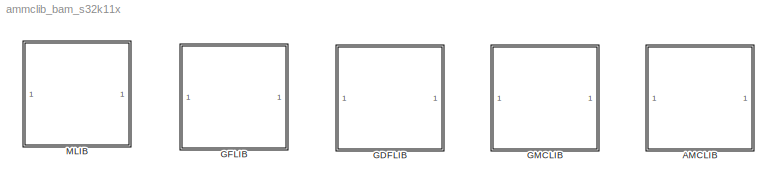
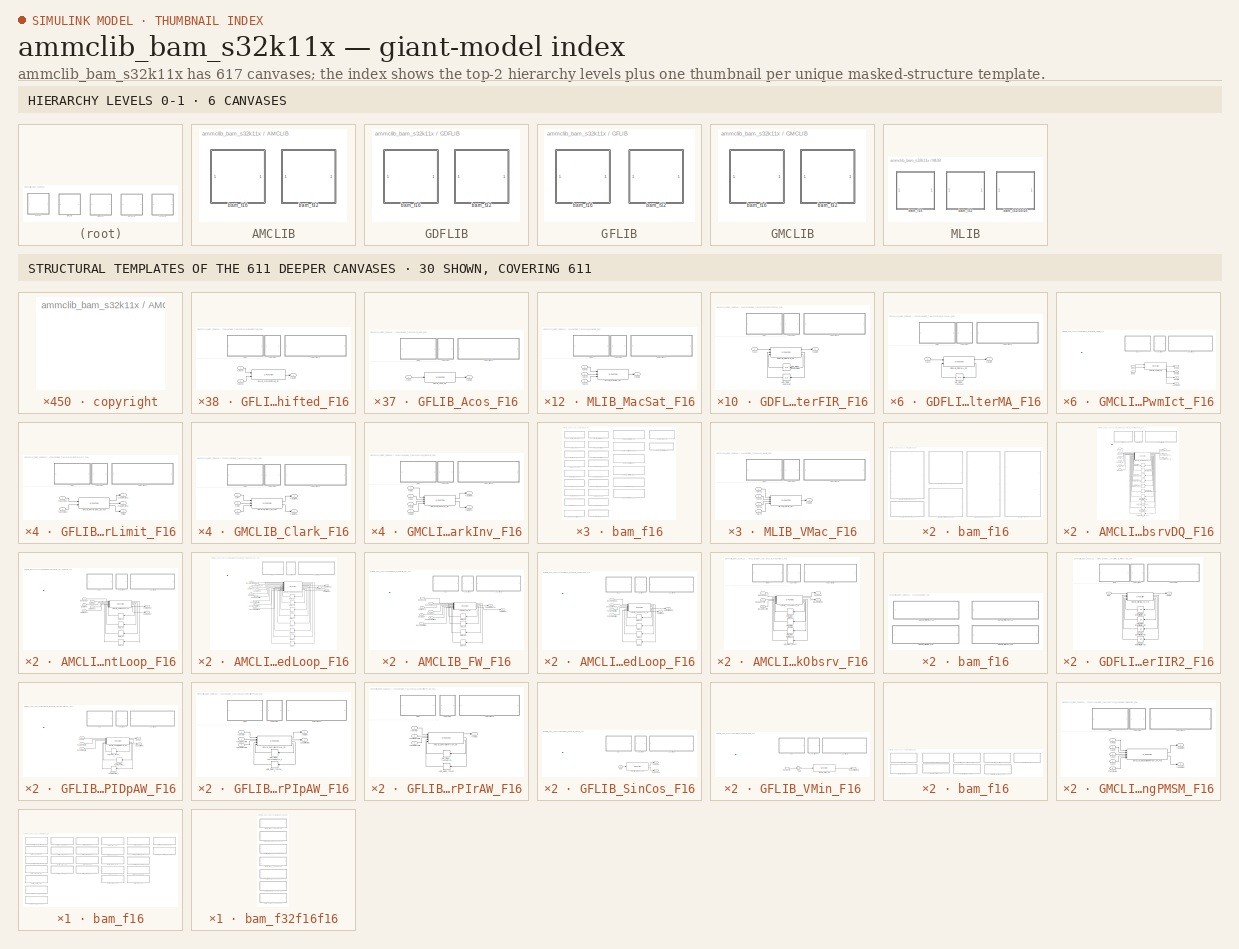
[diagram: thumbnail index - top-2 hierarchy levels (6 canvases) + 30 structural-template representatives of the remaining 611 canvases]
MODEL ammclib_bam_s32k11x
KIND library
BLOCK [SubSystem] AMCLIB
  Ports = []
  RequestExecContextInheritance = off
  SID = 11931
  Variant = off
BLOCK [SubSystem] AMCLIB/bam_f16
  Ports = []
  RequestExecContextInheritance = off
  SID = 11932
  Variant = off
BLOCK [SubSystem] AMCLIB/bam_f16/AMCLIB_BemfObsrvDQ_F16
  Ports = [6, 3]
  RequestExecContextInheritance = off
  SID = 11933
  Variant = off
BLOCK [S-Function] AMCLIB/bam_f16/AMCLIB_BemfObsrvDQ_F16/AMCLIB_BemfObsrvDQ_SF
  EnableBusSupport = off
  FunctionName = AMCLIB_BemfObsrvDQ_SF_F16
  Parameters = f16IGain,f16UGain,f16WIGain,f16EGain,s16Shift,f16CC1sc_D,f16CC1sc_Q,f16CC2sc_D,f16CC2sc_Q,f16UpperLimit_D,f16UpperLimit_Q,f16LowerLimit_D,f16LowerLimit_Q,u16NShift
  Ports = [16, 13]
  SFcnIsStateOwnerBlock = off
  SFunctionDeploymentMode = off
  SID = 11940
BLOCK [Delay] AMCLIB/bam_f16/AMCLIB_BemfObsrvDQ_F16/Unit_Delay_f16IObsrvIn_1H_D
  DelayLength = 1
  InitialCondition = 0
  InputPortMap = u0
  Ports = [1, 1]
  SID = 11941
BLOCK [Delay] AMCLIB/bam_f16/AMCLIB_BemfObsrvDQ_F16/Unit_Delay_f16IObsrvIn_1H_Q
  DelayLength = 1
  InitialCondition = 0
  InputPortMap = u0
  Ports = [1, 1]
  SID = 11942
BLOCK [Delay] AMCLIB/bam_f16/AMCLIB_BemfObsrvDQ_F16/Unit_Delay_f16InErrK1_D
  DelayLength = 1
  InitialCondition = 0
  InputPortMap = u0
  Ports = [1, 1]
  SID = 11943
BLOCK [Delay] AMCLIB/bam_f16/AMCLIB_BemfObsrvDQ_F16/Unit_Delay_f16InErrK1_Q
  DelayLength = 1
  InitialCondition = 0
  InputPortMap = u0
  Ports = [1, 1]
  SID = 11944
BLOCK [Delay] AMCLIB/bam_f16/AMCLIB_BemfObsrvDQ_F16/Unit_Delay_f32Acc_D
  DelayLength = 1
  InitialCondition = 0
  InputPortMap = u0
  Ports = [1, 1]
  SID = 11945
BLOCK [Delay] AMCLIB/bam_f16/AMCLIB_BemfObsrvDQ_F16/Unit_Delay_f32Acc_Q
  DelayLength = 1
  InitialCondition = 0
  InputPortMap = u0
  Ports = [1, 1]
  SID = 11946
BLOCK [Delay] AMCLIB/bam_f16/AMCLIB_BemfObsrvDQ_F16/Unit_Delay_f32IObsrvIn_1L_D
  DelayLength = 1
  InitialCondition = 0
  InputPortMap = u0
  Ports = [1, 1]
  SID = 11947
BLOCK [Delay] AMCLIB/bam_f16/AMCLIB_BemfObsrvDQ_F16/Unit_Delay_f32IObsrvIn_1L_Q
  DelayLength = 1
  InitialCondition = 0
  InputPortMap = u0
  Ports = [1, 1]
  SID = 11948
BLOCK [Delay] AMCLIB/bam_f16/AMCLIB_BemfObsrvDQ_F16/Unit_Delay_f32IObsrv_D
  DelayLength = 1
  InitialCondition = 0
  InputPortMap = u0
  Ports = [1, 1]
  SID = 11949
BLOCK [Delay] AMCLIB/bam_f16/AMCLIB_BemfObsrvDQ_F16/Unit_Delay_f32IObsrv_Q
  DelayLength = 1
  InitialCondition = 0
  InputPortMap = u0
  Ports = [1, 1]
  SID = 11950
BLOCK [SubSystem] AMCLIB/bam_f16/AMCLIB_BemfObsrvDQ_F16/<copyright redacted>
  Ports = []
  RequestExecContextInheritance = off
  SID = 11951
  Variant = off
BLOCK [SubSystem] AMCLIB/bam_f16/AMCLIB_BemfObsrvDQ_F16/copyright2
  Ports = []
  RequestExecContextInheritance = off
  SID = 11952
  Variant = off
BLOCK [Inport] AMCLIB/bam_f16/AMCLIB_BemfObsrvDQ_F16/f16IAB_A
  IconDisplay = Port number
  SID = 11934
BLOCK [Inport] AMCLIB/bam_f16/AMCLIB_BemfObsrvDQ_F16/f16IAB_B
  IconDisplay = Port number
  Port = 2
  SID = 11935
BLOCK [Inport] AMCLIB/bam_f16/AMCLIB_BemfObsrvDQ_F16/f16Phase
  IconDisplay = Port number
  Port = 6
  SID = 11939
BLOCK [Inport] AMCLIB/bam_f16/AMCLIB_BemfObsrvDQ_F16/f16UAB_A
  IconDisplay = Port number
  Port = 3
  SID = 11936
BLOCK [Inport] AMCLIB/bam_f16/AMCLIB_BemfObsrvDQ_F16/f16UAB_B
  IconDisplay = Port number
  Port = 4
  SID = 11937
BLOCK [Inport] AMCLIB/bam_f16/AMCLIB_BemfObsrvDQ_F16/f16Velocity
  IconDisplay = Port number
  Port = 5
  SID = 11938
BLOCK [Outport] AMCLIB/bam_f16/AMCLIB_BemfObsrvDQ_F16/f16pOutEObsrv_D
  IconDisplay = Port number
  Port = 2
  SID = 11955
BLOCK [Outport] AMCLIB/bam_f16/AMCLIB_BemfObsrvDQ_F16/f16pOutEObsrv_Q
  IconDisplay = Port number
  Port = 3
  SID = 11956
BLOCK [Outport] AMCLIB/bam_f16/AMCLIB_BemfObsrvDQ_F16/f16pOutPhaseErr
  IconDisplay = Port number
  SID = 11954
BLOCK [SubSystem] AMCLIB/bam_f16/AMCLIB_BemfObsrvDQ_F16/logo
  Ports = []
  RequestExecContextInheritance = off
  SID = 11953
  Variant = off
BLOCK [SubSystem] AMCLIB/bam_f16/AMCLIB_CurrentLoop_F16
  Ports = [5, 2]
  RequestExecContextInheritance = off
  SID = 11958
  Variant = off
BLOCK [S-Function] AMCLIB/bam_f16/AMCLIB_CurrentLoop_F16/AMCLIB_CurrentLoop_SF
  EnableBusSupport = off
  FunctionName = AMCLIB_CurrentLoop_SF_F16
  Parameters = f16CC1scD,f16CC2scD,u16NShiftD,f16CC1scQ,f16CC2scQ,u16NShiftQ
  Ports = [9, 6]
  SFcnIsStateOwnerBlock = off
  SFunctionDeploymentMode = off
  SID = 11964
BLOCK [Delay] AMCLIB/bam_f16/AMCLIB_CurrentLoop_F16/Delay30
  DelayLength = 1
  InitialCondition = 0
  InputPortMap = u0
  Ports = [1, 1]
  SID = 11965
BLOCK [Delay] AMCLIB/bam_f16/AMCLIB_CurrentLoop_F16/Delay31
  DelayLength = 1
  InitialCondition = 0
  InputPortMap = u0
  Ports = [1, 1]
  SID = 11966
BLOCK [Delay] AMCLIB/bam_f16/AMCLIB_CurrentLoop_F16/Delay32
  DelayLength = 1
  InitialCondition = 0
  InputPortMap = u0
  Ports = [1, 1]
  SID = 11967
BLOCK [Delay] AMCLIB/bam_f16/AMCLIB_CurrentLoop_F16/Delay33
  DelayLength = 1
  InitialCondition = 0
  InputPortMap = u0
  Ports = [1, 1]
  SID = 11968
BLOCK [SubSystem] AMCLIB/bam_f16/AMCLIB_CurrentLoop_F16/<copyright redacted>
  Ports = []
  RequestExecContextInheritance = off
  SID = 11969
  Variant = off
BLOCK [SubSystem] AMCLIB/bam_f16/AMCLIB_CurrentLoop_F16/copyright2
  Ports = []
  RequestExecContextInheritance = off
  SID = 11970
  Variant = off
BLOCK [Inport] AMCLIB/bam_f16/AMCLIB_CurrentLoop_F16/f16IDFbck
  IconDisplay = Port number
  Port = 4
  SID = 11962
BLOCK [Inport] AMCLIB/bam_f16/AMCLIB_CurrentLoop_F16/f16IDReq
  IconDisplay = Port number
  Port = 2
  SID = 11960
BLOCK [Inport] AMCLIB/bam_f16/AMCLIB_CurrentLoop_F16/f16IQFbck
  IconDisplay = Port number
  Port = 5
  SID = 11963
BLOCK [Inport] AMCLIB/bam_f16/AMCLIB_CurrentLoop_F16/f16IQReq
  IconDisplay = Port number
  Port = 3
  SID = 11961
BLOCK [Inport] AMCLIB/bam_f16/AMCLIB_CurrentLoop_F16/f16UDcBus
  IconDisplay = Port number
  SID = 11959
BLOCK [SubSystem] AMCLIB/bam_f16/AMCLIB_CurrentLoop_F16/logo
  Ports = []
  RequestExecContextInheritance = off
  SID = 11971
  Variant = off
BLOCK [Outport] AMCLIB/bam_f16/AMCLIB_CurrentLoop_F16/pOutUDReq
  IconDisplay = Port number
  SID = 11972
BLOCK [Outport] AMCLIB/bam_f16/AMCLIB_CurrentLoop_F16/pOutUQReq
  IconDisplay = Port number
  Port = 2
  SID = 11973
BLOCK [SubSystem] AMCLIB/bam_f16/AMCLIB_FWSpeedLoop_F16
  Ports = [9, 3]
  RequestExecContextInheritance = off
  SID = 11975
  Variant = off
BLOCK [S-Function] AMCLIB/bam_f16/AMCLIB_FWSpeedLoop_F16/AMCLIB_FWSpeedLoop_SF
  EnableBusSupport = off
  FunctionName = AMCLIB_FWSpeedLoop_SF_F16
  Parameters = u16NSamplesW,u16NSamplesFW,f16PropGainQ,s16PropGainShiftQ,f16IntegGainQ,s16IntegGainShiftQ,f16PropGainFW,s16PropGainShiftFW,f16IntegGainFW,s16IntegGainShiftFW,f32RampUp,f32RampDown
  Ports = [17, 11]
  SFcnIsStateOwnerBlock = off
  SFunctionDeploymentMode = off
  SID = 11985
BLOCK [Delay] AMCLIB/bam_f16/AMCLIB_FWSpeedLoop_F16/Delay1
  DelayLength = 1
  InitialCondition = 0
  InputPortMap = u0
  Ports = [1, 1]
  SID = 11986
BLOCK [Delay] AMCLIB/bam_f16/AMCLIB_FWSpeedLoop_F16/Delay18
  DelayLength = 1
  InitialCondition = 0
  InputPortMap = u0
  Ports = [1, 1]
  SID = 11987
BLOCK [Delay] AMCLIB/bam_f16/AMCLIB_FWSpeedLoop_F16/Delay2
  DelayLength = 1
  InitialCondition = 0
  InputPortMap = u0
  Ports = [1, 1]
  SID = 11988
BLOCK [Delay] AMCLIB/bam_f16/AMCLIB_FWSpeedLoop_F16/Delay25
  DelayLength = 1
  InitialCondition = 0
  InputPortMap = u0
  Ports = [1, 1]
  SID = 11989
BLOCK [Delay] AMCLIB/bam_f16/AMCLIB_FWSpeedLoop_F16/Delay3
  DelayLength = 1
  InitialCondition = 0
  InputPortMap = u0
  Ports = [1, 1]
  SID = 11990
BLOCK [Delay] AMCLIB/bam_f16/AMCLIB_FWSpeedLoop_F16/Delay4
  DelayLength = 1
  InitialCondition = 0
  InputPortMap = u0
  Ports = [1, 1]
  SID = 11991
BLOCK [Delay] AMCLIB/bam_f16/AMCLIB_FWSpeedLoop_F16/Delay5
  DelayLength = 1
  InitialCondition = 0
  InputPortMap = u0
  Ports = [1, 1]
  SID = 11992
BLOCK [Delay] AMCLIB/bam_f16/AMCLIB_FWSpeedLoop_F16/Delay6
  DelayLength = 1
  InitialCondition = 0
  InputPortMap = u0
  Ports = [1, 1]
  SID = 11993
BLOCK [SubSystem] AMCLIB/bam_f16/AMCLIB_FWSpeedLoop_F16/<copyright redacted>
  Ports = []
  RequestExecContextInheritance = off
  SID = 11994
  Variant = off
BLOCK [SubSystem] AMCLIB/bam_f16/AMCLIB_FWSpeedLoop_F16/copyright2
  Ports = []
  RequestExecContextInheritance = off
  SID = 11995
  Variant = off
BLOCK [Inport] AMCLIB/bam_f16/AMCLIB_FWSpeedLoop_F16/f16IQFbck
  IconDisplay = Port number
  Port = 3
  SID = 11978
BLOCK [Inport] AMCLIB/bam_f16/AMCLIB_FWSpeedLoop_F16/f16LowerLimitFW
  IconDisplay = Port number
  Port = 9
  SID = 11984
BLOCK [Inport] AMCLIB/bam_f16/AMCLIB_FWSpeedLoop_F16/f16LowerLimitQ
  IconDisplay = Port number
  Port = 7
  SID = 11982
BLOCK [Inport] AMCLIB/bam_f16/AMCLIB_FWSpeedLoop_F16/f16UQLim
  IconDisplay = Port number
  Port = 5
  SID = 11980
BLOCK [Inport] AMCLIB/bam_f16/AMCLIB_FWSpeedLoop_F16/f16UQReq
  IconDisplay = Port number
  Port = 4
  SID = 11979
BLOCK [Inport] AMCLIB/bam_f16/AMCLIB_FWSpeedLoop_F16/f16UpperLimitFW
  IconDisplay = Port number
  Port = 8
  SID = 11983
BLOCK [Inport] AMCLIB/bam_f16/AMCLIB_FWSpeedLoop_F16/f16UpperLimitQ
  IconDisplay = Port number
  Port = 6
  SID = 11981
BLOCK [Inport] AMCLIB/bam_f16/AMCLIB_FWSpeedLoop_F16/f16VelocityFbck
  IconDisplay = Port number
  Port = 2
  SID = 11977
BLOCK [Inport] AMCLIB/bam_f16/AMCLIB_FWSpeedLoop_F16/f16VelocityReq
  IconDisplay = Port number
  SID = 11976
BLOCK [SubSystem] AMCLIB/bam_f16/AMCLIB_FWSpeedLoop_F16/logo
  Ports = []
  RequestExecContextInheritance = off
  SID = 11996
  Variant = off
BLOCK [Outport] AMCLIB/bam_f16/AMCLIB_FWSpeedLoop_F16/pOutIDReq
  IconDisplay = Port number
  Port = 3
  SID = 11999
BLOCK [Outport] AMCLIB/bam_f16/AMCLIB_FWSpeedLoop_F16/pOutLimitFlagFW
  IconDisplay = Port number
  Port = 2
  SID = 11998
BLOCK [Outport] AMCLIB/bam_f16/AMCLIB_FWSpeedLoop_F16/pOutLimitFlagQ
  IconDisplay = Port number
  SID = 11997
BLOCK [SubSystem] AMCLIB/bam_f16/AMCLIB_FW_F16
  Ports = [7, 2]
  RequestExecContextInheritance = off
  SID = 12001
  Variant = off
BLOCK [S-Function] AMCLIB/bam_f16/AMCLIB_FW_F16/AMCLIB_FW_SF
  EnableBusSupport = off
  FunctionName = AMCLIB_FW_SF_F16
  Parameters = u16NSamplesFW,f16PropGainFW,s16PropGainShiftFW,f16IntegGainFW,s16IntegGainShiftFW
  Ports = [11, 6]
  SFcnIsStateOwnerBlock = off
  SFunctionDeploymentMode = off
  SID = 12009
BLOCK [Delay] AMCLIB/bam_f16/AMCLIB_FW_F16/Delay26
  DelayLength = 1
  InitialCondition = 0
  InputPortMap = u0
  Ports = [1, 1]
  SID = 12010
BLOCK [Delay] AMCLIB/bam_f16/AMCLIB_FW_F16/Delay27
  DelayLength = 1
  InitialCondition = 0
  InputPortMap = u0
  Ports = [1, 1]
  SID = 12011
BLOCK [Delay] AMCLIB/bam_f16/AMCLIB_FW_F16/Delay28
  DelayLength = 1
  InitialCondition = 0
  InputPortMap = u0
  Ports = [1, 1]
  SID = 12012
BLOCK [Delay] AMCLIB/bam_f16/AMCLIB_FW_F16/Delay29
  DelayLength = 1
  InitialCondition = 0
  InputPortMap = u0
  Ports = [1, 1]
  SID = 12013
BLOCK [SubSystem] AMCLIB/bam_f16/AMCLIB_FW_F16/<copyright redacted>
  Ports = []
  RequestExecContextInheritance = off
  SID = 12014
  Variant = off
BLOCK [SubSystem] AMCLIB/bam_f16/AMCLIB_FW_F16/copyright2
  Ports = []
  RequestExecContextInheritance = off
  SID = 12015
  Variant = off
BLOCK [Inport] AMCLIB/bam_f16/AMCLIB_FW_F16/f16IQFbck
  IconDisplay = Port number
  Port = 3
  SID = 12004
BLOCK [Inport] AMCLIB/bam_f16/AMCLIB_FW_F16/f16LowerLimitFW
  IconDisplay = Port number
  Port = 7
  SID = 12008
BLOCK [Inport] AMCLIB/bam_f16/AMCLIB_FW_F16/f16ReqAmp
  IconDisplay = Port number
  SID = 12002
BLOCK [Inport] AMCLIB/bam_f16/AMCLIB_FW_F16/f16UQLim
  IconDisplay = Port number
  Port = 5
  SID = 12006
BLOCK [Inport] AMCLIB/bam_f16/AMCLIB_FW_F16/f16UQReq
  IconDisplay = Port number
  Port = 4
  SID = 12005
BLOCK [Inport] AMCLIB/bam_f16/AMCLIB_FW_F16/f16UpperLimitFW
  IconDisplay = Port number
  Port = 6
  SID = 12007
BLOCK [Inport] AMCLIB/bam_f16/AMCLIB_FW_F16/f16VelocityFbck
  IconDisplay = Port number
  Port = 2
  SID = 12003
BLOCK [SubSystem] AMCLIB/bam_f16/AMCLIB_FW_F16/logo
  Ports = []
  RequestExecContextInheritance = off
  SID = 12016
  Variant = off
BLOCK [Outport] AMCLIB/bam_f16/AMCLIB_FW_F16/pOutIDReq
  IconDisplay = Port number
  Port = 2
  SID = 12018
BLOCK [Outport] AMCLIB/bam_f16/AMCLIB_FW_F16/pOutLimitFlagFW
  IconDisplay = Port number
  SID = 12017
BLOCK [SubSystem] AMCLIB/bam_f16/AMCLIB_SpeedLoop_F16
  Ports = [4, 2]
  RequestExecContextInheritance = off
  SID = 12020
  Variant = off
BLOCK [S-Function] AMCLIB/bam_f16/AMCLIB_SpeedLoop_F16/AMCLIB_SpeedLoop_SF
  EnableBusSupport = off
  FunctionName = AMCLIB_SpeedLoop_SF_F16
  Parameters = u16NSamplesW,f16PropGainQ,s16PropGainShiftQ,f16IntegGainQ,s16IntegGainShiftQ,f32RampUp,f32RampDown
  Ports = [8, 6]
  SFcnIsStateOwnerBlock = off
  SFunctionDeploymentMode = off
  SID = 12025
BLOCK [Delay] AMCLIB/bam_f16/AMCLIB_SpeedLoop_F16/Delay1
  DelayLength = 1
  InitialCondition = 0
  InputPortMap = u0
  Ports = [1, 1]
  SID = 12026
BLOCK [Delay] AMCLIB/bam_f16/AMCLIB_SpeedLoop_F16/Delay17
  DelayLength = 1
  InitialCondition = 0
  InputPortMap = u0
  Ports = [1, 1]
  SID = 12027
BLOCK [Delay] AMCLIB/bam_f16/AMCLIB_SpeedLoop_F16/Delay2
  DelayLength = 1
  InitialCondition = 0
  InputPortMap = u0
  Ports = [1, 1]
  SID = 12028
BLOCK [Delay] AMCLIB/bam_f16/AMCLIB_SpeedLoop_F16/Delay3
  DelayLength = 1
  InitialCondition = 0
  InputPortMap = u0
  Ports = [1, 1]
  SID = 12029
BLOCK [SubSystem] AMCLIB/bam_f16/AMCLIB_SpeedLoop_F16/<copyright redacted>
  Ports = []
  RequestExecContextInheritance = off
  SID = 12030
  Variant = off
BLOCK [SubSystem] AMCLIB/bam_f16/AMCLIB_SpeedLoop_F16/copyright2
  Ports = []
  RequestExecContextInheritance = off
  SID = 12031
  Variant = off
BLOCK [Inport] AMCLIB/bam_f16/AMCLIB_SpeedLoop_F16/f16LowerLimitQ
  IconDisplay = Port number
  Port = 4
  SID = 12024
BLOCK [Inport] AMCLIB/bam_f16/AMCLIB_SpeedLoop_F16/f16UpperLimitQ
  IconDisplay = Port number
  Port = 3
  SID = 12023
BLOCK [Inport] AMCLIB/bam_f16/AMCLIB_SpeedLoop_F16/f16VelocityFbck
  IconDisplay = Port number
  Port = 2
  SID = 12022
BLOCK [Inport] AMCLIB/bam_f16/AMCLIB_SpeedLoop_F16/f16VelocityReq
  IconDisplay = Port number
  SID = 12021
BLOCK [SubSystem] AMCLIB/bam_f16/AMCLIB_SpeedLoop_F16/logo
  Ports = []
  RequestExecContextInheritance = off
  SID = 12032
  Variant = off
BLOCK [Outport] AMCLIB/bam_f16/AMCLIB_SpeedLoop_F16/pOutIQReq
  IconDisplay = Port number
  Port = 2
  SID = 12034
BLOCK [Outport] AMCLIB/bam_f16/AMCLIB_SpeedLoop_F16/pOutLimitFlagQ
  IconDisplay = Port number
  SID = 12033
BLOCK [SubSystem] AMCLIB/bam_f16/AMCLIB_TrackObsrv_F16
  Ports = [3, 2]
  RequestExecContextInheritance = off
  SID = 12036
  Variant = off
BLOCK [S-Function] AMCLIB/bam_f16/AMCLIB_TrackObsrv_F16/AMCLIB_TrackObsrv_SF
  EnableBusSupport = off
  FunctionName = AMCLIB_TrackObsrv_SF_F16
  Parameters = f16CC1sc,f16CC2sc,u16NShift,f16C1,u16IntegNShift
  Ports = [7, 6]
  SFcnIsStateOwnerBlock = off
  SFunctionDeploymentMode = off
  SID = 12040
BLOCK [Delay] AMCLIB/bam_f16/AMCLIB_TrackObsrv_F16/Unit_Delay_f16InErrK1
  DelayLength = 1
  InitialCondition = 0
  InputPortMap = u0
  Ports = [1, 1]
  SID = 12041
BLOCK [Delay] AMCLIB/bam_f16/AMCLIB_TrackObsrv_F16/Unit_Delay_f16InK1
  DelayLength = 1
  InitialCondition = 0
  InputPortMap = u0
  Ports = [1, 1]
  SID = 12042
BLOCK [Delay] AMCLIB/bam_f16/AMCLIB_TrackObsrv_F16/Unit_Delay_f32Acc
  DelayLength = 1
  InitialCondition = 0
  InputPortMap = u0
  Ports = [1, 1]
  SID = 12043
BLOCK [Delay] AMCLIB/bam_f16/AMCLIB_TrackObsrv_F16/Unit_Delay_f32State
  DelayLength = 1
  InitialCondition = 0
  InputPortMap = u0
  Ports = [1, 1]
  SID = 12044
BLOCK [SubSystem] AMCLIB/bam_f16/AMCLIB_TrackObsrv_F16/<copyright redacted>
  Ports = []
  RequestExecContextInheritance = off
  SID = 12045
  Variant = off
BLOCK [SubSystem] AMCLIB/bam_f16/AMCLIB_TrackObsrv_F16/copyright2
  Ports = []
  RequestExecContextInheritance = off
  SID = 12046
  Variant = off
BLOCK [Inport] AMCLIB/bam_f16/AMCLIB_TrackObsrv_F16/f16LowerLimit
  IconDisplay = Port number
  Port = 3
  SID = 12039
BLOCK [Inport] AMCLIB/bam_f16/AMCLIB_TrackObsrv_F16/f16PhaseErr
  IconDisplay = Port number
  SID = 12037
BLOCK [Outport] AMCLIB/bam_f16/AMCLIB_TrackObsrv_F16/f16PosEst
  IconDisplay = Port number
  SID = 12048
BLOCK [Inport] AMCLIB/bam_f16/AMCLIB_TrackObsrv_F16/f16UpperLimit
  IconDisplay = Port number
  Port = 2
  SID = 12038
BLOCK [Outport] AMCLIB/bam_f16/AMCLIB_TrackObsrv_F16/f16VelocityEst
  IconDisplay = Port number
  Port = 2
  SID = 12049
BLOCK [SubSystem] AMCLIB/bam_f16/AMCLIB_TrackObsrv_F16/logo
  Ports = []
  RequestExecContextInheritance = off
  SID = 12047
  Variant = off
BLOCK [SubSystem] AMCLIB/bam_f32
  Ports = []
  RequestExecContextInheritance = off
  SID = 12051
  Variant = off
BLOCK [SubSystem] AMCLIB/bam_f32/AMCLIB_BemfObsrvDQ_F32
  Ports = [6, 3]
  RequestExecContextInheritance = off
  SID = 12052
  Variant = off
BLOCK [S-Function] AMCLIB/bam_f32/AMCLIB_BemfObsrvDQ_F32/AMCLIB_BemfObsrvDQ_SF
  EnableBusSupport = off
  FunctionName = AMCLIB_BemfObsrvDQ_SF_F32
  Parameters = f32IGain,f32UGain,f32WIGain,f32EGain,s16Shift,f32CC1sc_D,f32CC1sc_Q,f32CC2sc_D,f32CC2sc_Q,f32UpperLimit_D,f32UpperLimit_Q,f32LowerLimit_D,f32LowerLimit_Q,u16NShift
  Ports = [16, 13]
  SFcnIsStateOwnerBlock = off
  SFunctionDeploymentMode = off
  SID = 12059
BLOCK [Delay] AMCLIB/bam_f32/AMCLIB_BemfObsrvDQ_F32/Unit_Delay_f16IObsrvIn_1H_D
  DelayLength = 1
  InitialCondition = 0
  InputPortMap = u0
  Ports = [1, 1]
  SID = 12060
BLOCK [Delay] AMCLIB/bam_f32/AMCLIB_BemfObsrvDQ_F32/Unit_Delay_f16IObsrvIn_1H_Q
  DelayLength = 1
  InitialCondition = 0
  InputPortMap = u0
  Ports = [1, 1]
  SID = 12061
BLOCK [Delay] AMCLIB/bam_f32/AMCLIB_BemfObsrvDQ_F32/Unit_Delay_f32Acc_D
  DelayLength = 1
  InitialCondition = 0
  InputPortMap = u0
  Ports = [1, 1]
  SID = 12062
BLOCK [Delay] AMCLIB/bam_f32/AMCLIB_BemfObsrvDQ_F32/Unit_Delay_f32Acc_Q
  DelayLength = 1
  InitialCondition = 0
  InputPortMap = u0
  Ports = [1, 1]
  SID = 12063
BLOCK [Delay] AMCLIB/bam_f32/AMCLIB_BemfObsrvDQ_F32/Unit_Delay_f32IObsrvIn_1L_D
  DelayLength = 1
  InitialCondition = 0
  InputPortMap = u0
  Ports = [1, 1]
  SID = 12064
BLOCK [Delay] AMCLIB/bam_f32/AMCLIB_BemfObsrvDQ_F32/Unit_Delay_f32IObsrvIn_1L_Q
  DelayLength = 1
  InitialCondition = 0
  InputPortMap = u0
  Ports = [1, 1]
  SID = 12065
BLOCK [Delay] AMCLIB/bam_f32/AMCLIB_BemfObsrvDQ_F32/Unit_Delay_f32IObsrv_D
  DelayLength = 1
  InitialCondition = 0
  InputPortMap = u0
  Ports = [1, 1]
  SID = 12066
BLOCK [Delay] AMCLIB/bam_f32/AMCLIB_BemfObsrvDQ_F32/Unit_Delay_f32IObsrv_Q
  DelayLength = 1
  InitialCondition = 0
  InputPortMap = u0
  Ports = [1, 1]
  SID = 12067
BLOCK [Delay] AMCLIB/bam_f32/AMCLIB_BemfObsrvDQ_F32/Unit_Delay_f32InErrK1_D
  DelayLength = 1
  InitialCondition = 0
  InputPortMap = u0
  Ports = [1, 1]
  SID = 12068
BLOCK [Delay] AMCLIB/bam_f32/AMCLIB_BemfObsrvDQ_F32/Unit_Delay_f32InErrK1_Q
  DelayLength = 1
  InitialCondition = 0
  InputPortMap = u0
  Ports = [1, 1]
  SID = 12069
BLOCK [SubSystem] AMCLIB/bam_f32/AMCLIB_BemfObsrvDQ_F32/<copyright redacted>
  Ports = []
  RequestExecContextInheritance = off
  SID = 12070
  Variant = off
BLOCK [SubSystem] AMCLIB/bam_f32/AMCLIB_BemfObsrvDQ_F32/copyright2
  Ports = []
  RequestExecContextInheritance = off
  SID = 12071
  Variant = off
BLOCK [Inport] AMCLIB/bam_f32/AMCLIB_BemfObsrvDQ_F32/f32IAB_A
  IconDisplay = Port number
  SID = 12053
BLOCK [Inport] AMCLIB/bam_f32/AMCLIB_BemfObsrvDQ_F32/f32IAB_B
  IconDisplay = Port number
  Port = 2
  SID = 12054
BLOCK [Inport] AMCLIB/bam_f32/AMCLIB_BemfObsrvDQ_F32/f32Phase
  IconDisplay = Port number
  Port = 6
  SID = 12058
BLOCK [Inport] AMCLIB/bam_f32/AMCLIB_BemfObsrvDQ_F32/f32UAB_A
  IconDisplay = Port number
  Port = 3
  SID = 12055
BLOCK [Inport] AMCLIB/bam_f32/AMCLIB_BemfObsrvDQ_F32/f32UAB_B
  IconDisplay = Port number
  Port = 4
  SID = 12056
BLOCK [Inport] AMCLIB/bam_f32/AMCLIB_BemfObsrvDQ_F32/f32Velocity
  IconDisplay = Port number
  Port = 5
  SID = 12057
BLOCK [Outport] AMCLIB/bam_f32/AMCLIB_BemfObsrvDQ_F32/f32pOutEObsrv_D
  IconDisplay = Port number
  Port = 2
  SID = 12074
BLOCK [Outport] AMCLIB/bam_f32/AMCLIB_BemfObsrvDQ_F32/f32pOutEObsrv_Q
  IconDisplay = Port number
  Port = 3
  SID = 12075
BLOCK [Outport] AMCLIB/bam_f32/AMCLIB_BemfObsrvDQ_F32/f32pOutPhaseErr
  IconDisplay = Port number
  SID = 12073
BLOCK [SubSystem] AMCLIB/bam_f32/AMCLIB_BemfObsrvDQ_F32/logo
  Ports = []
  RequestExecContextInheritance = off
  SID = 12072
  Variant = off
BLOCK [SubSystem] AMCLIB/bam_f32/AMCLIB_CurrentLoop_F32
  Ports = [5, 2]
  RequestExecContextInheritance = off
  SID = 12077
  Variant = off
BLOCK [S-Function] AMCLIB/bam_f32/AMCLIB_CurrentLoop_F32/AMCLIB_CurrentLoop_SF
  EnableBusSupport = off
  FunctionName = AMCLIB_CurrentLoop_SF_F32
  Parameters = f32CC1scD,f32CC2scD,u16NShiftD,f32CC1scQ,f32CC2scQ,u16NShiftQ
  Ports = [9, 6]
  SFcnIsStateOwnerBlock = off
  SFunctionDeploymentMode = off
  SID = 12083
BLOCK [Delay] AMCLIB/bam_f32/AMCLIB_CurrentLoop_F32/Delay30
  DelayLength = 1
  InitialCondition = 0
  InputPortMap = u0
  Ports = [1, 1]
  SID = 12084
BLOCK [Delay] AMCLIB/bam_f32/AMCLIB_CurrentLoop_F32/Delay31
  DelayLength = 1
  InitialCondition = 0
  InputPortMap = u0
  Ports = [1, 1]
  SID = 12085
BLOCK [Delay] AMCLIB/bam_f32/AMCLIB_CurrentLoop_F32/Delay32
  DelayLength = 1
  InitialCondition = 0
  InputPortMap = u0
  Ports = [1, 1]
  SID = 12086
BLOCK [Delay] AMCLIB/bam_f32/AMCLIB_CurrentLoop_F32/Delay33
  DelayLength = 1
  InitialCondition = 0
  InputPortMap = u0
  Ports = [1, 1]
  SID = 12087
BLOCK [SubSystem] AMCLIB/bam_f32/AMCLIB_CurrentLoop_F32/<copyright redacted>
  Ports = []
  RequestExecContextInheritance = off
  SID = 12088
  Variant = off
BLOCK [SubSystem] AMCLIB/bam_f32/AMCLIB_CurrentLoop_F32/copyright2
  Ports = []
  RequestExecContextInheritance = off
  SID = 12089
  Variant = off
BLOCK [Inport] AMCLIB/bam_f32/AMCLIB_CurrentLoop_F32/f32IDFbck
  IconDisplay = Port number
  Port = 4
  SID = 12081
BLOCK [Inport] AMCLIB/bam_f32/AMCLIB_CurrentLoop_F32/f32IDReq
  IconDisplay = Port number
  Port = 2
  SID = 12079
BLOCK [Inport] AMCLIB/bam_f32/AMCLIB_CurrentLoop_F32/f32IQFbck
  IconDisplay = Port number
  Port = 5
  SID = 12082
BLOCK [Inport] AMCLIB/bam_f32/AMCLIB_CurrentLoop_F32/f32IQReq
  IconDisplay = Port number
  Port = 3
  SID = 12080
BLOCK [Inport] AMCLIB/bam_f32/AMCLIB_CurrentLoop_F32/f32UDcBus
  IconDisplay = Port number
  SID = 12078
BLOCK [SubSystem] AMCLIB/bam_f32/AMCLIB_CurrentLoop_F32/logo
  Ports = []
  RequestExecContextInheritance = off
  SID = 12090
  Variant = off
BLOCK [Outport] AMCLIB/bam_f32/AMCLIB_CurrentLoop_F32/pOutUDReq
  IconDisplay = Port number
  SID = 12091
BLOCK [Outport] AMCLIB/bam_f32/AMCLIB_CurrentLoop_F32/pOutUQReq
  IconDisplay = Port number
  Port = 2
  SID = 12092
BLOCK [SubSystem] AMCLIB/bam_f32/AMCLIB_FWSpeedLoop_F32
  Ports = [9, 3]
  RequestExecContextInheritance = off
  SID = 12094
  Variant = off
BLOCK [S-Function] AMCLIB/bam_f32/AMCLIB_FWSpeedLoop_F32/AMCLIB_FWSpeedLoop_SF
  EnableBusSupport = off
  FunctionName = AMCLIB_FWSpeedLoop_SF_F32
  Parameters = u16NSamplesW,u16NSamplesFW,f32PropGainQ,s16PropGainShiftQ,f32IntegGainQ,s16IntegGainShiftQ,f32PropGainFW,s16PropGainShiftFW,f32IntegGainFW,s16IntegGainShiftFW,f32RampUp,f32RampDown
  Ports = [17, 11]
  SFcnIsStateOwnerBlock = off
  SFunctionDeploymentMode = off
  SID = 12104
BLOCK [Delay] AMCLIB/bam_f32/AMCLIB_FWSpeedLoop_F32/Delay18
  DelayLength = 1
  InitialCondition = 0
  InputPortMap = u0
  Ports = [1, 1]
  SID = 12105
BLOCK [Delay] AMCLIB/bam_f32/AMCLIB_FWSpeedLoop_F32/Delay19
  DelayLength = 1
  InitialCondition = 0
  InputPortMap = u0
  Ports = [1, 1]
  SID = 12106
BLOCK [Delay] AMCLIB/bam_f32/AMCLIB_FWSpeedLoop_F32/Delay20
  DelayLength = 1
  InitialCondition = 0
  InputPortMap = u0
  Ports = [1, 1]
  SID = 12107
BLOCK [Delay] AMCLIB/bam_f32/AMCLIB_FWSpeedLoop_F32/Delay21
  DelayLength = 1
  InitialCondition = 0
  InputPortMap = u0
  Ports = [1, 1]
  SID = 12108
BLOCK [Delay] AMCLIB/bam_f32/AMCLIB_FWSpeedLoop_F32/Delay22
  DelayLength = 1
  InitialCondition = 0
  InputPortMap = u0
  Ports = [1, 1]
  SID = 12109
BLOCK [Delay] AMCLIB/bam_f32/AMCLIB_FWSpeedLoop_F32/Delay23
  DelayLength = 1
  InitialCondition = 0
  InputPortMap = u0
  Ports = [1, 1]
  SID = 12110
BLOCK [Delay] AMCLIB/bam_f32/AMCLIB_FWSpeedLoop_F32/Delay24
  DelayLength = 1
  InitialCondition = 0
  InputPortMap = u0
  Ports = [1, 1]
  SID = 12111
BLOCK [Delay] AMCLIB/bam_f32/AMCLIB_FWSpeedLoop_F32/Delay25
  DelayLength = 1
  InitialCondition = 0
  InputPortMap = u0
  Ports = [1, 1]
  SID = 12112
BLOCK [SubSystem] AMCLIB/bam_f32/AMCLIB_FWSpeedLoop_F32/<copyright redacted>
  Ports = []
  RequestExecContextInheritance = off
  SID = 12113
  Variant = off
BLOCK [SubSystem] AMCLIB/bam_f32/AMCLIB_FWSpeedLoop_F32/copyright2
  Ports = []
  RequestExecContextInheritance = off
  SID = 12114
  Variant = off
BLOCK [Inport] AMCLIB/bam_f32/AMCLIB_FWSpeedLoop_F32/f32IQFbck
  IconDisplay = Port number
  Port = 3
  SID = 12097
BLOCK [Inport] AMCLIB/bam_f32/AMCLIB_FWSpeedLoop_F32/f32LowerLimitFW
  IconDisplay = Port number
  Port = 9
  SID = 12103
BLOCK [Inport] AMCLIB/bam_f32/AMCLIB_FWSpeedLoop_F32/f32LowerLimitQ
  IconDisplay = Port number
  Port = 7
  SID = 12101
BLOCK [Inport] AMCLIB/bam_f32/AMCLIB_FWSpeedLoop_F32/f32UQLim
  IconDisplay = Port number
  Port = 5
  SID = 12099
BLOCK [Inport] AMCLIB/bam_f32/AMCLIB_FWSpeedLoop_F32/f32UQReq
  IconDisplay = Port number
  Port = 4
  SID = 12098
BLOCK [Inport] AMCLIB/bam_f32/AMCLIB_FWSpeedLoop_F32/f32UpperLimitFW
  IconDisplay = Port number
  Port = 8
  SID = 12102
BLOCK [Inport] AMCLIB/bam_f32/AMCLIB_FWSpeedLoop_F32/f32UpperLimitQ
  IconDisplay = Port number
  Port = 6
  SID = 12100
BLOCK [Inport] AMCLIB/bam_f32/AMCLIB_FWSpeedLoop_F32/f32VelocityFbck
  IconDisplay = Port number
  Port = 2
  SID = 12096
BLOCK [Inport] AMCLIB/bam_f32/AMCLIB_FWSpeedLoop_F32/f32VelocityReq
  IconDisplay = Port number
  SID = 12095
BLOCK [SubSystem] AMCLIB/bam_f32/AMCLIB_FWSpeedLoop_F32/logo
  Ports = []
  RequestExecContextInheritance = off
  SID = 12115
  Variant = off
BLOCK [Outport] AMCLIB/bam_f32/AMCLIB_FWSpeedLoop_F32/pOutIDReq
  IconDisplay = Port number
  Port = 3
  SID = 12118
BLOCK [Outport] AMCLIB/bam_f32/AMCLIB_FWSpeedLoop_F32/pOutLimitFlagFW
  IconDisplay = Port number
  Port = 2
  SID = 12117
BLOCK [Outport] AMCLIB/bam_f32/AMCLIB_FWSpeedLoop_F32/pOutLimitFlagQ
  IconDisplay = Port number
  SID = 12116
BLOCK [SubSystem] AMCLIB/bam_f32/AMCLIB_FW_F32
  Ports = [7, 2]
  RequestExecContextInheritance = off
  SID = 12120
  Variant = off
BLOCK [S-Function] AMCLIB/bam_f32/AMCLIB_FW_F32/AMCLIB_FW_SF
  EnableBusSupport = off
  FunctionName = AMCLIB_FW_SF_F32
  Parameters = u16NSamplesFW,f32PropGainFW,s16PropGainShiftFW,f32IntegGainFW,s16IntegGainShiftFW
  Ports = [11, 6]
  SFcnIsStateOwnerBlock = off
  SFunctionDeploymentMode = off
  SID = 12128
BLOCK [Delay] AMCLIB/bam_f32/AMCLIB_FW_F32/Delay26
  DelayLength = 1
  InitialCondition = 0
  InputPortMap = u0
  Ports = [1, 1]
  SID = 12129
BLOCK [Delay] AMCLIB/bam_f32/AMCLIB_FW_F32/Delay27
  DelayLength = 1
  InitialCondition = 0
  InputPortMap = u0
  Ports = [1, 1]
  SID = 12130
BLOCK [Delay] AMCLIB/bam_f32/AMCLIB_FW_F32/Delay28
  DelayLength = 1
  InitialCondition = 0
  InputPortMap = u0
  Ports = [1, 1]
  SID = 12131
BLOCK [Delay] AMCLIB/bam_f32/AMCLIB_FW_F32/Delay29
  DelayLength = 1
  InitialCondition = 0
  InputPortMap = u0
  Ports = [1, 1]
  SID = 12132
BLOCK [SubSystem] AMCLIB/bam_f32/AMCLIB_FW_F32/<copyright redacted>
  Ports = []
  RequestExecContextInheritance = off
  SID = 12133
  Variant = off
BLOCK [SubSystem] AMCLIB/bam_f32/AMCLIB_FW_F32/copyright2
  Ports = []
  RequestExecContextInheritance = off
  SID = 12134
  Variant = off
BLOCK [Inport] AMCLIB/bam_f32/AMCLIB_FW_F32/f32IQFbck
  IconDisplay = Port number
  Port = 3
  SID = 12123
BLOCK [Inport] AMCLIB/bam_f32/AMCLIB_FW_F32/f32LowerLimitFW
  IconDisplay = Port number
  Port = 7
  SID = 12127
BLOCK [Inport] AMCLIB/bam_f32/AMCLIB_FW_F32/f32ReqAmp
  IconDisplay = Port number
  SID = 12121
BLOCK [Inport] AMCLIB/bam_f32/AMCLIB_FW_F32/f32UQLim
  IconDisplay = Port number
  Port = 5
  SID = 12125
BLOCK [Inport] AMCLIB/bam_f32/AMCLIB_FW_F32/f32UQReq
  IconDisplay = Port number
  Port = 4
  SID = 12124
BLOCK [Inport] AMCLIB/bam_f32/AMCLIB_FW_F32/f32UpperLimitFW
  IconDisplay = Port number
  Port = 6
  SID = 12126
BLOCK [Inport] AMCLIB/bam_f32/AMCLIB_FW_F32/f32VelocityFbck
  IconDisplay = Port number
  Port = 2
  SID = 12122
BLOCK [SubSystem] AMCLIB/bam_f32/AMCLIB_FW_F32/logo
  Ports = []
  RequestExecContextInheritance = off
  SID = 12135
  Variant = off
BLOCK [Outport] AMCLIB/bam_f32/AMCLIB_FW_F32/pOutIDReq
  IconDisplay = Port number
  Port = 2
  SID = 12137
BLOCK [Outport] AMCLIB/bam_f32/AMCLIB_FW_F32/pOutLimitFlagFW
  IconDisplay = Port number
  SID = 12136
BLOCK [SubSystem] AMCLIB/bam_f32/AMCLIB_SpeedLoop_F32
  Ports = [4, 2]
  RequestExecContextInheritance = off
  SID = 12139
  Variant = off
BLOCK [S-Function] AMCLIB/bam_f32/AMCLIB_SpeedLoop_F32/AMCLIB_SpeedLoop_SF
  EnableBusSupport = off
  FunctionName = AMCLIB_SpeedLoop_SF_F32
  Parameters = u16NSamplesW,f32PropGainQ,s16PropGainShiftQ,f32IntegGainQ,s16IntegGainShiftQ,f32RampUp,f32RampDown
  Ports = [8, 6]
  SFcnIsStateOwnerBlock = off
  SFunctionDeploymentMode = off
  SID = 12144
BLOCK [Delay] AMCLIB/bam_f32/AMCLIB_SpeedLoop_F32/Delay1
  DelayLength = 1
  InitialCondition = 0
  InputPortMap = u0
  Ports = [1, 1]
  SID = 12145
BLOCK [Delay] AMCLIB/bam_f32/AMCLIB_SpeedLoop_F32/Delay14
  DelayLength = 1
  InitialCondition = 0
  InputPortMap = u0
  Ports = [1, 1]
  SID = 12146
BLOCK [Delay] AMCLIB/bam_f32/AMCLIB_SpeedLoop_F32/Delay15
  DelayLength = 1
  InitialCondition = 0
  InputPortMap = u0
  Ports = [1, 1]
  SID = 12147
BLOCK [Delay] AMCLIB/bam_f32/AMCLIB_SpeedLoop_F32/Delay17
  DelayLength = 1
  InitialCondition = 0
  InputPortMap = u0
  Ports = [1, 1]
  SID = 12148
BLOCK [SubSystem] AMCLIB/bam_f32/AMCLIB_SpeedLoop_F32/<copyright redacted>
  Ports = []
  RequestExecContextInheritance = off
  SID = 12149
  Variant = off
BLOCK [SubSystem] AMCLIB/bam_f32/AMCLIB_SpeedLoop_F32/copyright2
  Ports = []
  RequestExecContextInheritance = off
  SID = 12150
  Variant = off
BLOCK [Inport] AMCLIB/bam_f32/AMCLIB_SpeedLoop_F32/f32LowerLimitQ
  IconDisplay = Port number
  Port = 4
  SID = 12143
BLOCK [Inport] AMCLIB/bam_f32/AMCLIB_SpeedLoop_F32/f32UpperLimitQ
  IconDisplay = Port number
  Port = 3
  SID = 12142
BLOCK [Inport] AMCLIB/bam_f32/AMCLIB_SpeedLoop_F32/f32VelocityFbck
  IconDisplay = Port number
  Port = 2
  SID = 12141
BLOCK [Inport] AMCLIB/bam_f32/AMCLIB_SpeedLoop_F32/f32VelocityReq
  IconDisplay = Port number
  SID = 12140
BLOCK [SubSystem] AMCLIB/bam_f32/AMCLIB_SpeedLoop_F32/logo
  Ports = []
  RequestExecContextInheritance = off
  SID = 12151
  Variant = off
BLOCK [Outport] AMCLIB/bam_f32/AMCLIB_SpeedLoop_F32/pOutIQReq
  IconDisplay = Port number
  Port = 2
  SID = 12153
BLOCK [Outport] AMCLIB/bam_f32/AMCLIB_SpeedLoop_F32/pOutLimitFlagQ
  IconDisplay = Port number
  SID = 12152
BLOCK [SubSystem] AMCLIB/bam_f32/AMCLIB_TrackObsrv_F32
  Ports = [3, 2]
  RequestExecContextInheritance = off
  SID = 12155
  Variant = off
BLOCK [S-Function] AMCLIB/bam_f32/AMCLIB_TrackObsrv_F32/AMCLIB_TrackObsrv_SF
  EnableBusSupport = off
  FunctionName = AMCLIB_TrackObsrv_SF_F32
  Parameters = f32CC1sc,f32CC2sc,u16NShift,f32C1,u16IntegNShift
  Ports = [7, 6]
  SFcnIsStateOwnerBlock = off
  SFunctionDeploymentMode = off
  SID = 12159
BLOCK [Delay] AMCLIB/bam_f32/AMCLIB_TrackObsrv_F32/Unit_Delay_f32Acc
  DelayLength = 1
  InitialCondition = 0
  InputPortMap = u0
  Ports = [1, 1]
  SID = 12160
BLOCK [Delay] AMCLIB/bam_f32/AMCLIB_TrackObsrv_F32/Unit_Delay_f32InErrK1
  DelayLength = 1
  InitialCondition = 0
  InputPortMap = u0
  Ports = [1, 1]
  SID = 12161
BLOCK [Delay] AMCLIB/bam_f32/AMCLIB_TrackObsrv_F32/Unit_Delay_f32InK1
  DelayLength = 1
  InitialCondition = 0
  InputPortMap = u0
  Ports = [1, 1]
  SID = 12162
BLOCK [Delay] AMCLIB/bam_f32/AMCLIB_TrackObsrv_F32/Unit_Delay_f32State
  DelayLength = 1
  InitialCondition = 0
  InputPortMap = u0
  Ports = [1, 1]
  SID = 12163
BLOCK [SubSystem] AMCLIB/bam_f32/AMCLIB_TrackObsrv_F32/<copyright redacted>
  Ports = []
  RequestExecContextInheritance = off
  SID = 12164
  Variant = off
BLOCK [SubSystem] AMCLIB/bam_f32/AMCLIB_TrackObsrv_F32/copyright2
  Ports = []
  RequestExecContextInheritance = off
  SID = 12165
  Variant = off
BLOCK [Inport] AMCLIB/bam_f32/AMCLIB_TrackObsrv_F32/f32LowerLimit
  IconDisplay = Port number
  Port = 3
  SID = 12158
BLOCK [Inport] AMCLIB/bam_f32/AMCLIB_TrackObsrv_F32/f32PhaseErr
  IconDisplay = Port number
  SID = 12156
BLOCK [Outport] AMCLIB/bam_f32/AMCLIB_TrackObsrv_F32/f32PosEst
  IconDisplay = Port number
  SID = 12167
BLOCK [Inport] AMCLIB/bam_f32/AMCLIB_TrackObsrv_F32/f32UpperLimit
  IconDisplay = Port number
  Port = 2
  SID = 12157
BLOCK [Outport] AMCLIB/bam_f32/AMCLIB_TrackObsrv_F32/f32VelocityEst
  IconDisplay = Port number
  Port = 2
  SID = 12168
BLOCK [SubSystem] AMCLIB/bam_f32/AMCLIB_TrackObsrv_F32/logo
  Ports = []
  RequestExecContextInheritance = off
  SID = 12166
  Variant = off
BLOCK [SubSystem] GDFLIB
  Ports = []
  RequestExecContextInheritance = off
  SID = 73
  Variant = off
BLOCK [SubSystem] GDFLIB/bam_f16
  Ports = []
  RequestExecContextInheritance = off
  SID = 7638
  Variant = off
BLOCK [SubSystem] GDFLIB/bam_f16/GDFLIB_FilterFIR_F16
  Ports = [1, 1]
  RequestExecContextInheritance = off
  SID = 11792
  Variant = off
BLOCK [S-Function] GDFLIB/bam_f16/GDFLIB_FilterFIR_F16/GDFLIB_FilterFIR_SF
  EnableBusSupport = off
  FunctionName = GDFLIB_FilterFIR_SF_F16
  Parameters = u16Order,pf16CoefBuf
  Ports = [3, 3]
  SFcnIsStateOwnerBlock = off
  SFunctionDeploymentMode = off
  SID = 11817
BLOCK [UnitDelay] GDFLIB/bam_f16/GDFLIB_FilterFIR_F16/Unit Delay_pf16InBuf
  SID = 11818
  SampleTime = -1
BLOCK [UnitDelay] GDFLIB/bam_f16/GDFLIB_FilterFIR_F16/Unit_Delay_u16InIdx
  SID = 11819
  SampleTime = -1
BLOCK [SubSystem] GDFLIB/bam_f16/GDFLIB_FilterFIR_F16/<copyright redacted>
  Ports = []
  RequestExecContextInheritance = off
  SID = 11820
  Variant = off
BLOCK [SubSystem] GDFLIB/bam_f16/GDFLIB_FilterFIR_F16/copyright2
  Ports = []
  RequestExecContextInheritance = off
  SID = 11821
  Variant = off
BLOCK [Inport] GDFLIB/bam_f16/GDFLIB_FilterFIR_F16/f16In
  IconDisplay = Port number
  SID = 11816
BLOCK [Outport] GDFLIB/bam_f16/GDFLIB_FilterFIR_F16/f16Out
  IconDisplay = Port number
  SID = 11823
BLOCK [SubSystem] GDFLIB/bam_f16/GDFLIB_FilterFIR_F16/logo
  Ports = []
  RequestExecContextInheritance = off
  SID = 11822
  Variant = off
BLOCK [SubSystem] GDFLIB/bam_f16/GDFLIB_FilterIIR1_F16
  Ports = [1, 1]
  RequestExecContextInheritance = off
  SID = 11793
  Variant = off
BLOCK [S-Function] GDFLIB/bam_f16/GDFLIB_FilterIIR1_F16/GDFLIB_FilterIIR1_SF_F16
  EnableBusSupport = off
  FunctionName = GDFLIB_FilterIIR1_SF_F16
  Parameters = f16B0,f16B1,f16A1
  Ports = [3, 3]
  SFcnIsStateOwnerBlock = off
  SFunctionDeploymentMode = off
  SID = 11797
BLOCK [UnitDelay] GDFLIB/bam_f16/GDFLIB_FilterIIR1_F16/Unit_Delay_f16InFiltBufferX 
  SID = 11798
  SampleTime = -1
BLOCK [UnitDelay] GDFLIB/bam_f16/GDFLIB_FilterIIR1_F16/Unit_Delay_f32InFiltBufferY
  SID = 11799
  SampleTime = -1
BLOCK [SubSystem] GDFLIB/bam_f16/GDFLIB_FilterIIR1_F16/<copyright redacted>
  Ports = []
  RequestExecContextInheritance = off
  SID = 11800
  Variant = off
BLOCK [SubSystem] GDFLIB/bam_f16/GDFLIB_FilterIIR1_F16/copyright2
  Ports = []
  RequestExecContextInheritance = off
  SID = 11801
  Variant = off
BLOCK [Inport] GDFLIB/bam_f16/GDFLIB_FilterIIR1_F16/f16In
  IconDisplay = Port number
  SID = 11796
BLOCK [Outport] GDFLIB/bam_f16/GDFLIB_FilterIIR1_F16/f16Out
  IconDisplay = Port number
  SID = 11803
BLOCK [SubSystem] GDFLIB/bam_f16/GDFLIB_FilterIIR1_F16/logo
  Ports = []
  RequestExecContextInheritance = off
  SID = 11802
  Variant = off
BLOCK [SubSystem] GDFLIB/bam_f16/GDFLIB_FilterIIR2_F16
  Ports = [1, 1]
  RequestExecContextInheritance = off
  SID = 11794
  Variant = off
BLOCK [UnitDelay] GDFLIB/bam_f16/GDFLIB_FilterIIR2_F16/ Unit_Delay_f16InFiltBufferX[1] 
  SID = 11806
  SampleTime = -1
BLOCK [UnitDelay] GDFLIB/bam_f16/GDFLIB_FilterIIR2_F16/ Unit_Delay_f16InFiltBufferX[2]
  SID = 11807
  SampleTime = -1
BLOCK [S-Function] GDFLIB/bam_f16/GDFLIB_FilterIIR2_F16/GDFLIB_FilterIIR2_SF_F16
  EnableBusSupport = off
  FunctionName = GDFLIB_FilterIIR2_SF_F16
  Parameters = f16B0,f16B1,f16B2,f16A1,f16A2
  Ports = [5, 5]
  SFcnIsStateOwnerBlock = off
  SFunctionDeploymentMode = off
  SID = 11808
BLOCK [UnitDelay] GDFLIB/bam_f16/GDFLIB_FilterIIR2_F16/Unit_Delay_f32InFiltBufferY[1]
  SID = 11809
  SampleTime = -1
BLOCK [UnitDelay] GDFLIB/bam_f16/GDFLIB_FilterIIR2_F16/Unit_Delay_f32InFiltBufferY[2]
  SID = 11810
  SampleTime = -1
BLOCK [SubSystem] GDFLIB/bam_f16/GDFLIB_FilterIIR2_F16/<copyright redacted>
  Ports = []
  RequestExecContextInheritance = off
  SID = 11811
  Variant = off
BLOCK [SubSystem] GDFLIB/bam_f16/GDFLIB_FilterIIR2_F16/copyright2
  Ports = []
  RequestExecContextInheritance = off
  SID = 11812
  Variant = off
BLOCK [Inport] GDFLIB/bam_f16/GDFLIB_FilterIIR2_F16/f16In
  IconDisplay = Port number
  SID = 11805
BLOCK [Outport] GDFLIB/bam_f16/GDFLIB_FilterIIR2_F16/f16Out
  IconDisplay = Port number
  SID = 11814
BLOCK [SubSystem] GDFLIB/bam_f16/GDFLIB_FilterIIR2_F16/logo
  Ports = []
  RequestExecContextInheritance = off
  SID = 11813
  Variant = off
BLOCK [SubSystem] GDFLIB/bam_f16/GDFLIB_FilterMA_F16
  Ports = [1, 1]
  RequestExecContextInheritance = off
  SID = 11795
  Variant = off
BLOCK [S-Function] GDFLIB/bam_f16/GDFLIB_FilterMA_F16/GDFLIB_FilterMA_SF
  EnableBusSupport = off
  FunctionName = GDFLIB_FilterMA_SF_F16
  Parameters = u16NSamples
  Ports = [2, 2]
  SFcnIsStateOwnerBlock = off
  SFunctionDeploymentMode = off
  SID = 11826
BLOCK [UnitDelay] GDFLIB/bam_f16/GDFLIB_FilterMA_F16/Unit_Delay_f32InAcc
  SID = 11827
  SampleTime = -1
BLOCK [SubSystem] GDFLIB/bam_f16/GDFLIB_FilterMA_F16/<copyright redacted>
  Ports = []
  RequestExecContextInheritance = off
  SID = 11828
  Variant = off
BLOCK [SubSystem] GDFLIB/bam_f16/GDFLIB_FilterMA_F16/copyright2
  Ports = []
  RequestExecContextInheritance = off
  SID = 11829
  Variant = off
BLOCK [Inport] GDFLIB/bam_f16/GDFLIB_FilterMA_F16/f16In
  IconDisplay = Port number
  SID = 11825
BLOCK [Outport] GDFLIB/bam_f16/GDFLIB_FilterMA_F16/f16Out
  IconDisplay = Port number
  SID = 11831
BLOCK [SubSystem] GDFLIB/bam_f16/GDFLIB_FilterMA_F16/logo
  Ports = []
  RequestExecContextInheritance = off
  SID = 11830
  Variant = off
BLOCK [SubSystem] GDFLIB/bam_f32
  Ports = []
  RequestExecContextInheritance = off
  SID = 7639
  Variant = off
BLOCK [SubSystem] GDFLIB/bam_f32/GDFLIB_FilterFIR_F32
  Ports = [1, 1]
  RequestExecContextInheritance = off
  SID = 11833
  Variant = off
BLOCK [S-Function] GDFLIB/bam_f32/GDFLIB_FilterFIR_F32/GDFLIB_FilterFIR_SF
  EnableBusSupport = off
  FunctionName = GDFLIB_FilterFIR_SF_F32
  Parameters = u32Order,pf32CoefBuf
  Ports = [3, 3]
  SFcnIsStateOwnerBlock = off
  SFunctionDeploymentMode = off
  SID = 11858
BLOCK [UnitDelay] GDFLIB/bam_f32/GDFLIB_FilterFIR_F32/Unit Delay_pf32InBuf
  SID = 11859
  SampleTime = -1
BLOCK [UnitDelay] GDFLIB/bam_f32/GDFLIB_FilterFIR_F32/Unit_Delay_u16InIdx
  SID = 11860
  SampleTime = -1
BLOCK [SubSystem] GDFLIB/bam_f32/GDFLIB_FilterFIR_F32/<copyright redacted>
  Ports = []
  RequestExecContextInheritance = off
  SID = 11861
  Variant = off
BLOCK [SubSystem] GDFLIB/bam_f32/GDFLIB_FilterFIR_F32/copyright2
  Ports = []
  RequestExecContextInheritance = off
  SID = 11862
  Variant = off
BLOCK [Inport] GDFLIB/bam_f32/GDFLIB_FilterFIR_F32/f32In
  IconDisplay = Port number
  SID = 11857
BLOCK [Outport] GDFLIB/bam_f32/GDFLIB_FilterFIR_F32/f32Out
  IconDisplay = Port number
  SID = 11864
BLOCK [SubSystem] GDFLIB/bam_f32/GDFLIB_FilterFIR_F32/logo
  Ports = []
  RequestExecContextInheritance = off
  SID = 11863
  Variant = off
BLOCK [SubSystem] GDFLIB/bam_f32/GDFLIB_FilterIIR1_F32
  Ports = [1, 1]
  RequestExecContextInheritance = off
  SID = 11834
  Variant = off
BLOCK [S-Function] GDFLIB/bam_f32/GDFLIB_FilterIIR1_F32/GDFLIB_FilterIIR1_SF_F32
  EnableBusSupport = off
  FunctionName = GDFLIB_FilterIIR1_SF_F32
  Parameters = f32B0,f32B1,f32A1
  Ports = [3, 3]
  SFcnIsStateOwnerBlock = off
  SFunctionDeploymentMode = off
  SID = 11838
BLOCK [UnitDelay] GDFLIB/bam_f32/GDFLIB_FilterIIR1_F32/Unit_Delay_f32InFiltBufferX 
  SID = 11839
  SampleTime = -1
BLOCK [UnitDelay] GDFLIB/bam_f32/GDFLIB_FilterIIR1_F32/Unit_Delay_f32InFiltBufferY
  SID = 11840
  SampleTime = -1
BLOCK [SubSystem] GDFLIB/bam_f32/GDFLIB_FilterIIR1_F32/<copyright redacted>
  Ports = []
  RequestExecContextInheritance = off
  SID = 11841
  Variant = off
BLOCK [SubSystem] GDFLIB/bam_f32/GDFLIB_FilterIIR1_F32/copyright2
  Ports = []
  RequestExecContextInheritance = off
  SID = 11842
  Variant = off
BLOCK [Inport] GDFLIB/bam_f32/GDFLIB_FilterIIR1_F32/f32In
  IconDisplay = Port number
  SID = 11837
BLOCK [Outport] GDFLIB/bam_f32/GDFLIB_FilterIIR1_F32/f32Out
  IconDisplay = Port number
  SID = 11844
BLOCK [SubSystem] GDFLIB/bam_f32/GDFLIB_FilterIIR1_F32/logo
  Ports = []
  RequestExecContextInheritance = off
  SID = 11843
  Variant = off
BLOCK [SubSystem] GDFLIB/bam_f32/GDFLIB_FilterIIR2_F32
  Ports = [1, 1]
  RequestExecContextInheritance = off
  SID = 11835
  Variant = off
BLOCK [UnitDelay] GDFLIB/bam_f32/GDFLIB_FilterIIR2_F32/ Unit_Delay_f32InFiltBufferX[1] 
  SID = 11847
  SampleTime = -1
BLOCK [UnitDelay] GDFLIB/bam_f32/GDFLIB_FilterIIR2_F32/ Unit_Delay_f32InFiltBufferX[2]
  SID = 11848
  SampleTime = -1
BLOCK [S-Function] GDFLIB/bam_f32/GDFLIB_FilterIIR2_F32/GDFLIB_FilterIIR2_SF_F32
  EnableBusSupport = off
  FunctionName = GDFLIB_FilterIIR2_SF_F32
  Parameters = f32B0,f32B1,f32B2,f32A1,f32A2
  Ports = [5, 5]
  SFcnIsStateOwnerBlock = off
  SFunctionDeploymentMode = off
  SID = 11849
BLOCK [UnitDelay] GDFLIB/bam_f32/GDFLIB_FilterIIR2_F32/Unit_Delay_f32InFiltBufferY[1]
  SID = 11850
  SampleTime = -1
BLOCK [UnitDelay] GDFLIB/bam_f32/GDFLIB_FilterIIR2_F32/Unit_Delay_f32InFiltBufferY[2]
  SID = 11851
  SampleTime = -1
BLOCK [SubSystem] GDFLIB/bam_f32/GDFLIB_FilterIIR2_F32/<copyright redacted>
  Ports = []
  RequestExecContextInheritance = off
  SID = 11852
  Variant = off
BLOCK [SubSystem] GDFLIB/bam_f32/GDFLIB_FilterIIR2_F32/copyright2
  Ports = []
  RequestExecContextInheritance = off
  SID = 11853
  Variant = off
BLOCK [Inport] GDFLIB/bam_f32/GDFLIB_FilterIIR2_F32/f32In
  IconDisplay = Port number
  SID = 11846
BLOCK [Outport] GDFLIB/bam_f32/GDFLIB_FilterIIR2_F32/f32Out
  IconDisplay = Port number
  SID = 11855
BLOCK [SubSystem] GDFLIB/bam_f32/GDFLIB_FilterIIR2_F32/logo
  Ports = []
  RequestExecContextInheritance = off
  SID = 11854
  Variant = off
BLOCK [SubSystem] GDFLIB/bam_f32/GDFLIB_FilterMA_F32
  Ports = [1, 1]
  RequestExecContextInheritance = off
  SID = 11836
  Variant = off
BLOCK [S-Function] GDFLIB/bam_f32/GDFLIB_FilterMA_F32/GDFLIB_FilterMA_SF
  EnableBusSupport = off
  FunctionName = GDFLIB_FilterMA_SF_F32
  Parameters = u16NSamples
  Ports = [2, 2]
  SFcnIsStateOwnerBlock = off
  SFunctionDeploymentMode = off
  SID = 11867
BLOCK [UnitDelay] GDFLIB/bam_f32/GDFLIB_FilterMA_F32/Unit_Delay_f32InAcc
  SID = 11868
  SampleTime = -1
BLOCK [SubSystem] GDFLIB/bam_f32/GDFLIB_FilterMA_F32/<copyright redacted>
  Ports = []
  RequestExecContextInheritance = off
  SID = 11869
  Variant = off
BLOCK [SubSystem] GDFLIB/bam_f32/GDFLIB_FilterMA_F32/copyright2
  Ports = []
  RequestExecContextInheritance = off
  SID = 11870
  Variant = off
BLOCK [Inport] GDFLIB/bam_f32/GDFLIB_FilterMA_F32/f32In
  IconDisplay = Port number
  SID = 11866
BLOCK [Outport] GDFLIB/bam_f32/GDFLIB_FilterMA_F32/f32Out
  IconDisplay = Port number
  SID = 11872
BLOCK [SubSystem] GDFLIB/bam_f32/GDFLIB_FilterMA_F32/logo
  Ports = []
  RequestExecContextInheritance = off
  SID = 11871
  Variant = off
BLOCK [SubSystem] GFLIB
  Ports = []
  RequestExecContextInheritance = off
  SID = 399
  Variant = off
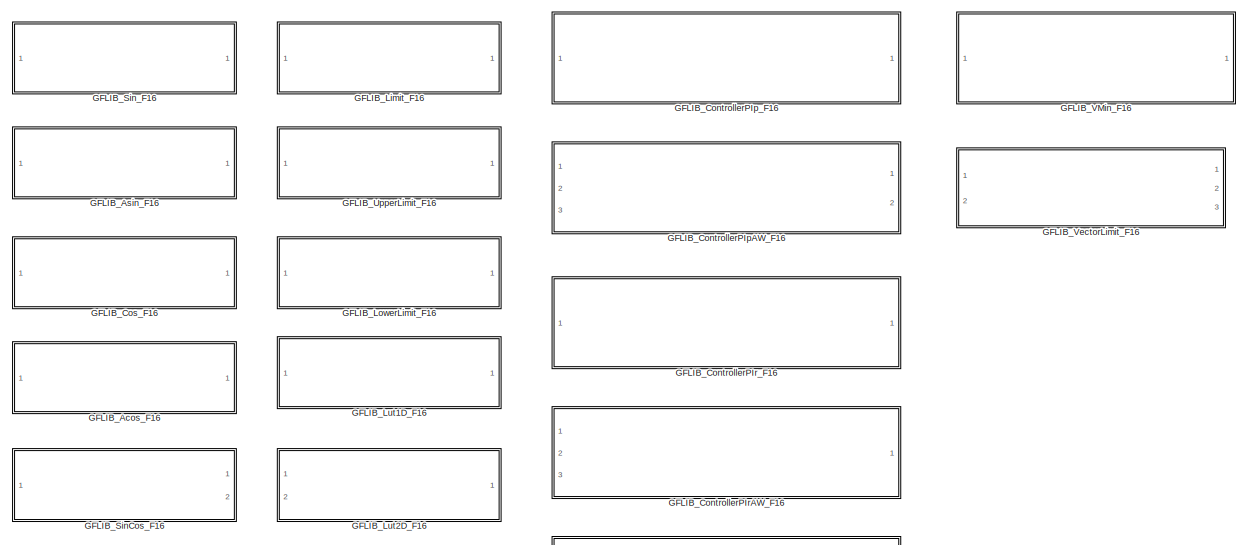
[diagram: GFLIB/bam_f16 - part 1/2, full width, top band]
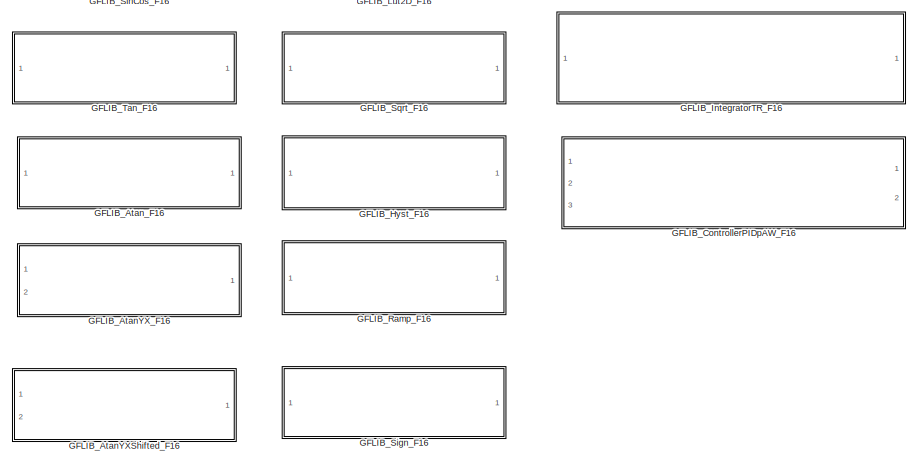
[diagram: GFLIB/bam_f16 - part 2/2, full width, bottom band]
BLOCK [SubSystem] GFLIB/bam_f16
  Ports = []
  RequestExecContextInheritance = off
  SID = 7634
  Variant = off
BLOCK [SubSystem] GFLIB/bam_f16/GFLIB_Acos_F16
  Ports = [1, 1]
  RequestExecContextInheritance = off
  SID = 8359
  Variant = off
BLOCK [S-Function] GFLIB/bam_f16/GFLIB_Acos_F16/GFLIB_Acos_SF
  EnableBusSupport = off
  FunctionName = GFLIB_Acos_SF_F16
  Ports = [1, 1]
  SFcnIsStateOwnerBlock = off
  SFunctionDeploymentMode = off
  SID = 8361
BLOCK [SubSystem] GFLIB/bam_f16/GFLIB_Acos_F16/<copyright redacted>
  Ports = []
  RequestExecContextInheritance = off
  SID = 8362
  Variant = off
BLOCK [SubSystem] GFLIB/bam_f16/GFLIB_Acos_F16/copyright2
  Ports = []
  RequestExecContextInheritance = off
  SID = 8363
  Variant = off
BLOCK [Inport] GFLIB/bam_f16/GFLIB_Acos_F16/f16In
  IconDisplay = Port number
  SID = 8360
BLOCK [Outport] GFLIB/bam_f16/GFLIB_Acos_F16/f16Out
  IconDisplay = Port number
  SID = 8365
BLOCK [SubSystem] GFLIB/bam_f16/GFLIB_Acos_F16/logo
  Ports = []
  RequestExecContextInheritance = off
  SID = 8364
  Variant = off
BLOCK [SubSystem] GFLIB/bam_f16/GFLIB_Asin_F16
  Ports = [1, 1]
  RequestExecContextInheritance = off
  SID = 8367
  Variant = off
BLOCK [S-Function] GFLIB/bam_f16/GFLIB_Asin_F16/GFLIB_Asin_SF
  EnableBusSupport = off
  FunctionName = GFLIB_Asin_SF_F16
  Ports = [1, 1]
  SFcnIsStateOwnerBlock = off
  SFunctionDeploymentMode = off
  SID = 8369
BLOCK [SubSystem] GFLIB/bam_f16/GFLIB_Asin_F16/<copyright redacted>
  Ports = []
  RequestExecContextInheritance = off
  SID = 8370
  Variant = off
BLOCK [SubSystem] GFLIB/bam_f16/GFLIB_Asin_F16/copyright2
  Ports = []
  RequestExecContextInheritance = off
  SID = 8371
  Variant = off
BLOCK [Inport] GFLIB/bam_f16/GFLIB_Asin_F16/f16In
  IconDisplay = Port number
  SID = 8368
BLOCK [Outport] GFLIB/bam_f16/GFLIB_Asin_F16/f16Out
  IconDisplay = Port number
  SID = 8373
BLOCK [SubSystem] GFLIB/bam_f16/GFLIB_Asin_F16/logo
  Ports = []
  RequestExecContextInheritance = off
  SID = 8372
  Variant = off
BLOCK [SubSystem] GFLIB/bam_f16/GFLIB_AtanYXShifted_F16
  Ports = [2, 1]
  RequestExecContextInheritance = off
  SID = 8824
  Variant = off
BLOCK [S-Function] GFLIB/bam_f16/GFLIB_AtanYXShifted_F16/GFLIB_AtanYXShifted_SF
  EnableBusSupport = off
  FunctionName = GFLIB_AtanYXShifted_SF_F16
  Parameters = Ky,Kx,Ny,Nx,ThetaAdj
  Ports = [2, 1]
  SFcnIsStateOwnerBlock = off
  SFunctionDeploymentMode = off
  SID = 8827
BLOCK [SubSystem] GFLIB/bam_f16/GFLIB_AtanYXShifted_F16/<copyright redacted>
  Ports = []
  RequestExecContextInheritance = off
  SID = 8828
  Variant = off
BLOCK [SubSystem] GFLIB/bam_f16/GFLIB_AtanYXShifted_F16/copyright2
  Ports = []
  RequestExecContextInheritance = off
  SID = 8829
  Variant = off
BLOCK [Inport] GFLIB/bam_f16/GFLIB_AtanYXShifted_F16/f16InX
  IconDisplay = Port number
  Port = 2
  SID = 8826
BLOCK [Inport] GFLIB/bam_f16/GFLIB_AtanYXShifted_F16/f16InY
  IconDisplay = Port number
  SID = 8825
BLOCK [Outport] GFLIB/bam_f16/GFLIB_AtanYXShifted_F16/f16Out
  IconDisplay = Port number
  SID = 8831
BLOCK [SubSystem] GFLIB/bam_f16/GFLIB_AtanYXShifted_F16/logo
  Ports = []
  RequestExecContextInheritance = off
  SID = 8830
  Variant = off
BLOCK [SubSystem] GFLIB/bam_f16/GFLIB_AtanYX_F16
  Ports = [2, 1]
  RequestExecContextInheritance = off
  SID = 8833
  Variant = off
BLOCK [S-Function] GFLIB/bam_f16/GFLIB_AtanYX_F16/GFLIB_AtanYX_SF
  EnableBusSupport = off
  FunctionName = GFLIB_AtanYX_SF_F16
  Ports = [2, 1]
  SFcnIsStateOwnerBlock = off
  SFunctionDeploymentMode = off
  SID = 8836
BLOCK [SubSystem] GFLIB/bam_f16/GFLIB_AtanYX_F16/<copyright redacted>
  Ports = []
  RequestExecContextInheritance = off
  SID = 8837
  Variant = off
BLOCK [SubSystem] GFLIB/bam_f16/GFLIB_AtanYX_F16/copyright2
  Ports = []
  RequestExecContextInheritance = off
  SID = 8838
  Variant = off
BLOCK [Inport] GFLIB/bam_f16/GFLIB_AtanYX_F16/f16InX
  IconDisplay = Port number
  Port = 2
  SID = 8835
BLOCK [Inport] GFLIB/bam_f16/GFLIB_AtanYX_F16/f16InY
  IconDisplay = Port number
  SID = 8834
BLOCK [Outport] GFLIB/bam_f16/GFLIB_AtanYX_F16/f16Out
  IconDisplay = Port number
  SID = 8840
BLOCK [SubSystem] GFLIB/bam_f16/GFLIB_AtanYX_F16/logo
  Ports = []
  RequestExecContextInheritance = off
  SID = 8839
  Variant = off
BLOCK [SubSystem] GFLIB/bam_f16/GFLIB_Atan_F16
  Ports = [1, 1]
  RequestExecContextInheritance = off
  SID = 8375
  Variant = off
BLOCK [S-Function] GFLIB/bam_f16/GFLIB_Atan_F16/GFLIB_Atan_SF
  EnableBusSupport = off
  FunctionName = GFLIB_Atan_SF_F16
  Ports = [1, 1]
  SFcnIsStateOwnerBlock = off
  SFunctionDeploymentMode = off
  SID = 8377
BLOCK [SubSystem] GFLIB/bam_f16/GFLIB_Atan_F16/<copyright redacted>
  Ports = []
  RequestExecContextInheritance = off
  SID = 8378
  Variant = off
BLOCK [SubSystem] GFLIB/bam_f16/GFLIB_Atan_F16/copyright2
  Ports = []
  RequestExecContextInheritance = off
  SID = 8379
  Variant = off
BLOCK [Inport] GFLIB/bam_f16/GFLIB_Atan_F16/f16In
  IconDisplay = Port number
  SID = 8376
BLOCK [Outport] GFLIB/bam_f16/GFLIB_Atan_F16/f16Out
  IconDisplay = Port number
  SID = 8381
BLOCK [SubSystem] GFLIB/bam_f16/GFLIB_Atan_F16/logo
  Ports = []
  RequestExecContextInheritance = off
  SID = 8380
  Variant = off
BLOCK [SubSystem] GFLIB/bam_f16/GFLIB_ControllerPIDpAW_F16
  Ports = [3, 2]
  RequestExecContextInheritance = off
  SID = 12287
  Variant = off
BLOCK [S-Function] GFLIB/bam_f16/GFLIB_ControllerPIDpAW_F16/GFLIB_ControllerPIDpAW_SF
  EnableBusSupport = off
  FunctionName = GFLIB_ControllerPIDpAW_SF_F16
  Parameters = f16PropGain,s16PropGainShift,f16IntegGain,s16IntegGainShift,f16DerivGain,s16DerivGainShift,f16FiltCoef
  Ports = [6, 5]
  SFcnIsStateOwnerBlock = off
  SFunctionDeploymentMode = off
  SID = 12291
BLOCK [Delay] GFLIB/bam_f16/GFLIB_ControllerPIDpAW_F16/Unit_Delay_f16DerivPartK_1
  DelayLength = 1
  InitialCondition = 0
  InputPortMap = u0
  Ports = [1, 1]
  SID = 12292
BLOCK [Delay] GFLIB/bam_f16/GFLIB_ControllerPIDpAW_F16/Unit_Delay_f16InK_1
  DelayLength = 1
  InitialCondition = 0
  InputPortMap = u0
  Ports = [1, 1]
  SID = 12293
BLOCK [Delay] GFLIB/bam_f16/GFLIB_ControllerPIDpAW_F16/Unit_Delay_f32IntegPartK_1
  DelayLength = 1
  InitialCondition = 0
  InputPortMap = u0
  Ports = [1, 1]
  SID = 12294
BLOCK [SubSystem] GFLIB/bam_f16/GFLIB_ControllerPIDpAW_F16/<copyright redacted>
  Ports = []
  RequestExecContextInheritance = off
  SID = 12295
  Variant = off
BLOCK [SubSystem] GFLIB/bam_f16/GFLIB_ControllerPIDpAW_F16/copyright2
  Ports = []
  RequestExecContextInheritance = off
  SID = 12296
  Variant = off
BLOCK [Inport] GFLIB/bam_f16/GFLIB_ControllerPIDpAW_F16/f16InErr
  IconDisplay = Port number
  SID = 12288
BLOCK [Inport] GFLIB/bam_f16/GFLIB_ControllerPIDpAW_F16/f16LowerLimit
  IconDisplay = Port number
  Port = 3
  SID = 12290
BLOCK [Outport] GFLIB/bam_f16/GFLIB_ControllerPIDpAW_F16/f16Out
  IconDisplay = Port number
  SID = 12298
BLOCK [Inport] GFLIB/bam_f16/GFLIB_ControllerPIDpAW_F16/f16UpperLimit
  IconDisplay = Port number
  Port = 2
  SID = 12289
BLOCK [SubSystem] GFLIB/bam_f16/GFLIB_ControllerPIDpAW_F16/logo
  Ports = []
  RequestExecContextInheritance = off
  SID = 12297
  Variant = off
BLOCK [Outport] GFLIB/bam_f16/GFLIB_ControllerPIDpAW_F16/u16LimitFlag
  IconDisplay = Port number
  Port = 2
  SID = 12299
BLOCK [SubSystem] GFLIB/bam_f16/GFLIB_ControllerPIpAW_F16
  Ports = [3, 2]
  RequestExecContextInheritance = off
  SID = 11685
  Variant = off
BLOCK [S-Function] GFLIB/bam_f16/GFLIB_ControllerPIpAW_F16/GFLIB_ControllerPIpAW_SF
  EnableBusSupport = off
  FunctionName = GFLIB_ControllerPIpAW_SF_F16
  Parameters = f16PropGain,s16PropGainShift,f16IntegGain,s16IntegGainShift
  Ports = [5, 4]
  SFcnIsStateOwnerBlock = off
  SFunctionDeploymentMode = off
  SID = 11689
BLOCK [Delay] GFLIB/bam_f16/GFLIB_ControllerPIpAW_F16/Unit_Delay_f16InK_1
  DelayLength = 1
  InitialCondition = 0
  InputPortMap = u0
  Ports = [1, 1]
  SID = 11690
BLOCK [Delay] GFLIB/bam_f16/GFLIB_ControllerPIpAW_F16/Unit_Delay_f32IntegPartK_1
  DelayLength = 1
  InitialCondition = 0
  InputPortMap = u0
  Ports = [1, 1]
  SID = 11691
BLOCK [SubSystem] GFLIB/bam_f16/GFLIB_ControllerPIpAW_F16/<copyright redacted>
  Ports = []
  RequestExecContextInheritance = off
  SID = 11692
  Variant = off
BLOCK [SubSystem] GFLIB/bam_f16/GFLIB_ControllerPIpAW_F16/copyright2
  Ports = []
  RequestExecContextInheritance = off
  SID = 11693
  Variant = off
BLOCK [Inport] GFLIB/bam_f16/GFLIB_ControllerPIpAW_F16/f16InErr
  IconDisplay = Port number
  SID = 11686
BLOCK [Inport] GFLIB/bam_f16/GFLIB_ControllerPIpAW_F16/f16LowerLimit
  IconDisplay = Port number
  Port = 3
  SID = 11688
BLOCK [Outport] GFLIB/bam_f16/GFLIB_ControllerPIpAW_F16/f16Out
  IconDisplay = Port number
  SID = 11695
BLOCK [Inport] GFLIB/bam_f16/GFLIB_ControllerPIpAW_F16/f16UpperLimit
  IconDisplay = Port number
  Port = 2
  SID = 11687
BLOCK [SubSystem] GFLIB/bam_f16/GFLIB_ControllerPIpAW_F16/logo
  Ports = []
  RequestExecContextInheritance = off
  SID = 11694
  Variant = off
BLOCK [Outport] GFLIB/bam_f16/GFLIB_ControllerPIpAW_F16/u16LimitFlag
  IconDisplay = Port number
  Port = 2
  SID = 11696
BLOCK [SubSystem] GFLIB/bam_f16/GFLIB_ControllerPIp_F16
  Ports = [1, 1]
  RequestExecContextInheritance = off
  SID = 11644
  Variant = off
BLOCK [S-Function] GFLIB/bam_f16/GFLIB_ControllerPIp_F16/GFLIB_ControllerPIp_SF
  EnableBusSupport = off
  FunctionName = GFLIB_ControllerPIp_SF_F16
  Parameters = f16PropGain,s16PropGainShift,f16IntegGain,s16IntegGainShift
  Ports = [3, 3]
  SFcnIsStateOwnerBlock = off
  SFunctionDeploymentMode = off
  SID = 11646
BLOCK [UnitDelay] GFLIB/bam_f16/GFLIB_ControllerPIp_F16/Unit_Delay_f32InIntegPartK_1
  SID = 11647
  SampleTime = -1
BLOCK [UnitDelay] GFLIB/bam_f16/GFLIB_ControllerPIp_F16/Unit_Delay_f32InK_1
  SID = 11648
  SampleTime = -1
BLOCK [SubSystem] GFLIB/bam_f16/GFLIB_ControllerPIp_F16/<copyright redacted>
  Ports = []
  RequestExecContextInheritance = off
  SID = 11649
  Variant = off
BLOCK [SubSystem] GFLIB/bam_f16/GFLIB_ControllerPIp_F16/copyright2
  Ports = []
  RequestExecContextInheritance = off
  SID = 11650
  Variant = off
BLOCK [Inport] GFLIB/bam_f16/GFLIB_ControllerPIp_F16/f16InErr
  IconDisplay = Port number
  SID = 11645
BLOCK [Outport] GFLIB/bam_f16/GFLIB_ControllerPIp_F16/f16Out
  IconDisplay = Port number
  SID = 11652
BLOCK [SubSystem] GFLIB/bam_f16/GFLIB_ControllerPIp_F16/logo
  Ports = []
  RequestExecContextInheritance = off
  SID = 11651
  Variant = off
BLOCK [SubSystem] GFLIB/bam_f16/GFLIB_ControllerPIrAW_F16
  Ports = [3, 1]
  RequestExecContextInheritance = off
  SID = 11654
  Variant = off
BLOCK [S-Function] GFLIB/bam_f16/GFLIB_ControllerPIrAW_F16/GFLIB_ControllerPIrAW_SF
  EnableBusSupport = off
  FunctionName = GFLIB_ControllerPIrAW_SF_F16
  Parameters = f16CC1,f16CC2,u16NShift
  Ports = [5, 3]
  SFcnIsStateOwnerBlock = off
  SFunctionDeploymentMode = off
  SID = 11658
BLOCK [Delay] GFLIB/bam_f16/GFLIB_ControllerPIrAW_F16/Unit_Delay_f16InErrK1
  DelayLength = 1
  InitialCondition = 0
  InputPortMap = u0
  Ports = [1, 1]
  SID = 11659
BLOCK [Delay] GFLIB/bam_f16/GFLIB_ControllerPIrAW_F16/Unit_Delay_f32Acc
  DelayLength = 1
  InitialCondition = 0
  InputPortMap = u0
  Ports = [1, 1]
  SID = 11660
BLOCK [SubSystem] GFLIB/bam_f16/GFLIB_ControllerPIrAW_F16/<copyright redacted>
  Ports = []
  RequestExecContextInheritance = off
  SID = 11661
  Variant = off
BLOCK [SubSystem] GFLIB/bam_f16/GFLIB_ControllerPIrAW_F16/copyright2
  Ports = []
  RequestExecContextInheritance = off
  SID = 11662
  Variant = off
BLOCK [Inport] GFLIB/bam_f16/GFLIB_ControllerPIrAW_F16/f16InErr
  IconDisplay = Port number
  SID = 11655
BLOCK [Inport] GFLIB/bam_f16/GFLIB_ControllerPIrAW_F16/f16LowerLimit
  IconDisplay = Port number
  Port = 3
  SID = 11657
BLOCK [Outport] GFLIB/bam_f16/GFLIB_ControllerPIrAW_F16/f16Out
  IconDisplay = Port number
  SID = 11664
BLOCK [Inport] GFLIB/bam_f16/GFLIB_ControllerPIrAW_F16/f16UpperLimit
  IconDisplay = Port number
  Port = 2
  SID = 11656
BLOCK [SubSystem] GFLIB/bam_f16/GFLIB_ControllerPIrAW_F16/logo
  Ports = []
  RequestExecContextInheritance = off
  SID = 11663
  Variant = off
BLOCK [SubSystem] GFLIB/bam_f16/GFLIB_ControllerPIr_F16
  Ports = [1, 1]
  RequestExecContextInheritance = off
  SID = 11698
  Variant = off
BLOCK [S-Function] GFLIB/bam_f16/GFLIB_ControllerPIr_F16/GFLIB_ControllerPIr_SF
  EnableBusSupport = off
  FunctionName = GFLIB_ControllerPIr_SF_F16
  Parameters = f16CC1,f16CC2,u16NShift
  Ports = [3, 3]
  SFcnIsStateOwnerBlock = off
  SFunctionDeploymentMode = off
  SID = 11700
BLOCK [UnitDelay] GFLIB/bam_f16/GFLIB_ControllerPIr_F16/Unit_Delay_f16InErrK_1
  SID = 11701
  SampleTime = -1
BLOCK [UnitDelay] GFLIB/bam_f16/GFLIB_ControllerPIr_F16/Unit_Delay_f32AccIn
  SID = 11702
  SampleTime = -1
BLOCK [SubSystem] GFLIB/bam_f16/GFLIB_ControllerPIr_F16/<copyright redacted>
  Ports = []
  RequestExecContextInheritance = off
  SID = 11703
  Variant = off
BLOCK [SubSystem] GFLIB/bam_f16/GFLIB_ControllerPIr_F16/copyright2
  Ports = []
  RequestExecContextInheritance = off
  SID = 11704
  Variant = off
BLOCK [Inport] GFLIB/bam_f16/GFLIB_ControllerPIr_F16/f16InErr
  IconDisplay = Port number
  SID = 11699
BLOCK [Outport] GFLIB/bam_f16/GFLIB_ControllerPIr_F16/f16Out
  IconDisplay = Port number
  SID = 11706
BLOCK [SubSystem] GFLIB/bam_f16/GFLIB_ControllerPIr_F16/logo
  Ports = []
  RequestExecContextInheritance = off
  SID = 11705
  Variant = off
BLOCK [SubSystem] GFLIB/bam_f16/GFLIB_Cos_F16
  Ports = [1, 1]
  RequestExecContextInheritance = off
  SID = 8444
  Variant = off
BLOCK [S-Function] GFLIB/bam_f16/GFLIB_Cos_F16/GFLIB_Cos_SF
  EnableBusSupport = off
  FunctionName = GFLIB_Cos_SF_F16
  Ports = [1, 1]
  SFcnIsStateOwnerBlock = off
  SFunctionDeploymentMode = off
  SID = 8446
BLOCK [SubSystem] GFLIB/bam_f16/GFLIB_Cos_F16/<copyright redacted>
  Ports = []
  RequestExecContextInheritance = off
  SID = 8447
  Variant = off
BLOCK [SubSystem] GFLIB/bam_f16/GFLIB_Cos_F16/copyright2
  Ports = []
  RequestExecContextInheritance = off
  SID = 8448
  Variant = off
BLOCK [Inport] GFLIB/bam_f16/GFLIB_Cos_F16/f16In
  IconDisplay = Port number
  SID = 8445
BLOCK [Outport] GFLIB/bam_f16/GFLIB_Cos_F16/f16Out
  IconDisplay = Port number
  SID = 8450
BLOCK [SubSystem] GFLIB/bam_f16/GFLIB_Cos_F16/logo
  Ports = []
  RequestExecContextInheritance = off
  SID = 8449
  Variant = off
BLOCK [SubSystem] GFLIB/bam_f16/GFLIB_Hyst_F16
  Ports = [1, 1]
  RequestExecContextInheritance = off
  SID = 11666
  Variant = off
BLOCK [S-Function] GFLIB/bam_f16/GFLIB_Hyst_F16/GFLIB_Hyst_SF_F16
  EnableBusSupport = off
  FunctionName = GFLIB_Hyst_SF_F16
  Parameters = f16HystOn,f16HystOff,f16OutValOn,f16OutValOff
  Ports = [2, 2]
  SFcnIsStateOwnerBlock = off
  SFunctionDeploymentMode = off
  SID = 11668
BLOCK [UnitDelay] GFLIB/bam_f16/GFLIB_Hyst_F16/Unit_Delay_f16InState
  SID = 11669
  SampleTime = -1
BLOCK [SubSystem] GFLIB/bam_f16/GFLIB_Hyst_F16/<copyright redacted>
  Ports = []
  RequestExecContextInheritance = off
  SID = 11670
  Variant = off
BLOCK [SubSystem] GFLIB/bam_f16/GFLIB_Hyst_F16/copyright2
  Ports = []
  RequestExecContextInheritance = off
  SID = 11671
  Variant = off
BLOCK [Inport] GFLIB/bam_f16/GFLIB_Hyst_F16/f16In
  IconDisplay = Port number
  SID = 11667
BLOCK [Outport] GFLIB/bam_f16/GFLIB_Hyst_F16/f16Out
  IconDisplay = Port number
  SID = 11673
BLOCK [SubSystem] GFLIB/bam_f16/GFLIB_Hyst_F16/logo
  Ports = []
  RequestExecContextInheritance = off
  SID = 11672
  Variant = off
BLOCK [SubSystem] GFLIB/bam_f16/GFLIB_IntegratorTR_F16
  Ports = [1, 1]
  RequestExecContextInheritance = off
  SID = 11675
  Variant = off
BLOCK [S-Function] GFLIB/bam_f16/GFLIB_IntegratorTR_F16/GFLIB_IntegratorTR_SF
  EnableBusSupport = off
  FunctionName = GFLIB_IntegratorTR_SF_F16
  Parameters = f16C1,u16NShift
  Ports = [3, 3]
  SFcnIsStateOwnerBlock = off
  SFunctionDeploymentMode = off
  SID = 11677
BLOCK [UnitDelay] GFLIB/bam_f16/GFLIB_IntegratorTR_F16/Unit_Delay_f16InK_1
  SID = 11678
  SampleTime = -1
BLOCK [UnitDelay] GFLIB/bam_f16/GFLIB_IntegratorTR_F16/Unit_Delay_f32InAcc
  SID = 11679
  SampleTime = -1
BLOCK [SubSystem] GFLIB/bam_f16/GFLIB_IntegratorTR_F16/<copyright redacted>
  Ports = []
  RequestExecContextInheritance = off
  SID = 11680
  Variant = off
BLOCK [SubSystem] GFLIB/bam_f16/GFLIB_IntegratorTR_F16/copyright2
  Ports = []
  RequestExecContextInheritance = off
  SID = 11681
  Variant = off
BLOCK [Inport] GFLIB/bam_f16/GFLIB_IntegratorTR_F16/f16In
  IconDisplay = Port number
  SID = 11676
BLOCK [Outport] GFLIB/bam_f16/GFLIB_IntegratorTR_F16/f16Out
  IconDisplay = Port number
  SID = 11683
BLOCK [SubSystem] GFLIB/bam_f16/GFLIB_IntegratorTR_F16/logo
  Ports = []
  RequestExecContextInheritance = off
  SID = 11682
  Variant = off
BLOCK [SubSystem] GFLIB/bam_f16/GFLIB_Limit_F16
  Ports = [1, 1]
  RequestExecContextInheritance = off
  SID = 8466
  Variant = off
BLOCK [S-Function] GFLIB/bam_f16/GFLIB_Limit_F16/GFLIB_Limit_SF_F16
  EnableBusSupport = off
  FunctionName = GFLIB_Limit_SF_F16
  Parameters = f16UpperLimit,f16LowerLim
  Ports = [1, 1]
  SFcnIsStateOwnerBlock = off
  SFunctionDeploymentMode = off
  SID = 8468
BLOCK [SubSystem] GFLIB/bam_f16/GFLIB_Limit_F16/<copyright redacted>
  Ports = []
  RequestExecContextInheritance = off
  SID = 8469
  Variant = off
BLOCK [SubSystem] GFLIB/bam_f16/GFLIB_Limit_F16/copyright2
  Ports = []
  RequestExecContextInheritance = off
  SID = 8470
  Variant = off
BLOCK [Inport] GFLIB/bam_f16/GFLIB_Limit_F16/f16In
  IconDisplay = Port number
  SID = 8467
BLOCK [Outport] GFLIB/bam_f16/GFLIB_Limit_F16/f16Out
  IconDisplay = Port number
  SID = 8472
BLOCK [SubSystem] GFLIB/bam_f16/GFLIB_Limit_F16/logo
  Ports = []
  RequestExecContextInheritance = off
  SID = 8471
  Variant = off
BLOCK [SubSystem] GFLIB/bam_f16/GFLIB_LowerLimit_F16
  Ports = [1, 1]
  RequestExecContextInheritance = off
  SID = 8474
  Variant = off
BLOCK [S-Function] GFLIB/bam_f16/GFLIB_LowerLimit_F16/GFLIB_LowerLimit_SF_F16
  EnableBusSupport = off
  FunctionName = GFLIB_LowerLimit_SF_F16
  Parameters = f16LowerLim
  Ports = [1, 1]
  SFcnIsStateOwnerBlock = off
  SFunctionDeploymentMode = off
  SID = 8476
BLOCK [SubSystem] GFLIB/bam_f16/GFLIB_LowerLimit_F16/<copyright redacted>
  Ports = []
  RequestExecContextInheritance = off
  SID = 8477
  Variant = off
BLOCK [SubSystem] GFLIB/bam_f16/GFLIB_LowerLimit_F16/copyright2
  Ports = []
  RequestExecContextInheritance = off
  SID = 8478
  Variant = off
BLOCK [Inport] GFLIB/bam_f16/GFLIB_LowerLimit_F16/f16In
  IconDisplay = Port number
  SID = 8475
BLOCK [Outport] GFLIB/bam_f16/GFLIB_LowerLimit_F16/f16Out
  IconDisplay = Port number
  SID = 8480
BLOCK [SubSystem] GFLIB/bam_f16/GFLIB_LowerLimit_F16/logo
  Ports = []
  RequestExecContextInheritance = off
  SID = 8479
  Variant = off
BLOCK [SubSystem] GFLIB/bam_f16/GFLIB_Lut1D_F16
  Ports = [1, 1]
  RequestExecContextInheritance = off
  SID = 11875
  Variant = off
BLOCK [S-Function] GFLIB/bam_f16/GFLIB_Lut1D_F16/GFLIB_Lut1D_SF
  EnableBusSupport = off
  FunctionName = GFLIB_Lut1D_SF_F16
  Parameters = u16ShamOffset,pf16Table,s16MidIdx
  Ports = [1, 1]
  SFcnIsStateOwnerBlock = off
  SFunctionDeploymentMode = off
  SID = 11877
BLOCK [SubSystem] GFLIB/bam_f16/GFLIB_Lut1D_F16/<copyright redacted>
  Ports = []
  RequestExecContextInheritance = off
  SID = 11878
  Variant = off
BLOCK [SubSystem] GFLIB/bam_f16/GFLIB_Lut1D_F16/copyright2
  Ports = []
  RequestExecContextInheritance = off
  SID = 11879
  Variant = off
BLOCK [Inport] GFLIB/bam_f16/GFLIB_Lut1D_F16/f16In
  IconDisplay = Port number
  SID = 11876
BLOCK [Outport] GFLIB/bam_f16/GFLIB_Lut1D_F16/f16Out
  IconDisplay = Port number
  SID = 11881
BLOCK [SubSystem] GFLIB/bam_f16/GFLIB_Lut1D_F16/logo
  Ports = []
  RequestExecContextInheritance = off
  SID = 11880
  Variant = off
BLOCK [SubSystem] GFLIB/bam_f16/GFLIB_Lut2D_F16
  Ports = [2, 1]
  RequestExecContextInheritance = off
  SID = 8490
  Variant = off
BLOCK [S-Function] GFLIB/bam_f16/GFLIB_Lut2D_F16/GFLIB_Lut2D_SF
  EnableBusSupport = off
  FunctionName = GFLIB_Lut2D_SF_F16
  Parameters = u16ShamOffset1,u16ShamOffset2,pf16Table,s16MidIdx
  Ports = [2, 1]
  SFcnIsStateOwnerBlock = off
  SFunctionDeploymentMode = off
  SID = 8493
BLOCK [SubSystem] GFLIB/bam_f16/GFLIB_Lut2D_F16/<copyright redacted>
  Ports = []
  RequestExecContextInheritance = off
  SID = 8494
  Variant = off
BLOCK [SubSystem] GFLIB/bam_f16/GFLIB_Lut2D_F16/copyright2
  Ports = []
  RequestExecContextInheritance = off
  SID = 8495
  Variant = off
BLOCK [Inport] GFLIB/bam_f16/GFLIB_Lut2D_F16/f16In1
  IconDisplay = Port number
  SID = 8491
BLOCK [Inport] GFLIB/bam_f16/GFLIB_Lut2D_F16/f16In2
  IconDisplay = Port number
  Port = 2
  SID = 8492
BLOCK [Outport] GFLIB/bam_f16/GFLIB_Lut2D_F16/f16Out
  IconDisplay = Port number
  SID = 8497
BLOCK [SubSystem] GFLIB/bam_f16/GFLIB_Lut2D_F16/logo
  Ports = []
  RequestExecContextInheritance = off
  SID = 8496
  Variant = off
BLOCK [SubSystem] GFLIB/bam_f16/GFLIB_Ramp_F16
  Ports = [1, 1]
  RequestExecContextInheritance = off
  SID = 11708
  Variant = off
BLOCK [S-Function] GFLIB/bam_f16/GFLIB_Ramp_F16/GFLIB_Ramp_SF_F16
  EnableBusSupport = off
  FunctionName = GFLIB_Ramp_SF_F16
  Parameters = f16RampUp,f16RampDown
  Ports = [2, 2]
  SFcnIsStateOwnerBlock = off
  SFunctionDeploymentMode = off
  SID = 11710
BLOCK [UnitDelay] GFLIB/bam_f16/GFLIB_Ramp_F16/Unit_Delay_f16InState
  SID = 11711
  SampleTime = -1
BLOCK [SubSystem] GFLIB/bam_f16/GFLIB_Ramp_F16/<copyright redacted>
  Ports = []
  RequestExecContextInheritance = off
  SID = 11712
  Variant = off
BLOCK [SubSystem] GFLIB/bam_f16/GFLIB_Ramp_F16/copyright2
  Ports = []
  RequestExecContextInheritance = off
  SID = 11713
  Variant = off
BLOCK [Inport] GFLIB/bam_f16/GFLIB_Ramp_F16/f16In
  IconDisplay = Port number
  SID = 11709
BLOCK [Outport] GFLIB/bam_f16/GFLIB_Ramp_F16/f16Out
  IconDisplay = Port number
  SID = 11715
BLOCK [SubSystem] GFLIB/bam_f16/GFLIB_Ramp_F16/logo
  Ports = []
  RequestExecContextInheritance = off
  SID = 11714
  Variant = off
BLOCK [SubSystem] GFLIB/bam_f16/GFLIB_Sign_F16
  Ports = [1, 1]
  RequestExecContextInheritance = off
  SID = 8510
  Variant = off
BLOCK [S-Function] GFLIB/bam_f16/GFLIB_Sign_F16/GFLIB_Sign_SF_F16
  EnableBusSupport = off
  FunctionName = GFLIB_Sign_SF_F16
  Ports = [1, 1]
  SFcnIsStateOwnerBlock = off
  SFunctionDeploymentMode = off
  SID = 8512
BLOCK [SubSystem] GFLIB/bam_f16/GFLIB_Sign_F16/<copyright redacted>
  Ports = []
  RequestExecContextInheritance = off
  SID = 8513
  Variant = off
BLOCK [SubSystem] GFLIB/bam_f16/GFLIB_Sign_F16/copyright2
  Ports = []
  RequestExecContextInheritance = off
  SID = 8514
  Variant = off
BLOCK [Inport] GFLIB/bam_f16/GFLIB_Sign_F16/f16In
  IconDisplay = Port number
  SID = 8511
BLOCK [Outport] GFLIB/bam_f16/GFLIB_Sign_F16/f16Out
  IconDisplay = Port number
  SID = 8516
BLOCK [SubSystem] GFLIB/bam_f16/GFLIB_Sign_F16/logo
  Ports = []
  RequestExecContextInheritance = off
  SID = 8515
  Variant = off
BLOCK [SubSystem] GFLIB/bam_f16/GFLIB_SinCos_F16
  Ports = [1, 2]
  RequestExecContextInheritance = off
  SID = 8518
  Variant = off
BLOCK [S-Function] GFLIB/bam_f16/GFLIB_SinCos_F16/GFLIB_SinCos_SF
  EnableBusSupport = off
  FunctionName = GFLIB_SinCos_SF_F16
  Ports = [1, 2]
  SFcnIsStateOwnerBlock = off
  SFunctionDeploymentMode = off
  SID = 8520
BLOCK [SubSystem] GFLIB/bam_f16/GFLIB_SinCos_F16/<copyright redacted>
  Ports = []
  RequestExecContextInheritance = off
  SID = 8521
  Variant = off
BLOCK [SubSystem] GFLIB/bam_f16/GFLIB_SinCos_F16/copyright2
  Ports = []
  RequestExecContextInheritance = off
  SID = 8522
  Variant = off
BLOCK [Outport] GFLIB/bam_f16/GFLIB_SinCos_F16/f16CosOut
  IconDisplay = Port number
  Port = 2
  SID = 8525
BLOCK [Inport] GFLIB/bam_f16/GFLIB_SinCos_F16/f16In
  IconDisplay = Port number
  SID = 8519
BLOCK [Outport] GFLIB/bam_f16/GFLIB_SinCos_F16/f16SinOut
  IconDisplay = Port number
  SID = 8524
BLOCK [SubSystem] GFLIB/bam_f16/GFLIB_SinCos_F16/logo
  Ports = []
  RequestExecContextInheritance = off
  SID = 8523
  Variant = off
BLOCK [SubSystem] GFLIB/bam_f16/GFLIB_Sin_F16
  Ports = [1, 1]
  RequestExecContextInheritance = off
  SID = 8853
  Variant = off
BLOCK [S-Function] GFLIB/bam_f16/GFLIB_Sin_F16/GFLIB_Sin_SF
  EnableBusSupport = off
  FunctionName = GFLIB_Sin_SF_F16
  Ports = [1, 1]
  SFcnIsStateOwnerBlock = off
  SFunctionDeploymentMode = off
  SID = 8855
BLOCK [SubSystem] GFLIB/bam_f16/GFLIB_Sin_F16/<copyright redacted>
  Ports = []
  RequestExecContextInheritance = off
  SID = 8856
  Variant = off
BLOCK [SubSystem] GFLIB/bam_f16/GFLIB_Sin_F16/copyright2
  Ports = []
  RequestExecContextInheritance = off
  SID = 8857
  Variant = off
BLOCK [Inport] GFLIB/bam_f16/GFLIB_Sin_F16/f16In
  IconDisplay = Port number
  SID = 8854
BLOCK [Outport] GFLIB/bam_f16/GFLIB_Sin_F16/f16Out
  IconDisplay = Port number
  SID = 8859
BLOCK [SubSystem] GFLIB/bam_f16/GFLIB_Sin_F16/logo
  Ports = []
  RequestExecContextInheritance = off
  SID = 8858
  Variant = off
BLOCK [SubSystem] GFLIB/bam_f16/GFLIB_Sqrt_F16
  Ports = [1, 1]
  RequestExecContextInheritance = off
  SID = 8527
  Variant = off
BLOCK [S-Function] GFLIB/bam_f16/GFLIB_Sqrt_F16/GFLIB_Sqrt_SF_F16
  EnableBusSupport = off
  FunctionName = GFLIB_Sqrt_SF_F16
  Ports = [1, 1]
  SFcnIsStateOwnerBlock = off
  SFunctionDeploymentMode = off
  SID = 8529
BLOCK [SubSystem] GFLIB/bam_f16/GFLIB_Sqrt_F16/<copyright redacted>
  Ports = []
  RequestExecContextInheritance = off
  SID = 8530
  Variant = off
BLOCK [SubSystem] GFLIB/bam_f16/GFLIB_Sqrt_F16/copyright2
  Ports = []
  RequestExecContextInheritance = off
  SID = 8531
  Variant = off
BLOCK [Inport] GFLIB/bam_f16/GFLIB_Sqrt_F16/f16In
  IconDisplay = Port number
  SID = 8528
BLOCK [Outport] GFLIB/bam_f16/GFLIB_Sqrt_F16/f16Out
  IconDisplay = Port number
  SID = 8533
BLOCK [SubSystem] GFLIB/bam_f16/GFLIB_Sqrt_F16/logo
  Ports = []
  RequestExecContextInheritance = off
  SID = 8532
  Variant = off
BLOCK [SubSystem] GFLIB/bam_f16/GFLIB_Tan_F16
  Ports = [1, 1]
  RequestExecContextInheritance = off
  SID = 8535
  Variant = off
BLOCK [S-Function] GFLIB/bam_f16/GFLIB_Tan_F16/GFLIB_Tan_SF
  EnableBusSupport = off
  FunctionName = GFLIB_Tan_SF_F16
  Ports = [1, 1]
  SFcnIsStateOwnerBlock = off
  SFunctionDeploymentMode = off
  SID = 8537
BLOCK [SubSystem] GFLIB/bam_f16/GFLIB_Tan_F16/<copyright redacted>
  Ports = []
  RequestExecContextInheritance = off
  SID = 8538
  Variant = off
BLOCK [SubSystem] GFLIB/bam_f16/GFLIB_Tan_F16/copyright2
  Ports = []
  RequestExecContextInheritance = off
  SID = 8539
  Variant = off
BLOCK [Inport] GFLIB/bam_f16/GFLIB_Tan_F16/f16In
  IconDisplay = Port number
  SID = 8536
BLOCK [Outport] GFLIB/bam_f16/GFLIB_Tan_F16/f16Out
  IconDisplay = Port number
  SID = 8541
BLOCK [SubSystem] GFLIB/bam_f16/GFLIB_Tan_F16/logo
  Ports = []
  RequestExecContextInheritance = off
  SID = 8540
  Variant = off
BLOCK [SubSystem] GFLIB/bam_f16/GFLIB_UpperLimit_F16
  Ports = [1, 1]
  RequestExecContextInheritance = off
  SID = 8543
  Variant = off
BLOCK [S-Function] GFLIB/bam_f16/GFLIB_UpperLimit_F16/GFLIB_UpperLimit_SF_F16
  EnableBusSupport = off
  FunctionName = GFLIB_UpperLimit_SF_F16
  Parameters = f16UpperLim
  Ports = [1, 1]
  SFcnIsStateOwnerBlock = off
  SFunctionDeploymentMode = off
  SID = 8545
BLOCK [SubSystem] GFLIB/bam_f16/GFLIB_UpperLimit_F16/<copyright redacted>
  Ports = []
  RequestExecContextInheritance = off
  SID = 8546
  Variant = off
BLOCK [SubSystem] GFLIB/bam_f16/GFLIB_UpperLimit_F16/copyright2
  Ports = []
  RequestExecContextInheritance = off
  SID = 8547
  Variant = off
BLOCK [Inport] GFLIB/bam_f16/GFLIB_UpperLimit_F16/f16In
  IconDisplay = Port number
  SID = 8544
BLOCK [Outport] GFLIB/bam_f16/GFLIB_UpperLimit_F16/f16Out
  IconDisplay = Port number
  SID = 8549
BLOCK [SubSystem] GFLIB/bam_f16/GFLIB_UpperLimit_F16/logo
  Ports = []
  RequestExecContextInheritance = off
  SID = 8548
  Variant = off
BLOCK [SubSystem] GFLIB/bam_f16/GFLIB_VMin_F16
  Ports = [1, 1]
  RequestExecContextInheritance = off
  SID = 10884
  Variant = off
BLOCK [S-Function] GFLIB/bam_f16/GFLIB_VMin_F16/GFLIB_VMin_SF
  EnableBusSupport = off
  FunctionName = GFLIB_VMin_SF_F16
  Parameters = N
  Ports = [1, 1]
  SFcnIsStateOwnerBlock = off
  SFunctionDeploymentMode = off
  SID = 10886
BLOCK [Gain] GFLIB/bam_f16/GFLIB_VMin_F16/Gain
  Gain = [eye(N) zeros(N,256-N)]'
  Multiplication = Matrix(K*u)
  OutDataTypeStr = int16
  ParamDataTypeStr = Inherit: Inherit via internal rule
  SID = 10887
  SaturateOnIntegerOverflow = off
BLOCK [Outport] GFLIB/bam_f16/GFLIB_VMin_F16/IndexOfMinimum
  IconDisplay = Port number
  SID = 10892
BLOCK [Inport] GFLIB/bam_f16/GFLIB_VMin_F16/InputVector
  IconDisplay = Port number
  SID = 10885
BLOCK [SubSystem] GFLIB/bam_f16/GFLIB_VMin_F16/<copyright redacted>
  Ports = []
  RequestExecContextInheritance = off
  SID = 10889
  Variant = off
BLOCK [SubSystem] GFLIB/bam_f16/GFLIB_VMin_F16/copyright2
  Ports = []
  RequestExecContextInheritance = off
  SID = 10890
  Variant = off
BLOCK [SubSystem] GFLIB/bam_f16/GFLIB_VMin_F16/logo
  Ports = []
  RequestExecContextInheritance = off
  SID = 10891
  Variant = off
BLOCK [SubSystem] GFLIB/bam_f16/GFLIB_VectorLimit_F16
  Ports = [2, 3]
  RequestExecContextInheritance = off
  SID = 8842
  Variant = off
BLOCK [S-Function] GFLIB/bam_f16/GFLIB_VectorLimit_F16/GFLIB_VectorLimit_SF_F16
  EnableBusSupport = off
  FunctionName = GFLIB_VectorLimit_SF_F16
  Parameters = f16Limit
  Ports = [2, 3]
  SFcnIsStateOwnerBlock = off
  SFunctionDeploymentMode = off
  SID = 8845
BLOCK [Outport] GFLIB/bam_f16/GFLIB_VectorLimit_F16/bFlag
  IconDisplay = Port number
  Port = 3
  SID = 8851
BLOCK [SubSystem] GFLIB/bam_f16/GFLIB_VectorLimit_F16/<copyright redacted>
  Ports = []
  RequestExecContextInheritance = off
  SID = 8846
  Variant = off
BLOCK [SubSystem] GFLIB/bam_f16/GFLIB_VectorLimit_F16/copyright2
  Ports = []
  RequestExecContextInheritance = off
  SID = 8847
  Variant = off
BLOCK [Inport] GFLIB/bam_f16/GFLIB_VectorLimit_F16/f16InVec1
  IconDisplay = Port number
  SID = 8843
BLOCK [Inport] GFLIB/bam_f16/GFLIB_VectorLimit_F16/f16InVec2
  IconDisplay = Port number
  Port = 2
  SID = 8844
BLOCK [Outport] GFLIB/bam_f16/GFLIB_VectorLimit_F16/f16OutVec1
  IconDisplay = Port number
  SID = 8849
BLOCK [Outport] GFLIB/bam_f16/GFLIB_VectorLimit_F16/f16OutVec2
  IconDisplay = Port number
  Port = 2
  SID = 8850
BLOCK [SubSystem] GFLIB/bam_f16/GFLIB_VectorLimit_F16/logo
  Ports = []
  RequestExecContextInheritance = off
  SID = 8848
  Variant = off
BLOCK [SubSystem] GFLIB/bam_f32
  Ports = []
  RequestExecContextInheritance = off
  SID = 7635
  Variant = off
BLOCK [SubSystem] GFLIB/bam_f32/GFLIB_Acos_F32
  Ports = [1, 1]
  RequestExecContextInheritance = off
  SID = 8781
  Variant = off
BLOCK [S-Function] GFLIB/bam_f32/GFLIB_Acos_F32/GFLIB_Acos_SF
  EnableBusSupport = off
  FunctionName = GFLIB_Acos_SF_F32
  Ports = [1, 1]
  SFcnIsStateOwnerBlock = off
  SFunctionDeploymentMode = off
  SID = 8783
BLOCK [SubSystem] GFLIB/bam_f32/GFLIB_Acos_F32/<copyright redacted>
  Ports = []
  RequestExecContextInheritance = off
  SID = 8784
  Variant = off
BLOCK [SubSystem] GFLIB/bam_f32/GFLIB_Acos_F32/copyright2
  Ports = []
  RequestExecContextInheritance = off
  SID = 8785
  Variant = off
BLOCK [Inport] GFLIB/bam_f32/GFLIB_Acos_F32/f32In
  IconDisplay = Port number
  SID = 8782
BLOCK [Outport] GFLIB/bam_f32/GFLIB_Acos_F32/f32Out
  IconDisplay = Port number
  SID = 8787
BLOCK [SubSystem] GFLIB/bam_f32/GFLIB_Acos_F32/logo
  Ports = []
  RequestExecContextInheritance = off
  SID = 8786
  Variant = off
BLOCK [SubSystem] GFLIB/bam_f32/GFLIB_Asin_F32
  Ports = [1, 1]
  RequestExecContextInheritance = off
  SID = 8551
  Variant = off
BLOCK [S-Function] GFLIB/bam_f32/GFLIB_Asin_F32/GFLIB_Asin_SF
  EnableBusSupport = off
  FunctionName = GFLIB_Asin_SF_F32
  Ports = [1, 1]
  SFcnIsStateOwnerBlock = off
  SFunctionDeploymentMode = off
  SID = 8553
BLOCK [SubSystem] GFLIB/bam_f32/GFLIB_Asin_F32/<copyright redacted>
  Ports = []
  RequestExecContextInheritance = off
  SID = 8554
  Variant = off
BLOCK [SubSystem] GFLIB/bam_f32/GFLIB_Asin_F32/copyright2
  Ports = []
  RequestExecContextInheritance = off
  SID = 8555
  Variant = off
BLOCK [Inport] GFLIB/bam_f32/GFLIB_Asin_F32/f32In
  IconDisplay = Port number
  SID = 8552
BLOCK [Outport] GFLIB/bam_f32/GFLIB_Asin_F32/f32Out
  IconDisplay = Port number
  SID = 8557
BLOCK [SubSystem] GFLIB/bam_f32/GFLIB_Asin_F32/logo
  Ports = []
  RequestExecContextInheritance = off
  SID = 8556
  Variant = off
BLOCK [SubSystem] GFLIB/bam_f32/GFLIB_AtanYXShifted_F32
  Ports = [2, 1]
  RequestExecContextInheritance = off
  SID = 8789
  Variant = off
BLOCK [S-Function] GFLIB/bam_f32/GFLIB_AtanYXShifted_F32/GFLIB_AtanYXShifted_SF
  EnableBusSupport = off
  FunctionName = GFLIB_AtanYXShifted_SF_F32
  Parameters = Ky,Kx,Ny,Nx,ThetaAdj
  Ports = [2, 1]
  SFcnIsStateOwnerBlock = off
  SFunctionDeploymentMode = off
  SID = 8792
BLOCK [SubSystem] GFLIB/bam_f32/GFLIB_AtanYXShifted_F32/<copyright redacted>
  Ports = []
  RequestExecContextInheritance = off
  SID = 8793
  Variant = off
BLOCK [SubSystem] GFLIB/bam_f32/GFLIB_AtanYXShifted_F32/copyright2
  Ports = []
  RequestExecContextInheritance = off
  SID = 8794
  Variant = off
BLOCK [Inport] GFLIB/bam_f32/GFLIB_AtanYXShifted_F32/f32InX
  IconDisplay = Port number
  Port = 2
  SID = 8791
BLOCK [Inport] GFLIB/bam_f32/GFLIB_AtanYXShifted_F32/f32InY
  IconDisplay = Port number
  SID = 8790
BLOCK [Outport] GFLIB/bam_f32/GFLIB_AtanYXShifted_F32/f32Out
  IconDisplay = Port number
  SID = 8796
BLOCK [SubSystem] GFLIB/bam_f32/GFLIB_AtanYXShifted_F32/logo
  Ports = []
  RequestExecContextInheritance = off
  SID = 8795
  Variant = off
BLOCK [SubSystem] GFLIB/bam_f32/GFLIB_AtanYX_F32
  Ports = [2, 1]
  RequestExecContextInheritance = off
  SID = 8798
  Variant = off
BLOCK [S-Function] GFLIB/bam_f32/GFLIB_AtanYX_F32/GFLIB_AtanYX_SF
  EnableBusSupport = off
  FunctionName = GFLIB_AtanYX_SF_F32
  Ports = [2, 1]
  SFcnIsStateOwnerBlock = off
  SFunctionDeploymentMode = off
  SID = 8801
BLOCK [SubSystem] GFLIB/bam_f32/GFLIB_AtanYX_F32/<copyright redacted>
  Ports = []
  RequestExecContextInheritance = off
  SID = 8802
  Variant = off
BLOCK [SubSystem] GFLIB/bam_f32/GFLIB_AtanYX_F32/copyright2
  Ports = []
  RequestExecContextInheritance = off
  SID = 8803
  Variant = off
BLOCK [Inport] GFLIB/bam_f32/GFLIB_AtanYX_F32/f32InX
  IconDisplay = Port number
  Port = 2
  SID = 8800
BLOCK [Inport] GFLIB/bam_f32/GFLIB_AtanYX_F32/f32InY
  IconDisplay = Port number
  SID = 8799
BLOCK [Outport] GFLIB/bam_f32/GFLIB_AtanYX_F32/f32Out
  IconDisplay = Port number
  SID = 8805
BLOCK [SubSystem] GFLIB/bam_f32/GFLIB_AtanYX_F32/logo
  Ports = []
  RequestExecContextInheritance = off
  SID = 8804
  Variant = off
BLOCK [SubSystem] GFLIB/bam_f32/GFLIB_Atan_F32
  Ports = [1, 1]
  RequestExecContextInheritance = off
  SID = 8559
  Variant = off
BLOCK [S-Function] GFLIB/bam_f32/GFLIB_Atan_F32/GFLIB_Atan_SF
  EnableBusSupport = off
  FunctionName = GFLIB_Atan_SF_F32
  Ports = [1, 1]
  SFcnIsStateOwnerBlock = off
  SFunctionDeploymentMode = off
  SID = 8561
BLOCK [SubSystem] GFLIB/bam_f32/GFLIB_Atan_F32/<copyright redacted>
  Ports = []
  RequestExecContextInheritance = off
  SID = 8562
  Variant = off
BLOCK [SubSystem] GFLIB/bam_f32/GFLIB_Atan_F32/copyright2
  Ports = []
  RequestExecContextInheritance = off
  SID = 8563
  Variant = off
BLOCK [Inport] GFLIB/bam_f32/GFLIB_Atan_F32/f32In
  IconDisplay = Port number
  SID = 8560
BLOCK [Outport] GFLIB/bam_f32/GFLIB_Atan_F32/f32Out
  IconDisplay = Port number
  SID = 8565
BLOCK [SubSystem] GFLIB/bam_f32/GFLIB_Atan_F32/logo
  Ports = []
  RequestExecContextInheritance = off
  SID = 8564
  Variant = off
BLOCK [SubSystem] GFLIB/bam_f32/GFLIB_ControllerPIDpAW_F32
  Ports = [3, 2]
  RequestExecContextInheritance = off
  SID = 12301
  Variant = off
BLOCK [Delay] GFLIB/bam_f32/GFLIB_ControllerPIDpAW_F32/Delay
  DelayLength = 1
  InitialCondition = 0
  InputPortMap = u0
  Ports = [1, 1]
  SID = 12305
BLOCK [Delay] GFLIB/bam_f32/GFLIB_ControllerPIDpAW_F32/Delay1
  DelayLength = 1
  InitialCondition = 0
  InputPortMap = u0
  Ports = [1, 1]
  SID = 12306
BLOCK [Delay] GFLIB/bam_f32/GFLIB_ControllerPIDpAW_F32/Delay2
  DelayLength = 1
  InitialCondition = 0
  InputPortMap = u0
  Ports = [1, 1]
  SID = 12307
BLOCK [S-Function] GFLIB/bam_f32/GFLIB_ControllerPIDpAW_F32/GFLIB_ControllerPIDpAW_SF
  EnableBusSupport = off
  FunctionName = GFLIB_ControllerPIDpAW_SF_F32
  Parameters = f32PropGain,s16PropGainShift,f32IntegGain,s16IntegGainShift,f32DerivGain,s16DerivGainShift,f32FiltCoef
  Ports = [6, 5]
  SFcnIsStateOwnerBlock = off
  SFunctionDeploymentMode = off
  SID = 12308
BLOCK [SubSystem] GFLIB/bam_f32/GFLIB_ControllerPIDpAW_F32/<copyright redacted>
  Ports = []
  RequestExecContextInheritance = off
  SID = 12309
  Variant = off
BLOCK [SubSystem] GFLIB/bam_f32/GFLIB_ControllerPIDpAW_F32/copyright2
  Ports = []
  RequestExecContextInheritance = off
  SID = 12310
  Variant = off
BLOCK [Inport] GFLIB/bam_f32/GFLIB_ControllerPIDpAW_F32/f32InErr
  IconDisplay = Port number
  SID = 12302
BLOCK [Inport] GFLIB/bam_f32/GFLIB_ControllerPIDpAW_F32/f32LowerLimit
  IconDisplay = Port number
  Port = 3
  SID = 12304
BLOCK [Outport] GFLIB/bam_f32/GFLIB_ControllerPIDpAW_F32/f32Out
  IconDisplay = Port number
  SID = 12312
BLOCK [Inport] GFLIB/bam_f32/GFLIB_ControllerPIDpAW_F32/f32UpperLimit
  IconDisplay = Port number
  Port = 2
  SID = 12303
BLOCK [SubSystem] GFLIB/bam_f32/GFLIB_ControllerPIDpAW_F32/logo
  Ports = []
  RequestExecContextInheritance = off
  SID = 12311
  Variant = off
BLOCK [Outport] GFLIB/bam_f32/GFLIB_ControllerPIDpAW_F32/u16LimitFlag
  IconDisplay = Port number
  Port = 2
  SID = 12313
BLOCK [SubSystem] GFLIB/bam_f32/GFLIB_ControllerPIpAW_F32
  Ports = [3, 2]
  RequestExecContextInheritance = off
  SID = 11747
  Variant = off
BLOCK [S-Function] GFLIB/bam_f32/GFLIB_ControllerPIpAW_F32/GFLIB_ControllerPIpAW_SF
  EnableBusSupport = off
  FunctionName = GFLIB_ControllerPIpAW_SF_F32
  Parameters = f32PropGain,s16PropGainShift,f32IntegGain,s16IntegGainShift
  Ports = [5, 4]
  SFcnIsStateOwnerBlock = off
  SFunctionDeploymentMode = off
  SID = 11751
BLOCK [Delay] GFLIB/bam_f32/GFLIB_ControllerPIpAW_F32/Unit_Delay_f32InK_1
  DelayLength = 1
  InitialCondition = 0
  InputPortMap = u0
  Ports = [1, 1]
  SID = 11752
BLOCK [Delay] GFLIB/bam_f32/GFLIB_ControllerPIpAW_F32/Unit_Delay_f32IntegPartK_1
  DelayLength = 1
  InitialCondition = 0
  InputPortMap = u0
  Ports = [1, 1]
  SID = 11753
BLOCK [SubSystem] GFLIB/bam_f32/GFLIB_ControllerPIpAW_F32/<copyright redacted>
  Ports = []
  RequestExecContextInheritance = off
  SID = 11754
  Variant = off
BLOCK [SubSystem] GFLIB/bam_f32/GFLIB_ControllerPIpAW_F32/copyright2
  Ports = []
  RequestExecContextInheritance = off
  SID = 11755
  Variant = off
BLOCK [Inport] GFLIB/bam_f32/GFLIB_ControllerPIpAW_F32/f32InErr
  IconDisplay = Port number
  SID = 11748
BLOCK [Inport] GFLIB/bam_f32/GFLIB_ControllerPIpAW_F32/f32LowerLimit
  IconDisplay = Port number
  Port = 3
  SID = 11750
BLOCK [Outport] GFLIB/bam_f32/GFLIB_ControllerPIpAW_F32/f32Out
  IconDisplay = Port number
  SID = 11757
BLOCK [Inport] GFLIB/bam_f32/GFLIB_ControllerPIpAW_F32/f32UpperLimit
  IconDisplay = Port number
  Port = 2
  SID = 11749
BLOCK [SubSystem] GFLIB/bam_f32/GFLIB_ControllerPIpAW_F32/logo
  Ports = []
  RequestExecContextInheritance = off
  SID = 11756
  Variant = off
BLOCK [Outport] GFLIB/bam_f32/GFLIB_ControllerPIpAW_F32/u16LimitFlag
  IconDisplay = Port number
  Port = 2
  SID = 11758
BLOCK [SubSystem] GFLIB/bam_f32/GFLIB_ControllerPIp_F32
  Ports = [1, 1]
  RequestExecContextInheritance = off
  SID = 11737
  Variant = off
BLOCK [S-Function] GFLIB/bam_f32/GFLIB_ControllerPIp_F32/GFLIB_ControllerPIp_SF
  EnableBusSupport = off
  FunctionName = GFLIB_ControllerPIp_SF_F32
  Parameters = f32PropGain,s16PropGainShift,f32IntegGain,s16IntegGainShift
  Ports = [3, 3]
  SFcnIsStateOwnerBlock = off
  SFunctionDeploymentMode = off
  SID = 11739
BLOCK [UnitDelay] GFLIB/bam_f32/GFLIB_ControllerPIp_F32/Unit_Delay_f32InIntegPartK_1
  SID = 11740
  SampleTime = -1
BLOCK [UnitDelay] GFLIB/bam_f32/GFLIB_ControllerPIp_F32/Unit_Delay_f32InK_1
  SID = 11741
  SampleTime = -1
BLOCK [SubSystem] GFLIB/bam_f32/GFLIB_ControllerPIp_F32/<copyright redacted>
  Ports = []
  RequestExecContextInheritance = off
  SID = 11742
  Variant = off
BLOCK [SubSystem] GFLIB/bam_f32/GFLIB_ControllerPIp_F32/copyright2
  Ports = []
  RequestExecContextInheritance = off
  SID = 11743
  Variant = off
BLOCK [Inport] GFLIB/bam_f32/GFLIB_ControllerPIp_F32/f32InErr
  IconDisplay = Port number
  SID = 11738
BLOCK [Outport] GFLIB/bam_f32/GFLIB_ControllerPIp_F32/f32Out
  IconDisplay = Port number
  SID = 11745
BLOCK [SubSystem] GFLIB/bam_f32/GFLIB_ControllerPIp_F32/logo
  Ports = []
  RequestExecContextInheritance = off
  SID = 11744
  Variant = off
BLOCK [SubSystem] GFLIB/bam_f32/GFLIB_ControllerPIrAW_F32
  Ports = [3, 1]
  RequestExecContextInheritance = off
  SID = 11770
  Variant = off
BLOCK [S-Function] GFLIB/bam_f32/GFLIB_ControllerPIrAW_F32/GFLIB_ControllerPIrAW_SF
  EnableBusSupport = off
  FunctionName = GFLIB_ControllerPIrAW_SF_F32
  Parameters = f32CC1,f32CC2,u16NShift
  Ports = [5, 3]
  SFcnIsStateOwnerBlock = off
  SFunctionDeploymentMode = off
  SID = 11774
BLOCK [Delay] GFLIB/bam_f32/GFLIB_ControllerPIrAW_F32/Unit_Delay_f32Acc
  DelayLength = 1
  InitialCondition = 0
  InputPortMap = u0
  Ports = [1, 1]
  SID = 11775
BLOCK [Delay] GFLIB/bam_f32/GFLIB_ControllerPIrAW_F32/Unit_Delay_f32InErrK1
  DelayLength = 1
  InitialCondition = 0
  InputPortMap = u0
  Ports = [1, 1]
  SID = 11776
BLOCK [SubSystem] GFLIB/bam_f32/GFLIB_ControllerPIrAW_F32/<copyright redacted>
  Ports = []
  RequestExecContextInheritance = off
  SID = 11777
  Variant = off
BLOCK [SubSystem] GFLIB/bam_f32/GFLIB_ControllerPIrAW_F32/copyright2
  Ports = []
  RequestExecContextInheritance = off
  SID = 11778
  Variant = off
BLOCK [Inport] GFLIB/bam_f32/GFLIB_ControllerPIrAW_F32/f32InErr
  IconDisplay = Port number
  SID = 11771
BLOCK [Inport] GFLIB/bam_f32/GFLIB_ControllerPIrAW_F32/f32LowerLimit
  IconDisplay = Port number
  Port = 3
  SID = 11773
BLOCK [Outport] GFLIB/bam_f32/GFLIB_ControllerPIrAW_F32/f32Out
  IconDisplay = Port number
  SID = 11780
BLOCK [Inport] GFLIB/bam_f32/GFLIB_ControllerPIrAW_F32/f32UpperLimit
  IconDisplay = Port number
  Port = 2
  SID = 11772
BLOCK [SubSystem] GFLIB/bam_f32/GFLIB_ControllerPIrAW_F32/logo
  Ports = []
  RequestExecContextInheritance = off
  SID = 11779
  Variant = off
BLOCK [SubSystem] GFLIB/bam_f32/GFLIB_ControllerPIr_F32
  Ports = [1, 1]
  RequestExecContextInheritance = off
  SID = 11760
  Variant = off
BLOCK [S-Function] GFLIB/bam_f32/GFLIB_ControllerPIr_F32/GFLIB_ControllerPIr_SF
  EnableBusSupport = off
  FunctionName = GFLIB_ControllerPIr_SF_F32
  Parameters = f32CC1,f32CC2,u16NShift
  Ports = [3, 3]
  SFcnIsStateOwnerBlock = off
  SFunctionDeploymentMode = off
  SID = 11762
BLOCK [UnitDelay] GFLIB/bam_f32/GFLIB_ControllerPIr_F32/Unit_Delay_f32AccIn
  SID = 11763
  SampleTime = -1
BLOCK [UnitDelay] GFLIB/bam_f32/GFLIB_ControllerPIr_F32/Unit_Delay_f32InErrK_1
  SID = 11764
  SampleTime = -1
BLOCK [SubSystem] GFLIB/bam_f32/GFLIB_ControllerPIr_F32/<copyright redacted>
  Ports = []
  RequestExecContextInheritance = off
  SID = 11765
  Variant = off
BLOCK [SubSystem] GFLIB/bam_f32/GFLIB_ControllerPIr_F32/copyright2
  Ports = []
  RequestExecContextInheritance = off
  SID = 11766
  Variant = off
BLOCK [Inport] GFLIB/bam_f32/GFLIB_ControllerPIr_F32/f32InErr
  IconDisplay = Port number
  SID = 11761
BLOCK [Outport] GFLIB/bam_f32/GFLIB_ControllerPIr_F32/f32Out
  IconDisplay = Port number
  SID = 11768
BLOCK [SubSystem] GFLIB/bam_f32/GFLIB_ControllerPIr_F32/logo
  Ports = []
  RequestExecContextInheritance = off
  SID = 11767
  Variant = off
BLOCK [SubSystem] GFLIB/bam_f32/GFLIB_Cos_F32
  Ports = [1, 1]
  RequestExecContextInheritance = off
  SID = 8628
  Variant = off
BLOCK [S-Function] GFLIB/bam_f32/GFLIB_Cos_F32/GFLIB_Cos_SF
  EnableBusSupport = off
  FunctionName = GFLIB_Cos_SF_F32
  Ports = [1, 1]
  SFcnIsStateOwnerBlock = off
  SFunctionDeploymentMode = off
  SID = 8630
BLOCK [SubSystem] GFLIB/bam_f32/GFLIB_Cos_F32/<copyright redacted>
  Ports = []
  RequestExecContextInheritance = off
  SID = 8631
  Variant = off
BLOCK [SubSystem] GFLIB/bam_f32/GFLIB_Cos_F32/copyright2
  Ports = []
  RequestExecContextInheritance = off
  SID = 8632
  Variant = off
BLOCK [Inport] GFLIB/bam_f32/GFLIB_Cos_F32/f32In
  IconDisplay = Port number
  SID = 8629
BLOCK [Outport] GFLIB/bam_f32/GFLIB_Cos_F32/f32Out
  IconDisplay = Port number
  SID = 8634
BLOCK [SubSystem] GFLIB/bam_f32/GFLIB_Cos_F32/logo
  Ports = []
  RequestExecContextInheritance = off
  SID = 8633
  Variant = off
BLOCK [SubSystem] GFLIB/bam_f32/GFLIB_Hyst_F32
  Ports = [1, 1]
  RequestExecContextInheritance = off
  SID = 11718
  Variant = off
BLOCK [S-Function] GFLIB/bam_f32/GFLIB_Hyst_F32/GFLIB_Hyst_SF_F32
  EnableBusSupport = off
  FunctionName = GFLIB_Hyst_SF_F32
  Parameters = f32HystOn,f32HystOff,f32OutValOn,f32OutValOff
  Ports = [2, 2]
  SFcnIsStateOwnerBlock = off
  SFunctionDeploymentMode = off
  SID = 11720
BLOCK [UnitDelay] GFLIB/bam_f32/GFLIB_Hyst_F32/Unit_Delay_f32InState
  SID = 11721
  SampleTime = -1
BLOCK [SubSystem] GFLIB/bam_f32/GFLIB_Hyst_F32/<copyright redacted>
  Ports = []
  RequestExecContextInheritance = off
  SID = 11722
  Variant = off
BLOCK [SubSystem] GFLIB/bam_f32/GFLIB_Hyst_F32/copyright2
  Ports = []
  RequestExecContextInheritance = off
  SID = 11723
  Variant = off
BLOCK [Inport] GFLIB/bam_f32/GFLIB_Hyst_F32/f32In
  IconDisplay = Port number
  SID = 11719
BLOCK [Outport] GFLIB/bam_f32/GFLIB_Hyst_F32/f32Out
  IconDisplay = Port number
  SID = 11725
BLOCK [SubSystem] GFLIB/bam_f32/GFLIB_Hyst_F32/logo
  Ports = []
  RequestExecContextInheritance = off
  SID = 11724
  Variant = off
BLOCK [SubSystem] GFLIB/bam_f32/GFLIB_IntegratorTR_F32
  Ports = [1, 1]
  RequestExecContextInheritance = off
  SID = 11782
  Variant = off
BLOCK [S-Function] GFLIB/bam_f32/GFLIB_IntegratorTR_F32/GFLIB_IntegratorTR_SF
  EnableBusSupport = off
  FunctionName = GFLIB_IntegratorTR_SF_F32
  Parameters = f32C1,u16NShift
  Ports = [3, 3]
  SFcnIsStateOwnerBlock = off
  SFunctionDeploymentMode = off
  SID = 11784
BLOCK [UnitDelay] GFLIB/bam_f32/GFLIB_IntegratorTR_F32/Unit_Delay_f32InAcc
  SID = 11785
  SampleTime = -1
BLOCK [UnitDelay] GFLIB/bam_f32/GFLIB_IntegratorTR_F32/Unit_Delay_f32InK_1
  SID = 11786
  SampleTime = -1
BLOCK [SubSystem] GFLIB/bam_f32/GFLIB_IntegratorTR_F32/<copyright redacted>
  Ports = []
  RequestExecContextInheritance = off
  SID = 11787
  Variant = off
BLOCK [SubSystem] GFLIB/bam_f32/GFLIB_IntegratorTR_F32/copyright2
  Ports = []
  RequestExecContextInheritance = off
  SID = 11788
  Variant = off
BLOCK [Inport] GFLIB/bam_f32/GFLIB_IntegratorTR_F32/f32In
  IconDisplay = Port number
  SID = 11783
BLOCK [Outport] GFLIB/bam_f32/GFLIB_IntegratorTR_F32/f32Out
  IconDisplay = Port number
  SID = 11790
BLOCK [SubSystem] GFLIB/bam_f32/GFLIB_IntegratorTR_F32/logo
  Ports = []
  RequestExecContextInheritance = off
  SID = 11789
  Variant = off
BLOCK [SubSystem] GFLIB/bam_f32/GFLIB_Limit_F32
  Ports = [1, 1]
  RequestExecContextInheritance = off
  SID = 8661
  Variant = off
BLOCK [S-Function] GFLIB/bam_f32/GFLIB_Limit_F32/GFLIB_Limit_SF_F32
  EnableBusSupport = off
  FunctionName = GFLIB_Limit_SF_F32
  Parameters = f32UpperLimit,f32LowerLim
  Ports = [1, 1]
  SFcnIsStateOwnerBlock = off
  SFunctionDeploymentMode = off
  SID = 8663
BLOCK [SubSystem] GFLIB/bam_f32/GFLIB_Limit_F32/<copyright redacted>
  Ports = []
  RequestExecContextInheritance = off
  SID = 8664
  Variant = off
BLOCK [SubSystem] GFLIB/bam_f32/GFLIB_Limit_F32/copyright2
  Ports = []
  RequestExecContextInheritance = off
  SID = 8665
  Variant = off
BLOCK [Inport] GFLIB/bam_f32/GFLIB_Limit_F32/f32In
  IconDisplay = Port number
  SID = 8662
BLOCK [Outport] GFLIB/bam_f32/GFLIB_Limit_F32/f32Out
  IconDisplay = Port number
  SID = 8667
BLOCK [SubSystem] GFLIB/bam_f32/GFLIB_Limit_F32/logo
  Ports = []
  RequestExecContextInheritance = off
  SID = 8666
  Variant = off
BLOCK [SubSystem] GFLIB/bam_f32/GFLIB_LowerLimit_F32
  Ports = [1, 1]
  RequestExecContextInheritance = off
  SID = 8669
  Variant = off
BLOCK [S-Function] GFLIB/bam_f32/GFLIB_LowerLimit_F32/GFLIB_LowerLimit_SF_F32
  EnableBusSupport = off
  FunctionName = GFLIB_LowerLimit_SF_F32
  Parameters = f32LowerLim
  Ports = [1, 1]
  SFcnIsStateOwnerBlock = off
  SFunctionDeploymentMode = off
  SID = 8671
BLOCK [SubSystem] GFLIB/bam_f32/GFLIB_LowerLimit_F32/<copyright redacted>
  Ports = []
  RequestExecContextInheritance = off
  SID = 8672
  Variant = off
BLOCK [SubSystem] GFLIB/bam_f32/GFLIB_LowerLimit_F32/copyright2
  Ports = []
  RequestExecContextInheritance = off
  SID = 8673
  Variant = off
BLOCK [Inport] GFLIB/bam_f32/GFLIB_LowerLimit_F32/f32In
  IconDisplay = Port number
  SID = 8670
BLOCK [Outport] GFLIB/bam_f32/GFLIB_LowerLimit_F32/f32Out
  IconDisplay = Port number
  SID = 8675
BLOCK [SubSystem] GFLIB/bam_f32/GFLIB_LowerLimit_F32/logo
  Ports = []
  RequestExecContextInheritance = off
  SID = 8674
  Variant = off
BLOCK [SubSystem] GFLIB/bam_f32/GFLIB_Lut1D_F32
  Ports = [1, 1]
  RequestExecContextInheritance = off
  SID = 11883
  Variant = off
BLOCK [S-Function] GFLIB/bam_f32/GFLIB_Lut1D_F32/GFLIB_Lut1D_SF
  EnableBusSupport = off
  FunctionName = GFLIB_Lut1D_SF_F32
  Parameters = u32ShamOffset,pf32Table,s32MidIdx
  Ports = [1, 1]
  SFcnIsStateOwnerBlock = off
  SFunctionDeploymentMode = off
  SID = 11885
BLOCK [SubSystem] GFLIB/bam_f32/GFLIB_Lut1D_F32/<copyright redacted>
  Ports = []
  RequestExecContextInheritance = off
  SID = 11886
  Variant = off
BLOCK [SubSystem] GFLIB/bam_f32/GFLIB_Lut1D_F32/copyright2
  Ports = []
  RequestExecContextInheritance = off
  SID = 11887
  Variant = off
BLOCK [Inport] GFLIB/bam_f32/GFLIB_Lut1D_F32/f32In
  IconDisplay = Port number
  SID = 11884
BLOCK [Outport] GFLIB/bam_f32/GFLIB_Lut1D_F32/f32Out
  IconDisplay = Port number
  SID = 11889
BLOCK [SubSystem] GFLIB/bam_f32/GFLIB_Lut1D_F32/logo
  Ports = []
  RequestExecContextInheritance = off
  SID = 11888
  Variant = off
BLOCK [SubSystem] GFLIB/bam_f32/GFLIB_Lut2D_F32
  Ports = [2, 1]
  RequestExecContextInheritance = off
  SID = 8744
  Variant = off
BLOCK [S-Function] GFLIB/bam_f32/GFLIB_Lut2D_F32/GFLIB_Lut2D_SF
  EnableBusSupport = off
  FunctionName = GFLIB_Lut2D_SF_F32
  Parameters = u32ShamOffset1,u32ShamOffset2,pf32Table,s32MidIdx
  Ports = [2, 1]
  SFcnIsStateOwnerBlock = off
  SFunctionDeploymentMode = off
  SID = 8747
BLOCK [SubSystem] GFLIB/bam_f32/GFLIB_Lut2D_F32/<copyright redacted>
  Ports = []
  RequestExecContextInheritance = off
  SID = 8748
  Variant = off
BLOCK [SubSystem] GFLIB/bam_f32/GFLIB_Lut2D_F32/copyright2
  Ports = []
  RequestExecContextInheritance = off
  SID = 8749
  Variant = off
BLOCK [Inport] GFLIB/bam_f32/GFLIB_Lut2D_F32/f32In1
  IconDisplay = Port number
  SID = 8745
BLOCK [Inport] GFLIB/bam_f32/GFLIB_Lut2D_F32/f32In2
  IconDisplay = Port number
  Port = 2
  SID = 8746
BLOCK [Outport] GFLIB/bam_f32/GFLIB_Lut2D_F32/f32Out
  IconDisplay = Port number
  SID = 8751
BLOCK [SubSystem] GFLIB/bam_f32/GFLIB_Lut2D_F32/logo
  Ports = []
  RequestExecContextInheritance = off
  SID = 8750
  Variant = off
BLOCK [SubSystem] GFLIB/bam_f32/GFLIB_Ramp_F32
  Ports = [1, 1]
  RequestExecContextInheritance = off
  SID = 11728
  Variant = off
BLOCK [S-Function] GFLIB/bam_f32/GFLIB_Ramp_F32/GFLIB_Ramp_SF_F32
  EnableBusSupport = off
  FunctionName = GFLIB_Ramp_SF_F32
  Parameters = f32RampUp,f32RampDown
  Ports = [2, 2]
  SFcnIsStateOwnerBlock = off
  SFunctionDeploymentMode = off
  SID = 11730
BLOCK [UnitDelay] GFLIB/bam_f32/GFLIB_Ramp_F32/Unit_Delay_f32InState
  SID = 11731
  SampleTime = -1
BLOCK [SubSystem] GFLIB/bam_f32/GFLIB_Ramp_F32/<copyright redacted>
  Ports = []
  RequestExecContextInheritance = off
  SID = 11732
  Variant = off
BLOCK [SubSystem] GFLIB/bam_f32/GFLIB_Ramp_F32/copyright2
  Ports = []
  RequestExecContextInheritance = off
  SID = 11733
  Variant = off
BLOCK [Inport] GFLIB/bam_f32/GFLIB_Ramp_F32/f32In
  IconDisplay = Port number
  SID = 11729
BLOCK [Outport] GFLIB/bam_f32/GFLIB_Ramp_F32/f32Out
  IconDisplay = Port number
  SID = 11735
BLOCK [SubSystem] GFLIB/bam_f32/GFLIB_Ramp_F32/logo
  Ports = []
  RequestExecContextInheritance = off
  SID = 11734
  Variant = off
BLOCK [SubSystem] GFLIB/bam_f32/GFLIB_Sign_F32
  Ports = [1, 1]
  RequestExecContextInheritance = off
  SID = 8693
  Variant = off
BLOCK [S-Function] GFLIB/bam_f32/GFLIB_Sign_F32/GFLIB_Sign_SF_F32
  EnableBusSupport = off
  FunctionName = GFLIB_Sign_SF_F32
  Ports = [1, 1]
  SFcnIsStateOwnerBlock = off
  SFunctionDeploymentMode = off
  SID = 8695
BLOCK [SubSystem] GFLIB/bam_f32/GFLIB_Sign_F32/<copyright redacted>
  Ports = []
  RequestExecContextInheritance = off
  SID = 8696
  Variant = off
BLOCK [SubSystem] GFLIB/bam_f32/GFLIB_Sign_F32/copyright2
  Ports = []
  RequestExecContextInheritance = off
  SID = 8697
  Variant = off
BLOCK [Inport] GFLIB/bam_f32/GFLIB_Sign_F32/f32In
  IconDisplay = Port number
  SID = 8694
BLOCK [Outport] GFLIB/bam_f32/GFLIB_Sign_F32/f32Out
  IconDisplay = Port number
  SID = 8699
BLOCK [SubSystem] GFLIB/bam_f32/GFLIB_Sign_F32/logo
  Ports = []
  RequestExecContextInheritance = off
  SID = 8698
  Variant = off
BLOCK [SubSystem] GFLIB/bam_f32/GFLIB_SinCos_F32
  Ports = [1, 2]
  RequestExecContextInheritance = off
  SID = 8764
  Variant = off
BLOCK [S-Function] GFLIB/bam_f32/GFLIB_SinCos_F32/GFLIB_SinCos_SF
  EnableBusSupport = off
  FunctionName = GFLIB_SinCos_SF_F32
  Ports = [1, 2]
  SFcnIsStateOwnerBlock = off
  SFunctionDeploymentMode = off
  SID = 8766
BLOCK [SubSystem] GFLIB/bam_f32/GFLIB_SinCos_F32/<copyright redacted>
  Ports = []
  RequestExecContextInheritance = off
  SID = 8767
  Variant = off
BLOCK [SubSystem] GFLIB/bam_f32/GFLIB_SinCos_F32/copyright2
  Ports = []
  RequestExecContextInheritance = off
  SID = 8768
  Variant = off
BLOCK [Outport] GFLIB/bam_f32/GFLIB_SinCos_F32/f32CosOut
  IconDisplay = Port number
  Port = 2
  SID = 8771
BLOCK [Inport] GFLIB/bam_f32/GFLIB_SinCos_F32/f32In
  IconDisplay = Port number
  SID = 8765
BLOCK [Outport] GFLIB/bam_f32/GFLIB_SinCos_F32/f32SinOut
  IconDisplay = Port number
  SID = 8770
BLOCK [SubSystem] GFLIB/bam_f32/GFLIB_SinCos_F32/logo
  Ports = []
  RequestExecContextInheritance = off
  SID = 8769
  Variant = off
BLOCK [SubSystem] GFLIB/bam_f32/GFLIB_Sin_F32
  Ports = [1, 1]
  RequestExecContextInheritance = off
  SID = 8773
  Variant = off
BLOCK [S-Function] GFLIB/bam_f32/GFLIB_Sin_F32/GFLIB_Sin_SF
  EnableBusSupport = off
  FunctionName = GFLIB_Sin_SF_F32
  Ports = [1, 1]
  SFcnIsStateOwnerBlock = off
  SFunctionDeploymentMode = off
  SID = 8775
BLOCK [SubSystem] GFLIB/bam_f32/GFLIB_Sin_F32/<copyright redacted>
  Ports = []
  RequestExecContextInheritance = off
  SID = 8776
  Variant = off
BLOCK [SubSystem] GFLIB/bam_f32/GFLIB_Sin_F32/copyright2
  Ports = []
  RequestExecContextInheritance = off
  SID = 8777
  Variant = off
BLOCK [Inport] GFLIB/bam_f32/GFLIB_Sin_F32/f32In
  IconDisplay = Port number
  SID = 8774
BLOCK [Outport] GFLIB/bam_f32/GFLIB_Sin_F32/f32Out
  IconDisplay = Port number
  SID = 8779
BLOCK [SubSystem] GFLIB/bam_f32/GFLIB_Sin_F32/logo
  Ports = []
  RequestExecContextInheritance = off
  SID = 8778
  Variant = off
BLOCK [SubSystem] GFLIB/bam_f32/GFLIB_Sqrt_F32
  Ports = [1, 1]
  RequestExecContextInheritance = off
  SID = 8701
  Variant = off
BLOCK [S-Function] GFLIB/bam_f32/GFLIB_Sqrt_F32/GFLIB_Sqrt_SF_F32
  EnableBusSupport = off
  FunctionName = GFLIB_Sqrt_SF_F32
  Ports = [1, 1]
  SFcnIsStateOwnerBlock = off
  SFunctionDeploymentMode = off
  SID = 8703
BLOCK [SubSystem] GFLIB/bam_f32/GFLIB_Sqrt_F32/<copyright redacted>
  Ports = []
  RequestExecContextInheritance = off
  SID = 8704
  Variant = off
BLOCK [SubSystem] GFLIB/bam_f32/GFLIB_Sqrt_F32/copyright2
  Ports = []
  RequestExecContextInheritance = off
  SID = 8705
  Variant = off
BLOCK [Inport] GFLIB/bam_f32/GFLIB_Sqrt_F32/f32In
  IconDisplay = Port number
  SID = 8702
BLOCK [Outport] GFLIB/bam_f32/GFLIB_Sqrt_F32/f32Out
  IconDisplay = Port number
  SID = 8707
BLOCK [SubSystem] GFLIB/bam_f32/GFLIB_Sqrt_F32/logo
  Ports = []
  RequestExecContextInheritance = off
  SID = 8706
  Variant = off
BLOCK [SubSystem] GFLIB/bam_f32/GFLIB_Tan_F32
  Ports = [1, 1]
  RequestExecContextInheritance = off
  SID = 8709
  Variant = off
BLOCK [S-Function] GFLIB/bam_f32/GFLIB_Tan_F32/GFLIB_Tan_SF
  EnableBusSupport = off
  FunctionName = GFLIB_Tan_SF_F32
  Ports = [1, 1]
  SFcnIsStateOwnerBlock = off
  SFunctionDeploymentMode = off
  SID = 8711
BLOCK [SubSystem] GFLIB/bam_f32/GFLIB_Tan_F32/<copyright redacted>
  Ports = []
  RequestExecContextInheritance = off
  SID = 8712
  Variant = off
BLOCK [SubSystem] GFLIB/bam_f32/GFLIB_Tan_F32/copyright2
  Ports = []
  RequestExecContextInheritance = off
  SID = 8713
  Variant = off
BLOCK [Inport] GFLIB/bam_f32/GFLIB_Tan_F32/f32In
  IconDisplay = Port number
  SID = 8710
BLOCK [Outport] GFLIB/bam_f32/GFLIB_Tan_F32/f32Out
  IconDisplay = Port number
  SID = 8715
BLOCK [SubSystem] GFLIB/bam_f32/GFLIB_Tan_F32/logo
  Ports = []
  RequestExecContextInheritance = off
  SID = 8714
  Variant = off
BLOCK [SubSystem] GFLIB/bam_f32/GFLIB_UpperLimit_F32
  Ports = [1, 1]
  RequestExecContextInheritance = off
  SID = 8717
  Variant = off
BLOCK [S-Function] GFLIB/bam_f32/GFLIB_UpperLimit_F32/GFLIB_UpperLimit_SF_F32
  EnableBusSupport = off
  FunctionName = GFLIB_UpperLimit_SF_F32
  Parameters = f32UpperLim
  Ports = [1, 1]
  SFcnIsStateOwnerBlock = off
  SFunctionDeploymentMode = off
  SID = 8719
BLOCK [SubSystem] GFLIB/bam_f32/GFLIB_UpperLimit_F32/<copyright redacted>
  Ports = []
  RequestExecContextInheritance = off
  SID = 8720
  Variant = off
BLOCK [SubSystem] GFLIB/bam_f32/GFLIB_UpperLimit_F32/copyright2
  Ports = []
  RequestExecContextInheritance = off
  SID = 8721
  Variant = off
BLOCK [Inport] GFLIB/bam_f32/GFLIB_UpperLimit_F32/f32In
  IconDisplay = Port number
  SID = 8718
BLOCK [Outport] GFLIB/bam_f32/GFLIB_UpperLimit_F32/f32Out
  IconDisplay = Port number
  SID = 8723
BLOCK [SubSystem] GFLIB/bam_f32/GFLIB_UpperLimit_F32/logo
  Ports = []
  RequestExecContextInheritance = off
  SID = 8722
  Variant = off
BLOCK [SubSystem] GFLIB/bam_f32/GFLIB_VMin_F32
  Ports = [1, 1]
  RequestExecContextInheritance = off
  SID = 10894
  Variant = off
BLOCK [S-Function] GFLIB/bam_f32/GFLIB_VMin_F32/GFLIB_VMin_SF
  EnableBusSupport = off
  FunctionName = GFLIB_VMin_SF_F32
  Parameters = N
  Ports = [1, 1]
  SFcnIsStateOwnerBlock = off
  SFunctionDeploymentMode = off
  SID = 10896
BLOCK [Gain] GFLIB/bam_f32/GFLIB_VMin_F32/Gain
  Gain = [eye(N) zeros(N,256-N)]'
  Multiplication = Matrix(K*u)
  OutDataTypeStr = int32
  ParamDataTypeStr = Inherit: Inherit via internal rule
  SID = 10897
  SaturateOnIntegerOverflow = off
BLOCK [Outport] GFLIB/bam_f32/GFLIB_VMin_F32/IndexOfMinimum
  IconDisplay = Port number
  SID = 10902
BLOCK [Inport] GFLIB/bam_f32/GFLIB_VMin_F32/InputVector
  IconDisplay = Port number
  SID = 10895
BLOCK [SubSystem] GFLIB/bam_f32/GFLIB_VMin_F32/<copyright redacted>
  Ports = []
  RequestExecContextInheritance = off
  SID = 10899
  Variant = off
BLOCK [SubSystem] GFLIB/bam_f32/GFLIB_VMin_F32/copyright2
  Ports = []
  RequestExecContextInheritance = off
  SID = 10900
  Variant = off
BLOCK [SubSystem] GFLIB/bam_f32/GFLIB_VMin_F32/logo
  Ports = []
  RequestExecContextInheritance = off
  SID = 10901
  Variant = off
BLOCK [SubSystem] GFLIB/bam_f32/GFLIB_VectorLimit_F32
  Ports = [2, 3]
  RequestExecContextInheritance = off
  SID = 8725
  Variant = off
BLOCK [S-Function] GFLIB/bam_f32/GFLIB_VectorLimit_F32/GFLIB_VectorLimit_SF_F32
  EnableBusSupport = off
  FunctionName = GFLIB_VectorLimit_SF_F32
  Parameters = f32Limit
  Ports = [2, 3]
  SFcnIsStateOwnerBlock = off
  SFunctionDeploymentMode = off
  SID = 8728
BLOCK [Outport] GFLIB/bam_f32/GFLIB_VectorLimit_F32/bFlag
  IconDisplay = Port number
  Port = 3
  SID = 8734
BLOCK [SubSystem] GFLIB/bam_f32/GFLIB_VectorLimit_F32/<copyright redacted>
  Ports = []
  RequestExecContextInheritance = off
  SID = 8729
  Variant = off
BLOCK [SubSystem] GFLIB/bam_f32/GFLIB_VectorLimit_F32/copyright2
  Ports = []
  RequestExecContextInheritance = off
  SID = 8730
  Variant = off
BLOCK [Inport] GFLIB/bam_f32/GFLIB_VectorLimit_F32/f32InVec1
  IconDisplay = Port number
  SID = 8726
BLOCK [Inport] GFLIB/bam_f32/GFLIB_VectorLimit_F32/f32InVec2
  IconDisplay = Port number
  Port = 2
  SID = 8727
BLOCK [Outport] GFLIB/bam_f32/GFLIB_VectorLimit_F32/f32OutVec1
  IconDisplay = Port number
  SID = 8732
BLOCK [Outport] GFLIB/bam_f32/GFLIB_VectorLimit_F32/f32OutVec2
  IconDisplay = Port number
  Port = 2
  SID = 8733
BLOCK [SubSystem] GFLIB/bam_f32/GFLIB_VectorLimit_F32/logo
  Ports = []
  RequestExecContextInheritance = off
  SID = 8731
  Variant = off
BLOCK [SubSystem] GMCLIB
  Ports = []
  RequestExecContextInheritance = off
  SID = 964
  Variant = off
BLOCK [SubSystem] GMCLIB/bam_f16
  Ports = []
  RequestExecContextInheritance = off
  SID = 7642
  Variant = off
BLOCK [SubSystem] GMCLIB/bam_f16/GMCLIB_ClarkInv_F16
  Ports = [2, 3]
  RequestExecContextInheritance = off
  SID = 9376
  Variant = off
BLOCK [S-Function] GMCLIB/bam_f16/GMCLIB_ClarkInv_F16/GMCLIB_ClarkInv_SF_F16
  EnableBusSupport = off
  FunctionName = GMCLIB_ClarkInv_SF_F16
  Ports = [2, 3]
  SFcnIsStateOwnerBlock = off
  SFunctionDeploymentMode = off
  SID = 9379
BLOCK [SubSystem] GMCLIB/bam_f16/GMCLIB_ClarkInv_F16/<copyright redacted>
  Ports = []
  RequestExecContextInheritance = off
  SID = 9380
  Variant = off
BLOCK [SubSystem] GMCLIB/bam_f16/GMCLIB_ClarkInv_F16/copyright2
  Ports = []
  RequestExecContextInheritance = off
  SID = 9381
  Variant = off
BLOCK [Outport] GMCLIB/bam_f16/GMCLIB_ClarkInv_F16/f16A
  IconDisplay = Port number
  SID = 9383
BLOCK [Inport] GMCLIB/bam_f16/GMCLIB_ClarkInv_F16/f16Alpha
  IconDisplay = Port number
  SID = 9377
BLOCK [Outport] GMCLIB/bam_f16/GMCLIB_ClarkInv_F16/f16B
  IconDisplay = Port number
  Port = 2
  SID = 9384
BLOCK [Inport] GMCLIB/bam_f16/GMCLIB_ClarkInv_F16/f16Beta
  IconDisplay = Port number
  Port = 2
  SID = 9378
BLOCK [Outport] GMCLIB/bam_f16/GMCLIB_ClarkInv_F16/f16C
  IconDisplay = Port number
  Port = 3
  SID = 9385
BLOCK [SubSystem] GMCLIB/bam_f16/GMCLIB_ClarkInv_F16/logo
  Ports = []
  RequestExecContextInheritance = off
  SID = 9382
  Variant = off
BLOCK [SubSystem] GMCLIB/bam_f16/GMCLIB_Clark_F16
  Ports = [3, 2]
  RequestExecContextInheritance = off
  SID = 9365
  Variant = off
BLOCK [S-Function] GMCLIB/bam_f16/GMCLIB_Clark_F16/GMCLIB_Clark_SF_F16
  EnableBusSupport = off
  FunctionName = GMCLIB_Clark_SF_F16
  Ports = [3, 2]
  SFcnIsStateOwnerBlock = off
  SFunctionDeploymentMode = off
  SID = 9369
BLOCK [SubSystem] GMCLIB/bam_f16/GMCLIB_Clark_F16/<copyright redacted>
  Ports = []
  RequestExecContextInheritance = off
  SID = 9370
  Variant = off
BLOCK [SubSystem] GMCLIB/bam_f16/GMCLIB_Clark_F16/copyright2
  Ports = []
  RequestExecContextInheritance = off
  SID = 9371
  Variant = off
BLOCK [Inport] GMCLIB/bam_f16/GMCLIB_Clark_F16/f16A
  IconDisplay = Port number
  SID = 9366
BLOCK [Outport] GMCLIB/bam_f16/GMCLIB_Clark_F16/f16Alpha
  IconDisplay = Port number
  SID = 9373
BLOCK [Inport] GMCLIB/bam_f16/GMCLIB_Clark_F16/f16B
  IconDisplay = Port number
  Port = 2
  SID = 9367
BLOCK [Outport] GMCLIB/bam_f16/GMCLIB_Clark_F16/f16Beta
  IconDisplay = Port number
  Port = 2
  SID = 9374
BLOCK [Inport] GMCLIB/bam_f16/GMCLIB_Clark_F16/f16C
  IconDisplay = Port number
  Port = 3
  SID = 9368
BLOCK [SubSystem] GMCLIB/bam_f16/GMCLIB_Clark_F16/logo
  Ports = []
  RequestExecContextInheritance = off
  SID = 9372
  Variant = off
BLOCK [SubSystem] GMCLIB/bam_f16/GMCLIB_DecouplingPMSM_F16
  Ports = [5, 2]
  RequestExecContextInheritance = off
  SID = 9387
  Variant = off
BLOCK [S-Function] GMCLIB/bam_f16/GMCLIB_DecouplingPMSM_F16/GMCLIB_DecouplingPMSM_SF_F16
  EnableBusSupport = off
  FunctionName = GMCLIB_DecouplingPMSM_SF_F16
  Parameters = f16Kd,s16KdShift,f16Kq,s16KqShift
  Ports = [5, 2]
  SFcnIsStateOwnerBlock = off
  SFunctionDeploymentMode = off
  SID = 9393
BLOCK [SubSystem] GMCLIB/bam_f16/GMCLIB_DecouplingPMSM_F16/<copyright redacted>
  Ports = []
  RequestExecContextInheritance = off
  SID = 9394
  Variant = off
BLOCK [SubSystem] GMCLIB/bam_f16/GMCLIB_DecouplingPMSM_F16/copyright2
  Ports = []
  RequestExecContextInheritance = off
  SID = 9395
  Variant = off
BLOCK [Inport] GMCLIB/bam_f16/GMCLIB_DecouplingPMSM_F16/f16AngVel
  IconDisplay = Port number
  Port = 5
  SID = 9392
BLOCK [Inport] GMCLIB/bam_f16/GMCLIB_DecouplingPMSM_F16/f16Id
  IconDisplay = Port number
  Port = 3
  SID = 9390
BLOCK [Inport] GMCLIB/bam_f16/GMCLIB_DecouplingPMSM_F16/f16Iq
  IconDisplay = Port number
  Port = 4
  SID = 9391
BLOCK [Inport] GMCLIB/bam_f16/GMCLIB_DecouplingPMSM_F16/f16Ud
  IconDisplay = Port number
  SID = 9388
BLOCK [Outport] GMCLIB/bam_f16/GMCLIB_DecouplingPMSM_F16/f16UdDec
  IconDisplay = Port number
  SID = 9397
BLOCK [Inport] GMCLIB/bam_f16/GMCLIB_DecouplingPMSM_F16/f16Uq
  IconDisplay = Port number
  Port = 2
  SID = 9389
BLOCK [Outport] GMCLIB/bam_f16/GMCLIB_DecouplingPMSM_F16/f16UqDec
  IconDisplay = Port number
  Port = 2
  SID = 9398
BLOCK [SubSystem] GMCLIB/bam_f16/GMCLIB_DecouplingPMSM_F16/logo
  Ports = []
  RequestExecContextInheritance = off
  SID = 9396
  Variant = off
BLOCK [SubSystem] GMCLIB/bam_f16/GMCLIB_ElimDcBusRip_F16
  Ports = [3, 2]
  RequestExecContextInheritance = off
  SID = 9436
  Variant = off
BLOCK [S-Function] GMCLIB/bam_f16/GMCLIB_ElimDcBusRip_F16/GMCLIB_ElimDcBusRip_SF
  EnableBusSupport = off
  FunctionName = GMCLIB_ElimDcBusRip_SF_F16
  Parameters = f16ModIndex
  Ports = [3, 2]
  SFcnIsStateOwnerBlock = off
  SFunctionDeploymentMode = off
  SID = 9440
BLOCK [SubSystem] GMCLIB/bam_f16/GMCLIB_ElimDcBusRip_F16/<copyright redacted>
  Ports = []
  RequestExecContextInheritance = off
  SID = 9441
  Variant = off
BLOCK [SubSystem] GMCLIB/bam_f16/GMCLIB_ElimDcBusRip_F16/copyright2
  Ports = []
  RequestExecContextInheritance = off
  SID = 9442
  Variant = off
BLOCK [Inport] GMCLIB/bam_f16/GMCLIB_ElimDcBusRip_F16/f16Alpha
  IconDisplay = Port number
  SID = 9437
BLOCK [Outport] GMCLIB/bam_f16/GMCLIB_ElimDcBusRip_F16/f16AlphaOut
  IconDisplay = Port number
  SID = 9444
BLOCK [Inport] GMCLIB/bam_f16/GMCLIB_ElimDcBusRip_F16/f16ArgDcBusMsr
  IconDisplay = Port number
  Port = 3
  SID = 9439
BLOCK [Inport] GMCLIB/bam_f16/GMCLIB_ElimDcBusRip_F16/f16Beta
  IconDisplay = Port number
  Port = 2
  SID = 9438
BLOCK [Outport] GMCLIB/bam_f16/GMCLIB_ElimDcBusRip_F16/f16BetaOut
  IconDisplay = Port number
  Port = 2
  SID = 9445
BLOCK [SubSystem] GMCLIB/bam_f16/GMCLIB_ElimDcBusRip_F16/logo
  Ports = []
  RequestExecContextInheritance = off
  SID = 9443
  Variant = off
BLOCK [SubSystem] GMCLIB/bam_f16/GMCLIB_ParkInv_F16
  Ports = [4, 2]
  RequestExecContextInheritance = off
  SID = 9412
  Variant = off
BLOCK [S-Function] GMCLIB/bam_f16/GMCLIB_ParkInv_F16/GMCLIB_ParkInv_SF
  EnableBusSupport = off
  FunctionName = GMCLIB_ParkInv_SF_F16
  Ports = [4, 2]
  SFcnIsStateOwnerBlock = off
  SFunctionDeploymentMode = off
  SID = 9417
BLOCK [SubSystem] GMCLIB/bam_f16/GMCLIB_ParkInv_F16/<copyright redacted>
  Ports = []
  RequestExecContextInheritance = off
  SID = 9418
  Variant = off
BLOCK [SubSystem] GMCLIB/bam_f16/GMCLIB_ParkInv_F16/copyright2
  Ports = []
  RequestExecContextInheritance = off
  SID = 9419
  Variant = off
BLOCK [Outport] GMCLIB/bam_f16/GMCLIB_ParkInv_F16/f16Alpha
  IconDisplay = Port number
  SID = 9421
BLOCK [Outport] GMCLIB/bam_f16/GMCLIB_ParkInv_F16/f16Beta
  IconDisplay = Port number
  Port = 2
  SID = 9422
BLOCK [Inport] GMCLIB/bam_f16/GMCLIB_ParkInv_F16/f16Cos
  IconDisplay = Port number
  Port = 4
  SID = 9416
BLOCK [Inport] GMCLIB/bam_f16/GMCLIB_ParkInv_F16/f16D
  IconDisplay = Port number
  SID = 9413
BLOCK [Inport] GMCLIB/bam_f16/GMCLIB_ParkInv_F16/f16Q
  IconDisplay = Port number
  Port = 2
  SID = 9414
BLOCK [Inport] GMCLIB/bam_f16/GMCLIB_ParkInv_F16/f16Sin
  IconDisplay = Port number
  Port = 3
  SID = 9415
BLOCK [SubSystem] GMCLIB/bam_f16/GMCLIB_ParkInv_F16/logo
  Ports = []
  RequestExecContextInheritance = off
  SID = 9420
  Variant = off
BLOCK [SubSystem] GMCLIB/bam_f16/GMCLIB_Park_F16
  Ports = [4, 2]
  RequestExecContextInheritance = off
  SID = 9400
  Variant = off
BLOCK [S-Function] GMCLIB/bam_f16/GMCLIB_Park_F16/GMCLIB_Park_SF
  EnableBusSupport = off
  FunctionName = GMCLIB_Park_SF_F16
  Ports = [4, 2]
  SFcnIsStateOwnerBlock = off
  SFunctionDeploymentMode = off
  SID = 9405
BLOCK [SubSystem] GMCLIB/bam_f16/GMCLIB_Park_F16/<copyright redacted>
  Ports = []
  RequestExecContextInheritance = off
  SID = 9406
  Variant = off
BLOCK [SubSystem] GMCLIB/bam_f16/GMCLIB_Park_F16/copyright2
  Ports = []
  RequestExecContextInheritance = off
  SID = 9407
  Variant = off
BLOCK [Inport] GMCLIB/bam_f16/GMCLIB_Park_F16/f16Alpha
  IconDisplay = Port number
  SID = 9401
BLOCK [Inport] GMCLIB/bam_f16/GMCLIB_Park_F16/f16Beta
  IconDisplay = Port number
  Port = 2
  SID = 9402
BLOCK [Inport] GMCLIB/bam_f16/GMCLIB_Park_F16/f16Cos
  IconDisplay = Port number
  Port = 4
  SID = 9404
BLOCK [Outport] GMCLIB/bam_f16/GMCLIB_Park_F16/f16D
  IconDisplay = Port number
  SID = 9409
BLOCK [Outport] GMCLIB/bam_f16/GMCLIB_Park_F16/f16Q
  IconDisplay = Port number
  Port = 2
  SID = 9410
BLOCK [Inport] GMCLIB/bam_f16/GMCLIB_Park_F16/f16Sin
  IconDisplay = Port number
  Port = 3
  SID = 9403
BLOCK [SubSystem] GMCLIB/bam_f16/GMCLIB_Park_F16/logo
  Ports = []
  RequestExecContextInheritance = off
  SID = 9408
  Variant = off
BLOCK [SubSystem] GMCLIB/bam_f16/GMCLIB_PwmIct_F16
  Ports = [2, 4]
  RequestExecContextInheritance = off
  SID = 12315
  Variant = off
BLOCK [S-Function] GMCLIB/bam_f16/GMCLIB_PwmIct_F16/GMCLIB_PwmIct_SF
  EnableBusSupport = off
  FunctionName = GMCLIB_PwmIct_SF_F16
  Ports = [2, 4]
  SFcnIsStateOwnerBlock = off
  SFunctionDeploymentMode = off
  SID = 12330
BLOCK [SubSystem] GMCLIB/bam_f16/GMCLIB_PwmIct_F16/<copyright redacted>
  Ports = []
  RequestExecContextInheritance = off
  SID = 12331
  Variant = off
BLOCK [SubSystem] GMCLIB/bam_f16/GMCLIB_PwmIct_F16/copyright2
  Ports = []
  RequestExecContextInheritance = off
  SID = 12332
  Variant = off
BLOCK [Inport] GMCLIB/bam_f16/GMCLIB_PwmIct_F16/f16In1
  IconDisplay = Port number
  SID = 12328
BLOCK [Inport] GMCLIB/bam_f16/GMCLIB_PwmIct_F16/f16In2
  IconDisplay = Port number
  Port = 2
  SID = 12329
BLOCK [Outport] GMCLIB/bam_f16/GMCLIB_PwmIct_F16/f16Out1
  IconDisplay = Port number
  SID = 12334
BLOCK [Outport] GMCLIB/bam_f16/GMCLIB_PwmIct_F16/f16Out2
  IconDisplay = Port number
  Port = 2
  SID = 12335
BLOCK [Outport] GMCLIB/bam_f16/GMCLIB_PwmIct_F16/f16Out3
  IconDisplay = Port number
  Port = 3
  SID = 12336
BLOCK [SubSystem] GMCLIB/bam_f16/GMCLIB_PwmIct_F16/logo
  Ports = []
  RequestExecContextInheritance = off
  SID = 12333
  Variant = off
BLOCK [Outport] GMCLIB/bam_f16/GMCLIB_PwmIct_F16/u16Sector
  IconDisplay = Port number
  Port = 4
  SID = 12337
BLOCK [SubSystem] GMCLIB/bam_f16/GMCLIB_SvmStd_F16
  Ports = [2, 4]
  RequestExecContextInheritance = off
  SID = 9424
  Variant = off
BLOCK [S-Function] GMCLIB/bam_f16/GMCLIB_SvmStd_F16/GMCLIB_SvmStd_SF
  EnableBusSupport = off
  FunctionName = GMCLIB_SvmStd_SF_F16
  Ports = [2, 4]
  SFcnIsStateOwnerBlock = off
  SFunctionDeploymentMode = off
  SID = 9427
BLOCK [SubSystem] GMCLIB/bam_f16/GMCLIB_SvmStd_F16/<copyright redacted>
  Ports = []
  RequestExecContextInheritance = off
  SID = 9428
  Variant = off
BLOCK [SubSystem] GMCLIB/bam_f16/GMCLIB_SvmStd_F16/copyright2
  Ports = []
  RequestExecContextInheritance = off
  SID = 9429
  Variant = off
BLOCK [Inport] GMCLIB/bam_f16/GMCLIB_SvmStd_F16/f16In1
  IconDisplay = Port number
  SID = 9425
BLOCK [Inport] GMCLIB/bam_f16/GMCLIB_SvmStd_F16/f16In2
  IconDisplay = Port number
  Port = 2
  SID = 9426
BLOCK [Outport] GMCLIB/bam_f16/GMCLIB_SvmStd_F16/f16Out1
  IconDisplay = Port number
  SID = 9431
BLOCK [Outport] GMCLIB/bam_f16/GMCLIB_SvmStd_F16/f16Out2
  IconDisplay = Port number
  Port = 2
  SID = 9432
BLOCK [Outport] GMCLIB/bam_f16/GMCLIB_SvmStd_F16/f16Out3
  IconDisplay = Port number
  Port = 3
  SID = 9433
BLOCK [SubSystem] GMCLIB/bam_f16/GMCLIB_SvmStd_F16/logo
  Ports = []
  RequestExecContextInheritance = off
  SID = 9430
  Variant = off
BLOCK [Outport] GMCLIB/bam_f16/GMCLIB_SvmStd_F16/u16Sector
  IconDisplay = Port number
  Port = 4
  SID = 9434
BLOCK [SubSystem] GMCLIB/bam_f16/GMCLIB_SvmU0n_F16
  Ports = [2, 4]
  RequestExecContextInheritance = off
  SID = 12316
  Variant = off
BLOCK [S-Function] GMCLIB/bam_f16/GMCLIB_SvmU0n_F16/GMCLIB_SvmU0n_SF
  EnableBusSupport = off
  FunctionName = GMCLIB_SvmU0n_SF_F16
  Ports = [2, 4]
  SFcnIsStateOwnerBlock = off
  SFunctionDeploymentMode = off
  SID = 12319
BLOCK [SubSystem] GMCLIB/bam_f16/GMCLIB_SvmU0n_F16/<copyright redacted>
  Ports = []
  RequestExecContextInheritance = off
  SID = 12320
  Variant = off
BLOCK [SubSystem] GMCLIB/bam_f16/GMCLIB_SvmU0n_F16/copyright2
  Ports = []
  RequestExecContextInheritance = off
  SID = 12321
  Variant = off
BLOCK [Inport] GMCLIB/bam_f16/GMCLIB_SvmU0n_F16/f16In1
  IconDisplay = Port number
  SID = 12317
BLOCK [Inport] GMCLIB/bam_f16/GMCLIB_SvmU0n_F16/f16In2
  IconDisplay = Port number
  Port = 2
  SID = 12318
BLOCK [Outport] GMCLIB/bam_f16/GMCLIB_SvmU0n_F16/f16Out1
  IconDisplay = Port number
  SID = 12323
BLOCK [Outport] GMCLIB/bam_f16/GMCLIB_SvmU0n_F16/f16Out2
  IconDisplay = Port number
  Port = 2
  SID = 12324
BLOCK [Outport] GMCLIB/bam_f16/GMCLIB_SvmU0n_F16/f16Out3
  IconDisplay = Port number
  Port = 3
  SID = 12325
BLOCK [SubSystem] GMCLIB/bam_f16/GMCLIB_SvmU0n_F16/logo
  Ports = []
  RequestExecContextInheritance = off
  SID = 12322
  Variant = off
BLOCK [Outport] GMCLIB/bam_f16/GMCLIB_SvmU0n_F16/u16Sector
  IconDisplay = Port number
  Port = 4
  SID = 12326
BLOCK [SubSystem] GMCLIB/bam_f32
  Ports = []
  RequestExecContextInheritance = off
  SID = 7643
  Variant = off
BLOCK [SubSystem] GMCLIB/bam_f32/GMCLIB_ClarkInv_F32
  Ports = [2, 3]
  RequestExecContextInheritance = off
  SID = 9458
  Variant = off
BLOCK [S-Function] GMCLIB/bam_f32/GMCLIB_ClarkInv_F32/GMCLIB_ClarkInv_SF_F32
  EnableBusSupport = off
  FunctionName = GMCLIB_ClarkInv_SF_F32
  Ports = [2, 3]
  SFcnIsStateOwnerBlock = off
  SFunctionDeploymentMode = off
  SID = 9461
BLOCK [SubSystem] GMCLIB/bam_f32/GMCLIB_ClarkInv_F32/<copyright redacted>
  Ports = []
  RequestExecContextInheritance = off
  SID = 9462
  Variant = off
BLOCK [SubSystem] GMCLIB/bam_f32/GMCLIB_ClarkInv_F32/copyright2
  Ports = []
  RequestExecContextInheritance = off
  SID = 9463
  Variant = off
BLOCK [Outport] GMCLIB/bam_f32/GMCLIB_ClarkInv_F32/f32A
  IconDisplay = Port number
  SID = 9465
BLOCK [Inport] GMCLIB/bam_f32/GMCLIB_ClarkInv_F32/f32Alpha
  IconDisplay = Port number
  SID = 9459
BLOCK [Outport] GMCLIB/bam_f32/GMCLIB_ClarkInv_F32/f32B
  IconDisplay = Port number
  Port = 2
  SID = 9466
BLOCK [Inport] GMCLIB/bam_f32/GMCLIB_ClarkInv_F32/f32Beta
  IconDisplay = Port number
  Port = 2
  SID = 9460
BLOCK [Outport] GMCLIB/bam_f32/GMCLIB_ClarkInv_F32/f32C
  IconDisplay = Port number
  Port = 3
  SID = 9467
BLOCK [SubSystem] GMCLIB/bam_f32/GMCLIB_ClarkInv_F32/logo
  Ports = []
  RequestExecContextInheritance = off
  SID = 9464
  Variant = off
BLOCK [SubSystem] GMCLIB/bam_f32/GMCLIB_Clark_F32
  Ports = [3, 2]
  RequestExecContextInheritance = off
  SID = 9447
  Variant = off
BLOCK [S-Function] GMCLIB/bam_f32/GMCLIB_Clark_F32/GMCLIB_Clark_SF_F32
  EnableBusSupport = off
  FunctionName = GMCLIB_Clark_SF_F32
  Ports = [3, 2]
  SFcnIsStateOwnerBlock = off
  SFunctionDeploymentMode = off
  SID = 9451
BLOCK [SubSystem] GMCLIB/bam_f32/GMCLIB_Clark_F32/<copyright redacted>
  Ports = []
  RequestExecContextInheritance = off
  SID = 9452
  Variant = off
BLOCK [SubSystem] GMCLIB/bam_f32/GMCLIB_Clark_F32/copyright2
  Ports = []
  RequestExecContextInheritance = off
  SID = 9453
  Variant = off
BLOCK [Inport] GMCLIB/bam_f32/GMCLIB_Clark_F32/f32A
  IconDisplay = Port number
  SID = 9448
BLOCK [Outport] GMCLIB/bam_f32/GMCLIB_Clark_F32/f32Alpha
  IconDisplay = Port number
  SID = 9455
BLOCK [Inport] GMCLIB/bam_f32/GMCLIB_Clark_F32/f32B
  IconDisplay = Port number
  Port = 2
  SID = 9449
BLOCK [Outport] GMCLIB/bam_f32/GMCLIB_Clark_F32/f32Beta
  IconDisplay = Port number
  Port = 2
  SID = 9456
BLOCK [Inport] GMCLIB/bam_f32/GMCLIB_Clark_F32/f32C
  IconDisplay = Port number
  Port = 3
  SID = 9450
BLOCK [SubSystem] GMCLIB/bam_f32/GMCLIB_Clark_F32/logo
  Ports = []
  RequestExecContextInheritance = off
  SID = 9454
  Variant = off
BLOCK [SubSystem] GMCLIB/bam_f32/GMCLIB_DecouplingPMSM_F32
  Ports = [5, 2]
  RequestExecContextInheritance = off
  SID = 9469
  Variant = off
BLOCK [S-Function] GMCLIB/bam_f32/GMCLIB_DecouplingPMSM_F32/GMCLIB_DecouplingPMSM_SF_F32
  EnableBusSupport = off
  FunctionName = GMCLIB_DecouplingPMSM_SF_F32
  Parameters = f32Kd,s16KdShift,f32Kq,s16KqShift
  Ports = [5, 2]
  SFcnIsStateOwnerBlock = off
  SFunctionDeploymentMode = off
  SID = 9475
BLOCK [SubSystem] GMCLIB/bam_f32/GMCLIB_DecouplingPMSM_F32/<copyright redacted>
  Ports = []
  RequestExecContextInheritance = off
  SID = 9476
  Variant = off
BLOCK [SubSystem] GMCLIB/bam_f32/GMCLIB_DecouplingPMSM_F32/copyright2
  Ports = []
  RequestExecContextInheritance = off
  SID = 9477
  Variant = off
BLOCK [Inport] GMCLIB/bam_f32/GMCLIB_DecouplingPMSM_F32/f32AngVel
  IconDisplay = Port number
  Port = 5
  SID = 9474
BLOCK [Inport] GMCLIB/bam_f32/GMCLIB_DecouplingPMSM_F32/f32Id
  IconDisplay = Port number
  Port = 3
  SID = 9472
BLOCK [Inport] GMCLIB/bam_f32/GMCLIB_DecouplingPMSM_F32/f32Iq
  IconDisplay = Port number
  Port = 4
  SID = 9473
BLOCK [Inport] GMCLIB/bam_f32/GMCLIB_DecouplingPMSM_F32/f32Ud
  IconDisplay = Port number
  SID = 9470
BLOCK [Outport] GMCLIB/bam_f32/GMCLIB_DecouplingPMSM_F32/f32UdDec
  IconDisplay = Port number
  SID = 9479
BLOCK [Inport] GMCLIB/bam_f32/GMCLIB_DecouplingPMSM_F32/f32Uq
  IconDisplay = Port number
  Port = 2
  SID = 9471
BLOCK [Outport] GMCLIB/bam_f32/GMCLIB_DecouplingPMSM_F32/f32UqDec
  IconDisplay = Port number
  Port = 2
  SID = 9480
BLOCK [SubSystem] GMCLIB/bam_f32/GMCLIB_DecouplingPMSM_F32/logo
  Ports = []
  RequestExecContextInheritance = off
  SID = 9478
  Variant = off
BLOCK [SubSystem] GMCLIB/bam_f32/GMCLIB_ElimDcBusRip_F32
  Ports = [3, 2]
  RequestExecContextInheritance = off
  SID = 9482
  Variant = off
BLOCK [S-Function] GMCLIB/bam_f32/GMCLIB_ElimDcBusRip_F32/GMCLIB_ElimDcBusRip_SF
  EnableBusSupport = off
  FunctionName = GMCLIB_ElimDcBusRip_SF_F32
  Parameters = f32ModIndex
  Ports = [3, 2]
  SFcnIsStateOwnerBlock = off
  SFunctionDeploymentMode = off
  SID = 9486
BLOCK [SubSystem] GMCLIB/bam_f32/GMCLIB_ElimDcBusRip_F32/<copyright redacted>
  Ports = []
  RequestExecContextInheritance = off
  SID = 9487
  Variant = off
BLOCK [SubSystem] GMCLIB/bam_f32/GMCLIB_ElimDcBusRip_F32/copyright2
  Ports = []
  RequestExecContextInheritance = off
  SID = 9488
  Variant = off
BLOCK [Inport] GMCLIB/bam_f32/GMCLIB_ElimDcBusRip_F32/f32Alpha
  IconDisplay = Port number
  SID = 9483
BLOCK [Outport] GMCLIB/bam_f32/GMCLIB_ElimDcBusRip_F32/f32AlphaOut
  IconDisplay = Port number
  SID = 9490
BLOCK [Inport] GMCLIB/bam_f32/GMCLIB_ElimDcBusRip_F32/f32ArgDcBusMsr
  IconDisplay = Port number
  Port = 3
  SID = 9485
BLOCK [Inport] GMCLIB/bam_f32/GMCLIB_ElimDcBusRip_F32/f32Beta
  IconDisplay = Port number
  Port = 2
  SID = 9484
BLOCK [Outport] GMCLIB/bam_f32/GMCLIB_ElimDcBusRip_F32/f32BetaOut
  IconDisplay = Port number
  Port = 2
  SID = 9491
BLOCK [SubSystem] GMCLIB/bam_f32/GMCLIB_ElimDcBusRip_F32/logo
  Ports = []
  RequestExecContextInheritance = off
  SID = 9489
  Variant = off
BLOCK [SubSystem] GMCLIB/bam_f32/GMCLIB_ParkInv_F32
  Ports = [4, 2]
  RequestExecContextInheritance = off
  SID = 9505
  Variant = off
BLOCK [S-Function] GMCLIB/bam_f32/GMCLIB_ParkInv_F32/GMCLIB_ParkInv_SF
  EnableBusSupport = off
  FunctionName = GMCLIB_ParkInv_SF_F32
  Ports = [4, 2]
  SFcnIsStateOwnerBlock = off
  SFunctionDeploymentMode = off
  SID = 9510
BLOCK [SubSystem] GMCLIB/bam_f32/GMCLIB_ParkInv_F32/<copyright redacted>
  Ports = []
  RequestExecContextInheritance = off
  SID = 9511
  Variant = off
BLOCK [SubSystem] GMCLIB/bam_f32/GMCLIB_ParkInv_F32/copyright2
  Ports = []
  RequestExecContextInheritance = off
  SID = 9512
  Variant = off
BLOCK [Outport] GMCLIB/bam_f32/GMCLIB_ParkInv_F32/f32Alpha
  IconDisplay = Port number
  SID = 9514
BLOCK [Outport] GMCLIB/bam_f32/GMCLIB_ParkInv_F32/f32Beta
  IconDisplay = Port number
  Port = 2
  SID = 9515
BLOCK [Inport] GMCLIB/bam_f32/GMCLIB_ParkInv_F32/f32Cos
  IconDisplay = Port number
  Port = 4
  SID = 9509
BLOCK [Inport] GMCLIB/bam_f32/GMCLIB_ParkInv_F32/f32D
  IconDisplay = Port number
  SID = 9506
BLOCK [Inport] GMCLIB/bam_f32/GMCLIB_ParkInv_F32/f32Q
  IconDisplay = Port number
  Port = 2
  SID = 9507
BLOCK [Inport] GMCLIB/bam_f32/GMCLIB_ParkInv_F32/f32Sin
  IconDisplay = Port number
  Port = 3
  SID = 9508
BLOCK [SubSystem] GMCLIB/bam_f32/GMCLIB_ParkInv_F32/logo
  Ports = []
  RequestExecContextInheritance = off
  SID = 9513
  Variant = off
BLOCK [SubSystem] GMCLIB/bam_f32/GMCLIB_Park_F32
  Ports = [4, 2]
  RequestExecContextInheritance = off
  SID = 9493
  Variant = off
BLOCK [S-Function] GMCLIB/bam_f32/GMCLIB_Park_F32/GMCLIB_Park_SF
  EnableBusSupport = off
  FunctionName = GMCLIB_Park_SF_F32
  Ports = [4, 2]
  SFcnIsStateOwnerBlock = off
  SFunctionDeploymentMode = off
  SID = 9498
BLOCK [SubSystem] GMCLIB/bam_f32/GMCLIB_Park_F32/<copyright redacted>
  Ports = []
  RequestExecContextInheritance = off
  SID = 9499
  Variant = off
BLOCK [SubSystem] GMCLIB/bam_f32/GMCLIB_Park_F32/copyright2
  Ports = []
  RequestExecContextInheritance = off
  SID = 9500
  Variant = off
BLOCK [Inport] GMCLIB/bam_f32/GMCLIB_Park_F32/f32Alpha
  IconDisplay = Port number
  SID = 9494
BLOCK [Inport] GMCLIB/bam_f32/GMCLIB_Park_F32/f32Beta
  IconDisplay = Port number
  Port = 2
  SID = 9495
BLOCK [Inport] GMCLIB/bam_f32/GMCLIB_Park_F32/f32Cos
  IconDisplay = Port number
  Port = 4
  SID = 9497
BLOCK [Outport] GMCLIB/bam_f32/GMCLIB_Park_F32/f32D
  IconDisplay = Port number
  SID = 9502
BLOCK [Outport] GMCLIB/bam_f32/GMCLIB_Park_F32/f32Q
  IconDisplay = Port number
  Port = 2
  SID = 9503
BLOCK [Inport] GMCLIB/bam_f32/GMCLIB_Park_F32/f32Sin
  IconDisplay = Port number
  Port = 3
  SID = 9496
BLOCK [SubSystem] GMCLIB/bam_f32/GMCLIB_Park_F32/logo
  Ports = []
  RequestExecContextInheritance = off
  SID = 9501
  Variant = off
BLOCK [SubSystem] GMCLIB/bam_f32/GMCLIB_PwmIct_F32
  Ports = [2, 4]
  RequestExecContextInheritance = off
  SID = 12339
  Variant = off
BLOCK [S-Function] GMCLIB/bam_f32/GMCLIB_PwmIct_F32/GMCLIB_PwmIct_SF
  EnableBusSupport = off
  FunctionName = GMCLIB_PwmIct_SF_F32
  Ports = [2, 4]
  SFcnIsStateOwnerBlock = off
  SFunctionDeploymentMode = off
  SID = 12354
BLOCK [SubSystem] GMCLIB/bam_f32/GMCLIB_PwmIct_F32/<copyright redacted>
  Ports = []
  RequestExecContextInheritance = off
  SID = 12355
  Variant = off
BLOCK [SubSystem] GMCLIB/bam_f32/GMCLIB_PwmIct_F32/copyright2
  Ports = []
  RequestExecContextInheritance = off
  SID = 12356
  Variant = off
BLOCK [Inport] GMCLIB/bam_f32/GMCLIB_PwmIct_F32/f32In1
  IconDisplay = Port number
  SID = 12352
BLOCK [Inport] GMCLIB/bam_f32/GMCLIB_PwmIct_F32/f32In2
  IconDisplay = Port number
  Port = 2
  SID = 12353
BLOCK [Outport] GMCLIB/bam_f32/GMCLIB_PwmIct_F32/f32Out1
  IconDisplay = Port number
  SID = 12358
BLOCK [Outport] GMCLIB/bam_f32/GMCLIB_PwmIct_F32/f32Out2
  IconDisplay = Port number
  Port = 2
  SID = 12359
BLOCK [Outport] GMCLIB/bam_f32/GMCLIB_PwmIct_F32/f32Out3
  IconDisplay = Port number
  Port = 3
  SID = 12360
BLOCK [SubSystem] GMCLIB/bam_f32/GMCLIB_PwmIct_F32/logo
  Ports = []
  RequestExecContextInheritance = off
  SID = 12357
  Variant = off
BLOCK [Outport] GMCLIB/bam_f32/GMCLIB_PwmIct_F32/u32Sector
  IconDisplay = Port number
  Port = 4
  SID = 12361
BLOCK [SubSystem] GMCLIB/bam_f32/GMCLIB_SvmStd_F32
  Ports = [2, 4]
  RequestExecContextInheritance = off
  SID = 9517
  Variant = off
BLOCK [S-Function] GMCLIB/bam_f32/GMCLIB_SvmStd_F32/GMCLIB_SvmStd_SF
  EnableBusSupport = off
  FunctionName = GMCLIB_SvmStd_SF_F32
  Ports = [2, 4]
  SFcnIsStateOwnerBlock = off
  SFunctionDeploymentMode = off
  SID = 9520
BLOCK [SubSystem] GMCLIB/bam_f32/GMCLIB_SvmStd_F32/<copyright redacted>
  Ports = []
  RequestExecContextInheritance = off
  SID = 9521
  Variant = off
BLOCK [SubSystem] GMCLIB/bam_f32/GMCLIB_SvmStd_F32/copyright2
  Ports = []
  RequestExecContextInheritance = off
  SID = 9522
  Variant = off
BLOCK [Inport] GMCLIB/bam_f32/GMCLIB_SvmStd_F32/f32In1
  IconDisplay = Port number
  SID = 9518
BLOCK [Inport] GMCLIB/bam_f32/GMCLIB_SvmStd_F32/f32In2
  IconDisplay = Port number
  Port = 2
  SID = 9519
BLOCK [Outport] GMCLIB/bam_f32/GMCLIB_SvmStd_F32/f32Out1
  IconDisplay = Port number
  SID = 9524
BLOCK [Outport] GMCLIB/bam_f32/GMCLIB_SvmStd_F32/f32Out2
  IconDisplay = Port number
  Port = 2
  SID = 9525
BLOCK [Outport] GMCLIB/bam_f32/GMCLIB_SvmStd_F32/f32Out3
  IconDisplay = Port number
  Port = 3
  SID = 9526
BLOCK [SubSystem] GMCLIB/bam_f32/GMCLIB_SvmStd_F32/logo
  Ports = []
  RequestExecContextInheritance = off
  SID = 9523
  Variant = off
BLOCK [Outport] GMCLIB/bam_f32/GMCLIB_SvmStd_F32/u32Sector
  IconDisplay = Port number
  Port = 4
  SID = 9527
BLOCK [SubSystem] GMCLIB/bam_f32/GMCLIB_SvmU0n_F32
  Ports = [2, 4]
  RequestExecContextInheritance = off
  SID = 12340
  Variant = off
BLOCK [S-Function] GMCLIB/bam_f32/GMCLIB_SvmU0n_F32/GMCLIB_SvmU0n_SF
  EnableBusSupport = off
  FunctionName = GMCLIB_SvmU0n_SF_F32
  Ports = [2, 4]
  SFcnIsStateOwnerBlock = off
  SFunctionDeploymentMode = off
  SID = 12343
BLOCK [SubSystem] GMCLIB/bam_f32/GMCLIB_SvmU0n_F32/<copyright redacted>
  Ports = []
  RequestExecContextInheritance = off
  SID = 12344
  Variant = off
BLOCK [SubSystem] GMCLIB/bam_f32/GMCLIB_SvmU0n_F32/copyright2
  Ports = []
  RequestExecContextInheritance = off
  SID = 12345
  Variant = off
BLOCK [Inport] GMCLIB/bam_f32/GMCLIB_SvmU0n_F32/f32In1
  IconDisplay = Port number
  SID = 12341
BLOCK [Inport] GMCLIB/bam_f32/GMCLIB_SvmU0n_F32/f32In2
  IconDisplay = Port number
  Port = 2
  SID = 12342
BLOCK [Outport] GMCLIB/bam_f32/GMCLIB_SvmU0n_F32/f32Out1
  IconDisplay = Port number
  SID = 12347
BLOCK [Outport] GMCLIB/bam_f32/GMCLIB_SvmU0n_F32/f32Out2
  IconDisplay = Port number
  Port = 2
  SID = 12348
BLOCK [Outport] GMCLIB/bam_f32/GMCLIB_SvmU0n_F32/f32Out3
  IconDisplay = Port number
  Port = 3
  SID = 12349
BLOCK [SubSystem] GMCLIB/bam_f32/GMCLIB_SvmU0n_F32/logo
  Ports = []
  RequestExecContextInheritance = off
  SID = 12346
  Variant = off
BLOCK [Outport] GMCLIB/bam_f32/GMCLIB_SvmU0n_F32/u32Sector
  IconDisplay = Port number
  Port = 4
  SID = 12350
BLOCK [SubSystem] MLIB
  Ports = []
  RequestExecContextInheritance = off
  SID = 131
  Variant = off
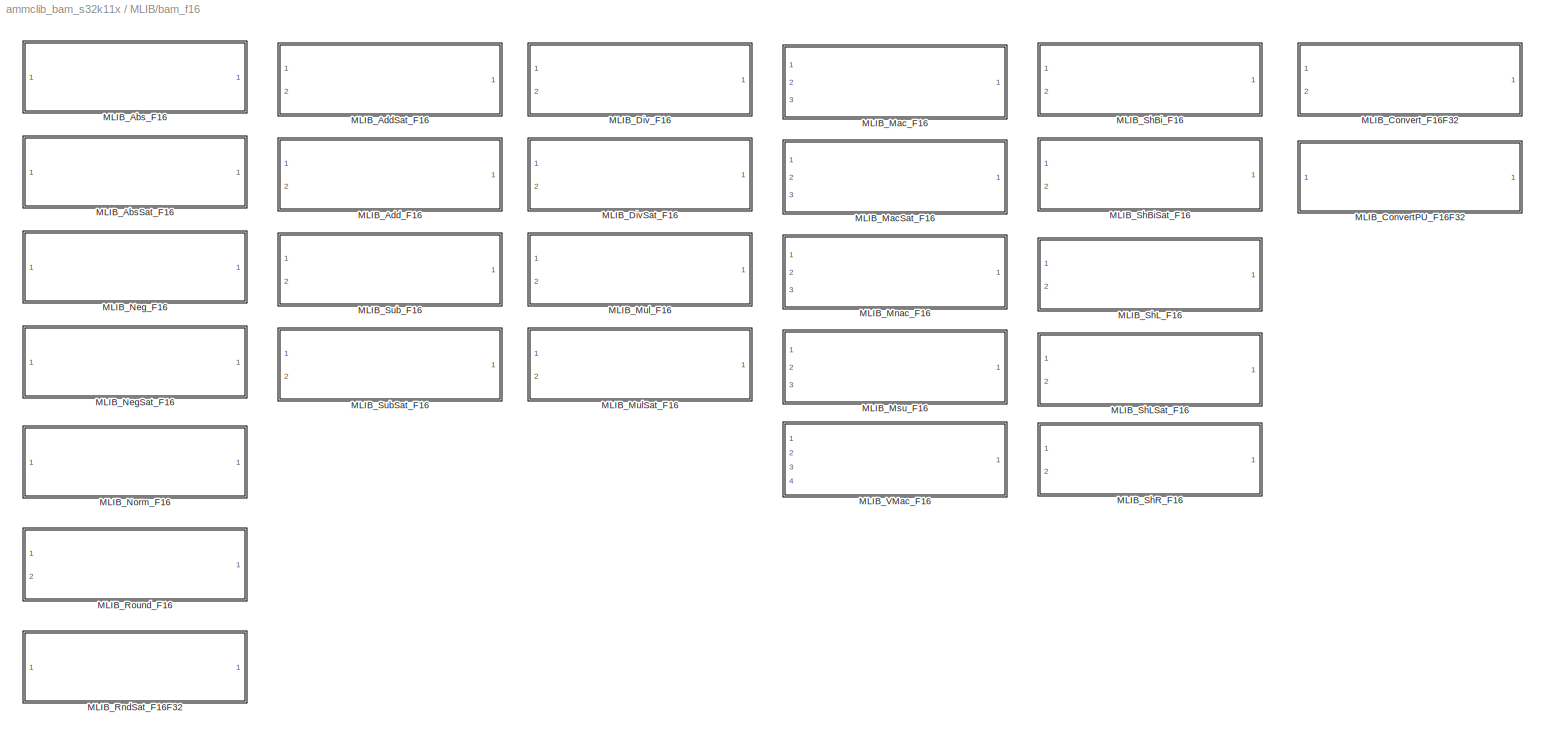
BLOCK [SubSystem] MLIB/bam_f16
  Ports = []
  RequestExecContextInheritance = off
  SID = 4920
  Variant = off
BLOCK [SubSystem] MLIB/bam_f16/MLIB_AbsSat_F16
  Ports = [1, 1]
  RequestExecContextInheritance = off
  SID = 7712
  Variant = off
BLOCK [S-Function] MLIB/bam_f16/MLIB_AbsSat_F16/MLIB_AbsSat_SF
  EnableBusSupport = off
  FunctionName = MLIB_AbsSat_SF_F16
  Ports = [1, 1]
  SFcnIsStateOwnerBlock = off
  SFunctionDeploymentMode = off
  SID = 7714
BLOCK [SubSystem] MLIB/bam_f16/MLIB_AbsSat_F16/<copyright redacted>
  Ports = []
  RequestExecContextInheritance = off
  SID = 7715
  Variant = off
BLOCK [SubSystem] MLIB/bam_f16/MLIB_AbsSat_F16/copyright2
  Ports = []
  RequestExecContextInheritance = off
  SID = 7716
  Variant = off
BLOCK [Inport] MLIB/bam_f16/MLIB_AbsSat_F16/f16In
  IconDisplay = Port number
  SID = 7713
BLOCK [Outport] MLIB/bam_f16/MLIB_AbsSat_F16/f16Out
  IconDisplay = Port number
  SID = 7718
BLOCK [SubSystem] MLIB/bam_f16/MLIB_AbsSat_F16/logo
  Ports = []
  RequestExecContextInheritance = off
  SID = 7717
  Variant = off
BLOCK [SubSystem] MLIB/bam_f16/MLIB_Abs_F16
  Ports = [1, 1]
  RequestExecContextInheritance = off
  SID = 7704
  Variant = off
BLOCK [S-Function] MLIB/bam_f16/MLIB_Abs_F16/MLIB_Abs_SF
  EnableBusSupport = off
  FunctionName = MLIB_Abs_SF_F16
  Ports = [1, 1]
  SFcnIsStateOwnerBlock = off
  SFunctionDeploymentMode = off
  SID = 7706
BLOCK [SubSystem] MLIB/bam_f16/MLIB_Abs_F16/<copyright redacted>
  Ports = []
  RequestExecContextInheritance = off
  SID = 7707
  Variant = off
BLOCK [SubSystem] MLIB/bam_f16/MLIB_Abs_F16/copyright2
  Ports = []
  RequestExecContextInheritance = off
  SID = 7708
  Variant = off
BLOCK [Inport] MLIB/bam_f16/MLIB_Abs_F16/f16In
  IconDisplay = Port number
  SID = 7705
BLOCK [Outport] MLIB/bam_f16/MLIB_Abs_F16/f16Out
  IconDisplay = Port number
  SID = 7710
BLOCK [SubSystem] MLIB/bam_f16/MLIB_Abs_F16/logo
  Ports = []
  RequestExecContextInheritance = off
  SID = 7709
  Variant = off
BLOCK [SubSystem] MLIB/bam_f16/MLIB_AddSat_F16
  Ports = [2, 1]
  RequestExecContextInheritance = off
  SID = 7729
  Variant = off
BLOCK [S-Function] MLIB/bam_f16/MLIB_AddSat_F16/MLIB_AddSat_SF
  EnableBusSupport = off
  FunctionName = MLIB_AddSat_SF_F16
  Ports = [2, 1]
  SFcnIsStateOwnerBlock = off
  SFunctionDeploymentMode = off
  SID = 7732
BLOCK [SubSystem] MLIB/bam_f16/MLIB_AddSat_F16/<copyright redacted>
  Ports = []
  RequestExecContextInheritance = off
  SID = 7733
  Variant = off
BLOCK [SubSystem] MLIB/bam_f16/MLIB_AddSat_F16/copyright2
  Ports = []
  RequestExecContextInheritance = off
  SID = 7734
  Variant = off
BLOCK [Inport] MLIB/bam_f16/MLIB_AddSat_F16/f16In1
  IconDisplay = Port number
  SID = 7730
BLOCK [Inport] MLIB/bam_f16/MLIB_AddSat_F16/f16In2
  IconDisplay = Port number
  Port = 2
  SID = 7731
BLOCK [Outport] MLIB/bam_f16/MLIB_AddSat_F16/f16Out
  IconDisplay = Port number
  SID = 7736
BLOCK [SubSystem] MLIB/bam_f16/MLIB_AddSat_F16/logo
  Ports = []
  RequestExecContextInheritance = off
  SID = 7735
  Variant = off
BLOCK [SubSystem] MLIB/bam_f16/MLIB_Add_F16
  Ports = [2, 1]
  RequestExecContextInheritance = off
  SID = 7720
  Variant = off
BLOCK [S-Function] MLIB/bam_f16/MLIB_Add_F16/MLIB_Add_SF
  EnableBusSupport = off
  FunctionName = MLIB_Add_SF_F16
  Ports = [2, 1]
  SFcnIsStateOwnerBlock = off
  SFunctionDeploymentMode = off
  SID = 7723
BLOCK [SubSystem] MLIB/bam_f16/MLIB_Add_F16/<copyright redacted>
  Ports = []
  RequestExecContextInheritance = off
  SID = 7724
  Variant = off
BLOCK [SubSystem] MLIB/bam_f16/MLIB_Add_F16/copyright2
  Ports = []
  RequestExecContextInheritance = off
  SID = 7725
  Variant = off
BLOCK [Inport] MLIB/bam_f16/MLIB_Add_F16/f16In1
  IconDisplay = Port number
  SID = 7721
BLOCK [Inport] MLIB/bam_f16/MLIB_Add_F16/f16In2
  IconDisplay = Port number
  Port = 2
  SID = 7722
BLOCK [Outport] MLIB/bam_f16/MLIB_Add_F16/f16Out
  IconDisplay = Port number
  SID = 7727
BLOCK [SubSystem] MLIB/bam_f16/MLIB_Add_F16/logo
  Ports = []
  RequestExecContextInheritance = off
  SID = 7726
  Variant = off
BLOCK [SubSystem] MLIB/bam_f16/MLIB_ConvertPU_F16F32
  Ports = [1, 1]
  RequestExecContextInheritance = off
  SID = 9645
  Variant = off
BLOCK [S-Function] MLIB/bam_f16/MLIB_ConvertPU_F16F32/MLIB_ConvertPU_SF
  EnableBusSupport = off
  FunctionName = MLIB_ConvertPU_SF_F16F32
  Ports = [1, 1]
  SFcnIsStateOwnerBlock = off
  SFunctionDeploymentMode = off
  SID = 9647
BLOCK [SubSystem] MLIB/bam_f16/MLIB_ConvertPU_F16F32/<copyright redacted>
  Ports = []
  RequestExecContextInheritance = off
  SID = 9648
  Variant = off
BLOCK [SubSystem] MLIB/bam_f16/MLIB_ConvertPU_F16F32/copyright2
  Ports = []
  RequestExecContextInheritance = off
  SID = 9649
  Variant = off
BLOCK [Outport] MLIB/bam_f16/MLIB_ConvertPU_F16F32/f16Out
  IconDisplay = Port number
  SID = 9651
BLOCK [Inport] MLIB/bam_f16/MLIB_ConvertPU_F16F32/f32In
  IconDisplay = Port number
  SID = 9646
BLOCK [SubSystem] MLIB/bam_f16/MLIB_ConvertPU_F16F32/logo
  Ports = []
  RequestExecContextInheritance = off
  SID = 9650
  Variant = off
BLOCK [SubSystem] MLIB/bam_f16/MLIB_Convert_F16F32
  Ports = [2, 1]
  RequestExecContextInheritance = off
  SID = 9628
  Variant = off
BLOCK [S-Function] MLIB/bam_f16/MLIB_Convert_F16F32/MLIB_Convert_SF
  EnableBusSupport = off
  FunctionName = MLIB_Convert_SF_F16F32
  Ports = [2, 1]
  SFcnIsStateOwnerBlock = off
  SFunctionDeploymentMode = off
  SID = 9631
BLOCK [SubSystem] MLIB/bam_f16/MLIB_Convert_F16F32/<copyright redacted>
  Ports = []
  RequestExecContextInheritance = off
  SID = 9632
  Variant = off
BLOCK [SubSystem] MLIB/bam_f16/MLIB_Convert_F16F32/copyright2
  Ports = []
  RequestExecContextInheritance = off
  SID = 9633
  Variant = off
BLOCK [Outport] MLIB/bam_f16/MLIB_Convert_F16F32/f16Out
  IconDisplay = Port number
  SID = 9635
BLOCK [Inport] MLIB/bam_f16/MLIB_Convert_F16F32/f32In1
  IconDisplay = Port number
  SID = 9629
BLOCK [Inport] MLIB/bam_f16/MLIB_Convert_F16F32/f32In2
  IconDisplay = Port number
  Port = 2
  SID = 9630
BLOCK [SubSystem] MLIB/bam_f16/MLIB_Convert_F16F32/logo
  Ports = []
  RequestExecContextInheritance = off
  SID = 9634
  Variant = off
BLOCK [SubSystem] MLIB/bam_f16/MLIB_DivSat_F16
  Ports = [2, 1]
  RequestExecContextInheritance = off
  SID = 7738
  Variant = off
BLOCK [S-Function] MLIB/bam_f16/MLIB_DivSat_F16/MLIB_DivSat_SF
  EnableBusSupport = off
  FunctionName = MLIB_DivSat_SF_F16
  Ports = [2, 1]
  SFcnIsStateOwnerBlock = off
  SFunctionDeploymentMode = off
  SID = 7741
BLOCK [SubSystem] MLIB/bam_f16/MLIB_DivSat_F16/<copyright redacted>
  Ports = []
  RequestExecContextInheritance = off
  SID = 7742
  Variant = off
BLOCK [SubSystem] MLIB/bam_f16/MLIB_DivSat_F16/copyright2
  Ports = []
  RequestExecContextInheritance = off
  SID = 7743
  Variant = off
BLOCK [Inport] MLIB/bam_f16/MLIB_DivSat_F16/f16In1
  IconDisplay = Port number
  SID = 7739
BLOCK [Inport] MLIB/bam_f16/MLIB_DivSat_F16/f16In2
  IconDisplay = Port number
  Port = 2
  SID = 7740
BLOCK [Outport] MLIB/bam_f16/MLIB_DivSat_F16/f16Out
  IconDisplay = Port number
  SID = 7745
BLOCK [SubSystem] MLIB/bam_f16/MLIB_DivSat_F16/logo
  Ports = []
  RequestExecContextInheritance = off
  SID = 7744
  Variant = off
BLOCK [SubSystem] MLIB/bam_f16/MLIB_Div_F16
  Ports = [2, 1]
  RequestExecContextInheritance = off
  SID = 7864
  Variant = off
BLOCK [S-Function] MLIB/bam_f16/MLIB_Div_F16/MLIB_Div_SF
  EnableBusSupport = off
  FunctionName = MLIB_Div_SF_F16
  Ports = [2, 1]
  SFcnIsStateOwnerBlock = off
  SFunctionDeploymentMode = off
  SID = 7867
BLOCK [SubSystem] MLIB/bam_f16/MLIB_Div_F16/<copyright redacted>
  Ports = []
  RequestExecContextInheritance = off
  SID = 7868
  Variant = off
BLOCK [SubSystem] MLIB/bam_f16/MLIB_Div_F16/copyright2
  Ports = []
  RequestExecContextInheritance = off
  SID = 7869
  Variant = off
BLOCK [Inport] MLIB/bam_f16/MLIB_Div_F16/f16In1
  IconDisplay = Port number
  SID = 7865
BLOCK [Inport] MLIB/bam_f16/MLIB_Div_F16/f16In2
  IconDisplay = Port number
  Port = 2
  SID = 7866
BLOCK [Outport] MLIB/bam_f16/MLIB_Div_F16/f16Out
  IconDisplay = Port number
  SID = 7871
BLOCK [SubSystem] MLIB/bam_f16/MLIB_Div_F16/logo
  Ports = []
  RequestExecContextInheritance = off
  SID = 7870
  Variant = off
BLOCK [SubSystem] MLIB/bam_f16/MLIB_MacSat_F16
  Ports = [3, 1]
  RequestExecContextInheritance = off
  SID = 7747
  Variant = off
BLOCK [S-Function] MLIB/bam_f16/MLIB_MacSat_F16/MLIB_MacSat_SF
  EnableBusSupport = off
  FunctionName = MLIB_MacSat_SF_F16
  Ports = [3, 1]
  SFcnIsStateOwnerBlock = off
  SFunctionDeploymentMode = off
  SID = 7751
BLOCK [SubSystem] MLIB/bam_f16/MLIB_MacSat_F16/<copyright redacted>
  Ports = []
  RequestExecContextInheritance = off
  SID = 7752
  Variant = off
BLOCK [SubSystem] MLIB/bam_f16/MLIB_MacSat_F16/copyright2
  Ports = []
  RequestExecContextInheritance = off
  SID = 7753
  Variant = off
BLOCK [Inport] MLIB/bam_f16/MLIB_MacSat_F16/f16In1
  IconDisplay = Port number
  SID = 7748
BLOCK [Inport] MLIB/bam_f16/MLIB_MacSat_F16/f16In2
  IconDisplay = Port number
  Port = 2
  SID = 7749
BLOCK [Inport] MLIB/bam_f16/MLIB_MacSat_F16/f16In3
  IconDisplay = Port number
  Port = 3
  SID = 7750
BLOCK [Outport] MLIB/bam_f16/MLIB_MacSat_F16/f16Out
  IconDisplay = Port number
  SID = 7755
BLOCK [SubSystem] MLIB/bam_f16/MLIB_MacSat_F16/logo
  Ports = []
  RequestExecContextInheritance = off
  SID = 7754
  Variant = off
BLOCK [SubSystem] MLIB/bam_f16/MLIB_Mac_F16
  Ports = [3, 1]
  RequestExecContextInheritance = off
  SID = 7757
  Variant = off
BLOCK [S-Function] MLIB/bam_f16/MLIB_Mac_F16/MLIB_Mac_SF
  EnableBusSupport = off
  FunctionName = MLIB_Mac_SF_F16
  Ports = [3, 1]
  SFcnIsStateOwnerBlock = off
  SFunctionDeploymentMode = off
  SID = 7761
BLOCK [SubSystem] MLIB/bam_f16/MLIB_Mac_F16/<copyright redacted>
  Ports = []
  RequestExecContextInheritance = off
  SID = 7762
  Variant = off
BLOCK [SubSystem] MLIB/bam_f16/MLIB_Mac_F16/copyright2
  Ports = []
  RequestExecContextInheritance = off
  SID = 7763
  Variant = off
BLOCK [Inport] MLIB/bam_f16/MLIB_Mac_F16/f16In1
  IconDisplay = Port number
  SID = 7758
BLOCK [Inport] MLIB/bam_f16/MLIB_Mac_F16/f16In2
  IconDisplay = Port number
  Port = 2
  SID = 7759
BLOCK [Inport] MLIB/bam_f16/MLIB_Mac_F16/f16In3
  IconDisplay = Port number
  Port = 3
  SID = 7760
BLOCK [Outport] MLIB/bam_f16/MLIB_Mac_F16/f16Out
  IconDisplay = Port number
  SID = 7765
BLOCK [SubSystem] MLIB/bam_f16/MLIB_Mac_F16/logo
  Ports = []
  RequestExecContextInheritance = off
  SID = 7764
  Variant = off
BLOCK [SubSystem] MLIB/bam_f16/MLIB_Mnac_F16
  Ports = [3, 1]
  RequestExecContextInheritance = off
  SID = 7873
  Variant = off
BLOCK [S-Function] MLIB/bam_f16/MLIB_Mnac_F16/MLIB_Mnac_SF
  EnableBusSupport = off
  FunctionName = MLIB_Mnac_SF_F16
  Ports = [3, 1]
  SFcnIsStateOwnerBlock = off
  SFunctionDeploymentMode = off
  SID = 7877
BLOCK [SubSystem] MLIB/bam_f16/MLIB_Mnac_F16/<copyright redacted>
  Ports = []
  RequestExecContextInheritance = off
  SID = 7878
  Variant = off
BLOCK [SubSystem] MLIB/bam_f16/MLIB_Mnac_F16/copyright2
  Ports = []
  RequestExecContextInheritance = off
  SID = 7879
  Variant = off
BLOCK [Inport] MLIB/bam_f16/MLIB_Mnac_F16/f16In1
  IconDisplay = Port number
  SID = 7874
BLOCK [Inport] MLIB/bam_f16/MLIB_Mnac_F16/f16In2
  IconDisplay = Port number
  Port = 2
  SID = 7875
BLOCK [Inport] MLIB/bam_f16/MLIB_Mnac_F16/f16In3
  IconDisplay = Port number
  Port = 3
  SID = 7876
BLOCK [Outport] MLIB/bam_f16/MLIB_Mnac_F16/f16Out
  IconDisplay = Port number
  SID = 7881
BLOCK [SubSystem] MLIB/bam_f16/MLIB_Mnac_F16/logo
  Ports = []
  RequestExecContextInheritance = off
  SID = 7880
  Variant = off
BLOCK [SubSystem] MLIB/bam_f16/MLIB_Msu_F16
  Ports = [3, 1]
  RequestExecContextInheritance = off
  SID = 7845
  Variant = off
BLOCK [S-Function] MLIB/bam_f16/MLIB_Msu_F16/MLIB_Msu_SF
  EnableBusSupport = off
  FunctionName = MLIB_Msu_SF_F16
  Ports = [3, 1]
  SFcnIsStateOwnerBlock = off
  SFunctionDeploymentMode = off
  SID = 7849
BLOCK [SubSystem] MLIB/bam_f16/MLIB_Msu_F16/<copyright redacted>
  Ports = []
  RequestExecContextInheritance = off
  SID = 7850
  Variant = off
BLOCK [SubSystem] MLIB/bam_f16/MLIB_Msu_F16/copyright2
  Ports = []
  RequestExecContextInheritance = off
  SID = 7851
  Variant = off
BLOCK [Inport] MLIB/bam_f16/MLIB_Msu_F16/f16In1
  IconDisplay = Port number
  SID = 7846
BLOCK [Inport] MLIB/bam_f16/MLIB_Msu_F16/f16In2
  IconDisplay = Port number
  Port = 2
  SID = 7847
BLOCK [Inport] MLIB/bam_f16/MLIB_Msu_F16/f16In3
  IconDisplay = Port number
  Port = 3
  SID = 7848
BLOCK [Outport] MLIB/bam_f16/MLIB_Msu_F16/f16Out
  IconDisplay = Port number
  SID = 7853
BLOCK [SubSystem] MLIB/bam_f16/MLIB_Msu_F16/logo
  Ports = []
  RequestExecContextInheritance = off
  SID = 7852
  Variant = off
BLOCK [SubSystem] MLIB/bam_f16/MLIB_MulSat_F16
  Ports = [2, 1]
  RequestExecContextInheritance = off
  SID = 7767
  Variant = off
BLOCK [S-Function] MLIB/bam_f16/MLIB_MulSat_F16/MLIB_MulSat_SF
  EnableBusSupport = off
  FunctionName = MLIB_MulSat_SF_F16
  Ports = [2, 1]
  SFcnIsStateOwnerBlock = off
  SFunctionDeploymentMode = off
  SID = 7770
BLOCK [SubSystem] MLIB/bam_f16/MLIB_MulSat_F16/<copyright redacted>
  Ports = []
  RequestExecContextInheritance = off
  SID = 7771
  Variant = off
BLOCK [SubSystem] MLIB/bam_f16/MLIB_MulSat_F16/copyright2
  Ports = []
  RequestExecContextInheritance = off
  SID = 7772
  Variant = off
BLOCK [Inport] MLIB/bam_f16/MLIB_MulSat_F16/f16In1
  IconDisplay = Port number
  SID = 7768
BLOCK [Inport] MLIB/bam_f16/MLIB_MulSat_F16/f16In2
  IconDisplay = Port number
  Port = 2
  SID = 7769
BLOCK [Outport] MLIB/bam_f16/MLIB_MulSat_F16/f16Out
  IconDisplay = Port number
  SID = 7774
BLOCK [SubSystem] MLIB/bam_f16/MLIB_MulSat_F16/logo
  Ports = []
  RequestExecContextInheritance = off
  SID = 7773
  Variant = off
BLOCK [SubSystem] MLIB/bam_f16/MLIB_Mul_F16
  Ports = [2, 1]
  RequestExecContextInheritance = off
  SID = 7776
  Variant = off
BLOCK [S-Function] MLIB/bam_f16/MLIB_Mul_F16/MLIB_Mul_SF
  EnableBusSupport = off
  FunctionName = MLIB_Mul_SF_F16
  Ports = [2, 1]
  SFcnIsStateOwnerBlock = off
  SFunctionDeploymentMode = off
  SID = 7779
BLOCK [SubSystem] MLIB/bam_f16/MLIB_Mul_F16/<copyright redacted>
  Ports = []
  RequestExecContextInheritance = off
  SID = 7780
  Variant = off
BLOCK [SubSystem] MLIB/bam_f16/MLIB_Mul_F16/copyright2
  Ports = []
  RequestExecContextInheritance = off
  SID = 7781
  Variant = off
BLOCK [Inport] MLIB/bam_f16/MLIB_Mul_F16/f16In1
  IconDisplay = Port number
  SID = 7777
BLOCK [Inport] MLIB/bam_f16/MLIB_Mul_F16/f16In2
  IconDisplay = Port number
  Port = 2
  SID = 7778
BLOCK [Outport] MLIB/bam_f16/MLIB_Mul_F16/f16Out
  IconDisplay = Port number
  SID = 7783
BLOCK [SubSystem] MLIB/bam_f16/MLIB_Mul_F16/logo
  Ports = []
  RequestExecContextInheritance = off
  SID = 7782
  Variant = off
BLOCK [SubSystem] MLIB/bam_f16/MLIB_NegSat_F16
  Ports = [1, 1]
  RequestExecContextInheritance = off
  SID = 7829
  Variant = off
BLOCK [S-Function] MLIB/bam_f16/MLIB_NegSat_F16/MLIB_NegSat_SF
  EnableBusSupport = off
  FunctionName = MLIB_NegSat_SF_F16
  Ports = [1, 1]
  SFcnIsStateOwnerBlock = off
  SFunctionDeploymentMode = off
  SID = 7831
BLOCK [SubSystem] MLIB/bam_f16/MLIB_NegSat_F16/<copyright redacted>
  Ports = []
  RequestExecContextInheritance = off
  SID = 7832
  Variant = off
BLOCK [SubSystem] MLIB/bam_f16/MLIB_NegSat_F16/copyright2
  Ports = []
  RequestExecContextInheritance = off
  SID = 7833
  Variant = off
BLOCK [Inport] MLIB/bam_f16/MLIB_NegSat_F16/f16In
  IconDisplay = Port number
  SID = 7830
BLOCK [Outport] MLIB/bam_f16/MLIB_NegSat_F16/f16Out
  IconDisplay = Port number
  SID = 7835
BLOCK [SubSystem] MLIB/bam_f16/MLIB_NegSat_F16/logo
  Ports = []
  RequestExecContextInheritance = off
  SID = 7834
  Variant = off
BLOCK [SubSystem] MLIB/bam_f16/MLIB_Neg_F16
  Ports = [1, 1]
  RequestExecContextInheritance = off
  SID = 7837
  Variant = off
BLOCK [S-Function] MLIB/bam_f16/MLIB_Neg_F16/MLIB_Neg_SF
  EnableBusSupport = off
  FunctionName = MLIB_Neg_SF_F16
  Ports = [1, 1]
  SFcnIsStateOwnerBlock = off
  SFunctionDeploymentMode = off
  SID = 7839
BLOCK [SubSystem] MLIB/bam_f16/MLIB_Neg_F16/<copyright redacted>
  Ports = []
  RequestExecContextInheritance = off
  SID = 7840
  Variant = off
BLOCK [SubSystem] MLIB/bam_f16/MLIB_Neg_F16/copyright2
  Ports = []
  RequestExecContextInheritance = off
  SID = 7841
  Variant = off
BLOCK [Inport] MLIB/bam_f16/MLIB_Neg_F16/f16In
  IconDisplay = Port number
  SID = 7838
BLOCK [Outport] MLIB/bam_f16/MLIB_Neg_F16/f16Out
  IconDisplay = Port number
  SID = 7843
BLOCK [SubSystem] MLIB/bam_f16/MLIB_Neg_F16/logo
  Ports = []
  RequestExecContextInheritance = off
  SID = 7842
  Variant = off
BLOCK [SubSystem] MLIB/bam_f16/MLIB_Norm_F16
  Ports = [1, 1]
  RequestExecContextInheritance = off
  SID = 7821
  Variant = off
BLOCK [S-Function] MLIB/bam_f16/MLIB_Norm_F16/MLIB_Norm_SF_F16
  EnableBusSupport = off
  FunctionName = MLIB_Norm_SF_F16
  Ports = [1, 1]
  SFcnIsStateOwnerBlock = off
  SFunctionDeploymentMode = off
  SID = 7823
BLOCK [SubSystem] MLIB/bam_f16/MLIB_Norm_F16/<copyright redacted>
  Ports = []
  RequestExecContextInheritance = off
  SID = 7824
  Variant = off
BLOCK [SubSystem] MLIB/bam_f16/MLIB_Norm_F16/copyright2
  Ports = []
  RequestExecContextInheritance = off
  SID = 7825
  Variant = off
BLOCK [Inport] MLIB/bam_f16/MLIB_Norm_F16/f16In
  IconDisplay = Port number
  SID = 7822
BLOCK [SubSystem] MLIB/bam_f16/MLIB_Norm_F16/logo
  Ports = []
  RequestExecContextInheritance = off
  SID = 7826
  Variant = off
BLOCK [Outport] MLIB/bam_f16/MLIB_Norm_F16/u16Out
  IconDisplay = Port number
  SID = 7827
BLOCK [SubSystem] MLIB/bam_f16/MLIB_RndSat_F16F32
  Ports = [1, 1]
  RequestExecContextInheritance = off
  SID = 9611
  Variant = off
BLOCK [S-Function] MLIB/bam_f16/MLIB_RndSat_F16F32/MLIB_RndSat_SF
  EnableBusSupport = off
  FunctionName = MLIB_RndSat_SF_F16F32
  Ports = [1, 1]
  SFcnIsStateOwnerBlock = off
  SFunctionDeploymentMode = off
  SID = 9613
BLOCK [SubSystem] MLIB/bam_f16/MLIB_RndSat_F16F32/<copyright redacted>
  Ports = []
  RequestExecContextInheritance = off
  SID = 9614
  Variant = off
BLOCK [SubSystem] MLIB/bam_f16/MLIB_RndSat_F16F32/copyright2
  Ports = []
  RequestExecContextInheritance = off
  SID = 9615
  Variant = off
BLOCK [Outport] MLIB/bam_f16/MLIB_RndSat_F16F32/f16Out
  IconDisplay = Port number
  SID = 9617
BLOCK [Inport] MLIB/bam_f16/MLIB_RndSat_F16F32/f32In
  IconDisplay = Port number
  SID = 9612
BLOCK [SubSystem] MLIB/bam_f16/MLIB_RndSat_F16F32/logo
  Ports = []
  RequestExecContextInheritance = off
  SID = 9616
  Variant = off
BLOCK [SubSystem] MLIB/bam_f16/MLIB_Round_F16
  Ports = [2, 1]
  RequestExecContextInheritance = off
  SID = 7812
  Variant = off
BLOCK [S-Function] MLIB/bam_f16/MLIB_Round_F16/MLIB_Round_SF_F16
  EnableBusSupport = off
  FunctionName = MLIB_Round_SF_F16
  Ports = [2, 1]
  SFcnIsStateOwnerBlock = off
  SFunctionDeploymentMode = off
  SID = 7815
BLOCK [SubSystem] MLIB/bam_f16/MLIB_Round_F16/<copyright redacted>
  Ports = []
  RequestExecContextInheritance = off
  SID = 7816
  Variant = off
BLOCK [SubSystem] MLIB/bam_f16/MLIB_Round_F16/copyright2
  Ports = []
  RequestExecContextInheritance = off
  SID = 7817
  Variant = off
BLOCK [Inport] MLIB/bam_f16/MLIB_Round_F16/f16In1
  IconDisplay = Port number
  SID = 7813
BLOCK [Outport] MLIB/bam_f16/MLIB_Round_F16/f16Out
  IconDisplay = Port number
  SID = 7819
BLOCK [SubSystem] MLIB/bam_f16/MLIB_Round_F16/logo
  Ports = []
  RequestExecContextInheritance = off
  SID = 7818
  Variant = off
BLOCK [Inport] MLIB/bam_f16/MLIB_Round_F16/u16In2
  IconDisplay = Port number
  Port = 2
  SID = 7814
BLOCK [SubSystem] MLIB/bam_f16/MLIB_ShBiSat_F16
  Ports = [2, 1]
  RequestExecContextInheritance = off
  SID = 7785
  Variant = off
BLOCK [S-Function] MLIB/bam_f16/MLIB_ShBiSat_F16/MLIB_ShBiSat_SF_F16
  EnableBusSupport = off
  FunctionName = MLIB_ShBiSat_SF_F16
  Ports = [2, 1]
  SFcnIsStateOwnerBlock = off
  SFunctionDeploymentMode = off
  SID = 7788
BLOCK [SubSystem] MLIB/bam_f16/MLIB_ShBiSat_F16/<copyright redacted>
  Ports = []
  RequestExecContextInheritance = off
  SID = 7789
  Variant = off
BLOCK [SubSystem] MLIB/bam_f16/MLIB_ShBiSat_F16/copyright2
  Ports = []
  RequestExecContextInheritance = off
  SID = 7790
  Variant = off
BLOCK [Inport] MLIB/bam_f16/MLIB_ShBiSat_F16/f16In1
  IconDisplay = Port number
  SID = 7786
BLOCK [Outport] MLIB/bam_f16/MLIB_ShBiSat_F16/f16Out
  IconDisplay = Port number
  SID = 7792
BLOCK [SubSystem] MLIB/bam_f16/MLIB_ShBiSat_F16/logo
  Ports = []
  RequestExecContextInheritance = off
  SID = 7791
  Variant = off
BLOCK [Inport] MLIB/bam_f16/MLIB_ShBiSat_F16/s16In2
  IconDisplay = Port number
  Port = 2
  SID = 7787
BLOCK [SubSystem] MLIB/bam_f16/MLIB_ShBi_F16
  Ports = [2, 1]
  RequestExecContextInheritance = off
  SID = 7803
  Variant = off
BLOCK [S-Function] MLIB/bam_f16/MLIB_ShBi_F16/MLIB_ShBi_SF_F16
  EnableBusSupport = off
  FunctionName = MLIB_ShBi_SF_F16
  Ports = [2, 1]
  SFcnIsStateOwnerBlock = off
  SFunctionDeploymentMode = off
  SID = 7806
BLOCK [SubSystem] MLIB/bam_f16/MLIB_ShBi_F16/<copyright redacted>
  Ports = []
  RequestExecContextInheritance = off
  SID = 7807
  Variant = off
BLOCK [SubSystem] MLIB/bam_f16/MLIB_ShBi_F16/copyright2
  Ports = []
  RequestExecContextInheritance = off
  SID = 7808
  Variant = off
BLOCK [Inport] MLIB/bam_f16/MLIB_ShBi_F16/f16In1
  IconDisplay = Port number
  SID = 7804
BLOCK [Outport] MLIB/bam_f16/MLIB_ShBi_F16/f16Out
  IconDisplay = Port number
  SID = 7810
BLOCK [SubSystem] MLIB/bam_f16/MLIB_ShBi_F16/logo
  Ports = []
  RequestExecContextInheritance = off
  SID = 7809
  Variant = off
BLOCK [Inport] MLIB/bam_f16/MLIB_ShBi_F16/s16In2
  IconDisplay = Port number
  Port = 2
  SID = 7805
BLOCK [SubSystem] MLIB/bam_f16/MLIB_ShLSat_F16
  Ports = [2, 1]
  RequestExecContextInheritance = off
  SID = 7931
  Variant = off
BLOCK [S-Function] MLIB/bam_f16/MLIB_ShLSat_F16/MLIB_ShLSat_SF
  EnableBusSupport = off
  FunctionName = MLIB_ShLSat_SF_F16
  Ports = [2, 1]
  SFcnIsStateOwnerBlock = off
  SFunctionDeploymentMode = off
  SID = 7934
BLOCK [SubSystem] MLIB/bam_f16/MLIB_ShLSat_F16/<copyright redacted>
  Ports = []
  RequestExecContextInheritance = off
  SID = 7935
  Variant = off
BLOCK [SubSystem] MLIB/bam_f16/MLIB_ShLSat_F16/copyright2
  Ports = []
  RequestExecContextInheritance = off
  SID = 7936
  Variant = off
BLOCK [Inport] MLIB/bam_f16/MLIB_ShLSat_F16/f16In1
  IconDisplay = Port number
  SID = 7932
BLOCK [Outport] MLIB/bam_f16/MLIB_ShLSat_F16/f16Out
  IconDisplay = Port number
  SID = 7938
BLOCK [SubSystem] MLIB/bam_f16/MLIB_ShLSat_F16/logo
  Ports = []
  RequestExecContextInheritance = off
  SID = 7937
  Variant = off
BLOCK [Inport] MLIB/bam_f16/MLIB_ShLSat_F16/u16In2
  IconDisplay = Port number
  Port = 2
  SID = 7933
BLOCK [SubSystem] MLIB/bam_f16/MLIB_ShL_F16
  Ports = [2, 1]
  RequestExecContextInheritance = off
  SID = 7794
  Variant = off
BLOCK [S-Function] MLIB/bam_f16/MLIB_ShL_F16/MLIB_ShL_SF_F16
  EnableBusSupport = off
  FunctionName = MLIB_ShL_SF_F16
  Ports = [2, 1]
  SFcnIsStateOwnerBlock = off
  SFunctionDeploymentMode = off
  SID = 7797
BLOCK [SubSystem] MLIB/bam_f16/MLIB_ShL_F16/<copyright redacted>
  Ports = []
  RequestExecContextInheritance = off
  SID = 7798
  Variant = off
BLOCK [SubSystem] MLIB/bam_f16/MLIB_ShL_F16/copyright2
  Ports = []
  RequestExecContextInheritance = off
  SID = 7799
  Variant = off
BLOCK [Inport] MLIB/bam_f16/MLIB_ShL_F16/f16In1
  IconDisplay = Port number
  SID = 7795
BLOCK [Outport] MLIB/bam_f16/MLIB_ShL_F16/f16Out
  IconDisplay = Port number
  SID = 7801
BLOCK [SubSystem] MLIB/bam_f16/MLIB_ShL_F16/logo
  Ports = []
  RequestExecContextInheritance = off
  SID = 7800
  Variant = off
BLOCK [Inport] MLIB/bam_f16/MLIB_ShL_F16/u16In2
  IconDisplay = Port number
  Port = 2
  SID = 7796
BLOCK [SubSystem] MLIB/bam_f16/MLIB_ShR_F16
  Ports = [2, 1]
  RequestExecContextInheritance = off
  SID = 7894
  Variant = off
BLOCK [S-Function] MLIB/bam_f16/MLIB_ShR_F16/MLIB_ShR_SF
  EnableBusSupport = off
  FunctionName = MLIB_ShR_SF_F16
  Ports = [2, 1]
  SFcnIsStateOwnerBlock = off
  SFunctionDeploymentMode = off
  SID = 7897
BLOCK [SubSystem] MLIB/bam_f16/MLIB_ShR_F16/<copyright redacted>
  Ports = []
  RequestExecContextInheritance = off
  SID = 7898
  Variant = off
BLOCK [SubSystem] MLIB/bam_f16/MLIB_ShR_F16/copyright2
  Ports = []
  RequestExecContextInheritance = off
  SID = 7899
  Variant = off
BLOCK [Inport] MLIB/bam_f16/MLIB_ShR_F16/f16In1
  IconDisplay = Port number
  SID = 7895
BLOCK [Outport] MLIB/bam_f16/MLIB_ShR_F16/f16Out
  IconDisplay = Port number
  SID = 7901
BLOCK [SubSystem] MLIB/bam_f16/MLIB_ShR_F16/logo
  Ports = []
  RequestExecContextInheritance = off
  SID = 7900
  Variant = off
BLOCK [Inport] MLIB/bam_f16/MLIB_ShR_F16/u16In2
  IconDisplay = Port number
  Port = 2
  SID = 7896
BLOCK [SubSystem] MLIB/bam_f16/MLIB_SubSat_F16
  Ports = [2, 1]
  RequestExecContextInheritance = off
  SID = 7903
  Variant = off
BLOCK [S-Function] MLIB/bam_f16/MLIB_SubSat_F16/MLIB_SubSat_SF
  EnableBusSupport = off
  FunctionName = MLIB_SubSat_SF_F16
  Ports = [2, 1]
  SFcnIsStateOwnerBlock = off
  SFunctionDeploymentMode = off
  SID = 7906
BLOCK [SubSystem] MLIB/bam_f16/MLIB_SubSat_F16/<copyright redacted>
  Ports = []
  RequestExecContextInheritance = off
  SID = 7907
  Variant = off
BLOCK [SubSystem] MLIB/bam_f16/MLIB_SubSat_F16/copyright2
  Ports = []
  RequestExecContextInheritance = off
  SID = 7908
  Variant = off
BLOCK [Inport] MLIB/bam_f16/MLIB_SubSat_F16/f16In1
  IconDisplay = Port number
  SID = 7904
BLOCK [Inport] MLIB/bam_f16/MLIB_SubSat_F16/f16In2
  IconDisplay = Port number
  Port = 2
  SID = 7905
BLOCK [Outport] MLIB/bam_f16/MLIB_SubSat_F16/f16Out
  IconDisplay = Port number
  SID = 7910
BLOCK [SubSystem] MLIB/bam_f16/MLIB_SubSat_F16/logo
  Ports = []
  RequestExecContextInheritance = off
  SID = 7909
  Variant = off
BLOCK [SubSystem] MLIB/bam_f16/MLIB_Sub_F16
  Ports = [2, 1]
  RequestExecContextInheritance = off
  SID = 7912
  Variant = off
BLOCK [S-Function] MLIB/bam_f16/MLIB_Sub_F16/MLIB_Sub_SF
  EnableBusSupport = off
  FunctionName = MLIB_Sub_SF_F16
  Ports = [2, 1]
  SFcnIsStateOwnerBlock = off
  SFunctionDeploymentMode = off
  SID = 7915
BLOCK [SubSystem] MLIB/bam_f16/MLIB_Sub_F16/<copyright redacted>
  Ports = []
  RequestExecContextInheritance = off
  SID = 7916
  Variant = off
BLOCK [SubSystem] MLIB/bam_f16/MLIB_Sub_F16/copyright2
  Ports = []
  RequestExecContextInheritance = off
  SID = 7917
  Variant = off
BLOCK [Inport] MLIB/bam_f16/MLIB_Sub_F16/f16In1
  IconDisplay = Port number
  SID = 7913
BLOCK [Inport] MLIB/bam_f16/MLIB_Sub_F16/f16In2
  IconDisplay = Port number
  Port = 2
  SID = 7914
BLOCK [Outport] MLIB/bam_f16/MLIB_Sub_F16/f16Out
  IconDisplay = Port number
  SID = 7919
BLOCK [SubSystem] MLIB/bam_f16/MLIB_Sub_F16/logo
  Ports = []
  RequestExecContextInheritance = off
  SID = 7918
  Variant = off
BLOCK [SubSystem] MLIB/bam_f16/MLIB_VMac_F16
  Ports = [4, 1]
  RequestExecContextInheritance = off
  SID = 7883
  Variant = off
BLOCK [S-Function] MLIB/bam_f16/MLIB_VMac_F16/MLIB_VMac_SF
  EnableBusSupport = off
  FunctionName = MLIB_VMac_SF_F16
  Ports = [4, 1]
  SFcnIsStateOwnerBlock = off
  SFunctionDeploymentMode = off
  SID = 7888
BLOCK [SubSystem] MLIB/bam_f16/MLIB_VMac_F16/<copyright redacted>
  Ports = []
  RequestExecContextInheritance = off
  SID = 7889
  Variant = off
BLOCK [SubSystem] MLIB/bam_f16/MLIB_VMac_F16/copyright2
  Ports = []
  RequestExecContextInheritance = off
  SID = 7890
  Variant = off
BLOCK [Inport] MLIB/bam_f16/MLIB_VMac_F16/f16In1
  IconDisplay = Port number
  SID = 7884
BLOCK [Inport] MLIB/bam_f16/MLIB_VMac_F16/f16In2
  IconDisplay = Port number
  Port = 2
  SID = 7885
BLOCK [Inport] MLIB/bam_f16/MLIB_VMac_F16/f16In3
  IconDisplay = Port number
  Port = 3
  SID = 7886
BLOCK [Inport] MLIB/bam_f16/MLIB_VMac_F16/f16In4
  IconDisplay = Port number
  Port = 4
  SID = 7887
BLOCK [Outport] MLIB/bam_f16/MLIB_VMac_F16/f16Out
  IconDisplay = Port number
  SID = 7892
BLOCK [SubSystem] MLIB/bam_f16/MLIB_VMac_F16/logo
  Ports = []
  RequestExecContextInheritance = off
  SID = 7891
  Variant = off
BLOCK [SubSystem] MLIB/bam_f32
  Ports = []
  RequestExecContextInheritance = off
  SID = 4918
  Variant = off
BLOCK [SubSystem] MLIB/bam_f32/MLIB_AbsSat_F32
  Ports = [1, 1]
  RequestExecContextInheritance = off
  SID = 7959
  Variant = off
BLOCK [S-Function] MLIB/bam_f32/MLIB_AbsSat_F32/MLIB_AbsSat_SF
  EnableBusSupport = off
  FunctionName = MLIB_AbsSat_SF_F32
  Ports = [1, 1]
  SFcnIsStateOwnerBlock = off
  SFunctionDeploymentMode = off
  SID = 7961
BLOCK [SubSystem] MLIB/bam_f32/MLIB_AbsSat_F32/<copyright redacted>
  Ports = []
  RequestExecContextInheritance = off
  SID = 7962
  Variant = off
BLOCK [SubSystem] MLIB/bam_f32/MLIB_AbsSat_F32/copyright2
  Ports = []
  RequestExecContextInheritance = off
  SID = 7963
  Variant = off
BLOCK [Inport] MLIB/bam_f32/MLIB_AbsSat_F32/f32In
  IconDisplay = Port number
  SID = 7960
BLOCK [Outport] MLIB/bam_f32/MLIB_AbsSat_F32/f32Out
  IconDisplay = Port number
  SID = 7965
BLOCK [SubSystem] MLIB/bam_f32/MLIB_AbsSat_F32/logo
  Ports = []
  RequestExecContextInheritance = off
  SID = 7964
  Variant = off
BLOCK [SubSystem] MLIB/bam_f32/MLIB_Abs_F32
  Ports = [1, 1]
  RequestExecContextInheritance = off
  SID = 7951
  Variant = off
BLOCK [S-Function] MLIB/bam_f32/MLIB_Abs_F32/MLIB_Abs_SF
  EnableBusSupport = off
  FunctionName = MLIB_Abs_SF_F32
  Ports = [1, 1]
  SFcnIsStateOwnerBlock = off
  SFunctionDeploymentMode = off
  SID = 7953
BLOCK [SubSystem] MLIB/bam_f32/MLIB_Abs_F32/<copyright redacted>
  Ports = []
  RequestExecContextInheritance = off
  SID = 7954
  Variant = off
BLOCK [SubSystem] MLIB/bam_f32/MLIB_Abs_F32/copyright2
  Ports = []
  RequestExecContextInheritance = off
  SID = 7955
  Variant = off
BLOCK [Inport] MLIB/bam_f32/MLIB_Abs_F32/f32In
  IconDisplay = Port number
  SID = 7952
BLOCK [Outport] MLIB/bam_f32/MLIB_Abs_F32/f32Out
  IconDisplay = Port number
  SID = 7957
BLOCK [SubSystem] MLIB/bam_f32/MLIB_Abs_F32/logo
  Ports = []
  RequestExecContextInheritance = off
  SID = 7956
  Variant = off
BLOCK [SubSystem] MLIB/bam_f32/MLIB_AddSat_F32
  Ports = [2, 1]
  RequestExecContextInheritance = off
  SID = 7976
  Variant = off
BLOCK [S-Function] MLIB/bam_f32/MLIB_AddSat_F32/MLIB_AddSat_SF
  EnableBusSupport = off
  FunctionName = MLIB_AddSat_SF_F32
  Ports = [2, 1]
  SFcnIsStateOwnerBlock = off
  SFunctionDeploymentMode = off
  SID = 7979
BLOCK [SubSystem] MLIB/bam_f32/MLIB_AddSat_F32/<copyright redacted>
  Ports = []
  RequestExecContextInheritance = off
  SID = 7980
  Variant = off
BLOCK [SubSystem] MLIB/bam_f32/MLIB_AddSat_F32/copyright2
  Ports = []
  RequestExecContextInheritance = off
  SID = 7981
  Variant = off
BLOCK [Inport] MLIB/bam_f32/MLIB_AddSat_F32/f32In1
  IconDisplay = Port number
  SID = 7977
BLOCK [Inport] MLIB/bam_f32/MLIB_AddSat_F32/f32In2
  IconDisplay = Port number
  Port = 2
  SID = 7978
BLOCK [Outport] MLIB/bam_f32/MLIB_AddSat_F32/f32Out
  IconDisplay = Port number
  SID = 7983
BLOCK [SubSystem] MLIB/bam_f32/MLIB_AddSat_F32/logo
  Ports = []
  RequestExecContextInheritance = off
  SID = 7982
  Variant = off
BLOCK [SubSystem] MLIB/bam_f32/MLIB_Add_F32
  Ports = [2, 1]
  RequestExecContextInheritance = off
  SID = 7985
  Variant = off
BLOCK [S-Function] MLIB/bam_f32/MLIB_Add_F32/MLIB_Add_SF
  EnableBusSupport = off
  FunctionName = MLIB_Add_SF_F32
  Ports = [2, 1]
  SFcnIsStateOwnerBlock = off
  SFunctionDeploymentMode = off
  SID = 7988
BLOCK [SubSystem] MLIB/bam_f32/MLIB_Add_F32/<copyright redacted>
  Ports = []
  RequestExecContextInheritance = off
  SID = 7989
  Variant = off
BLOCK [SubSystem] MLIB/bam_f32/MLIB_Add_F32/copyright2
  Ports = []
  RequestExecContextInheritance = off
  SID = 7990
  Variant = off
BLOCK [Inport] MLIB/bam_f32/MLIB_Add_F32/f32In1
  IconDisplay = Port number
  SID = 7986
BLOCK [Inport] MLIB/bam_f32/MLIB_Add_F32/f32In2
  IconDisplay = Port number
  Port = 2
  SID = 7987
BLOCK [Outport] MLIB/bam_f32/MLIB_Add_F32/f32Out
  IconDisplay = Port number
  SID = 7992
BLOCK [SubSystem] MLIB/bam_f32/MLIB_Add_F32/logo
  Ports = []
  RequestExecContextInheritance = off
  SID = 7991
  Variant = off
BLOCK [SubSystem] MLIB/bam_f32/MLIB_ConvertPU_F32F16
  Ports = [1, 1]
  RequestExecContextInheritance = off
  SID = 9671
  Variant = off
BLOCK [S-Function] MLIB/bam_f32/MLIB_ConvertPU_F32F16/MLIB_ConvertPU_SF
  EnableBusSupport = off
  FunctionName = MLIB_ConvertPU_SF_F32F16
  Ports = [1, 1]
  SFcnIsStateOwnerBlock = off
  SFunctionDeploymentMode = off
  SID = 9673
BLOCK [SubSystem] MLIB/bam_f32/MLIB_ConvertPU_F32F16/<copyright redacted>
  Ports = []
  RequestExecContextInheritance = off
  SID = 9674
  Variant = off
BLOCK [SubSystem] MLIB/bam_f32/MLIB_ConvertPU_F32F16/copyright2
  Ports = []
  RequestExecContextInheritance = off
  SID = 9675
  Variant = off
BLOCK [Inport] MLIB/bam_f32/MLIB_ConvertPU_F32F16/f16In
  IconDisplay = Port number
  SID = 9672
BLOCK [Outport] MLIB/bam_f32/MLIB_ConvertPU_F32F16/f32Out
  IconDisplay = Port number
  SID = 9677
BLOCK [SubSystem] MLIB/bam_f32/MLIB_ConvertPU_F32F16/logo
  Ports = []
  RequestExecContextInheritance = off
  SID = 9676
  Variant = off
BLOCK [SubSystem] MLIB/bam_f32/MLIB_Convert_F32F16
  Ports = [2, 1]
  RequestExecContextInheritance = off
  SID = 9653
  Variant = off
BLOCK [S-Function] MLIB/bam_f32/MLIB_Convert_F32F16/MLIB_Convert_SF
  EnableBusSupport = off
  FunctionName = MLIB_Convert_SF_F32F16
  Ports = [2, 1]
  SFcnIsStateOwnerBlock = off
  SFunctionDeploymentMode = off
  SID = 9656
BLOCK [SubSystem] MLIB/bam_f32/MLIB_Convert_F32F16/<copyright redacted>
  Ports = []
  RequestExecContextInheritance = off
  SID = 9657
  Variant = off
BLOCK [SubSystem] MLIB/bam_f32/MLIB_Convert_F32F16/copyright2
  Ports = []
  RequestExecContextInheritance = off
  SID = 9658
  Variant = off
BLOCK [Inport] MLIB/bam_f32/MLIB_Convert_F32F16/f16In1
  IconDisplay = Port number
  SID = 9654
BLOCK [Inport] MLIB/bam_f32/MLIB_Convert_F32F16/f16In2
  IconDisplay = Port number
  Port = 2
  SID = 9655
BLOCK [Outport] MLIB/bam_f32/MLIB_Convert_F32F16/f32Out
  IconDisplay = Port number
  SID = 9660
BLOCK [SubSystem] MLIB/bam_f32/MLIB_Convert_F32F16/logo
  Ports = []
  RequestExecContextInheritance = off
  SID = 9659
  Variant = off
BLOCK [SubSystem] MLIB/bam_f32/MLIB_DivSat_F32
  Ports = [2, 1]
  RequestExecContextInheritance = off
  SID = 8039
  Variant = off
BLOCK [S-Function] MLIB/bam_f32/MLIB_DivSat_F32/MLIB_DivSat_SF
  EnableBusSupport = off
  FunctionName = MLIB_DivSat_SF_F32
  Ports = [2, 1]
  SFcnIsStateOwnerBlock = off
  SFunctionDeploymentMode = off
  SID = 8042
BLOCK [SubSystem] MLIB/bam_f32/MLIB_DivSat_F32/<copyright redacted>
  Ports = []
  RequestExecContextInheritance = off
  SID = 8043
  Variant = off
BLOCK [SubSystem] MLIB/bam_f32/MLIB_DivSat_F32/copyright2
  Ports = []
  RequestExecContextInheritance = off
  SID = 8044
  Variant = off
BLOCK [Inport] MLIB/bam_f32/MLIB_DivSat_F32/f32In1
  IconDisplay = Port number
  SID = 8040
BLOCK [Inport] MLIB/bam_f32/MLIB_DivSat_F32/f32In2
  IconDisplay = Port number
  Port = 2
  SID = 8041
BLOCK [Outport] MLIB/bam_f32/MLIB_DivSat_F32/f32Out
  IconDisplay = Port number
  SID = 8046
BLOCK [SubSystem] MLIB/bam_f32/MLIB_DivSat_F32/logo
  Ports = []
  RequestExecContextInheritance = off
  SID = 8045
  Variant = off
BLOCK [SubSystem] MLIB/bam_f32/MLIB_Div_F32
  Ports = [2, 1]
  RequestExecContextInheritance = off
  SID = 8012
  Variant = off
BLOCK [S-Function] MLIB/bam_f32/MLIB_Div_F32/MLIB_Div_SF
  EnableBusSupport = off
  FunctionName = MLIB_Div_SF_F32
  Ports = [2, 1]
  SFcnIsStateOwnerBlock = off
  SFunctionDeploymentMode = off
  SID = 8015
BLOCK [SubSystem] MLIB/bam_f32/MLIB_Div_F32/<copyright redacted>
  Ports = []
  RequestExecContextInheritance = off
  SID = 8016
  Variant = off
BLOCK [SubSystem] MLIB/bam_f32/MLIB_Div_F32/copyright2
  Ports = []
  RequestExecContextInheritance = off
  SID = 8017
  Variant = off
BLOCK [Inport] MLIB/bam_f32/MLIB_Div_F32/f32In1
  IconDisplay = Port number
  SID = 8013
BLOCK [Inport] MLIB/bam_f32/MLIB_Div_F32/f32In2
  IconDisplay = Port number
  Port = 2
  SID = 8014
BLOCK [Outport] MLIB/bam_f32/MLIB_Div_F32/f32Out
  IconDisplay = Port number
  SID = 8019
BLOCK [SubSystem] MLIB/bam_f32/MLIB_Div_F32/logo
  Ports = []
  RequestExecContextInheritance = off
  SID = 8018
  Variant = off
BLOCK [SubSystem] MLIB/bam_f32/MLIB_MacSat_F32
  Ports = [3, 1]
  RequestExecContextInheritance = off
  SID = 8077
  Variant = off
BLOCK [S-Function] MLIB/bam_f32/MLIB_MacSat_F32/MLIB_MacSat_SF
  EnableBusSupport = off
  FunctionName = MLIB_MacSat_SF_F32
  Ports = [3, 1]
  SFcnIsStateOwnerBlock = off
  SFunctionDeploymentMode = off
  SID = 8081
BLOCK [SubSystem] MLIB/bam_f32/MLIB_MacSat_F32/<copyright redacted>
  Ports = []
  RequestExecContextInheritance = off
  SID = 8082
  Variant = off
BLOCK [SubSystem] MLIB/bam_f32/MLIB_MacSat_F32/copyright2
  Ports = []
  RequestExecContextInheritance = off
  SID = 8083
  Variant = off
BLOCK [Inport] MLIB/bam_f32/MLIB_MacSat_F32/f32In1
  IconDisplay = Port number
  SID = 8078
BLOCK [Inport] MLIB/bam_f32/MLIB_MacSat_F32/f32In2
  IconDisplay = Port number
  Port = 2
  SID = 8079
BLOCK [Inport] MLIB/bam_f32/MLIB_MacSat_F32/f32In3
  IconDisplay = Port number
  Port = 3
  SID = 8080
BLOCK [Outport] MLIB/bam_f32/MLIB_MacSat_F32/f32Out
  IconDisplay = Port number
  SID = 8085
BLOCK [SubSystem] MLIB/bam_f32/MLIB_MacSat_F32/logo
  Ports = []
  RequestExecContextInheritance = off
  SID = 8084
  Variant = off
BLOCK [SubSystem] MLIB/bam_f32/MLIB_Mac_F32
  Ports = [3, 1]
  RequestExecContextInheritance = off
  SID = 8048
  Variant = off
BLOCK [S-Function] MLIB/bam_f32/MLIB_Mac_F32/MLIB_Mac_SF
  EnableBusSupport = off
  FunctionName = MLIB_Mac_SF_F32
  Ports = [3, 1]
  SFcnIsStateOwnerBlock = off
  SFunctionDeploymentMode = off
  SID = 8052
BLOCK [SubSystem] MLIB/bam_f32/MLIB_Mac_F32/<copyright redacted>
  Ports = []
  RequestExecContextInheritance = off
  SID = 8053
  Variant = off
BLOCK [SubSystem] MLIB/bam_f32/MLIB_Mac_F32/copyright2
  Ports = []
  RequestExecContextInheritance = off
  SID = 8054
  Variant = off
BLOCK [Inport] MLIB/bam_f32/MLIB_Mac_F32/f32In1
  IconDisplay = Port number
  SID = 8049
BLOCK [Inport] MLIB/bam_f32/MLIB_Mac_F32/f32In2
  IconDisplay = Port number
  Port = 2
  SID = 8050
BLOCK [Inport] MLIB/bam_f32/MLIB_Mac_F32/f32In3
  IconDisplay = Port number
  Port = 3
  SID = 8051
BLOCK [Outport] MLIB/bam_f32/MLIB_Mac_F32/f32Out
  IconDisplay = Port number
  SID = 8056
BLOCK [SubSystem] MLIB/bam_f32/MLIB_Mac_F32/logo
  Ports = []
  RequestExecContextInheritance = off
  SID = 8055
  Variant = off
BLOCK [SubSystem] MLIB/bam_f32/MLIB_Mnac_F32
  Ports = [3, 1]
  RequestExecContextInheritance = off
  SID = 8097
  Variant = off
BLOCK [S-Function] MLIB/bam_f32/MLIB_Mnac_F32/MLIB_Mnac_SF
  EnableBusSupport = off
  FunctionName = MLIB_Mnac_SF_F32
  Ports = [3, 1]
  SFcnIsStateOwnerBlock = off
  SFunctionDeploymentMode = off
  SID = 8101
BLOCK [SubSystem] MLIB/bam_f32/MLIB_Mnac_F32/<copyright redacted>
  Ports = []
  RequestExecContextInheritance = off
  SID = 8102
  Variant = off
BLOCK [SubSystem] MLIB/bam_f32/MLIB_Mnac_F32/copyright2
  Ports = []
  RequestExecContextInheritance = off
  SID = 8103
  Variant = off
BLOCK [Inport] MLIB/bam_f32/MLIB_Mnac_F32/f32In1
  IconDisplay = Port number
  SID = 8098
BLOCK [Inport] MLIB/bam_f32/MLIB_Mnac_F32/f32In2
  IconDisplay = Port number
  Port = 2
  SID = 8099
BLOCK [Inport] MLIB/bam_f32/MLIB_Mnac_F32/f32In3
  IconDisplay = Port number
  Port = 3
  SID = 8100
BLOCK [Outport] MLIB/bam_f32/MLIB_Mnac_F32/f32Out
  IconDisplay = Port number
  SID = 8105
BLOCK [SubSystem] MLIB/bam_f32/MLIB_Mnac_F32/logo
  Ports = []
  RequestExecContextInheritance = off
  SID = 8104
  Variant = off
BLOCK [SubSystem] MLIB/bam_f32/MLIB_Msu_F32
  Ports = [3, 1]
  RequestExecContextInheritance = off
  SID = 8058
  Variant = off
BLOCK [S-Function] MLIB/bam_f32/MLIB_Msu_F32/MLIB_Msu_SF
  EnableBusSupport = off
  FunctionName = MLIB_Msu_SF_F32
  Ports = [3, 1]
  SFcnIsStateOwnerBlock = off
  SFunctionDeploymentMode = off
  SID = 8062
BLOCK [SubSystem] MLIB/bam_f32/MLIB_Msu_F32/<copyright redacted>
  Ports = []
  RequestExecContextInheritance = off
  SID = 8063
  Variant = off
BLOCK [SubSystem] MLIB/bam_f32/MLIB_Msu_F32/copyright2
  Ports = []
  RequestExecContextInheritance = off
  SID = 8064
  Variant = off
BLOCK [Inport] MLIB/bam_f32/MLIB_Msu_F32/f32In1
  IconDisplay = Port number
  SID = 8059
BLOCK [Inport] MLIB/bam_f32/MLIB_Msu_F32/f32In2
  IconDisplay = Port number
  Port = 2
  SID = 8060
BLOCK [Inport] MLIB/bam_f32/MLIB_Msu_F32/f32In3
  IconDisplay = Port number
  Port = 3
  SID = 8061
BLOCK [Outport] MLIB/bam_f32/MLIB_Msu_F32/f32Out
  IconDisplay = Port number
  SID = 8066
BLOCK [SubSystem] MLIB/bam_f32/MLIB_Msu_F32/logo
  Ports = []
  RequestExecContextInheritance = off
  SID = 8065
  Variant = off
BLOCK [SubSystem] MLIB/bam_f32/MLIB_MulSat_F32
  Ports = [2, 1]
  RequestExecContextInheritance = off
  SID = 8116
  Variant = off
BLOCK [S-Function] MLIB/bam_f32/MLIB_MulSat_F32/MLIB_MulSat_SF
  EnableBusSupport = off
  FunctionName = MLIB_MulSat_SF_F32
  Ports = [2, 1]
  SFcnIsStateOwnerBlock = off
  SFunctionDeploymentMode = off
  SID = 8119
BLOCK [SubSystem] MLIB/bam_f32/MLIB_MulSat_F32/<copyright redacted>
  Ports = []
  RequestExecContextInheritance = off
  SID = 8120
  Variant = off
BLOCK [SubSystem] MLIB/bam_f32/MLIB_MulSat_F32/copyright2
  Ports = []
  RequestExecContextInheritance = off
  SID = 8121
  Variant = off
BLOCK [Inport] MLIB/bam_f32/MLIB_MulSat_F32/f32In1
  IconDisplay = Port number
  SID = 8117
BLOCK [Inport] MLIB/bam_f32/MLIB_MulSat_F32/f32In2
  IconDisplay = Port number
  Port = 2
  SID = 8118
BLOCK [Outport] MLIB/bam_f32/MLIB_MulSat_F32/f32Out
  IconDisplay = Port number
  SID = 8123
BLOCK [SubSystem] MLIB/bam_f32/MLIB_MulSat_F32/logo
  Ports = []
  RequestExecContextInheritance = off
  SID = 8122
  Variant = off
BLOCK [SubSystem] MLIB/bam_f32/MLIB_Mul_F32
  Ports = [2, 1]
  RequestExecContextInheritance = off
  SID = 8107
  Variant = off
BLOCK [S-Function] MLIB/bam_f32/MLIB_Mul_F32/MLIB_Mul_SF
  EnableBusSupport = off
  FunctionName = MLIB_Mul_SF_F32
  Ports = [2, 1]
  SFcnIsStateOwnerBlock = off
  SFunctionDeploymentMode = off
  SID = 8110
BLOCK [SubSystem] MLIB/bam_f32/MLIB_Mul_F32/<copyright redacted>
  Ports = []
  RequestExecContextInheritance = off
  SID = 8111
  Variant = off
BLOCK [SubSystem] MLIB/bam_f32/MLIB_Mul_F32/copyright2
  Ports = []
  RequestExecContextInheritance = off
  SID = 8112
  Variant = off
BLOCK [Inport] MLIB/bam_f32/MLIB_Mul_F32/f32In1
  IconDisplay = Port number
  SID = 8108
BLOCK [Inport] MLIB/bam_f32/MLIB_Mul_F32/f32In2
  IconDisplay = Port number
  Port = 2
  SID = 8109
BLOCK [Outport] MLIB/bam_f32/MLIB_Mul_F32/f32Out
  IconDisplay = Port number
  SID = 8114
BLOCK [SubSystem] MLIB/bam_f32/MLIB_Mul_F32/logo
  Ports = []
  RequestExecContextInheritance = off
  SID = 8113
  Variant = off
BLOCK [SubSystem] MLIB/bam_f32/MLIB_NegSat_F32
  Ports = [1, 1]
  RequestExecContextInheritance = off
  SID = 8133
  Variant = off
BLOCK [S-Function] MLIB/bam_f32/MLIB_NegSat_F32/MLIB_NegSat_SF
  EnableBusSupport = off
  FunctionName = MLIB_NegSat_SF_F32
  Ports = [1, 1]
  SFcnIsStateOwnerBlock = off
  SFunctionDeploymentMode = off
  SID = 8135
BLOCK [SubSystem] MLIB/bam_f32/MLIB_NegSat_F32/<copyright redacted>
  Ports = []
  RequestExecContextInheritance = off
  SID = 8136
  Variant = off
BLOCK [SubSystem] MLIB/bam_f32/MLIB_NegSat_F32/copyright2
  Ports = []
  RequestExecContextInheritance = off
  SID = 8137
  Variant = off
BLOCK [Inport] MLIB/bam_f32/MLIB_NegSat_F32/f32In
  IconDisplay = Port number
  SID = 8134
BLOCK [Outport] MLIB/bam_f32/MLIB_NegSat_F32/f32Out
  IconDisplay = Port number
  SID = 8139
BLOCK [SubSystem] MLIB/bam_f32/MLIB_NegSat_F32/logo
  Ports = []
  RequestExecContextInheritance = off
  SID = 8138
  Variant = off
BLOCK [SubSystem] MLIB/bam_f32/MLIB_Neg_F32
  Ports = [1, 1]
  RequestExecContextInheritance = off
  SID = 8125
  Variant = off
BLOCK [S-Function] MLIB/bam_f32/MLIB_Neg_F32/MLIB_Neg_SF
  EnableBusSupport = off
  FunctionName = MLIB_Neg_SF_F32
  Ports = [1, 1]
  SFcnIsStateOwnerBlock = off
  SFunctionDeploymentMode = off
  SID = 8127
BLOCK [SubSystem] MLIB/bam_f32/MLIB_Neg_F32/<copyright redacted>
  Ports = []
  RequestExecContextInheritance = off
  SID = 8128
  Variant = off
BLOCK [SubSystem] MLIB/bam_f32/MLIB_Neg_F32/copyright2
  Ports = []
  RequestExecContextInheritance = off
  SID = 8129
  Variant = off
BLOCK [Inport] MLIB/bam_f32/MLIB_Neg_F32/f32In
  IconDisplay = Port number
  SID = 8126
BLOCK [Outport] MLIB/bam_f32/MLIB_Neg_F32/f32Out
  IconDisplay = Port number
  SID = 8131
BLOCK [SubSystem] MLIB/bam_f32/MLIB_Neg_F32/logo
  Ports = []
  RequestExecContextInheritance = off
  SID = 8130
  Variant = off
BLOCK [SubSystem] MLIB/bam_f32/MLIB_Norm_F32
  Ports = [1, 1]
  RequestExecContextInheritance = off
  SID = 8141
  Variant = off
BLOCK [S-Function] MLIB/bam_f32/MLIB_Norm_F32/MLIB_Norm_SF_F32
  EnableBusSupport = off
  FunctionName = MLIB_Norm_SF_F32
  Ports = [1, 1]
  SFcnIsStateOwnerBlock = off
  SFunctionDeploymentMode = off
  SID = 8143
BLOCK [SubSystem] MLIB/bam_f32/MLIB_Norm_F32/<copyright redacted>
  Ports = []
  RequestExecContextInheritance = off
  SID = 8144
  Variant = off
BLOCK [SubSystem] MLIB/bam_f32/MLIB_Norm_F32/copyright2
  Ports = []
  RequestExecContextInheritance = off
  SID = 8145
  Variant = off
BLOCK [Inport] MLIB/bam_f32/MLIB_Norm_F32/f32In
  IconDisplay = Port number
  SID = 8142
BLOCK [SubSystem] MLIB/bam_f32/MLIB_Norm_F32/logo
  Ports = []
  RequestExecContextInheritance = off
  SID = 8146
  Variant = off
BLOCK [Outport] MLIB/bam_f32/MLIB_Norm_F32/u16Out
  IconDisplay = Port number
  SID = 8147
BLOCK [SubSystem] MLIB/bam_f32/MLIB_Round_F32
  Ports = [2, 1]
  RequestExecContextInheritance = off
  SID = 8149
  Variant = off
BLOCK [S-Function] MLIB/bam_f32/MLIB_Round_F32/MLIB_Round_SF_F32
  EnableBusSupport = off
  FunctionName = MLIB_Round_SF_F32
  Ports = [2, 1]
  SFcnIsStateOwnerBlock = off
  SFunctionDeploymentMode = off
  SID = 8152
BLOCK [SubSystem] MLIB/bam_f32/MLIB_Round_F32/<copyright redacted>
  Ports = []
  RequestExecContextInheritance = off
  SID = 8153
  Variant = off
BLOCK [SubSystem] MLIB/bam_f32/MLIB_Round_F32/copyright2
  Ports = []
  RequestExecContextInheritance = off
  SID = 8154
  Variant = off
BLOCK [Inport] MLIB/bam_f32/MLIB_Round_F32/f32In1
  IconDisplay = Port number
  SID = 8150
BLOCK [Outport] MLIB/bam_f32/MLIB_Round_F32/f32Out
  IconDisplay = Port number
  SID = 8156
BLOCK [SubSystem] MLIB/bam_f32/MLIB_Round_F32/logo
  Ports = []
  RequestExecContextInheritance = off
  SID = 8155
  Variant = off
BLOCK [Inport] MLIB/bam_f32/MLIB_Round_F32/u16In2
  IconDisplay = Port number
  Port = 2
  SID = 8151
BLOCK [SubSystem] MLIB/bam_f32/MLIB_ShBiSat_F32
  Ports = [2, 1]
  RequestExecContextInheritance = off
  SID = 8068
  Variant = off
BLOCK [S-Function] MLIB/bam_f32/MLIB_ShBiSat_F32/MLIB_ShBiSat_SF_F32
  EnableBusSupport = off
  FunctionName = MLIB_ShBiSat_SF_F32
  Ports = [2, 1]
  SFcnIsStateOwnerBlock = off
  SFunctionDeploymentMode = off
  SID = 8071
BLOCK [SubSystem] MLIB/bam_f32/MLIB_ShBiSat_F32/<copyright redacted>
  Ports = []
  RequestExecContextInheritance = off
  SID = 8072
  Variant = off
BLOCK [SubSystem] MLIB/bam_f32/MLIB_ShBiSat_F32/copyright2
  Ports = []
  RequestExecContextInheritance = off
  SID = 8073
  Variant = off
BLOCK [Inport] MLIB/bam_f32/MLIB_ShBiSat_F32/f32In1
  IconDisplay = Port number
  SID = 8069
BLOCK [Outport] MLIB/bam_f32/MLIB_ShBiSat_F32/f32Out
  IconDisplay = Port number
  SID = 8075
BLOCK [SubSystem] MLIB/bam_f32/MLIB_ShBiSat_F32/logo
  Ports = []
  RequestExecContextInheritance = off
  SID = 8074
  Variant = off
BLOCK [Inport] MLIB/bam_f32/MLIB_ShBiSat_F32/s16In2
  IconDisplay = Port number
  Port = 2
  SID = 8070
BLOCK [SubSystem] MLIB/bam_f32/MLIB_ShBi_F32
  Ports = [2, 1]
  RequestExecContextInheritance = off
  SID = 8158
  Variant = off
BLOCK [S-Function] MLIB/bam_f32/MLIB_ShBi_F32/MLIB_ShBi_SF_F32
  EnableBusSupport = off
  FunctionName = MLIB_ShBi_SF_F32
  Ports = [2, 1]
  SFcnIsStateOwnerBlock = off
  SFunctionDeploymentMode = off
  SID = 8161
BLOCK [SubSystem] MLIB/bam_f32/MLIB_ShBi_F32/<copyright redacted>
  Ports = []
  RequestExecContextInheritance = off
  SID = 8162
  Variant = off
BLOCK [SubSystem] MLIB/bam_f32/MLIB_ShBi_F32/copyright2
  Ports = []
  RequestExecContextInheritance = off
  SID = 8163
  Variant = off
BLOCK [Inport] MLIB/bam_f32/MLIB_ShBi_F32/f32In1
  IconDisplay = Port number
  SID = 8159
BLOCK [Outport] MLIB/bam_f32/MLIB_ShBi_F32/f32Out
  IconDisplay = Port number
  SID = 8165
BLOCK [SubSystem] MLIB/bam_f32/MLIB_ShBi_F32/logo
  Ports = []
  RequestExecContextInheritance = off
  SID = 8164
  Variant = off
BLOCK [Inport] MLIB/bam_f32/MLIB_ShBi_F32/s16In2
  IconDisplay = Port number
  Port = 2
  SID = 8160
BLOCK [SubSystem] MLIB/bam_f32/MLIB_ShLSat_F32
  Ports = [2, 1]
  RequestExecContextInheritance = off
  SID = 8021
  Variant = off
BLOCK [S-Function] MLIB/bam_f32/MLIB_ShLSat_F32/MLIB_ShLSat_SF
  EnableBusSupport = off
  FunctionName = MLIB_ShLSat_SF_F32
  Ports = [2, 1]
  SFcnIsStateOwnerBlock = off
  SFunctionDeploymentMode = off
  SID = 8024
BLOCK [SubSystem] MLIB/bam_f32/MLIB_ShLSat_F32/<copyright redacted>
  Ports = []
  RequestExecContextInheritance = off
  SID = 8025
  Variant = off
BLOCK [SubSystem] MLIB/bam_f32/MLIB_ShLSat_F32/copyright2
  Ports = []
  RequestExecContextInheritance = off
  SID = 8026
  Variant = off
BLOCK [Inport] MLIB/bam_f32/MLIB_ShLSat_F32/f32In1
  IconDisplay = Port number
  SID = 8022
BLOCK [Outport] MLIB/bam_f32/MLIB_ShLSat_F32/f32Out
  IconDisplay = Port number
  SID = 8028
BLOCK [SubSystem] MLIB/bam_f32/MLIB_ShLSat_F32/logo
  Ports = []
  RequestExecContextInheritance = off
  SID = 8027
  Variant = off
BLOCK [Inport] MLIB/bam_f32/MLIB_ShLSat_F32/u16In2
  IconDisplay = Port number
  Port = 2
  SID = 8023
BLOCK [SubSystem] MLIB/bam_f32/MLIB_ShL_F32
  Ports = [2, 1]
  RequestExecContextInheritance = off
  SID = 8030
  Variant = off
BLOCK [S-Function] MLIB/bam_f32/MLIB_ShL_F32/MLIB_ShL_SF_F32
  EnableBusSupport = off
  FunctionName = MLIB_ShL_SF_F32
  Ports = [2, 1]
  SFcnIsStateOwnerBlock = off
  SFunctionDeploymentMode = off
  SID = 8033
BLOCK [SubSystem] MLIB/bam_f32/MLIB_ShL_F32/<copyright redacted>
  Ports = []
  RequestExecContextInheritance = off
  SID = 8034
  Variant = off
BLOCK [SubSystem] MLIB/bam_f32/MLIB_ShL_F32/copyright2
  Ports = []
  RequestExecContextInheritance = off
  SID = 8035
  Variant = off
BLOCK [Inport] MLIB/bam_f32/MLIB_ShL_F32/f32In1
  IconDisplay = Port number
  SID = 8031
BLOCK [Outport] MLIB/bam_f32/MLIB_ShL_F32/f32Out
  IconDisplay = Port number
  SID = 8037
BLOCK [SubSystem] MLIB/bam_f32/MLIB_ShL_F32/logo
  Ports = []
  RequestExecContextInheritance = off
  SID = 8036
  Variant = off
BLOCK [Inport] MLIB/bam_f32/MLIB_ShL_F32/u16In2
  IconDisplay = Port number
  Port = 2
  SID = 8032
BLOCK [SubSystem] MLIB/bam_f32/MLIB_ShR_F32
  Ports = [2, 1]
  RequestExecContextInheritance = off
  SID = 8003
  Variant = off
BLOCK [S-Function] MLIB/bam_f32/MLIB_ShR_F32/MLIB_ShR_SF
  EnableBusSupport = off
  FunctionName = MLIB_ShR_SF_F32
  Ports = [2, 1]
  SFcnIsStateOwnerBlock = off
  SFunctionDeploymentMode = off
  SID = 8006
BLOCK [SubSystem] MLIB/bam_f32/MLIB_ShR_F32/<copyright redacted>
  Ports = []
  RequestExecContextInheritance = off
  SID = 8007
  Variant = off
BLOCK [SubSystem] MLIB/bam_f32/MLIB_ShR_F32/copyright2
  Ports = []
  RequestExecContextInheritance = off
  SID = 8008
  Variant = off
BLOCK [Inport] MLIB/bam_f32/MLIB_ShR_F32/f32In1
  IconDisplay = Port number
  SID = 8004
BLOCK [Outport] MLIB/bam_f32/MLIB_ShR_F32/f32Out
  IconDisplay = Port number
  SID = 8010
BLOCK [SubSystem] MLIB/bam_f32/MLIB_ShR_F32/logo
  Ports = []
  RequestExecContextInheritance = off
  SID = 8009
  Variant = off
BLOCK [Inport] MLIB/bam_f32/MLIB_ShR_F32/u16In2
  IconDisplay = Port number
  Port = 2
  SID = 8005
BLOCK [SubSystem] MLIB/bam_f32/MLIB_SubSat_F32
  Ports = [2, 1]
  RequestExecContextInheritance = off
  SID = 7967
  Variant = off
BLOCK [S-Function] MLIB/bam_f32/MLIB_SubSat_F32/MLIB_SubSat_SF
  EnableBusSupport = off
  FunctionName = MLIB_SubSat_SF_F32
  Ports = [2, 1]
  SFcnIsStateOwnerBlock = off
  SFunctionDeploymentMode = off
  SID = 7970
BLOCK [SubSystem] MLIB/bam_f32/MLIB_SubSat_F32/<copyright redacted>
  Ports = []
  RequestExecContextInheritance = off
  SID = 7971
  Variant = off
BLOCK [SubSystem] MLIB/bam_f32/MLIB_SubSat_F32/copyright2
  Ports = []
  RequestExecContextInheritance = off
  SID = 7972
  Variant = off
BLOCK [Inport] MLIB/bam_f32/MLIB_SubSat_F32/f32In1
  IconDisplay = Port number
  SID = 7968
BLOCK [Inport] MLIB/bam_f32/MLIB_SubSat_F32/f32In2
  IconDisplay = Port number
  Port = 2
  SID = 7969
BLOCK [Outport] MLIB/bam_f32/MLIB_SubSat_F32/f32Out
  IconDisplay = Port number
  SID = 7974
BLOCK [SubSystem] MLIB/bam_f32/MLIB_SubSat_F32/logo
  Ports = []
  RequestExecContextInheritance = off
  SID = 7973
  Variant = off
BLOCK [SubSystem] MLIB/bam_f32/MLIB_Sub_F32
  Ports = [2, 1]
  RequestExecContextInheritance = off
  SID = 7994
  Variant = off
BLOCK [S-Function] MLIB/bam_f32/MLIB_Sub_F32/MLIB_Sub_SF
  EnableBusSupport = off
  FunctionName = MLIB_Sub_SF_F32
  Ports = [2, 1]
  SFcnIsStateOwnerBlock = off
  SFunctionDeploymentMode = off
  SID = 7997
BLOCK [SubSystem] MLIB/bam_f32/MLIB_Sub_F32/<copyright redacted>
  Ports = []
  RequestExecContextInheritance = off
  SID = 7998
  Variant = off
BLOCK [SubSystem] MLIB/bam_f32/MLIB_Sub_F32/copyright2
  Ports = []
  RequestExecContextInheritance = off
  SID = 7999
  Variant = off
BLOCK [Inport] MLIB/bam_f32/MLIB_Sub_F32/f32In1
  IconDisplay = Port number
  SID = 7995
BLOCK [Inport] MLIB/bam_f32/MLIB_Sub_F32/f32In2
  IconDisplay = Port number
  Port = 2
  SID = 7996
BLOCK [Outport] MLIB/bam_f32/MLIB_Sub_F32/f32Out
  IconDisplay = Port number
  SID = 8001
BLOCK [SubSystem] MLIB/bam_f32/MLIB_Sub_F32/logo
  Ports = []
  RequestExecContextInheritance = off
  SID = 8000
  Variant = off
BLOCK [SubSystem] MLIB/bam_f32/MLIB_VMac_F32
  Ports = [4, 1]
  RequestExecContextInheritance = off
  SID = 7940
  Variant = off
BLOCK [S-Function] MLIB/bam_f32/MLIB_VMac_F32/MLIB_VMac_SF
  EnableBusSupport = off
  FunctionName = MLIB_VMac_SF_F32
  Ports = [4, 1]
  SFcnIsStateOwnerBlock = off
  SFunctionDeploymentMode = off
  SID = 7945
BLOCK [SubSystem] MLIB/bam_f32/MLIB_VMac_F32/<copyright redacted>
  Ports = []
  RequestExecContextInheritance = off
  SID = 7946
  Variant = off
BLOCK [SubSystem] MLIB/bam_f32/MLIB_VMac_F32/copyright2
  Ports = []
  RequestExecContextInheritance = off
  SID = 7947
  Variant = off
BLOCK [Inport] MLIB/bam_f32/MLIB_VMac_F32/f32In1
  IconDisplay = Port number
  SID = 7941
BLOCK [Inport] MLIB/bam_f32/MLIB_VMac_F32/f32In2
  IconDisplay = Port number
  Port = 2
  SID = 7942
BLOCK [Inport] MLIB/bam_f32/MLIB_VMac_F32/f32In3
  IconDisplay = Port number
  Port = 3
  SID = 7943
BLOCK [Inport] MLIB/bam_f32/MLIB_VMac_F32/f32In4
  IconDisplay = Port number
  Port = 4
  SID = 7944
BLOCK [Outport] MLIB/bam_f32/MLIB_VMac_F32/f32Out
  IconDisplay = Port number
  SID = 7949
BLOCK [SubSystem] MLIB/bam_f32/MLIB_VMac_F32/logo
  Ports = []
  RequestExecContextInheritance = off
  SID = 7948
  Variant = off
BLOCK [SubSystem] MLIB/bam_f32f16f16
  Ports = []
  RequestExecContextInheritance = off
  SID = 4917
  Variant = off
BLOCK [SubSystem] MLIB/bam_f32f16f16/MLIB_MacSat_F32F16F16
  Ports = [3, 1]
  RequestExecContextInheritance = off
  SID = 8197
  Variant = off
BLOCK [S-Function] MLIB/bam_f32f16f16/MLIB_MacSat_F32F16F16/MLIB_MacSat_SF
  EnableBusSupport = off
  FunctionName = MLIB_MacSat_SF_F32F16F16
  Ports = [3, 1]
  SFcnIsStateOwnerBlock = off
  SFunctionDeploymentMode = off
  SID = 8201
BLOCK [SubSystem] MLIB/bam_f32f16f16/MLIB_MacSat_F32F16F16/<copyright redacted>
  Ports = []
  RequestExecContextInheritance = off
  SID = 8202
  Variant = off
BLOCK [SubSystem] MLIB/bam_f32f16f16/MLIB_MacSat_F32F16F16/copyright2
  Ports = []
  RequestExecContextInheritance = off
  SID = 8203
  Variant = off
BLOCK [Inport] MLIB/bam_f32f16f16/MLIB_MacSat_F32F16F16/f16In2
  IconDisplay = Port number
  Port = 2
  SID = 8199
BLOCK [Inport] MLIB/bam_f32f16f16/MLIB_MacSat_F32F16F16/f16In3
  IconDisplay = Port number
  Port = 3
  SID = 8200
BLOCK [Inport] MLIB/bam_f32f16f16/MLIB_MacSat_F32F16F16/f32In1
  IconDisplay = Port number
  SID = 8198
BLOCK [Outport] MLIB/bam_f32f16f16/MLIB_MacSat_F32F16F16/f32Out
  IconDisplay = Port number
  SID = 8205
BLOCK [SubSystem] MLIB/bam_f32f16f16/MLIB_MacSat_F32F16F16/logo
  Ports = []
  RequestExecContextInheritance = off
  SID = 8204
  Variant = off
BLOCK [SubSystem] MLIB/bam_f32f16f16/MLIB_Mac_F32F16F16
  Ports = [3, 1]
  RequestExecContextInheritance = off
  SID = 8187
  Variant = off
BLOCK [S-Function] MLIB/bam_f32f16f16/MLIB_Mac_F32F16F16/MLIB_Mac_SF
  EnableBusSupport = off
  FunctionName = MLIB_Mac_SF_F32F16F16
  Ports = [3, 1]
  SFcnIsStateOwnerBlock = off
  SFunctionDeploymentMode = off
  SID = 8191
BLOCK [SubSystem] MLIB/bam_f32f16f16/MLIB_Mac_F32F16F16/<copyright redacted>
  Ports = []
  RequestExecContextInheritance = off
  SID = 8192
  Variant = off
BLOCK [SubSystem] MLIB/bam_f32f16f16/MLIB_Mac_F32F16F16/copyright2
  Ports = []
  RequestExecContextInheritance = off
  SID = 8193
  Variant = off
BLOCK [Inport] MLIB/bam_f32f16f16/MLIB_Mac_F32F16F16/f16In2
  IconDisplay = Port number
  Port = 2
  SID = 8189
BLOCK [Inport] MLIB/bam_f32f16f16/MLIB_Mac_F32F16F16/f16In3
  IconDisplay = Port number
  Port = 3
  SID = 8190
BLOCK [Inport] MLIB/bam_f32f16f16/MLIB_Mac_F32F16F16/f32In1
  IconDisplay = Port number
  SID = 8188
BLOCK [Outport] MLIB/bam_f32f16f16/MLIB_Mac_F32F16F16/f32Out
  IconDisplay = Port number
  SID = 8195
BLOCK [SubSystem] MLIB/bam_f32f16f16/MLIB_Mac_F32F16F16/logo
  Ports = []
  RequestExecContextInheritance = off
  SID = 8194
  Variant = off
BLOCK [SubSystem] MLIB/bam_f32f16f16/MLIB_Mnac_F32F16F16
  Ports = [3, 1]
  RequestExecContextInheritance = off
  SID = 8207
  Variant = off
BLOCK [S-Function] MLIB/bam_f32f16f16/MLIB_Mnac_F32F16F16/MLIB_Mnac_SF
  EnableBusSupport = off
  FunctionName = MLIB_Mnac_SF_F32F16F16
  Ports = [3, 1]
  SFcnIsStateOwnerBlock = off
  SFunctionDeploymentMode = off
  SID = 8211
BLOCK [SubSystem] MLIB/bam_f32f16f16/MLIB_Mnac_F32F16F16/<copyright redacted>
  Ports = []
  RequestExecContextInheritance = off
  SID = 8212
  Variant = off
BLOCK [SubSystem] MLIB/bam_f32f16f16/MLIB_Mnac_F32F16F16/copyright2
  Ports = []
  RequestExecContextInheritance = off
  SID = 8213
  Variant = off
BLOCK [Inport] MLIB/bam_f32f16f16/MLIB_Mnac_F32F16F16/f16In2
  IconDisplay = Port number
  Port = 2
  SID = 8209
BLOCK [Inport] MLIB/bam_f32f16f16/MLIB_Mnac_F32F16F16/f16In3
  IconDisplay = Port number
  Port = 3
  SID = 8210
BLOCK [Inport] MLIB/bam_f32f16f16/MLIB_Mnac_F32F16F16/f32In1
  IconDisplay = Port number
  SID = 8208
BLOCK [Outport] MLIB/bam_f32f16f16/MLIB_Mnac_F32F16F16/f32Out
  IconDisplay = Port number
  SID = 8215
BLOCK [SubSystem] MLIB/bam_f32f16f16/MLIB_Mnac_F32F16F16/logo
  Ports = []
  RequestExecContextInheritance = off
  SID = 8214
  Variant = off
BLOCK [SubSystem] MLIB/bam_f32f16f16/MLIB_Msu_F32F16F16
  Ports = [3, 1]
  RequestExecContextInheritance = off
  SID = 8227
  Variant = off
BLOCK [S-Function] MLIB/bam_f32f16f16/MLIB_Msu_F32F16F16/MLIB_Msu_SF
  EnableBusSupport = off
  FunctionName = MLIB_Msu_SF_F32F16F16
  Ports = [3, 1]
  SFcnIsStateOwnerBlock = off
  SFunctionDeploymentMode = off
  SID = 8231
BLOCK [SubSystem] MLIB/bam_f32f16f16/MLIB_Msu_F32F16F16/<copyright redacted>
  Ports = []
  RequestExecContextInheritance = off
  SID = 8232
  Variant = off
BLOCK [SubSystem] MLIB/bam_f32f16f16/MLIB_Msu_F32F16F16/copyright2
  Ports = []
  RequestExecContextInheritance = off
  SID = 8233
  Variant = off
BLOCK [Inport] MLIB/bam_f32f16f16/MLIB_Msu_F32F16F16/f16In2
  IconDisplay = Port number
  Port = 2
  SID = 8229
BLOCK [Inport] MLIB/bam_f32f16f16/MLIB_Msu_F32F16F16/f16In3
  IconDisplay = Port number
  Port = 3
  SID = 8230
BLOCK [Inport] MLIB/bam_f32f16f16/MLIB_Msu_F32F16F16/f32In1
  IconDisplay = Port number
  SID = 8228
BLOCK [Outport] MLIB/bam_f32f16f16/MLIB_Msu_F32F16F16/f32Out
  IconDisplay = Port number
  SID = 8235
BLOCK [SubSystem] MLIB/bam_f32f16f16/MLIB_Msu_F32F16F16/logo
  Ports = []
  RequestExecContextInheritance = off
  SID = 8234
  Variant = off
BLOCK [SubSystem] MLIB/bam_f32f16f16/MLIB_MulSat_F32F16F16
  Ports = [2, 1]
  RequestExecContextInheritance = off
  SID = 8178
  Variant = off
BLOCK [S-Function] MLIB/bam_f32f16f16/MLIB_MulSat_F32F16F16/MLIB_MulSat_SF
  EnableBusSupport = off
  FunctionName = MLIB_MulSat_SF_F32F16F16
  Ports = [2, 1]
  SFcnIsStateOwnerBlock = off
  SFunctionDeploymentMode = off
  SID = 8181
BLOCK [SubSystem] MLIB/bam_f32f16f16/MLIB_MulSat_F32F16F16/<copyright redacted>
  Ports = []
  RequestExecContextInheritance = off
  SID = 8182
  Variant = off
BLOCK [SubSystem] MLIB/bam_f32f16f16/MLIB_MulSat_F32F16F16/copyright2
  Ports = []
  RequestExecContextInheritance = off
  SID = 8183
  Variant = off
BLOCK [Inport] MLIB/bam_f32f16f16/MLIB_MulSat_F32F16F16/f16In1
  IconDisplay = Port number
  SID = 8179
BLOCK [Inport] MLIB/bam_f32f16f16/MLIB_MulSat_F32F16F16/f16In2
  IconDisplay = Port number
  Port = 2
  SID = 8180
BLOCK [Outport] MLIB/bam_f32f16f16/MLIB_MulSat_F32F16F16/f32Out
  IconDisplay = Port number
  SID = 8185
BLOCK [SubSystem] MLIB/bam_f32f16f16/MLIB_MulSat_F32F16F16/logo
  Ports = []
  RequestExecContextInheritance = off
  SID = 8184
  Variant = off
BLOCK [SubSystem] MLIB/bam_f32f16f16/MLIB_Mul_F32F16F16
  Ports = [2, 1]
  RequestExecContextInheritance = off
  SID = 8237
  Variant = off
BLOCK [S-Function] MLIB/bam_f32f16f16/MLIB_Mul_F32F16F16/MLIB_Mul_SF
  EnableBusSupport = off
  FunctionName = MLIB_Mul_SF_F32F16F16
  Ports = [2, 1]
  SFcnIsStateOwnerBlock = off
  SFunctionDeploymentMode = off
  SID = 8240
BLOCK [SubSystem] MLIB/bam_f32f16f16/MLIB_Mul_F32F16F16/<copyright redacted>
  Ports = []
  RequestExecContextInheritance = off
  SID = 8241
  Variant = off
BLOCK [SubSystem] MLIB/bam_f32f16f16/MLIB_Mul_F32F16F16/copyright2
  Ports = []
  RequestExecContextInheritance = off
  SID = 8242
  Variant = off
BLOCK [Inport] MLIB/bam_f32f16f16/MLIB_Mul_F32F16F16/f16In1
  IconDisplay = Port number
  SID = 8238
BLOCK [Inport] MLIB/bam_f32f16f16/MLIB_Mul_F32F16F16/f16In2
  IconDisplay = Port number
  Port = 2
  SID = 8239
BLOCK [Outport] MLIB/bam_f32f16f16/MLIB_Mul_F32F16F16/f32Out
  IconDisplay = Port number
  SID = 8244
BLOCK [SubSystem] MLIB/bam_f32f16f16/MLIB_Mul_F32F16F16/logo
  Ports = []
  RequestExecContextInheritance = off
  SID = 8243
  Variant = off
BLOCK [SubSystem] MLIB/bam_f32f16f16/MLIB_VMac_F32F16F16
  Ports = [4, 1]
  RequestExecContextInheritance = off
  SID = 8167
  Variant = off
BLOCK [S-Function] MLIB/bam_f32f16f16/MLIB_VMac_F32F16F16/MLIB_VMac_SF
  EnableBusSupport = off
  FunctionName = MLIB_VMac_SF_F32F16F16
  Ports = [4, 1]
  SFcnIsStateOwnerBlock = off
  SFunctionDeploymentMode = off
  SID = 8172
BLOCK [SubSystem] MLIB/bam_f32f16f16/MLIB_VMac_F32F16F16/<copyright redacted>
  Ports = []
  RequestExecContextInheritance = off
  SID = 8173
  Variant = off
BLOCK [SubSystem] MLIB/bam_f32f16f16/MLIB_VMac_F32F16F16/copyright2
  Ports = []
  RequestExecContextInheritance = off
  SID = 8174
  Variant = off
BLOCK [Inport] MLIB/bam_f32f16f16/MLIB_VMac_F32F16F16/f16In1
  IconDisplay = Port number
  SID = 8168
BLOCK [Inport] MLIB/bam_f32f16f16/MLIB_VMac_F32F16F16/f16In2
  IconDisplay = Port number
  Port = 2
  SID = 8169
BLOCK [Inport] MLIB/bam_f32f16f16/MLIB_VMac_F32F16F16/f16In3
  IconDisplay = Port number
  Port = 3
  SID = 8170
BLOCK [Inport] MLIB/bam_f32f16f16/MLIB_VMac_F32F16F16/f16In4
  IconDisplay = Port number
  Port = 4
  SID = 8171
BLOCK [Outport] MLIB/bam_f32f16f16/MLIB_VMac_F32F16F16/f32Out
  IconDisplay = Port number
  SID = 8176
BLOCK [SubSystem] MLIB/bam_f32f16f16/MLIB_VMac_F32F16F16/logo
  Ports = []
  RequestExecContextInheritance = off
  SID = 8175
  Variant = off
ANNOTATION AMCLIB/bam_f16/AMCLIB_BemfObsrvDQ_F16: ---------------------------------------------------------------------------------------------------------------------------------------------------------------------------------------------------
ANNOTATION AMCLIB/bam_f16/AMCLIB_CurrentLoop_F16: ---------------------------------------------------------------------------------------------------------------------------------------------------------------------------------------------------
ANNOTATION AMCLIB/bam_f16/AMCLIB_FWSpeedLoop_F16: ---------------------------------------------------------------------------------------------------------------------------------------------------------------------------------------------------
ANNOTATION AMCLIB/bam_f16/AMCLIB_FW_F16: ---------------------------------------------------------------------------------------------------------------------------------------------------------------------------------------------------
ANNOTATION AMCLIB/bam_f16/AMCLIB_SpeedLoop_F16: ---------------------------------------------------------------------------------------------------------------------------------------------------------------------------------------------------
ANNOTATION AMCLIB/bam_f16/AMCLIB_TrackObsrv_F16: ---------------------------------------------------------------------------------------------------------------------------------------------------------------------------------------------------
ANNOTATION AMCLIB/bam_f32/AMCLIB_BemfObsrvDQ_F32: ---------------------------------------------------------------------------------------------------------------------------------------------------------------------------------------------------
ANNOTATION AMCLIB/bam_f32/AMCLIB_CurrentLoop_F32: ---------------------------------------------------------------------------------------------------------------------------------------------------------------------------------------------------
ANNOTATION AMCLIB/bam_f32/AMCLIB_FWSpeedLoop_F32: ---------------------------------------------------------------------------------------------------------------------------------------------------------------------------------------------------
ANNOTATION AMCLIB/bam_f32/AMCLIB_FW_F32: ---------------------------------------------------------------------------------------------------------------------------------------------------------------------------------------------------
ANNOTATION AMCLIB/bam_f32/AMCLIB_SpeedLoop_F32: ---------------------------------------------------------------------------------------------------------------------------------------------------------------------------------------------------
ANNOTATION AMCLIB/bam_f32/AMCLIB_TrackObsrv_F32: ---------------------------------------------------------------------------------------------------------------------------------------------------------------------------------------------------
ANNOTATION GDFLIB/bam_f16/GDFLIB_FilterFIR_F16: ---------------------------------------------------------------------------------------------------------------------------------------------------------------------------------------------------
ANNOTATION GDFLIB/bam_f16/GDFLIB_FilterIIR1_F16: ---------------------------------------------------------------------------------------------------------------------------------------------------------------------------------------------------
ANNOTATION GDFLIB/bam_f16/GDFLIB_FilterIIR2_F16: ---------------------------------------------------------------------------------------------------------------------------------------------------------------------------------------------------
ANNOTATION GDFLIB/bam_f16/GDFLIB_FilterMA_F16: ---------------------------------------------------------------------------------------------------------------------------------------------------------------------------------------------------
ANNOTATION GDFLIB/bam_f32/GDFLIB_FilterFIR_F32: ---------------------------------------------------------------------------------------------------------------------------------------------------------------------------------------------------
ANNOTATION GDFLIB/bam_f32/GDFLIB_FilterIIR1_F32: ---------------------------------------------------------------------------------------------------------------------------------------------------------------------------------------------------
ANNOTATION GDFLIB/bam_f32/GDFLIB_FilterIIR2_F32: ---------------------------------------------------------------------------------------------------------------------------------------------------------------------------------------------------
ANNOTATION GDFLIB/bam_f32/GDFLIB_FilterMA_F32: ---------------------------------------------------------------------------------------------------------------------------------------------------------------------------------------------------
ANNOTATION GFLIB/bam_f16/GFLIB_Acos_F16: ---------------------------------------------------------------------------------------------------------------------------------------------------------------------------------------------------
ANNOTATION GFLIB/bam_f16/GFLIB_Asin_F16: ---------------------------------------------------------------------------------------------------------------------------------------------------------------------------------------------------
ANNOTATION GFLIB/bam_f16/GFLIB_AtanYXShifted_F16: ---------------------------------------------------------------------------------------------------------------------------------------------------------------------------------------------------
ANNOTATION GFLIB/bam_f16/GFLIB_AtanYX_F16: ---------------------------------------------------------------------------------------------------------------------------------------------------------------------------------------------------
ANNOTATION GFLIB/bam_f16/GFLIB_Atan_F16: ---------------------------------------------------------------------------------------------------------------------------------------------------------------------------------------------------
ANNOTATION GFLIB/bam_f16/GFLIB_ControllerPIDpAW_F16: ---------------------------------------------------------------------------------------------------------------------------------------------------------------------------------------------------
ANNOTATION GFLIB/bam_f16/GFLIB_ControllerPIpAW_F16: ---------------------------------------------------------------------------------------------------------------------------------------------------------------------------------------------------
ANNOTATION GFLIB/bam_f16/GFLIB_ControllerPIp_F16: ---------------------------------------------------------------------------------------------------------------------------------------------------------------------------------------------------
ANNOTATION GFLIB/bam_f16/GFLIB_ControllerPIrAW_F16: ---------------------------------------------------------------------------------------------------------------------------------------------------------------------------------------------------
ANNOTATION GFLIB/bam_f16/GFLIB_ControllerPIr_F16: ---------------------------------------------------------------------------------------------------------------------------------------------------------------------------------------------------
ANNOTATION GFLIB/bam_f16/GFLIB_Cos_F16: ---------------------------------------------------------------------------------------------------------------------------------------------------------------------------------------------------
ANNOTATION GFLIB/bam_f16/GFLIB_Hyst_F16: ---------------------------------------------------------------------------------------------------------------------------------------------------------------------------------------------------
ANNOTATION GFLIB/bam_f16/GFLIB_IntegratorTR_F16: ---------------------------------------------------------------------------------------------------------------------------------------------------------------------------------------------------
ANNOTATION GFLIB/bam_f16/GFLIB_Limit_F16: ---------------------------------------------------------------------------------------------------------------------------------------------------------------------------------------------------
ANNOTATION GFLIB/bam_f16/GFLIB_LowerLimit_F16: ---------------------------------------------------------------------------------------------------------------------------------------------------------------------------------------------------
ANNOTATION GFLIB/bam_f16/GFLIB_Lut1D_F16: ---------------------------------------------------------------------------------------------------------------------------------------------------------------------------------------------------
ANNOTATION GFLIB/bam_f16/GFLIB_Lut2D_F16: ---------------------------------------------------------------------------------------------------------------------------------------------------------------------------------------------------
ANNOTATION GFLIB/bam_f16/GFLIB_Ramp_F16: ---------------------------------------------------------------------------------------------------------------------------------------------------------------------------------------------------
ANNOTATION GFLIB/bam_f16/GFLIB_Sign_F16: ---------------------------------------------------------------------------------------------------------------------------------------------------------------------------------------------------
ANNOTATION GFLIB/bam_f16/GFLIB_SinCos_F16: ---------------------------------------------------------------------------------------------------------------------------------------------------------------------------------------------------
ANNOTATION GFLIB/bam_f16/GFLIB_Sin_F16: ---------------------------------------------------------------------------------------------------------------------------------------------------------------------------------------------------
ANNOTATION GFLIB/bam_f16/GFLIB_Sqrt_F16: ---------------------------------------------------------------------------------------------------------------------------------------------------------------------------------------------------
ANNOTATION GFLIB/bam_f16/GFLIB_Tan_F16: ---------------------------------------------------------------------------------------------------------------------------------------------------------------------------------------------------
ANNOTATION GFLIB/bam_f16/GFLIB_UpperLimit_F16: ---------------------------------------------------------------------------------------------------------------------------------------------------------------------------------------------------
ANNOTATION GFLIB/bam_f16/GFLIB_VMin_F16: ---------------------------------------------------------------------------------------------------------------------------------------------------------------------------------------------------
ANNOTATION GFLIB/bam_f16/GFLIB_VectorLimit_F16: ---------------------------------------------------------------------------------------------------------------------------------------------------------------------------------------------------
ANNOTATION GFLIB/bam_f32/GFLIB_Acos_F32: ---------------------------------------------------------------------------------------------------------------------------------------------------------------------------------------------------
ANNOTATION GFLIB/bam_f32/GFLIB_Asin_F32: ---------------------------------------------------------------------------------------------------------------------------------------------------------------------------------------------------
ANNOTATION GFLIB/bam_f32/GFLIB_AtanYXShifted_F32: ---------------------------------------------------------------------------------------------------------------------------------------------------------------------------------------------------
ANNOTATION GFLIB/bam_f32/GFLIB_AtanYX_F32: ---------------------------------------------------------------------------------------------------------------------------------------------------------------------------------------------------
ANNOTATION GFLIB/bam_f32/GFLIB_Atan_F32: ---------------------------------------------------------------------------------------------------------------------------------------------------------------------------------------------------
ANNOTATION GFLIB/bam_f32/GFLIB_ControllerPIDpAW_F32: ---------------------------------------------------------------------------------------------------------------------------------------------------------------------------------------------------
ANNOTATION GFLIB/bam_f32/GFLIB_ControllerPIpAW_F32: ---------------------------------------------------------------------------------------------------------------------------------------------------------------------------------------------------
ANNOTATION GFLIB/bam_f32/GFLIB_ControllerPIp_F32: ---------------------------------------------------------------------------------------------------------------------------------------------------------------------------------------------------
ANNOTATION GFLIB/bam_f32/GFLIB_ControllerPIrAW_F32: ---------------------------------------------------------------------------------------------------------------------------------------------------------------------------------------------------
ANNOTATION GFLIB/bam_f32/GFLIB_ControllerPIr_F32: ---------------------------------------------------------------------------------------------------------------------------------------------------------------------------------------------------
ANNOTATION GFLIB/bam_f32/GFLIB_Cos_F32: ---------------------------------------------------------------------------------------------------------------------------------------------------------------------------------------------------
ANNOTATION GFLIB/bam_f32/GFLIB_Hyst_F32: ---------------------------------------------------------------------------------------------------------------------------------------------------------------------------------------------------
ANNOTATION GFLIB/bam_f32/GFLIB_IntegratorTR_F32: ---------------------------------------------------------------------------------------------------------------------------------------------------------------------------------------------------
ANNOTATION GFLIB/bam_f32/GFLIB_Limit_F32: ---------------------------------------------------------------------------------------------------------------------------------------------------------------------------------------------------
ANNOTATION GFLIB/bam_f32/GFLIB_LowerLimit_F32: ---------------------------------------------------------------------------------------------------------------------------------------------------------------------------------------------------
ANNOTATION GFLIB/bam_f32/GFLIB_Lut1D_F32: ---------------------------------------------------------------------------------------------------------------------------------------------------------------------------------------------------
ANNOTATION GFLIB/bam_f32/GFLIB_Lut2D_F32: ---------------------------------------------------------------------------------------------------------------------------------------------------------------------------------------------------
ANNOTATION GFLIB/bam_f32/GFLIB_Ramp_F32: ---------------------------------------------------------------------------------------------------------------------------------------------------------------------------------------------------
ANNOTATION GFLIB/bam_f32/GFLIB_Sign_F32: ---------------------------------------------------------------------------------------------------------------------------------------------------------------------------------------------------
ANNOTATION GFLIB/bam_f32/GFLIB_SinCos_F32: ---------------------------------------------------------------------------------------------------------------------------------------------------------------------------------------------------
ANNOTATION GFLIB/bam_f32/GFLIB_Sin_F32: ---------------------------------------------------------------------------------------------------------------------------------------------------------------------------------------------------
ANNOTATION GFLIB/bam_f32/GFLIB_Sqrt_F32: ---------------------------------------------------------------------------------------------------------------------------------------------------------------------------------------------------
ANNOTATION GFLIB/bam_f32/GFLIB_Tan_F32: ---------------------------------------------------------------------------------------------------------------------------------------------------------------------------------------------------
ANNOTATION GFLIB/bam_f32/GFLIB_UpperLimit_F32: ---------------------------------------------------------------------------------------------------------------------------------------------------------------------------------------------------
ANNOTATION GFLIB/bam_f32/GFLIB_VMin_F32: ---------------------------------------------------------------------------------------------------------------------------------------------------------------------------------------------------
ANNOTATION GFLIB/bam_f32/GFLIB_VectorLimit_F32: ---------------------------------------------------------------------------------------------------------------------------------------------------------------------------------------------------
ANNOTATION GMCLIB/bam_f16/GMCLIB_ClarkInv_F16: ---------------------------------------------------------------------------------------------------------------------------------------------------------------------------------------------------
ANNOTATION GMCLIB/bam_f16/GMCLIB_Clark_F16: ---------------------------------------------------------------------------------------------------------------------------------------------------------------------------------------------------
ANNOTATION GMCLIB/bam_f16/GMCLIB_DecouplingPMSM_F16: ---------------------------------------------------------------------------------------------------------------------------------------------------------------------------------------------------
ANNOTATION GMCLIB/bam_f16/GMCLIB_ElimDcBusRip_F16: ---------------------------------------------------------------------------------------------------------------------------------------------------------------------------------------------------
ANNOTATION GMCLIB/bam_f16/GMCLIB_ParkInv_F16: ---------------------------------------------------------------------------------------------------------------------------------------------------------------------------------------------------
ANNOTATION GMCLIB/bam_f16/GMCLIB_Park_F16: ---------------------------------------------------------------------------------------------------------------------------------------------------------------------------------------------------
ANNOTATION GMCLIB/bam_f16/GMCLIB_PwmIct_F16: ---------------------------------------------------------------------------------------------------------------------------------------------------------------------------------------------------
ANNOTATION GMCLIB/bam_f16/GMCLIB_SvmStd_F16: ---------------------------------------------------------------------------------------------------------------------------------------------------------------------------------------------------
ANNOTATION GMCLIB/bam_f16/GMCLIB_SvmU0n_F16: ---------------------------------------------------------------------------------------------------------------------------------------------------------------------------------------------------
ANNOTATION GMCLIB/bam_f32/GMCLIB_ClarkInv_F32: ---------------------------------------------------------------------------------------------------------------------------------------------------------------------------------------------------
ANNOTATION GMCLIB/bam_f32/GMCLIB_Clark_F32: ---------------------------------------------------------------------------------------------------------------------------------------------------------------------------------------------------
ANNOTATION GMCLIB/bam_f32/GMCLIB_DecouplingPMSM_F32: ---------------------------------------------------------------------------------------------------------------------------------------------------------------------------------------------------
ANNOTATION GMCLIB/bam_f32/GMCLIB_ElimDcBusRip_F32: ---------------------------------------------------------------------------------------------------------------------------------------------------------------------------------------------------
ANNOTATION GMCLIB/bam_f32/GMCLIB_ParkInv_F32: ---------------------------------------------------------------------------------------------------------------------------------------------------------------------------------------------------
ANNOTATION GMCLIB/bam_f32/GMCLIB_Park_F32: ---------------------------------------------------------------------------------------------------------------------------------------------------------------------------------------------------
ANNOTATION GMCLIB/bam_f32/GMCLIB_PwmIct_F32: ---------------------------------------------------------------------------------------------------------------------------------------------------------------------------------------------------
ANNOTATION GMCLIB/bam_f32/GMCLIB_SvmStd_F32: ---------------------------------------------------------------------------------------------------------------------------------------------------------------------------------------------------
ANNOTATION GMCLIB/bam_f32/GMCLIB_SvmU0n_F32: ---------------------------------------------------------------------------------------------------------------------------------------------------------------------------------------------------
ANNOTATION MLIB/bam_f16/MLIB_AbsSat_F16: ---------------------------------------------------------------------------------------------------------------------------------------------------------------------------------------------------
ANNOTATION MLIB/bam_f16/MLIB_Abs_F16: ---------------------------------------------------------------------------------------------------------------------------------------------------------------------------------------------------
ANNOTATION MLIB/bam_f16/MLIB_AddSat_F16: ---------------------------------------------------------------------------------------------------------------------------------------------------------------------------------------------------
ANNOTATION MLIB/bam_f16/MLIB_Add_F16: ---------------------------------------------------------------------------------------------------------------------------------------------------------------------------------------------------
ANNOTATION MLIB/bam_f16/MLIB_ConvertPU_F16F32: ---------------------------------------------------------------------------------------------------------------------------------------------------------------------------------------------------
ANNOTATION MLIB/bam_f16/MLIB_Convert_F16F32: ---------------------------------------------------------------------------------------------------------------------------------------------------------------------------------------------------
ANNOTATION MLIB/bam_f16/MLIB_DivSat_F16: ---------------------------------------------------------------------------------------------------------------------------------------------------------------------------------------------------
ANNOTATION MLIB/bam_f16/MLIB_Div_F16: ---------------------------------------------------------------------------------------------------------------------------------------------------------------------------------------------------
ANNOTATION MLIB/bam_f16/MLIB_MacSat_F16: ---------------------------------------------------------------------------------------------------------------------------------------------------------------------------------------------------
ANNOTATION MLIB/bam_f16/MLIB_Mac_F16: ---------------------------------------------------------------------------------------------------------------------------------------------------------------------------------------------------
ANNOTATION MLIB/bam_f16/MLIB_Mnac_F16: ---------------------------------------------------------------------------------------------------------------------------------------------------------------------------------------------------
ANNOTATION MLIB/bam_f16/MLIB_Msu_F16: ---------------------------------------------------------------------------------------------------------------------------------------------------------------------------------------------------
ANNOTATION MLIB/bam_f16/MLIB_MulSat_F16: ---------------------------------------------------------------------------------------------------------------------------------------------------------------------------------------------------
ANNOTATION MLIB/bam_f16/MLIB_Mul_F16: ---------------------------------------------------------------------------------------------------------------------------------------------------------------------------------------------------
ANNOTATION MLIB/bam_f16/MLIB_NegSat_F16: ---------------------------------------------------------------------------------------------------------------------------------------------------------------------------------------------------
ANNOTATION MLIB/bam_f16/MLIB_Neg_F16: ---------------------------------------------------------------------------------------------------------------------------------------------------------------------------------------------------
ANNOTATION MLIB/bam_f16/MLIB_Norm_F16: ---------------------------------------------------------------------------------------------------------------------------------------------------------------------------------------------------
ANNOTATION MLIB/bam_f16/MLIB_RndSat_F16F32: ---------------------------------------------------------------------------------------------------------------------------------------------------------------------------------------------------
ANNOTATION MLIB/bam_f16/MLIB_Round_F16: ---------------------------------------------------------------------------------------------------------------------------------------------------------------------------------------------------
ANNOTATION MLIB/bam_f16/MLIB_ShBiSat_F16: ---------------------------------------------------------------------------------------------------------------------------------------------------------------------------------------------------
ANNOTATION MLIB/bam_f16/MLIB_ShBi_F16: ---------------------------------------------------------------------------------------------------------------------------------------------------------------------------------------------------
ANNOTATION MLIB/bam_f16/MLIB_ShLSat_F16: ---------------------------------------------------------------------------------------------------------------------------------------------------------------------------------------------------
ANNOTATION MLIB/bam_f16/MLIB_ShL_F16: ---------------------------------------------------------------------------------------------------------------------------------------------------------------------------------------------------
ANNOTATION MLIB/bam_f16/MLIB_ShR_F16: ---------------------------------------------------------------------------------------------------------------------------------------------------------------------------------------------------
ANNOTATION MLIB/bam_f16/MLIB_SubSat_F16: ---------------------------------------------------------------------------------------------------------------------------------------------------------------------------------------------------
ANNOTATION MLIB/bam_f16/MLIB_Sub_F16: ---------------------------------------------------------------------------------------------------------------------------------------------------------------------------------------------------
ANNOTATION MLIB/bam_f16/MLIB_VMac_F16: ---------------------------------------------------------------------------------------------------------------------------------------------------------------------------------------------------
ANNOTATION MLIB/bam_f32/MLIB_AbsSat_F32: ---------------------------------------------------------------------------------------------------------------------------------------------------------------------------------------------------
ANNOTATION MLIB/bam_f32/MLIB_Abs_F32: ---------------------------------------------------------------------------------------------------------------------------------------------------------------------------------------------------
ANNOTATION MLIB/bam_f32/MLIB_AddSat_F32: ---------------------------------------------------------------------------------------------------------------------------------------------------------------------------------------------------
ANNOTATION MLIB/bam_f32/MLIB_Add_F32: ---------------------------------------------------------------------------------------------------------------------------------------------------------------------------------------------------
ANNOTATION MLIB/bam_f32/MLIB_ConvertPU_F32F16: ---------------------------------------------------------------------------------------------------------------------------------------------------------------------------------------------------
ANNOTATION MLIB/bam_f32/MLIB_Convert_F32F16: ---------------------------------------------------------------------------------------------------------------------------------------------------------------------------------------------------
ANNOTATION MLIB/bam_f32/MLIB_DivSat_F32: ---------------------------------------------------------------------------------------------------------------------------------------------------------------------------------------------------
ANNOTATION MLIB/bam_f32/MLIB_Div_F32: ---------------------------------------------------------------------------------------------------------------------------------------------------------------------------------------------------
ANNOTATION MLIB/bam_f32/MLIB_MacSat_F32: ---------------------------------------------------------------------------------------------------------------------------------------------------------------------------------------------------
ANNOTATION MLIB/bam_f32/MLIB_Mac_F32: ---------------------------------------------------------------------------------------------------------------------------------------------------------------------------------------------------
ANNOTATION MLIB/bam_f32/MLIB_Mnac_F32: ---------------------------------------------------------------------------------------------------------------------------------------------------------------------------------------------------
ANNOTATION MLIB/bam_f32/MLIB_Msu_F32: ---------------------------------------------------------------------------------------------------------------------------------------------------------------------------------------------------
ANNOTATION MLIB/bam_f32/MLIB_MulSat_F32: ---------------------------------------------------------------------------------------------------------------------------------------------------------------------------------------------------
ANNOTATION MLIB/bam_f32/MLIB_Mul_F32: ---------------------------------------------------------------------------------------------------------------------------------------------------------------------------------------------------
ANNOTATION MLIB/bam_f32/MLIB_NegSat_F32: ---------------------------------------------------------------------------------------------------------------------------------------------------------------------------------------------------
ANNOTATION MLIB/bam_f32/MLIB_Neg_F32: ---------------------------------------------------------------------------------------------------------------------------------------------------------------------------------------------------
ANNOTATION MLIB/bam_f32/MLIB_Norm_F32: ---------------------------------------------------------------------------------------------------------------------------------------------------------------------------------------------------
ANNOTATION MLIB/bam_f32/MLIB_Round_F32: ---------------------------------------------------------------------------------------------------------------------------------------------------------------------------------------------------
ANNOTATION MLIB/bam_f32/MLIB_ShBiSat_F32: ---------------------------------------------------------------------------------------------------------------------------------------------------------------------------------------------------
ANNOTATION MLIB/bam_f32/MLIB_ShBi_F32: ---------------------------------------------------------------------------------------------------------------------------------------------------------------------------------------------------
ANNOTATION MLIB/bam_f32/MLIB_ShLSat_F32: ---------------------------------------------------------------------------------------------------------------------------------------------------------------------------------------------------
ANNOTATION MLIB/bam_f32/MLIB_ShL_F32: ---------------------------------------------------------------------------------------------------------------------------------------------------------------------------------------------------
ANNOTATION MLIB/bam_f32/MLIB_ShR_F32: ---------------------------------------------------------------------------------------------------------------------------------------------------------------------------------------------------
ANNOTATION MLIB/bam_f32/MLIB_SubSat_F32: ---------------------------------------------------------------------------------------------------------------------------------------------------------------------------------------------------
ANNOTATION MLIB/bam_f32/MLIB_Sub_F32: ---------------------------------------------------------------------------------------------------------------------------------------------------------------------------------------------------
ANNOTATION MLIB/bam_f32/MLIB_VMac_F32: ---------------------------------------------------------------------------------------------------------------------------------------------------------------------------------------------------
ANNOTATION MLIB/bam_f32f16f16/MLIB_MacSat_F32F16F16: ---------------------------------------------------------------------------------------------------------------------------------------------------------------------------------------------------
ANNOTATION MLIB/bam_f32f16f16/MLIB_Mac_F32F16F16: ---------------------------------------------------------------------------------------------------------------------------------------------------------------------------------------------------
ANNOTATION MLIB/bam_f32f16f16/MLIB_Mnac_F32F16F16: ---------------------------------------------------------------------------------------------------------------------------------------------------------------------------------------------------
ANNOTATION MLIB/bam_f32f16f16/MLIB_Msu_F32F16F16: ---------------------------------------------------------------------------------------------------------------------------------------------------------------------------------------------------
ANNOTATION MLIB/bam_f32f16f16/MLIB_MulSat_F32F16F16: ---------------------------------------------------------------------------------------------------------------------------------------------------------------------------------------------------
ANNOTATION MLIB/bam_f32f16f16/MLIB_Mul_F32F16F16: ---------------------------------------------------------------------------------------------------------------------------------------------------------------------------------------------------
ANNOTATION MLIB/bam_f32f16f16/MLIB_VMac_F32F16F16: ---------------------------------------------------------------------------------------------------------------------------------------------------------------------------------------------------
LINE AMCLIB/bam_f16/AMCLIB_BemfObsrvDQ_F16/AMCLIB_BemfObsrvDQ_SF:1 -> AMCLIB/bam_f16/AMCLIB_BemfObsrvDQ_F16/f16pOutPhaseErr:1
LINE AMCLIB/bam_f16/AMCLIB_BemfObsrvDQ_F16/AMCLIB_BemfObsrvDQ_SF:10 -> AMCLIB/bam_f16/AMCLIB_BemfObsrvDQ_F16/Unit_Delay_f32IObsrvIn_1L_Q:1
LINE AMCLIB/bam_f16/AMCLIB_BemfObsrvDQ_F16/AMCLIB_BemfObsrvDQ_SF:11 -> AMCLIB/bam_f16/AMCLIB_BemfObsrvDQ_F16/Unit_Delay_f16IObsrvIn_1H_Q:1
LINE AMCLIB/bam_f16/AMCLIB_BemfObsrvDQ_F16/AMCLIB_BemfObsrvDQ_SF:12 -> AMCLIB/bam_f16/AMCLIB_BemfObsrvDQ_F16/Unit_Delay_f32IObsrv_D:1
LINE AMCLIB/bam_f16/AMCLIB_BemfObsrvDQ_F16/AMCLIB_BemfObsrvDQ_SF:13 -> AMCLIB/bam_f16/AMCLIB_BemfObsrvDQ_F16/Unit_Delay_f32IObsrv_Q:1
LINE AMCLIB/bam_f16/AMCLIB_BemfObsrvDQ_F16/AMCLIB_BemfObsrvDQ_SF:2 -> AMCLIB/bam_f16/AMCLIB_BemfObsrvDQ_F16/f16pOutEObsrv_D:1
LINE AMCLIB/bam_f16/AMCLIB_BemfObsrvDQ_F16/AMCLIB_BemfObsrvDQ_SF:3 -> AMCLIB/bam_f16/AMCLIB_BemfObsrvDQ_F16/f16pOutEObsrv_Q:1
LINE AMCLIB/bam_f16/AMCLIB_BemfObsrvDQ_F16/AMCLIB_BemfObsrvDQ_SF:4 -> AMCLIB/bam_f16/AMCLIB_BemfObsrvDQ_F16/Unit_Delay_f32Acc_D:1
LINE AMCLIB/bam_f16/AMCLIB_BemfObsrvDQ_F16/AMCLIB_BemfObsrvDQ_SF:5 -> AMCLIB/bam_f16/AMCLIB_BemfObsrvDQ_F16/Unit_Delay_f16InErrK1_D:1
LINE AMCLIB/bam_f16/AMCLIB_BemfObsrvDQ_F16/AMCLIB_BemfObsrvDQ_SF:6 -> AMCLIB/bam_f16/AMCLIB_BemfObsrvDQ_F16/Unit_Delay_f32Acc_Q:1
LINE AMCLIB/bam_f16/AMCLIB_BemfObsrvDQ_F16/AMCLIB_BemfObsrvDQ_SF:7 -> AMCLIB/bam_f16/AMCLIB_BemfObsrvDQ_F16/Unit_Delay_f16InErrK1_Q:1
LINE AMCLIB/bam_f16/AMCLIB_BemfObsrvDQ_F16/AMCLIB_BemfObsrvDQ_SF:8 -> AMCLIB/bam_f16/AMCLIB_BemfObsrvDQ_F16/Unit_Delay_f32IObsrvIn_1L_D:1
LINE AMCLIB/bam_f16/AMCLIB_BemfObsrvDQ_F16/AMCLIB_BemfObsrvDQ_SF:9 -> AMCLIB/bam_f16/AMCLIB_BemfObsrvDQ_F16/Unit_Delay_f16IObsrvIn_1H_D:1
LINE AMCLIB/bam_f16/AMCLIB_BemfObsrvDQ_F16/Unit_Delay_f16IObsrvIn_1H_D:1 -> AMCLIB/bam_f16/AMCLIB_BemfObsrvDQ_F16/AMCLIB_BemfObsrvDQ_SF:12
LINE AMCLIB/bam_f16/AMCLIB_BemfObsrvDQ_F16/Unit_Delay_f16IObsrvIn_1H_Q:1 -> AMCLIB/bam_f16/AMCLIB_BemfObsrvDQ_F16/AMCLIB_BemfObsrvDQ_SF:14
LINE AMCLIB/bam_f16/AMCLIB_BemfObsrvDQ_F16/Unit_Delay_f16InErrK1_D:1 -> AMCLIB/bam_f16/AMCLIB_BemfObsrvDQ_F16/AMCLIB_BemfObsrvDQ_SF:8
LINE AMCLIB/bam_f16/AMCLIB_BemfObsrvDQ_F16/Unit_Delay_f16InErrK1_Q:1 -> AMCLIB/bam_f16/AMCLIB_BemfObsrvDQ_F16/AMCLIB_BemfObsrvDQ_SF:10
LINE AMCLIB/bam_f16/AMCLIB_BemfObsrvDQ_F16/Unit_Delay_f32Acc_D:1 -> AMCLIB/bam_f16/AMCLIB_BemfObsrvDQ_F16/AMCLIB_BemfObsrvDQ_SF:7
LINE AMCLIB/bam_f16/AMCLIB_BemfObsrvDQ_F16/Unit_Delay_f32Acc_Q:1 -> AMCLIB/bam_f16/AMCLIB_BemfObsrvDQ_F16/AMCLIB_BemfObsrvDQ_SF:9
LINE AMCLIB/bam_f16/AMCLIB_BemfObsrvDQ_F16/Unit_Delay_f32IObsrvIn_1L_D:1 -> AMCLIB/bam_f16/AMCLIB_BemfObsrvDQ_F16/AMCLIB_BemfObsrvDQ_SF:11
LINE AMCLIB/bam_f16/AMCLIB_BemfObsrvDQ_F16/Unit_Delay_f32IObsrvIn_1L_Q:1 -> AMCLIB/bam_f16/AMCLIB_BemfObsrvDQ_F16/AMCLIB_BemfObsrvDQ_SF:13
LINE AMCLIB/bam_f16/AMCLIB_BemfObsrvDQ_F16/Unit_Delay_f32IObsrv_D:1 -> AMCLIB/bam_f16/AMCLIB_BemfObsrvDQ_F16/AMCLIB_BemfObsrvDQ_SF:15
LINE AMCLIB/bam_f16/AMCLIB_BemfObsrvDQ_F16/Unit_Delay_f32IObsrv_Q:1 -> AMCLIB/bam_f16/AMCLIB_BemfObsrvDQ_F16/AMCLIB_BemfObsrvDQ_SF:16
LINE AMCLIB/bam_f16/AMCLIB_BemfObsrvDQ_F16/f16IAB_A:1 -> AMCLIB/bam_f16/AMCLIB_BemfObsrvDQ_F16/AMCLIB_BemfObsrvDQ_SF:1
LINE AMCLIB/bam_f16/AMCLIB_BemfObsrvDQ_F16/f16IAB_B:1 -> AMCLIB/bam_f16/AMCLIB_BemfObsrvDQ_F16/AMCLIB_BemfObsrvDQ_SF:2
LINE AMCLIB/bam_f16/AMCLIB_BemfObsrvDQ_F16/f16Phase:1 -> AMCLIB/bam_f16/AMCLIB_BemfObsrvDQ_F16/AMCLIB_BemfObsrvDQ_SF:6
LINE AMCLIB/bam_f16/AMCLIB_BemfObsrvDQ_F16/f16UAB_A:1 -> AMCLIB/bam_f16/AMCLIB_BemfObsrvDQ_F16/AMCLIB_BemfObsrvDQ_SF:3
LINE AMCLIB/bam_f16/AMCLIB_BemfObsrvDQ_F16/f16UAB_B:1 -> AMCLIB/bam_f16/AMCLIB_BemfObsrvDQ_F16/AMCLIB_BemfObsrvDQ_SF:4
LINE AMCLIB/bam_f16/AMCLIB_BemfObsrvDQ_F16/f16Velocity:1 -> AMCLIB/bam_f16/AMCLIB_BemfObsrvDQ_F16/AMCLIB_BemfObsrvDQ_SF:5
LINE AMCLIB/bam_f16/AMCLIB_CurrentLoop_F16/AMCLIB_CurrentLoop_SF:1 -> AMCLIB/bam_f16/AMCLIB_CurrentLoop_F16/Delay32:1
LINE AMCLIB/bam_f16/AMCLIB_CurrentLoop_F16/AMCLIB_CurrentLoop_SF:2 -> AMCLIB/bam_f16/AMCLIB_CurrentLoop_F16/Delay31:1
LINE AMCLIB/bam_f16/AMCLIB_CurrentLoop_F16/AMCLIB_CurrentLoop_SF:3 -> AMCLIB/bam_f16/AMCLIB_CurrentLoop_F16/Delay30:1
LINE AMCLIB/bam_f16/AMCLIB_CurrentLoop_F16/AMCLIB_CurrentLoop_SF:4 -> AMCLIB/bam_f16/AMCLIB_CurrentLoop_F16/Delay33:1
LINE AMCLIB/bam_f16/AMCLIB_CurrentLoop_F16/AMCLIB_CurrentLoop_SF:5 -> AMCLIB/bam_f16/AMCLIB_CurrentLoop_F16/pOutUDReq:1
LINE AMCLIB/bam_f16/AMCLIB_CurrentLoop_F16/AMCLIB_CurrentLoop_SF:6 -> AMCLIB/bam_f16/AMCLIB_CurrentLoop_F16/pOutUQReq:1
LINE AMCLIB/bam_f16/AMCLIB_CurrentLoop_F16/Delay30:1 -> AMCLIB/bam_f16/AMCLIB_CurrentLoop_F16/AMCLIB_CurrentLoop_SF:8
LINE AMCLIB/bam_f16/AMCLIB_CurrentLoop_F16/Delay31:1 -> AMCLIB/bam_f16/AMCLIB_CurrentLoop_F16/AMCLIB_CurrentLoop_SF:7
LINE AMCLIB/bam_f16/AMCLIB_CurrentLoop_F16/Delay32:1 -> AMCLIB/bam_f16/AMCLIB_CurrentLoop_F16/AMCLIB_CurrentLoop_SF:6
LINE AMCLIB/bam_f16/AMCLIB_CurrentLoop_F16/Delay33:1 -> AMCLIB/bam_f16/AMCLIB_CurrentLoop_F16/AMCLIB_CurrentLoop_SF:9
LINE AMCLIB/bam_f16/AMCLIB_CurrentLoop_F16/f16IDFbck:1 -> AMCLIB/bam_f16/AMCLIB_CurrentLoop_F16/AMCLIB_CurrentLoop_SF:4
LINE AMCLIB/bam_f16/AMCLIB_CurrentLoop_F16/f16IDReq:1 -> AMCLIB/bam_f16/AMCLIB_CurrentLoop_F16/AMCLIB_CurrentLoop_SF:2
LINE AMCLIB/bam_f16/AMCLIB_CurrentLoop_F16/f16IQFbck:1 -> AMCLIB/bam_f16/AMCLIB_CurrentLoop_F16/AMCLIB_CurrentLoop_SF:5
LINE AMCLIB/bam_f16/AMCLIB_CurrentLoop_F16/f16IQReq:1 -> AMCLIB/bam_f16/AMCLIB_CurrentLoop_F16/AMCLIB_CurrentLoop_SF:3
LINE AMCLIB/bam_f16/AMCLIB_CurrentLoop_F16/f16UDcBus:1 -> AMCLIB/bam_f16/AMCLIB_CurrentLoop_F16/AMCLIB_CurrentLoop_SF:1
LINE AMCLIB/bam_f16/AMCLIB_FWSpeedLoop_F16/AMCLIB_FWSpeedLoop_SF:1 -> AMCLIB/bam_f16/AMCLIB_FWSpeedLoop_F16/Delay6:1
LINE AMCLIB/bam_f16/AMCLIB_FWSpeedLoop_F16/AMCLIB_FWSpeedLoop_SF:10 -> AMCLIB/bam_f16/AMCLIB_FWSpeedLoop_F16/pOutIDReq:1
LINE AMCLIB/bam_f16/AMCLIB_FWSpeedLoop_F16/AMCLIB_FWSpeedLoop_SF:11 -> AMCLIB/bam_f16/AMCLIB_FWSpeedLoop_F16/Delay25:1
LINE AMCLIB/bam_f16/AMCLIB_FWSpeedLoop_F16/AMCLIB_FWSpeedLoop_SF:2 -> AMCLIB/bam_f16/AMCLIB_FWSpeedLoop_F16/Delay5:1
LINE AMCLIB/bam_f16/AMCLIB_FWSpeedLoop_F16/AMCLIB_FWSpeedLoop_SF:3 -> AMCLIB/bam_f16/AMCLIB_FWSpeedLoop_F16/Delay4:1
LINE AMCLIB/bam_f16/AMCLIB_FWSpeedLoop_F16/AMCLIB_FWSpeedLoop_SF:4 -> AMCLIB/bam_f16/AMCLIB_FWSpeedLoop_F16/pOutLimitFlagQ:1
LINE AMCLIB/bam_f16/AMCLIB_FWSpeedLoop_F16/AMCLIB_FWSpeedLoop_SF:5 -> AMCLIB/bam_f16/AMCLIB_FWSpeedLoop_F16/Delay3:1
LINE AMCLIB/bam_f16/AMCLIB_FWSpeedLoop_F16/AMCLIB_FWSpeedLoop_SF:6 -> AMCLIB/bam_f16/AMCLIB_FWSpeedLoop_F16/Delay2:1
LINE AMCLIB/bam_f16/AMCLIB_FWSpeedLoop_F16/AMCLIB_FWSpeedLoop_SF:7 -> AMCLIB/bam_f16/AMCLIB_FWSpeedLoop_F16/pOutLimitFlagFW:1
LINE AMCLIB/bam_f16/AMCLIB_FWSpeedLoop_F16/AMCLIB_FWSpeedLoop_SF:8 -> AMCLIB/bam_f16/AMCLIB_FWSpeedLoop_F16/Delay1:1
LINE AMCLIB/bam_f16/AMCLIB_FWSpeedLoop_F16/AMCLIB_FWSpeedLoop_SF:9 -> AMCLIB/bam_f16/AMCLIB_FWSpeedLoop_F16/Delay18:1
LINE AMCLIB/bam_f16/AMCLIB_FWSpeedLoop_F16/Delay18:1 -> AMCLIB/bam_f16/AMCLIB_FWSpeedLoop_F16/AMCLIB_FWSpeedLoop_SF:8
LINE AMCLIB/bam_f16/AMCLIB_FWSpeedLoop_F16/Delay1:1 -> AMCLIB/bam_f16/AMCLIB_FWSpeedLoop_F16/AMCLIB_FWSpeedLoop_SF:7
LINE AMCLIB/bam_f16/AMCLIB_FWSpeedLoop_F16/Delay25:1 -> AMCLIB/bam_f16/AMCLIB_FWSpeedLoop_F16/AMCLIB_FWSpeedLoop_SF:3
LINE AMCLIB/bam_f16/AMCLIB_FWSpeedLoop_F16/Delay2:1 -> AMCLIB/bam_f16/AMCLIB_FWSpeedLoop_F16/AMCLIB_FWSpeedLoop_SF:15
LINE AMCLIB/bam_f16/AMCLIB_FWSpeedLoop_F16/Delay3:1 -> AMCLIB/bam_f16/AMCLIB_FWSpeedLoop_F16/AMCLIB_FWSpeedLoop_SF:16
LINE AMCLIB/bam_f16/AMCLIB_FWSpeedLoop_F16/Delay4:1 -> AMCLIB/bam_f16/AMCLIB_FWSpeedLoop_F16/AMCLIB_FWSpeedLoop_SF:11
LINE AMCLIB/bam_f16/AMCLIB_FWSpeedLoop_F16/Delay5:1 -> AMCLIB/bam_f16/AMCLIB_FWSpeedLoop_F16/AMCLIB_FWSpeedLoop_SF:12
LINE AMCLIB/bam_f16/AMCLIB_FWSpeedLoop_F16/Delay6:1 -> AMCLIB/bam_f16/AMCLIB_FWSpeedLoop_F16/AMCLIB_FWSpeedLoop_SF:17
LINE AMCLIB/bam_f16/AMCLIB_FWSpeedLoop_F16/f16IQFbck:1 -> AMCLIB/bam_f16/AMCLIB_FWSpeedLoop_F16/AMCLIB_FWSpeedLoop_SF:4
LINE AMCLIB/bam_f16/AMCLIB_FWSpeedLoop_F16/f16LowerLimitFW:1 -> AMCLIB/bam_f16/AMCLIB_FWSpeedLoop_F16/AMCLIB_FWSpeedLoop_SF:14
LINE AMCLIB/bam_f16/AMCLIB_FWSpeedLoop_F16/f16LowerLimitQ:1 -> AMCLIB/bam_f16/AMCLIB_FWSpeedLoop_F16/AMCLIB_FWSpeedLoop_SF:10
LINE AMCLIB/bam_f16/AMCLIB_FWSpeedLoop_F16/f16UQLim:1 -> AMCLIB/bam_f16/AMCLIB_FWSpeedLoop_F16/AMCLIB_FWSpeedLoop_SF:6
LINE AMCLIB/bam_f16/AMCLIB_FWSpeedLoop_F16/f16UQReq:1 -> AMCLIB/bam_f16/AMCLIB_FWSpeedLoop_F16/AMCLIB_FWSpeedLoop_SF:5
LINE AMCLIB/bam_f16/AMCLIB_FWSpeedLoop_F16/f16UpperLimitFW:1 -> AMCLIB/bam_f16/AMCLIB_FWSpeedLoop_F16/AMCLIB_FWSpeedLoop_SF:13
LINE AMCLIB/bam_f16/AMCLIB_FWSpeedLoop_F16/f16UpperLimitQ:1 -> AMCLIB/bam_f16/AMCLIB_FWSpeedLoop_F16/AMCLIB_FWSpeedLoop_SF:9
LINE AMCLIB/bam_f16/AMCLIB_FWSpeedLoop_F16/f16VelocityFbck:1 -> AMCLIB/bam_f16/AMCLIB_FWSpeedLoop_F16/AMCLIB_FWSpeedLoop_SF:2
LINE AMCLIB/bam_f16/AMCLIB_FWSpeedLoop_F16/f16VelocityReq:1 -> AMCLIB/bam_f16/AMCLIB_FWSpeedLoop_F16/AMCLIB_FWSpeedLoop_SF:1
LINE AMCLIB/bam_f16/AMCLIB_FW_F16/AMCLIB_FW_SF:1 -> AMCLIB/bam_f16/AMCLIB_FW_F16/Delay28:1
LINE AMCLIB/bam_f16/AMCLIB_FW_F16/AMCLIB_FW_SF:2 -> AMCLIB/bam_f16/AMCLIB_FW_F16/Delay27:1
LINE AMCLIB/bam_f16/AMCLIB_FW_F16/AMCLIB_FW_SF:3 -> AMCLIB/bam_f16/AMCLIB_FW_F16/pOutLimitFlagFW:1
LINE AMCLIB/bam_f16/AMCLIB_FW_F16/AMCLIB_FW_SF:4 -> AMCLIB/bam_f16/AMCLIB_FW_F16/Delay26:1
LINE AMCLIB/bam_f16/AMCLIB_FW_F16/AMCLIB_FW_SF:5 -> AMCLIB/bam_f16/AMCLIB_FW_F16/pOutIDReq:1
LINE AMCLIB/bam_f16/AMCLIB_FW_F16/AMCLIB_FW_SF:6 -> AMCLIB/bam_f16/AMCLIB_FW_F16/Delay29:1
LINE AMCLIB/bam_f16/AMCLIB_FW_F16/Delay26:1 -> AMCLIB/bam_f16/AMCLIB_FW_F16/AMCLIB_FW_SF:7
LINE AMCLIB/bam_f16/AMCLIB_FW_F16/Delay27:1 -> AMCLIB/bam_f16/AMCLIB_FW_F16/AMCLIB_FW_SF:10
LINE AMCLIB/bam_f16/AMCLIB_FW_F16/Delay28:1 -> AMCLIB/bam_f16/AMCLIB_FW_F16/AMCLIB_FW_SF:11
LINE AMCLIB/bam_f16/AMCLIB_FW_F16/Delay29:1 -> AMCLIB/bam_f16/AMCLIB_FW_F16/AMCLIB_FW_SF:3
LINE AMCLIB/bam_f16/AMCLIB_FW_F16/f16IQFbck:1 -> AMCLIB/bam_f16/AMCLIB_FW_F16/AMCLIB_FW_SF:4
LINE AMCLIB/bam_f16/AMCLIB_FW_F16/f16LowerLimitFW:1 -> AMCLIB/bam_f16/AMCLIB_FW_F16/AMCLIB_FW_SF:9
LINE AMCLIB/bam_f16/AMCLIB_FW_F16/f16ReqAmp:1 -> AMCLIB/bam_f16/AMCLIB_FW_F16/AMCLIB_FW_SF:1
LINE AMCLIB/bam_f16/AMCLIB_FW_F16/f16UQLim:1 -> AMCLIB/bam_f16/AMCLIB_FW_F16/AMCLIB_FW_SF:6
LINE AMCLIB/bam_f16/AMCLIB_FW_F16/f16UQReq:1 -> AMCLIB/bam_f16/AMCLIB_FW_F16/AMCLIB_FW_SF:5
LINE AMCLIB/bam_f16/AMCLIB_FW_F16/f16UpperLimitFW:1 -> AMCLIB/bam_f16/AMCLIB_FW_F16/AMCLIB_FW_SF:8
LINE AMCLIB/bam_f16/AMCLIB_FW_F16/f16VelocityFbck:1 -> AMCLIB/bam_f16/AMCLIB_FW_F16/AMCLIB_FW_SF:2
LINE AMCLIB/bam_f16/AMCLIB_SpeedLoop_F16/AMCLIB_SpeedLoop_SF:1 -> AMCLIB/bam_f16/AMCLIB_SpeedLoop_F16/Delay3:1
LINE AMCLIB/bam_f16/AMCLIB_SpeedLoop_F16/AMCLIB_SpeedLoop_SF:2 -> AMCLIB/bam_f16/AMCLIB_SpeedLoop_F16/Delay2:1
LINE AMCLIB/bam_f16/AMCLIB_SpeedLoop_F16/AMCLIB_SpeedLoop_SF:3 -> AMCLIB/bam_f16/AMCLIB_SpeedLoop_F16/Delay1:1
LINE AMCLIB/bam_f16/AMCLIB_SpeedLoop_F16/AMCLIB_SpeedLoop_SF:4 -> AMCLIB/bam_f16/AMCLIB_SpeedLoop_F16/pOutLimitFlagQ:1
LINE AMCLIB/bam_f16/AMCLIB_SpeedLoop_F16/AMCLIB_SpeedLoop_SF:5 -> AMCLIB/bam_f16/AMCLIB_SpeedLoop_F16/Delay17:1
LINE AMCLIB/bam_f16/AMCLIB_SpeedLoop_F16/AMCLIB_SpeedLoop_SF:6 -> AMCLIB/bam_f16/AMCLIB_SpeedLoop_F16/pOutIQReq:1
LINE AMCLIB/bam_f16/AMCLIB_SpeedLoop_F16/Delay17:1 -> AMCLIB/bam_f16/AMCLIB_SpeedLoop_F16/AMCLIB_SpeedLoop_SF:3
LINE AMCLIB/bam_f16/AMCLIB_SpeedLoop_F16/Delay1:1 -> AMCLIB/bam_f16/AMCLIB_SpeedLoop_F16/AMCLIB_SpeedLoop_SF:6
LINE AMCLIB/bam_f16/AMCLIB_SpeedLoop_F16/Delay2:1 -> AMCLIB/bam_f16/AMCLIB_SpeedLoop_F16/AMCLIB_SpeedLoop_SF:7
LINE AMCLIB/bam_f16/AMCLIB_SpeedLoop_F16/Delay3:1 -> AMCLIB/bam_f16/AMCLIB_SpeedLoop_F16/AMCLIB_SpeedLoop_SF:8
LINE AMCLIB/bam_f16/AMCLIB_SpeedLoop_F16/f16LowerLimitQ:1 -> AMCLIB/bam_f16/AMCLIB_SpeedLoop_F16/AMCLIB_SpeedLoop_SF:5
LINE AMCLIB/bam_f16/AMCLIB_SpeedLoop_F16/f16UpperLimitQ:1 -> AMCLIB/bam_f16/AMCLIB_SpeedLoop_F16/AMCLIB_SpeedLoop_SF:4
LINE AMCLIB/bam_f16/AMCLIB_SpeedLoop_F16/f16VelocityFbck:1 -> AMCLIB/bam_f16/AMCLIB_SpeedLoop_F16/AMCLIB_SpeedLoop_SF:2
LINE AMCLIB/bam_f16/AMCLIB_SpeedLoop_F16/f16VelocityReq:1 -> AMCLIB/bam_f16/AMCLIB_SpeedLoop_F16/AMCLIB_SpeedLoop_SF:1
LINE AMCLIB/bam_f16/AMCLIB_TrackObsrv_F16/AMCLIB_TrackObsrv_SF:1 -> AMCLIB/bam_f16/AMCLIB_TrackObsrv_F16/f16PosEst:1
LINE AMCLIB/bam_f16/AMCLIB_TrackObsrv_F16/AMCLIB_TrackObsrv_SF:2 -> AMCLIB/bam_f16/AMCLIB_TrackObsrv_F16/f16VelocityEst:1
LINE AMCLIB/bam_f16/AMCLIB_TrackObsrv_F16/AMCLIB_TrackObsrv_SF:3 -> AMCLIB/bam_f16/AMCLIB_TrackObsrv_F16/Unit_Delay_f32Acc:1
LINE AMCLIB/bam_f16/AMCLIB_TrackObsrv_F16/AMCLIB_TrackObsrv_SF:4 -> AMCLIB/bam_f16/AMCLIB_TrackObsrv_F16/Unit_Delay_f16InErrK1:1
LINE AMCLIB/bam_f16/AMCLIB_TrackObsrv_F16/AMCLIB_TrackObsrv_SF:5 -> AMCLIB/bam_f16/AMCLIB_TrackObsrv_F16/Unit_Delay_f32State:1
LINE AMCLIB/bam_f16/AMCLIB_TrackObsrv_F16/AMCLIB_TrackObsrv_SF:6 -> AMCLIB/bam_f16/AMCLIB_TrackObsrv_F16/Unit_Delay_f16InK1:1
LINE AMCLIB/bam_f16/AMCLIB_TrackObsrv_F16/Unit_Delay_f16InErrK1:1 -> AMCLIB/bam_f16/AMCLIB_TrackObsrv_F16/AMCLIB_TrackObsrv_SF:3
LINE AMCLIB/bam_f16/AMCLIB_TrackObsrv_F16/Unit_Delay_f16InK1:1 -> AMCLIB/bam_f16/AMCLIB_TrackObsrv_F16/AMCLIB_TrackObsrv_SF:7
LINE AMCLIB/bam_f16/AMCLIB_TrackObsrv_F16/Unit_Delay_f32Acc:1 -> AMCLIB/bam_f16/AMCLIB_TrackObsrv_F16/AMCLIB_TrackObsrv_SF:2
LINE AMCLIB/bam_f16/AMCLIB_TrackObsrv_F16/Unit_Delay_f32State:1 -> AMCLIB/bam_f16/AMCLIB_TrackObsrv_F16/AMCLIB_TrackObsrv_SF:6
LINE AMCLIB/bam_f16/AMCLIB_TrackObsrv_F16/f16LowerLimit:1 -> AMCLIB/bam_f16/AMCLIB_TrackObsrv_F16/AMCLIB_TrackObsrv_SF:5
LINE AMCLIB/bam_f16/AMCLIB_TrackObsrv_F16/f16PhaseErr:1 -> AMCLIB/bam_f16/AMCLIB_TrackObsrv_F16/AMCLIB_TrackObsrv_SF:1
LINE AMCLIB/bam_f16/AMCLIB_TrackObsrv_F16/f16UpperLimit:1 -> AMCLIB/bam_f16/AMCLIB_TrackObsrv_F16/AMCLIB_TrackObsrv_SF:4
LINE AMCLIB/bam_f32/AMCLIB_BemfObsrvDQ_F32/AMCLIB_BemfObsrvDQ_SF:1 -> AMCLIB/bam_f32/AMCLIB_BemfObsrvDQ_F32/f32pOutPhaseErr:1
LINE AMCLIB/bam_f32/AMCLIB_BemfObsrvDQ_F32/AMCLIB_BemfObsrvDQ_SF:10 -> AMCLIB/bam_f32/AMCLIB_BemfObsrvDQ_F32/Unit_Delay_f32IObsrvIn_1L_Q:1
LINE AMCLIB/bam_f32/AMCLIB_BemfObsrvDQ_F32/AMCLIB_BemfObsrvDQ_SF:11 -> AMCLIB/bam_f32/AMCLIB_BemfObsrvDQ_F32/Unit_Delay_f16IObsrvIn_1H_Q:1
LINE AMCLIB/bam_f32/AMCLIB_BemfObsrvDQ_F32/AMCLIB_BemfObsrvDQ_SF:12 -> AMCLIB/bam_f32/AMCLIB_BemfObsrvDQ_F32/Unit_Delay_f32IObsrv_D:1
LINE AMCLIB/bam_f32/AMCLIB_BemfObsrvDQ_F32/AMCLIB_BemfObsrvDQ_SF:13 -> AMCLIB/bam_f32/AMCLIB_BemfObsrvDQ_F32/Unit_Delay_f32IObsrv_Q:1
LINE AMCLIB/bam_f32/AMCLIB_BemfObsrvDQ_F32/AMCLIB_BemfObsrvDQ_SF:2 -> AMCLIB/bam_f32/AMCLIB_BemfObsrvDQ_F32/f32pOutEObsrv_D:1
LINE AMCLIB/bam_f32/AMCLIB_BemfObsrvDQ_F32/AMCLIB_BemfObsrvDQ_SF:3 -> AMCLIB/bam_f32/AMCLIB_BemfObsrvDQ_F32/f32pOutEObsrv_Q:1
LINE AMCLIB/bam_f32/AMCLIB_BemfObsrvDQ_F32/AMCLIB_BemfObsrvDQ_SF:4 -> AMCLIB/bam_f32/AMCLIB_BemfObsrvDQ_F32/Unit_Delay_f32Acc_D:1
LINE AMCLIB/bam_f32/AMCLIB_BemfObsrvDQ_F32/AMCLIB_BemfObsrvDQ_SF:5 -> AMCLIB/bam_f32/AMCLIB_BemfObsrvDQ_F32/Unit_Delay_f32InErrK1_D:1
LINE AMCLIB/bam_f32/AMCLIB_BemfObsrvDQ_F32/AMCLIB_BemfObsrvDQ_SF:6 -> AMCLIB/bam_f32/AMCLIB_BemfObsrvDQ_F32/Unit_Delay_f32Acc_Q:1
LINE AMCLIB/bam_f32/AMCLIB_BemfObsrvDQ_F32/AMCLIB_BemfObsrvDQ_SF:7 -> AMCLIB/bam_f32/AMCLIB_BemfObsrvDQ_F32/Unit_Delay_f32InErrK1_Q:1
LINE AMCLIB/bam_f32/AMCLIB_BemfObsrvDQ_F32/AMCLIB_BemfObsrvDQ_SF:8 -> AMCLIB/bam_f32/AMCLIB_BemfObsrvDQ_F32/Unit_Delay_f32IObsrvIn_1L_D:1
LINE AMCLIB/bam_f32/AMCLIB_BemfObsrvDQ_F32/AMCLIB_BemfObsrvDQ_SF:9 -> AMCLIB/bam_f32/AMCLIB_BemfObsrvDQ_F32/Unit_Delay_f16IObsrvIn_1H_D:1
LINE AMCLIB/bam_f32/AMCLIB_BemfObsrvDQ_F32/Unit_Delay_f16IObsrvIn_1H_D:1 -> AMCLIB/bam_f32/AMCLIB_BemfObsrvDQ_F32/AMCLIB_BemfObsrvDQ_SF:12
LINE AMCLIB/bam_f32/AMCLIB_BemfObsrvDQ_F32/Unit_Delay_f16IObsrvIn_1H_Q:1 -> AMCLIB/bam_f32/AMCLIB_BemfObsrvDQ_F32/AMCLIB_BemfObsrvDQ_SF:14
LINE AMCLIB/bam_f32/AMCLIB_BemfObsrvDQ_F32/Unit_Delay_f32Acc_D:1 -> AMCLIB/bam_f32/AMCLIB_BemfObsrvDQ_F32/AMCLIB_BemfObsrvDQ_SF:7
LINE AMCLIB/bam_f32/AMCLIB_BemfObsrvDQ_F32/Unit_Delay_f32Acc_Q:1 -> AMCLIB/bam_f32/AMCLIB_BemfObsrvDQ_F32/AMCLIB_BemfObsrvDQ_SF:9
LINE AMCLIB/bam_f32/AMCLIB_BemfObsrvDQ_F32/Unit_Delay_f32IObsrvIn_1L_D:1 -> AMCLIB/bam_f32/AMCLIB_BemfObsrvDQ_F32/AMCLIB_BemfObsrvDQ_SF:11
LINE AMCLIB/bam_f32/AMCLIB_BemfObsrvDQ_F32/Unit_Delay_f32IObsrvIn_1L_Q:1 -> AMCLIB/bam_f32/AMCLIB_BemfObsrvDQ_F32/AMCLIB_BemfObsrvDQ_SF:13
LINE AMCLIB/bam_f32/AMCLIB_BemfObsrvDQ_F32/Unit_Delay_f32IObsrv_D:1 -> AMCLIB/bam_f32/AMCLIB_BemfObsrvDQ_F32/AMCLIB_BemfObsrvDQ_SF:15
LINE AMCLIB/bam_f32/AMCLIB_BemfObsrvDQ_F32/Unit_Delay_f32IObsrv_Q:1 -> AMCLIB/bam_f32/AMCLIB_BemfObsrvDQ_F32/AMCLIB_BemfObsrvDQ_SF:16
LINE AMCLIB/bam_f32/AMCLIB_BemfObsrvDQ_F32/Unit_Delay_f32InErrK1_D:1 -> AMCLIB/bam_f32/AMCLIB_BemfObsrvDQ_F32/AMCLIB_BemfObsrvDQ_SF:8
LINE AMCLIB/bam_f32/AMCLIB_BemfObsrvDQ_F32/Unit_Delay_f32InErrK1_Q:1 -> AMCLIB/bam_f32/AMCLIB_BemfObsrvDQ_F32/AMCLIB_BemfObsrvDQ_SF:10
LINE AMCLIB/bam_f32/AMCLIB_BemfObsrvDQ_F32/f32IAB_A:1 -> AMCLIB/bam_f32/AMCLIB_BemfObsrvDQ_F32/AMCLIB_BemfObsrvDQ_SF:1
LINE AMCLIB/bam_f32/AMCLIB_BemfObsrvDQ_F32/f32IAB_B:1 -> AMCLIB/bam_f32/AMCLIB_BemfObsrvDQ_F32/AMCLIB_BemfObsrvDQ_SF:2
LINE AMCLIB/bam_f32/AMCLIB_BemfObsrvDQ_F32/f32Phase:1 -> AMCLIB/bam_f32/AMCLIB_BemfObsrvDQ_F32/AMCLIB_BemfObsrvDQ_SF:6
LINE AMCLIB/bam_f32/AMCLIB_BemfObsrvDQ_F32/f32UAB_A:1 -> AMCLIB/bam_f32/AMCLIB_BemfObsrvDQ_F32/AMCLIB_BemfObsrvDQ_SF:3
LINE AMCLIB/bam_f32/AMCLIB_BemfObsrvDQ_F32/f32UAB_B:1 -> AMCLIB/bam_f32/AMCLIB_BemfObsrvDQ_F32/AMCLIB_BemfObsrvDQ_SF:4
LINE AMCLIB/bam_f32/AMCLIB_BemfObsrvDQ_F32/f32Velocity:1 -> AMCLIB/bam_f32/AMCLIB_BemfObsrvDQ_F32/AMCLIB_BemfObsrvDQ_SF:5
LINE AMCLIB/bam_f32/AMCLIB_CurrentLoop_F32/AMCLIB_CurrentLoop_SF:1 -> AMCLIB/bam_f32/AMCLIB_CurrentLoop_F32/Delay32:1
LINE AMCLIB/bam_f32/AMCLIB_CurrentLoop_F32/AMCLIB_CurrentLoop_SF:2 -> AMCLIB/bam_f32/AMCLIB_CurrentLoop_F32/Delay31:1
LINE AMCLIB/bam_f32/AMCLIB_CurrentLoop_F32/AMCLIB_CurrentLoop_SF:3 -> AMCLIB/bam_f32/AMCLIB_CurrentLoop_F32/Delay30:1
LINE AMCLIB/bam_f32/AMCLIB_CurrentLoop_F32/AMCLIB_CurrentLoop_SF:4 -> AMCLIB/bam_f32/AMCLIB_CurrentLoop_F32/Delay33:1
LINE AMCLIB/bam_f32/AMCLIB_CurrentLoop_F32/AMCLIB_CurrentLoop_SF:5 -> AMCLIB/bam_f32/AMCLIB_CurrentLoop_F32/pOutUDReq:1
LINE AMCLIB/bam_f32/AMCLIB_CurrentLoop_F32/AMCLIB_CurrentLoop_SF:6 -> AMCLIB/bam_f32/AMCLIB_CurrentLoop_F32/pOutUQReq:1
LINE AMCLIB/bam_f32/AMCLIB_CurrentLoop_F32/Delay30:1 -> AMCLIB/bam_f32/AMCLIB_CurrentLoop_F32/AMCLIB_CurrentLoop_SF:8
LINE AMCLIB/bam_f32/AMCLIB_CurrentLoop_F32/Delay31:1 -> AMCLIB/bam_f32/AMCLIB_CurrentLoop_F32/AMCLIB_CurrentLoop_SF:7
LINE AMCLIB/bam_f32/AMCLIB_CurrentLoop_F32/Delay32:1 -> AMCLIB/bam_f32/AMCLIB_CurrentLoop_F32/AMCLIB_CurrentLoop_SF:6
LINE AMCLIB/bam_f32/AMCLIB_CurrentLoop_F32/Delay33:1 -> AMCLIB/bam_f32/AMCLIB_CurrentLoop_F32/AMCLIB_CurrentLoop_SF:9
LINE AMCLIB/bam_f32/AMCLIB_CurrentLoop_F32/f32IDFbck:1 -> AMCLIB/bam_f32/AMCLIB_CurrentLoop_F32/AMCLIB_CurrentLoop_SF:4
LINE AMCLIB/bam_f32/AMCLIB_CurrentLoop_F32/f32IDReq:1 -> AMCLIB/bam_f32/AMCLIB_CurrentLoop_F32/AMCLIB_CurrentLoop_SF:2
LINE AMCLIB/bam_f32/AMCLIB_CurrentLoop_F32/f32IQFbck:1 -> AMCLIB/bam_f32/AMCLIB_CurrentLoop_F32/AMCLIB_CurrentLoop_SF:5
LINE AMCLIB/bam_f32/AMCLIB_CurrentLoop_F32/f32IQReq:1 -> AMCLIB/bam_f32/AMCLIB_CurrentLoop_F32/AMCLIB_CurrentLoop_SF:3
LINE AMCLIB/bam_f32/AMCLIB_CurrentLoop_F32/f32UDcBus:1 -> AMCLIB/bam_f32/AMCLIB_CurrentLoop_F32/AMCLIB_CurrentLoop_SF:1
LINE AMCLIB/bam_f32/AMCLIB_FWSpeedLoop_F32/AMCLIB_FWSpeedLoop_SF:1 -> AMCLIB/bam_f32/AMCLIB_FWSpeedLoop_F32/Delay23:1
LINE AMCLIB/bam_f32/AMCLIB_FWSpeedLoop_F32/AMCLIB_FWSpeedLoop_SF:10 -> AMCLIB/bam_f32/AMCLIB_FWSpeedLoop_F32/pOutIDReq:1
LINE AMCLIB/bam_f32/AMCLIB_FWSpeedLoop_F32/AMCLIB_FWSpeedLoop_SF:11 -> AMCLIB/bam_f32/AMCLIB_FWSpeedLoop_F32/Delay25:1
LINE AMCLIB/bam_f32/AMCLIB_FWSpeedLoop_F32/AMCLIB_FWSpeedLoop_SF:2 -> AMCLIB/bam_f32/AMCLIB_FWSpeedLoop_F32/Delay22:1
LINE AMCLIB/bam_f32/AMCLIB_FWSpeedLoop_F32/AMCLIB_FWSpeedLoop_SF:3 -> AMCLIB/bam_f32/AMCLIB_FWSpeedLoop_F32/Delay21:1
LINE AMCLIB/bam_f32/AMCLIB_FWSpeedLoop_F32/AMCLIB_FWSpeedLoop_SF:4 -> AMCLIB/bam_f32/AMCLIB_FWSpeedLoop_F32/pOutLimitFlagQ:1
LINE AMCLIB/bam_f32/AMCLIB_FWSpeedLoop_F32/AMCLIB_FWSpeedLoop_SF:5 -> AMCLIB/bam_f32/AMCLIB_FWSpeedLoop_F32/Delay24:1
LINE AMCLIB/bam_f32/AMCLIB_FWSpeedLoop_F32/AMCLIB_FWSpeedLoop_SF:6 -> AMCLIB/bam_f32/AMCLIB_FWSpeedLoop_F32/Delay20:1
LINE AMCLIB/bam_f32/AMCLIB_FWSpeedLoop_F32/AMCLIB_FWSpeedLoop_SF:7 -> AMCLIB/bam_f32/AMCLIB_FWSpeedLoop_F32/pOutLimitFlagFW:1
LINE AMCLIB/bam_f32/AMCLIB_FWSpeedLoop_F32/AMCLIB_FWSpeedLoop_SF:8 -> AMCLIB/bam_f32/AMCLIB_FWSpeedLoop_F32/Delay19:1
LINE AMCLIB/bam_f32/AMCLIB_FWSpeedLoop_F32/AMCLIB_FWSpeedLoop_SF:9 -> AMCLIB/bam_f32/AMCLIB_FWSpeedLoop_F32/Delay18:1
LINE AMCLIB/bam_f32/AMCLIB_FWSpeedLoop_F32/Delay18:1 -> AMCLIB/bam_f32/AMCLIB_FWSpeedLoop_F32/AMCLIB_FWSpeedLoop_SF:8
LINE AMCLIB/bam_f32/AMCLIB_FWSpeedLoop_F32/Delay19:1 -> AMCLIB/bam_f32/AMCLIB_FWSpeedLoop_F32/AMCLIB_FWSpeedLoop_SF:7
LINE AMCLIB/bam_f32/AMCLIB_FWSpeedLoop_F32/Delay20:1 -> AMCLIB/bam_f32/AMCLIB_FWSpeedLoop_F32/AMCLIB_FWSpeedLoop_SF:15
LINE AMCLIB/bam_f32/AMCLIB_FWSpeedLoop_F32/Delay21:1 -> AMCLIB/bam_f32/AMCLIB_FWSpeedLoop_F32/AMCLIB_FWSpeedLoop_SF:11
LINE AMCLIB/bam_f32/AMCLIB_FWSpeedLoop_F32/Delay22:1 -> AMCLIB/bam_f32/AMCLIB_FWSpeedLoop_F32/AMCLIB_FWSpeedLoop_SF:12
LINE AMCLIB/bam_f32/AMCLIB_FWSpeedLoop_F32/Delay23:1 -> AMCLIB/bam_f32/AMCLIB_FWSpeedLoop_F32/AMCLIB_FWSpeedLoop_SF:17
LINE AMCLIB/bam_f32/AMCLIB_FWSpeedLoop_F32/Delay24:1 -> AMCLIB/bam_f32/AMCLIB_FWSpeedLoop_F32/AMCLIB_FWSpeedLoop_SF:16
LINE AMCLIB/bam_f32/AMCLIB_FWSpeedLoop_F32/Delay25:1 -> AMCLIB/bam_f32/AMCLIB_FWSpeedLoop_F32/AMCLIB_FWSpeedLoop_SF:3
LINE AMCLIB/bam_f32/AMCLIB_FWSpeedLoop_F32/f32IQFbck:1 -> AMCLIB/bam_f32/AMCLIB_FWSpeedLoop_F32/AMCLIB_FWSpeedLoop_SF:4
LINE AMCLIB/bam_f32/AMCLIB_FWSpeedLoop_F32/f32LowerLimitFW:1 -> AMCLIB/bam_f32/AMCLIB_FWSpeedLoop_F32/AMCLIB_FWSpeedLoop_SF:14
LINE AMCLIB/bam_f32/AMCLIB_FWSpeedLoop_F32/f32LowerLimitQ:1 -> AMCLIB/bam_f32/AMCLIB_FWSpeedLoop_F32/AMCLIB_FWSpeedLoop_SF:10
LINE AMCLIB/bam_f32/AMCLIB_FWSpeedLoop_F32/f32UQLim:1 -> AMCLIB/bam_f32/AMCLIB_FWSpeedLoop_F32/AMCLIB_FWSpeedLoop_SF:6
LINE AMCLIB/bam_f32/AMCLIB_FWSpeedLoop_F32/f32UQReq:1 -> AMCLIB/bam_f32/AMCLIB_FWSpeedLoop_F32/AMCLIB_FWSpeedLoop_SF:5
LINE AMCLIB/bam_f32/AMCLIB_FWSpeedLoop_F32/f32UpperLimitFW:1 -> AMCLIB/bam_f32/AMCLIB_FWSpeedLoop_F32/AMCLIB_FWSpeedLoop_SF:13
LINE AMCLIB/bam_f32/AMCLIB_FWSpeedLoop_F32/f32UpperLimitQ:1 -> AMCLIB/bam_f32/AMCLIB_FWSpeedLoop_F32/AMCLIB_FWSpeedLoop_SF:9
LINE AMCLIB/bam_f32/AMCLIB_FWSpeedLoop_F32/f32VelocityFbck:1 -> AMCLIB/bam_f32/AMCLIB_FWSpeedLoop_F32/AMCLIB_FWSpeedLoop_SF:2
LINE AMCLIB/bam_f32/AMCLIB_FWSpeedLoop_F32/f32VelocityReq:1 -> AMCLIB/bam_f32/AMCLIB_FWSpeedLoop_F32/AMCLIB_FWSpeedLoop_SF:1
LINE AMCLIB/bam_f32/AMCLIB_FW_F32/AMCLIB_FW_SF:1 -> AMCLIB/bam_f32/AMCLIB_FW_F32/Delay28:1
LINE AMCLIB/bam_f32/AMCLIB_FW_F32/AMCLIB_FW_SF:2 -> AMCLIB/bam_f32/AMCLIB_FW_F32/Delay27:1
LINE AMCLIB/bam_f32/AMCLIB_FW_F32/AMCLIB_FW_SF:3 -> AMCLIB/bam_f32/AMCLIB_FW_F32/pOutLimitFlagFW:1
LINE AMCLIB/bam_f32/AMCLIB_FW_F32/AMCLIB_FW_SF:4 -> AMCLIB/bam_f32/AMCLIB_FW_F32/Delay26:1
LINE AMCLIB/bam_f32/AMCLIB_FW_F32/AMCLIB_FW_SF:5 -> AMCLIB/bam_f32/AMCLIB_FW_F32/pOutIDReq:1
LINE AMCLIB/bam_f32/AMCLIB_FW_F32/AMCLIB_FW_SF:6 -> AMCLIB/bam_f32/AMCLIB_FW_F32/Delay29:1
LINE AMCLIB/bam_f32/AMCLIB_FW_F32/Delay26:1 -> AMCLIB/bam_f32/AMCLIB_FW_F32/AMCLIB_FW_SF:7
LINE AMCLIB/bam_f32/AMCLIB_FW_F32/Delay27:1 -> AMCLIB/bam_f32/AMCLIB_FW_F32/AMCLIB_FW_SF:10
LINE AMCLIB/bam_f32/AMCLIB_FW_F32/Delay28:1 -> AMCLIB/bam_f32/AMCLIB_FW_F32/AMCLIB_FW_SF:11
LINE AMCLIB/bam_f32/AMCLIB_FW_F32/Delay29:1 -> AMCLIB/bam_f32/AMCLIB_FW_F32/AMCLIB_FW_SF:3
LINE AMCLIB/bam_f32/AMCLIB_FW_F32/f32IQFbck:1 -> AMCLIB/bam_f32/AMCLIB_FW_F32/AMCLIB_FW_SF:4
LINE AMCLIB/bam_f32/AMCLIB_FW_F32/f32LowerLimitFW:1 -> AMCLIB/bam_f32/AMCLIB_FW_F32/AMCLIB_FW_SF:9
LINE AMCLIB/bam_f32/AMCLIB_FW_F32/f32ReqAmp:1 -> AMCLIB/bam_f32/AMCLIB_FW_F32/AMCLIB_FW_SF:1
LINE AMCLIB/bam_f32/AMCLIB_FW_F32/f32UQLim:1 -> AMCLIB/bam_f32/AMCLIB_FW_F32/AMCLIB_FW_SF:6
LINE AMCLIB/bam_f32/AMCLIB_FW_F32/f32UQReq:1 -> AMCLIB/bam_f32/AMCLIB_FW_F32/AMCLIB_FW_SF:5
LINE AMCLIB/bam_f32/AMCLIB_FW_F32/f32UpperLimitFW:1 -> AMCLIB/bam_f32/AMCLIB_FW_F32/AMCLIB_FW_SF:8
LINE AMCLIB/bam_f32/AMCLIB_FW_F32/f32VelocityFbck:1 -> AMCLIB/bam_f32/AMCLIB_FW_F32/AMCLIB_FW_SF:2
LINE AMCLIB/bam_f32/AMCLIB_SpeedLoop_F32/AMCLIB_SpeedLoop_SF:1 -> AMCLIB/bam_f32/AMCLIB_SpeedLoop_F32/Delay1:1
LINE AMCLIB/bam_f32/AMCLIB_SpeedLoop_F32/AMCLIB_SpeedLoop_SF:2 -> AMCLIB/bam_f32/AMCLIB_SpeedLoop_F32/Delay15:1
LINE AMCLIB/bam_f32/AMCLIB_SpeedLoop_F32/AMCLIB_SpeedLoop_SF:3 -> AMCLIB/bam_f32/AMCLIB_SpeedLoop_F32/Delay14:1
LINE AMCLIB/bam_f32/AMCLIB_SpeedLoop_F32/AMCLIB_SpeedLoop_SF:4 -> AMCLIB/bam_f32/AMCLIB_SpeedLoop_F32/pOutLimitFlagQ:1
LINE AMCLIB/bam_f32/AMCLIB_SpeedLoop_F32/AMCLIB_SpeedLoop_SF:5 -> AMCLIB/bam_f32/AMCLIB_SpeedLoop_F32/Delay17:1
LINE AMCLIB/bam_f32/AMCLIB_SpeedLoop_F32/AMCLIB_SpeedLoop_SF:6 -> AMCLIB/bam_f32/AMCLIB_SpeedLoop_F32/pOutIQReq:1
LINE AMCLIB/bam_f32/AMCLIB_SpeedLoop_F32/Delay14:1 -> AMCLIB/bam_f32/AMCLIB_SpeedLoop_F32/AMCLIB_SpeedLoop_SF:6
LINE AMCLIB/bam_f32/AMCLIB_SpeedLoop_F32/Delay15:1 -> AMCLIB/bam_f32/AMCLIB_SpeedLoop_F32/AMCLIB_SpeedLoop_SF:7
LINE AMCLIB/bam_f32/AMCLIB_SpeedLoop_F32/Delay17:1 -> AMCLIB/bam_f32/AMCLIB_SpeedLoop_F32/AMCLIB_SpeedLoop_SF:3
LINE AMCLIB/bam_f32/AMCLIB_SpeedLoop_F32/Delay1:1 -> AMCLIB/bam_f32/AMCLIB_SpeedLoop_F32/AMCLIB_SpeedLoop_SF:8
LINE AMCLIB/bam_f32/AMCLIB_SpeedLoop_F32/f32LowerLimitQ:1 -> AMCLIB/bam_f32/AMCLIB_SpeedLoop_F32/AMCLIB_SpeedLoop_SF:5
LINE AMCLIB/bam_f32/AMCLIB_SpeedLoop_F32/f32UpperLimitQ:1 -> AMCLIB/bam_f32/AMCLIB_SpeedLoop_F32/AMCLIB_SpeedLoop_SF:4
LINE AMCLIB/bam_f32/AMCLIB_SpeedLoop_F32/f32VelocityFbck:1 -> AMCLIB/bam_f32/AMCLIB_SpeedLoop_F32/AMCLIB_SpeedLoop_SF:2
LINE AMCLIB/bam_f32/AMCLIB_SpeedLoop_F32/f32VelocityReq:1 -> AMCLIB/bam_f32/AMCLIB_SpeedLoop_F32/AMCLIB_SpeedLoop_SF:1
LINE AMCLIB/bam_f32/AMCLIB_TrackObsrv_F32/AMCLIB_TrackObsrv_SF:1 -> AMCLIB/bam_f32/AMCLIB_TrackObsrv_F32/f32PosEst:1
LINE AMCLIB/bam_f32/AMCLIB_TrackObsrv_F32/AMCLIB_TrackObsrv_SF:2 -> AMCLIB/bam_f32/AMCLIB_TrackObsrv_F32/f32VelocityEst:1
LINE AMCLIB/bam_f32/AMCLIB_TrackObsrv_F32/AMCLIB_TrackObsrv_SF:3 -> AMCLIB/bam_f32/AMCLIB_TrackObsrv_F32/Unit_Delay_f32Acc:1
LINE AMCLIB/bam_f32/AMCLIB_TrackObsrv_F32/AMCLIB_TrackObsrv_SF:4 -> AMCLIB/bam_f32/AMCLIB_TrackObsrv_F32/Unit_Delay_f32InErrK1:1
LINE AMCLIB/bam_f32/AMCLIB_TrackObsrv_F32/AMCLIB_TrackObsrv_SF:5 -> AMCLIB/bam_f32/AMCLIB_TrackObsrv_F32/Unit_Delay_f32State:1
LINE AMCLIB/bam_f32/AMCLIB_TrackObsrv_F32/AMCLIB_TrackObsrv_SF:6 -> AMCLIB/bam_f32/AMCLIB_TrackObsrv_F32/Unit_Delay_f32InK1:1
LINE AMCLIB/bam_f32/AMCLIB_TrackObsrv_F32/Unit_Delay_f32Acc:1 -> AMCLIB/bam_f32/AMCLIB_TrackObsrv_F32/AMCLIB_TrackObsrv_SF:2
LINE AMCLIB/bam_f32/AMCLIB_TrackObsrv_F32/Unit_Delay_f32InErrK1:1 -> AMCLIB/bam_f32/AMCLIB_TrackObsrv_F32/AMCLIB_TrackObsrv_SF:3
LINE AMCLIB/bam_f32/AMCLIB_TrackObsrv_F32/Unit_Delay_f32InK1:1 -> AMCLIB/bam_f32/AMCLIB_TrackObsrv_F32/AMCLIB_TrackObsrv_SF:7
LINE AMCLIB/bam_f32/AMCLIB_TrackObsrv_F32/Unit_Delay_f32State:1 -> AMCLIB/bam_f32/AMCLIB_TrackObsrv_F32/AMCLIB_TrackObsrv_SF:6
LINE AMCLIB/bam_f32/AMCLIB_TrackObsrv_F32/f32LowerLimit:1 -> AMCLIB/bam_f32/AMCLIB_TrackObsrv_F32/AMCLIB_TrackObsrv_SF:5
LINE AMCLIB/bam_f32/AMCLIB_TrackObsrv_F32/f32PhaseErr:1 -> AMCLIB/bam_f32/AMCLIB_TrackObsrv_F32/AMCLIB_TrackObsrv_SF:1
LINE AMCLIB/bam_f32/AMCLIB_TrackObsrv_F32/f32UpperLimit:1 -> AMCLIB/bam_f32/AMCLIB_TrackObsrv_F32/AMCLIB_TrackObsrv_SF:4
LINE GDFLIB/bam_f16/GDFLIB_FilterFIR_F16/GDFLIB_FilterFIR_SF:1 -> GDFLIB/bam_f16/GDFLIB_FilterFIR_F16/f16Out:1
LINE GDFLIB/bam_f16/GDFLIB_FilterFIR_F16/GDFLIB_FilterFIR_SF:2 -> GDFLIB/bam_f16/GDFLIB_FilterFIR_F16/Unit_Delay_u16InIdx:1
LINE GDFLIB/bam_f16/GDFLIB_FilterFIR_F16/GDFLIB_FilterFIR_SF:3 -> GDFLIB/bam_f16/GDFLIB_FilterFIR_F16/Unit Delay_pf16InBuf:1
LINE GDFLIB/bam_f16/GDFLIB_FilterFIR_F16/Unit Delay_pf16InBuf:1 -> GDFLIB/bam_f16/GDFLIB_FilterFIR_F16/GDFLIB_FilterFIR_SF:3
LINE GDFLIB/bam_f16/GDFLIB_FilterFIR_F16/Unit_Delay_u16InIdx:1 -> GDFLIB/bam_f16/GDFLIB_FilterFIR_F16/GDFLIB_FilterFIR_SF:2
LINE GDFLIB/bam_f16/GDFLIB_FilterFIR_F16/f16In:1 -> GDFLIB/bam_f16/GDFLIB_FilterFIR_F16/GDFLIB_FilterFIR_SF:1
LINE GDFLIB/bam_f16/GDFLIB_FilterIIR1_F16/GDFLIB_FilterIIR1_SF_F16:1 -> GDFLIB/bam_f16/GDFLIB_FilterIIR1_F16/f16Out:1
LINE GDFLIB/bam_f16/GDFLIB_FilterIIR1_F16/GDFLIB_FilterIIR1_SF_F16:2 -> GDFLIB/bam_f16/GDFLIB_FilterIIR1_F16/Unit_Delay_f16InFiltBufferX :1
LINE GDFLIB/bam_f16/GDFLIB_FilterIIR1_F16/GDFLIB_FilterIIR1_SF_F16:3 -> GDFLIB/bam_f16/GDFLIB_FilterIIR1_F16/Unit_Delay_f32InFiltBufferY:1
LINE GDFLIB/bam_f16/GDFLIB_FilterIIR1_F16/Unit_Delay_f16InFiltBufferX :1 -> GDFLIB/bam_f16/GDFLIB_FilterIIR1_F16/GDFLIB_FilterIIR1_SF_F16:2
LINE GDFLIB/bam_f16/GDFLIB_FilterIIR1_F16/Unit_Delay_f32InFiltBufferY:1 -> GDFLIB/bam_f16/GDFLIB_FilterIIR1_F16/GDFLIB_FilterIIR1_SF_F16:3
LINE GDFLIB/bam_f16/GDFLIB_FilterIIR1_F16/f16In:1 -> GDFLIB/bam_f16/GDFLIB_FilterIIR1_F16/GDFLIB_FilterIIR1_SF_F16:1
LINE GDFLIB/bam_f16/GDFLIB_FilterIIR2_F16/ Unit_Delay_f16InFiltBufferX[1] :1 -> GDFLIB/bam_f16/GDFLIB_FilterIIR2_F16/GDFLIB_FilterIIR2_SF_F16:2
LINE GDFLIB/bam_f16/GDFLIB_FilterIIR2_F16/ Unit_Delay_f16InFiltBufferX[2]:1 -> GDFLIB/bam_f16/GDFLIB_FilterIIR2_F16/GDFLIB_FilterIIR2_SF_F16:3
LINE GDFLIB/bam_f16/GDFLIB_FilterIIR2_F16/GDFLIB_FilterIIR2_SF_F16:1 -> GDFLIB/bam_f16/GDFLIB_FilterIIR2_F16/f16Out:1
LINE GDFLIB/bam_f16/GDFLIB_FilterIIR2_F16/GDFLIB_FilterIIR2_SF_F16:2 -> GDFLIB/bam_f16/GDFLIB_FilterIIR2_F16/ Unit_Delay_f16InFiltBufferX[1] :1
LINE GDFLIB/bam_f16/GDFLIB_FilterIIR2_F16/GDFLIB_FilterIIR2_SF_F16:3 -> GDFLIB/bam_f16/GDFLIB_FilterIIR2_F16/ Unit_Delay_f16InFiltBufferX[2]:1
LINE GDFLIB/bam_f16/GDFLIB_FilterIIR2_F16/GDFLIB_FilterIIR2_SF_F16:4 -> GDFLIB/bam_f16/GDFLIB_FilterIIR2_F16/Unit_Delay_f32InFiltBufferY[1]:1
LINE GDFLIB/bam_f16/GDFLIB_FilterIIR2_F16/GDFLIB_FilterIIR2_SF_F16:5 -> GDFLIB/bam_f16/GDFLIB_FilterIIR2_F16/Unit_Delay_f32InFiltBufferY[2]:1
LINE GDFLIB/bam_f16/GDFLIB_FilterIIR2_F16/Unit_Delay_f32InFiltBufferY[1]:1 -> GDFLIB/bam_f16/GDFLIB_FilterIIR2_F16/GDFLIB_FilterIIR2_SF_F16:4
LINE GDFLIB/bam_f16/GDFLIB_FilterIIR2_F16/Unit_Delay_f32InFiltBufferY[2]:1 -> GDFLIB/bam_f16/GDFLIB_FilterIIR2_F16/GDFLIB_FilterIIR2_SF_F16:5
LINE GDFLIB/bam_f16/GDFLIB_FilterIIR2_F16/f16In:1 -> GDFLIB/bam_f16/GDFLIB_FilterIIR2_F16/GDFLIB_FilterIIR2_SF_F16:1
LINE GDFLIB/bam_f16/GDFLIB_FilterMA_F16/GDFLIB_FilterMA_SF:1 -> GDFLIB/bam_f16/GDFLIB_FilterMA_F16/f16Out:1
LINE GDFLIB/bam_f16/GDFLIB_FilterMA_F16/GDFLIB_FilterMA_SF:2 -> GDFLIB/bam_f16/GDFLIB_FilterMA_F16/Unit_Delay_f32InAcc:1
LINE GDFLIB/bam_f16/GDFLIB_FilterMA_F16/Unit_Delay_f32InAcc:1 -> GDFLIB/bam_f16/GDFLIB_FilterMA_F16/GDFLIB_FilterMA_SF:2
LINE GDFLIB/bam_f16/GDFLIB_FilterMA_F16/f16In:1 -> GDFLIB/bam_f16/GDFLIB_FilterMA_F16/GDFLIB_FilterMA_SF:1
LINE GDFLIB/bam_f32/GDFLIB_FilterFIR_F32/GDFLIB_FilterFIR_SF:1 -> GDFLIB/bam_f32/GDFLIB_FilterFIR_F32/f32Out:1
LINE GDFLIB/bam_f32/GDFLIB_FilterFIR_F32/GDFLIB_FilterFIR_SF:2 -> GDFLIB/bam_f32/GDFLIB_FilterFIR_F32/Unit_Delay_u16InIdx:1
LINE GDFLIB/bam_f32/GDFLIB_FilterFIR_F32/GDFLIB_FilterFIR_SF:3 -> GDFLIB/bam_f32/GDFLIB_FilterFIR_F32/Unit Delay_pf32InBuf:1
LINE GDFLIB/bam_f32/GDFLIB_FilterFIR_F32/Unit Delay_pf32InBuf:1 -> GDFLIB/bam_f32/GDFLIB_FilterFIR_F32/GDFLIB_FilterFIR_SF:3
LINE GDFLIB/bam_f32/GDFLIB_FilterFIR_F32/Unit_Delay_u16InIdx:1 -> GDFLIB/bam_f32/GDFLIB_FilterFIR_F32/GDFLIB_FilterFIR_SF:2
LINE GDFLIB/bam_f32/GDFLIB_FilterFIR_F32/f32In:1 -> GDFLIB/bam_f32/GDFLIB_FilterFIR_F32/GDFLIB_FilterFIR_SF:1
LINE GDFLIB/bam_f32/GDFLIB_FilterIIR1_F32/GDFLIB_FilterIIR1_SF_F32:1 -> GDFLIB/bam_f32/GDFLIB_FilterIIR1_F32/f32Out:1
LINE GDFLIB/bam_f32/GDFLIB_FilterIIR1_F32/GDFLIB_FilterIIR1_SF_F32:2 -> GDFLIB/bam_f32/GDFLIB_FilterIIR1_F32/Unit_Delay_f32InFiltBufferX :1
LINE GDFLIB/bam_f32/GDFLIB_FilterIIR1_F32/GDFLIB_FilterIIR1_SF_F32:3 -> GDFLIB/bam_f32/GDFLIB_FilterIIR1_F32/Unit_Delay_f32InFiltBufferY:1
LINE GDFLIB/bam_f32/GDFLIB_FilterIIR1_F32/Unit_Delay_f32InFiltBufferX :1 -> GDFLIB/bam_f32/GDFLIB_FilterIIR1_F32/GDFLIB_FilterIIR1_SF_F32:2
LINE GDFLIB/bam_f32/GDFLIB_FilterIIR1_F32/Unit_Delay_f32InFiltBufferY:1 -> GDFLIB/bam_f32/GDFLIB_FilterIIR1_F32/GDFLIB_FilterIIR1_SF_F32:3
LINE GDFLIB/bam_f32/GDFLIB_FilterIIR1_F32/f32In:1 -> GDFLIB/bam_f32/GDFLIB_FilterIIR1_F32/GDFLIB_FilterIIR1_SF_F32:1
LINE GDFLIB/bam_f32/GDFLIB_FilterIIR2_F32/ Unit_Delay_f32InFiltBufferX[1] :1 -> GDFLIB/bam_f32/GDFLIB_FilterIIR2_F32/GDFLIB_FilterIIR2_SF_F32:2
LINE GDFLIB/bam_f32/GDFLIB_FilterIIR2_F32/ Unit_Delay_f32InFiltBufferX[2]:1 -> GDFLIB/bam_f32/GDFLIB_FilterIIR2_F32/GDFLIB_FilterIIR2_SF_F32:3
LINE GDFLIB/bam_f32/GDFLIB_FilterIIR2_F32/GDFLIB_FilterIIR2_SF_F32:1 -> GDFLIB/bam_f32/GDFLIB_FilterIIR2_F32/f32Out:1
LINE GDFLIB/bam_f32/GDFLIB_FilterIIR2_F32/GDFLIB_FilterIIR2_SF_F32:2 -> GDFLIB/bam_f32/GDFLIB_FilterIIR2_F32/ Unit_Delay_f32InFiltBufferX[1] :1
LINE GDFLIB/bam_f32/GDFLIB_FilterIIR2_F32/GDFLIB_FilterIIR2_SF_F32:3 -> GDFLIB/bam_f32/GDFLIB_FilterIIR2_F32/ Unit_Delay_f32InFiltBufferX[2]:1
LINE GDFLIB/bam_f32/GDFLIB_FilterIIR2_F32/GDFLIB_FilterIIR2_SF_F32:4 -> GDFLIB/bam_f32/GDFLIB_FilterIIR2_F32/Unit_Delay_f32InFiltBufferY[1]:1
LINE GDFLIB/bam_f32/GDFLIB_FilterIIR2_F32/GDFLIB_FilterIIR2_SF_F32:5 -> GDFLIB/bam_f32/GDFLIB_FilterIIR2_F32/Unit_Delay_f32InFiltBufferY[2]:1
LINE GDFLIB/bam_f32/GDFLIB_FilterIIR2_F32/Unit_Delay_f32InFiltBufferY[1]:1 -> GDFLIB/bam_f32/GDFLIB_FilterIIR2_F32/GDFLIB_FilterIIR2_SF_F32:4
LINE GDFLIB/bam_f32/GDFLIB_FilterIIR2_F32/Unit_Delay_f32InFiltBufferY[2]:1 -> GDFLIB/bam_f32/GDFLIB_FilterIIR2_F32/GDFLIB_FilterIIR2_SF_F32:5
LINE GDFLIB/bam_f32/GDFLIB_FilterIIR2_F32/f32In:1 -> GDFLIB/bam_f32/GDFLIB_FilterIIR2_F32/GDFLIB_FilterIIR2_SF_F32:1
LINE GDFLIB/bam_f32/GDFLIB_FilterMA_F32/GDFLIB_FilterMA_SF:1 -> GDFLIB/bam_f32/GDFLIB_FilterMA_F32/f32Out:1
LINE GDFLIB/bam_f32/GDFLIB_FilterMA_F32/GDFLIB_FilterMA_SF:2 -> GDFLIB/bam_f32/GDFLIB_FilterMA_F32/Unit_Delay_f32InAcc:1
LINE GDFLIB/bam_f32/GDFLIB_FilterMA_F32/Unit_Delay_f32InAcc:1 -> GDFLIB/bam_f32/GDFLIB_FilterMA_F32/GDFLIB_FilterMA_SF:2
LINE GDFLIB/bam_f32/GDFLIB_FilterMA_F32/f32In:1 -> GDFLIB/bam_f32/GDFLIB_FilterMA_F32/GDFLIB_FilterMA_SF:1
LINE GFLIB/bam_f16/GFLIB_Acos_F16/GFLIB_Acos_SF:1 -> GFLIB/bam_f16/GFLIB_Acos_F16/f16Out:1
LINE GFLIB/bam_f16/GFLIB_Acos_F16/f16In:1 -> GFLIB/bam_f16/GFLIB_Acos_F16/GFLIB_Acos_SF:1
LINE GFLIB/bam_f16/GFLIB_Asin_F16/GFLIB_Asin_SF:1 -> GFLIB/bam_f16/GFLIB_Asin_F16/f16Out:1
LINE GFLIB/bam_f16/GFLIB_Asin_F16/f16In:1 -> GFLIB/bam_f16/GFLIB_Asin_F16/GFLIB_Asin_SF:1
LINE GFLIB/bam_f16/GFLIB_AtanYXShifted_F16/GFLIB_AtanYXShifted_SF:1 -> GFLIB/bam_f16/GFLIB_AtanYXShifted_F16/f16Out:1
LINE GFLIB/bam_f16/GFLIB_AtanYXShifted_F16/f16InX:1 -> GFLIB/bam_f16/GFLIB_AtanYXShifted_F16/GFLIB_AtanYXShifted_SF:2
LINE GFLIB/bam_f16/GFLIB_AtanYXShifted_F16/f16InY:1 -> GFLIB/bam_f16/GFLIB_AtanYXShifted_F16/GFLIB_AtanYXShifted_SF:1
LINE GFLIB/bam_f16/GFLIB_AtanYX_F16/GFLIB_AtanYX_SF:1 -> GFLIB/bam_f16/GFLIB_AtanYX_F16/f16Out:1
LINE GFLIB/bam_f16/GFLIB_AtanYX_F16/f16InX:1 -> GFLIB/bam_f16/GFLIB_AtanYX_F16/GFLIB_AtanYX_SF:2
LINE GFLIB/bam_f16/GFLIB_AtanYX_F16/f16InY:1 -> GFLIB/bam_f16/GFLIB_AtanYX_F16/GFLIB_AtanYX_SF:1
LINE GFLIB/bam_f16/GFLIB_Atan_F16/GFLIB_Atan_SF:1 -> GFLIB/bam_f16/GFLIB_Atan_F16/f16Out:1
LINE GFLIB/bam_f16/GFLIB_Atan_F16/f16In:1 -> GFLIB/bam_f16/GFLIB_Atan_F16/GFLIB_Atan_SF:1
LINE GFLIB/bam_f16/GFLIB_ControllerPIDpAW_F16/GFLIB_ControllerPIDpAW_SF:1 -> GFLIB/bam_f16/GFLIB_ControllerPIDpAW_F16/f16Out:1
LINE GFLIB/bam_f16/GFLIB_ControllerPIDpAW_F16/GFLIB_ControllerPIDpAW_SF:2 -> GFLIB/bam_f16/GFLIB_ControllerPIDpAW_F16/u16LimitFlag:1
LINE GFLIB/bam_f16/GFLIB_ControllerPIDpAW_F16/GFLIB_ControllerPIDpAW_SF:3 -> GFLIB/bam_f16/GFLIB_ControllerPIDpAW_F16/Unit_Delay_f16InK_1:1
LINE GFLIB/bam_f16/GFLIB_ControllerPIDpAW_F16/GFLIB_ControllerPIDpAW_SF:4 -> GFLIB/bam_f16/GFLIB_ControllerPIDpAW_F16/Unit_Delay_f32IntegPartK_1:1
LINE GFLIB/bam_f16/GFLIB_ControllerPIDpAW_F16/GFLIB_ControllerPIDpAW_SF:5 -> GFLIB/bam_f16/GFLIB_ControllerPIDpAW_F16/Unit_Delay_f16DerivPartK_1:1
LINE GFLIB/bam_f16/GFLIB_ControllerPIDpAW_F16/Unit_Delay_f16DerivPartK_1:1 -> GFLIB/bam_f16/GFLIB_ControllerPIDpAW_F16/GFLIB_ControllerPIDpAW_SF:6
LINE GFLIB/bam_f16/GFLIB_ControllerPIDpAW_F16/Unit_Delay_f16InK_1:1 -> GFLIB/bam_f16/GFLIB_ControllerPIDpAW_F16/GFLIB_ControllerPIDpAW_SF:4
LINE GFLIB/bam_f16/GFLIB_ControllerPIDpAW_F16/Unit_Delay_f32IntegPartK_1:1 -> GFLIB/bam_f16/GFLIB_ControllerPIDpAW_F16/GFLIB_ControllerPIDpAW_SF:5
LINE GFLIB/bam_f16/GFLIB_ControllerPIDpAW_F16/f16InErr:1 -> GFLIB/bam_f16/GFLIB_ControllerPIDpAW_F16/GFLIB_ControllerPIDpAW_SF:1
LINE GFLIB/bam_f16/GFLIB_ControllerPIDpAW_F16/f16LowerLimit:1 -> GFLIB/bam_f16/GFLIB_ControllerPIDpAW_F16/GFLIB_ControllerPIDpAW_SF:3
LINE GFLIB/bam_f16/GFLIB_ControllerPIDpAW_F16/f16UpperLimit:1 -> GFLIB/bam_f16/GFLIB_ControllerPIDpAW_F16/GFLIB_ControllerPIDpAW_SF:2
LINE GFLIB/bam_f16/GFLIB_ControllerPIpAW_F16/GFLIB_ControllerPIpAW_SF:1 -> GFLIB/bam_f16/GFLIB_ControllerPIpAW_F16/f16Out:1
LINE GFLIB/bam_f16/GFLIB_ControllerPIpAW_F16/GFLIB_ControllerPIpAW_SF:2 -> GFLIB/bam_f16/GFLIB_ControllerPIpAW_F16/u16LimitFlag:1
LINE GFLIB/bam_f16/GFLIB_ControllerPIpAW_F16/GFLIB_ControllerPIpAW_SF:3 -> GFLIB/bam_f16/GFLIB_ControllerPIpAW_F16/Unit_Delay_f16InK_1:1
LINE GFLIB/bam_f16/GFLIB_ControllerPIpAW_F16/GFLIB_ControllerPIpAW_SF:4 -> GFLIB/bam_f16/GFLIB_ControllerPIpAW_F16/Unit_Delay_f32IntegPartK_1:1
LINE GFLIB/bam_f16/GFLIB_ControllerPIpAW_F16/Unit_Delay_f16InK_1:1 -> GFLIB/bam_f16/GFLIB_ControllerPIpAW_F16/GFLIB_ControllerPIpAW_SF:4
LINE GFLIB/bam_f16/GFLIB_ControllerPIpAW_F16/Unit_Delay_f32IntegPartK_1:1 -> GFLIB/bam_f16/GFLIB_ControllerPIpAW_F16/GFLIB_ControllerPIpAW_SF:5
LINE GFLIB/bam_f16/GFLIB_ControllerPIpAW_F16/f16InErr:1 -> GFLIB/bam_f16/GFLIB_ControllerPIpAW_F16/GFLIB_ControllerPIpAW_SF:1
LINE GFLIB/bam_f16/GFLIB_ControllerPIpAW_F16/f16LowerLimit:1 -> GFLIB/bam_f16/GFLIB_ControllerPIpAW_F16/GFLIB_ControllerPIpAW_SF:3
LINE GFLIB/bam_f16/GFLIB_ControllerPIpAW_F16/f16UpperLimit:1 -> GFLIB/bam_f16/GFLIB_ControllerPIpAW_F16/GFLIB_ControllerPIpAW_SF:2
LINE GFLIB/bam_f16/GFLIB_ControllerPIp_F16/GFLIB_ControllerPIp_SF:1 -> GFLIB/bam_f16/GFLIB_ControllerPIp_F16/f16Out:1
LINE GFLIB/bam_f16/GFLIB_ControllerPIp_F16/GFLIB_ControllerPIp_SF:2 -> GFLIB/bam_f16/GFLIB_ControllerPIp_F16/Unit_Delay_f32InK_1:1
LINE GFLIB/bam_f16/GFLIB_ControllerPIp_F16/GFLIB_ControllerPIp_SF:3 -> GFLIB/bam_f16/GFLIB_ControllerPIp_F16/Unit_Delay_f32InIntegPartK_1:1
LINE GFLIB/bam_f16/GFLIB_ControllerPIp_F16/Unit_Delay_f32InIntegPartK_1:1 -> GFLIB/bam_f16/GFLIB_ControllerPIp_F16/GFLIB_ControllerPIp_SF:3
LINE GFLIB/bam_f16/GFLIB_ControllerPIp_F16/Unit_Delay_f32InK_1:1 -> GFLIB/bam_f16/GFLIB_ControllerPIp_F16/GFLIB_ControllerPIp_SF:2
LINE GFLIB/bam_f16/GFLIB_ControllerPIp_F16/f16InErr:1 -> GFLIB/bam_f16/GFLIB_ControllerPIp_F16/GFLIB_ControllerPIp_SF:1
LINE GFLIB/bam_f16/GFLIB_ControllerPIrAW_F16/GFLIB_ControllerPIrAW_SF:1 -> GFLIB/bam_f16/GFLIB_ControllerPIrAW_F16/f16Out:1
LINE GFLIB/bam_f16/GFLIB_ControllerPIrAW_F16/GFLIB_ControllerPIrAW_SF:2 -> GFLIB/bam_f16/GFLIB_ControllerPIrAW_F16/Unit_Delay_f32Acc:1
LINE GFLIB/bam_f16/GFLIB_ControllerPIrAW_F16/GFLIB_ControllerPIrAW_SF:3 -> GFLIB/bam_f16/GFLIB_ControllerPIrAW_F16/Unit_Delay_f16InErrK1:1
LINE GFLIB/bam_f16/GFLIB_ControllerPIrAW_F16/Unit_Delay_f16InErrK1:1 -> GFLIB/bam_f16/GFLIB_ControllerPIrAW_F16/GFLIB_ControllerPIrAW_SF:5
LINE GFLIB/bam_f16/GFLIB_ControllerPIrAW_F16/Unit_Delay_f32Acc:1 -> GFLIB/bam_f16/GFLIB_ControllerPIrAW_F16/GFLIB_ControllerPIrAW_SF:4
LINE GFLIB/bam_f16/GFLIB_ControllerPIrAW_F16/f16InErr:1 -> GFLIB/bam_f16/GFLIB_ControllerPIrAW_F16/GFLIB_ControllerPIrAW_SF:1
LINE GFLIB/bam_f16/GFLIB_ControllerPIrAW_F16/f16LowerLimit:1 -> GFLIB/bam_f16/GFLIB_ControllerPIrAW_F16/GFLIB_ControllerPIrAW_SF:3
LINE GFLIB/bam_f16/GFLIB_ControllerPIrAW_F16/f16UpperLimit:1 -> GFLIB/bam_f16/GFLIB_ControllerPIrAW_F16/GFLIB_ControllerPIrAW_SF:2
LINE GFLIB/bam_f16/GFLIB_ControllerPIr_F16/GFLIB_ControllerPIr_SF:1 -> GFLIB/bam_f16/GFLIB_ControllerPIr_F16/f16Out:1
LINE GFLIB/bam_f16/GFLIB_ControllerPIr_F16/GFLIB_ControllerPIr_SF:2 -> GFLIB/bam_f16/GFLIB_ControllerPIr_F16/Unit_Delay_f32AccIn:1
LINE GFLIB/bam_f16/GFLIB_ControllerPIr_F16/GFLIB_ControllerPIr_SF:3 -> GFLIB/bam_f16/GFLIB_ControllerPIr_F16/Unit_Delay_f16InErrK_1:1
LINE GFLIB/bam_f16/GFLIB_ControllerPIr_F16/Unit_Delay_f16InErrK_1:1 -> GFLIB/bam_f16/GFLIB_ControllerPIr_F16/GFLIB_ControllerPIr_SF:3
LINE GFLIB/bam_f16/GFLIB_ControllerPIr_F16/Unit_Delay_f32AccIn:1 -> GFLIB/bam_f16/GFLIB_ControllerPIr_F16/GFLIB_ControllerPIr_SF:2
LINE GFLIB/bam_f16/GFLIB_ControllerPIr_F16/f16InErr:1 -> GFLIB/bam_f16/GFLIB_ControllerPIr_F16/GFLIB_ControllerPIr_SF:1
LINE GFLIB/bam_f16/GFLIB_Cos_F16/GFLIB_Cos_SF:1 -> GFLIB/bam_f16/GFLIB_Cos_F16/f16Out:1
LINE GFLIB/bam_f16/GFLIB_Cos_F16/f16In:1 -> GFLIB/bam_f16/GFLIB_Cos_F16/GFLIB_Cos_SF:1
LINE GFLIB/bam_f16/GFLIB_Hyst_F16/GFLIB_Hyst_SF_F16:1 -> GFLIB/bam_f16/GFLIB_Hyst_F16/f16Out:1
LINE GFLIB/bam_f16/GFLIB_Hyst_F16/GFLIB_Hyst_SF_F16:2 -> GFLIB/bam_f16/GFLIB_Hyst_F16/Unit_Delay_f16InState:1
LINE GFLIB/bam_f16/GFLIB_Hyst_F16/Unit_Delay_f16InState:1 -> GFLIB/bam_f16/GFLIB_Hyst_F16/GFLIB_Hyst_SF_F16:2
LINE GFLIB/bam_f16/GFLIB_Hyst_F16/f16In:1 -> GFLIB/bam_f16/GFLIB_Hyst_F16/GFLIB_Hyst_SF_F16:1
LINE GFLIB/bam_f16/GFLIB_IntegratorTR_F16/GFLIB_IntegratorTR_SF:1 -> GFLIB/bam_f16/GFLIB_IntegratorTR_F16/f16Out:1
LINE GFLIB/bam_f16/GFLIB_IntegratorTR_F16/GFLIB_IntegratorTR_SF:2 -> GFLIB/bam_f16/GFLIB_IntegratorTR_F16/Unit_Delay_f32InAcc:1
LINE GFLIB/bam_f16/GFLIB_IntegratorTR_F16/GFLIB_IntegratorTR_SF:3 -> GFLIB/bam_f16/GFLIB_IntegratorTR_F16/Unit_Delay_f16InK_1:1
LINE GFLIB/bam_f16/GFLIB_IntegratorTR_F16/Unit_Delay_f16InK_1:1 -> GFLIB/bam_f16/GFLIB_IntegratorTR_F16/GFLIB_IntegratorTR_SF:3
LINE GFLIB/bam_f16/GFLIB_IntegratorTR_F16/Unit_Delay_f32InAcc:1 -> GFLIB/bam_f16/GFLIB_IntegratorTR_F16/GFLIB_IntegratorTR_SF:2
LINE GFLIB/bam_f16/GFLIB_IntegratorTR_F16/f16In:1 -> GFLIB/bam_f16/GFLIB_IntegratorTR_F16/GFLIB_IntegratorTR_SF:1
LINE GFLIB/bam_f16/GFLIB_Limit_F16/GFLIB_Limit_SF_F16:1 -> GFLIB/bam_f16/GFLIB_Limit_F16/f16Out:1
LINE GFLIB/bam_f16/GFLIB_Limit_F16/f16In:1 -> GFLIB/bam_f16/GFLIB_Limit_F16/GFLIB_Limit_SF_F16:1
LINE GFLIB/bam_f16/GFLIB_LowerLimit_F16/GFLIB_LowerLimit_SF_F16:1 -> GFLIB/bam_f16/GFLIB_LowerLimit_F16/f16Out:1
LINE GFLIB/bam_f16/GFLIB_LowerLimit_F16/f16In:1 -> GFLIB/bam_f16/GFLIB_LowerLimit_F16/GFLIB_LowerLimit_SF_F16:1
LINE GFLIB/bam_f16/GFLIB_Lut1D_F16/GFLIB_Lut1D_SF:1 -> GFLIB/bam_f16/GFLIB_Lut1D_F16/f16Out:1
LINE GFLIB/bam_f16/GFLIB_Lut1D_F16/f16In:1 -> GFLIB/bam_f16/GFLIB_Lut1D_F16/GFLIB_Lut1D_SF:1
LINE GFLIB/bam_f16/GFLIB_Lut2D_F16/GFLIB_Lut2D_SF:1 -> GFLIB/bam_f16/GFLIB_Lut2D_F16/f16Out:1
LINE GFLIB/bam_f16/GFLIB_Lut2D_F16/f16In1:1 -> GFLIB/bam_f16/GFLIB_Lut2D_F16/GFLIB_Lut2D_SF:1
LINE GFLIB/bam_f16/GFLIB_Lut2D_F16/f16In2:1 -> GFLIB/bam_f16/GFLIB_Lut2D_F16/GFLIB_Lut2D_SF:2
LINE GFLIB/bam_f16/GFLIB_Ramp_F16/GFLIB_Ramp_SF_F16:1 -> GFLIB/bam_f16/GFLIB_Ramp_F16/f16Out:1
LINE GFLIB/bam_f16/GFLIB_Ramp_F16/GFLIB_Ramp_SF_F16:2 -> GFLIB/bam_f16/GFLIB_Ramp_F16/Unit_Delay_f16InState:1
LINE GFLIB/bam_f16/GFLIB_Ramp_F16/Unit_Delay_f16InState:1 -> GFLIB/bam_f16/GFLIB_Ramp_F16/GFLIB_Ramp_SF_F16:2
LINE GFLIB/bam_f16/GFLIB_Ramp_F16/f16In:1 -> GFLIB/bam_f16/GFLIB_Ramp_F16/GFLIB_Ramp_SF_F16:1
LINE GFLIB/bam_f16/GFLIB_Sign_F16/GFLIB_Sign_SF_F16:1 -> GFLIB/bam_f16/GFLIB_Sign_F16/f16Out:1
LINE GFLIB/bam_f16/GFLIB_Sign_F16/f16In:1 -> GFLIB/bam_f16/GFLIB_Sign_F16/GFLIB_Sign_SF_F16:1
LINE GFLIB/bam_f16/GFLIB_SinCos_F16/GFLIB_SinCos_SF:1 -> GFLIB/bam_f16/GFLIB_SinCos_F16/f16SinOut:1
LINE GFLIB/bam_f16/GFLIB_SinCos_F16/GFLIB_SinCos_SF:2 -> GFLIB/bam_f16/GFLIB_SinCos_F16/f16CosOut:1
LINE GFLIB/bam_f16/GFLIB_SinCos_F16/f16In:1 -> GFLIB/bam_f16/GFLIB_SinCos_F16/GFLIB_SinCos_SF:1
LINE GFLIB/bam_f16/GFLIB_Sin_F16/GFLIB_Sin_SF:1 -> GFLIB/bam_f16/GFLIB_Sin_F16/f16Out:1
LINE GFLIB/bam_f16/GFLIB_Sin_F16/f16In:1 -> GFLIB/bam_f16/GFLIB_Sin_F16/GFLIB_Sin_SF:1
LINE GFLIB/bam_f16/GFLIB_Sqrt_F16/GFLIB_Sqrt_SF_F16:1 -> GFLIB/bam_f16/GFLIB_Sqrt_F16/f16Out:1
LINE GFLIB/bam_f16/GFLIB_Sqrt_F16/f16In:1 -> GFLIB/bam_f16/GFLIB_Sqrt_F16/GFLIB_Sqrt_SF_F16:1
LINE GFLIB/bam_f16/GFLIB_Tan_F16/GFLIB_Tan_SF:1 -> GFLIB/bam_f16/GFLIB_Tan_F16/f16Out:1
LINE GFLIB/bam_f16/GFLIB_Tan_F16/f16In:1 -> GFLIB/bam_f16/GFLIB_Tan_F16/GFLIB_Tan_SF:1
LINE GFLIB/bam_f16/GFLIB_UpperLimit_F16/GFLIB_UpperLimit_SF_F16:1 -> GFLIB/bam_f16/GFLIB_UpperLimit_F16/f16Out:1
LINE GFLIB/bam_f16/GFLIB_UpperLimit_F16/f16In:1 -> GFLIB/bam_f16/GFLIB_UpperLimit_F16/GFLIB_UpperLimit_SF_F16:1
LINE GFLIB/bam_f16/GFLIB_VMin_F16/GFLIB_VMin_SF:1 -> GFLIB/bam_f16/GFLIB_VMin_F16/IndexOfMinimum:1
LINE GFLIB/bam_f16/GFLIB_VMin_F16/Gain:1 -> GFLIB/bam_f16/GFLIB_VMin_F16/GFLIB_VMin_SF:1
LINE GFLIB/bam_f16/GFLIB_VMin_F16/InputVector:1 -> GFLIB/bam_f16/GFLIB_VMin_F16/Gain:1
LINE GFLIB/bam_f16/GFLIB_VectorLimit_F16/GFLIB_VectorLimit_SF_F16:1 -> GFLIB/bam_f16/GFLIB_VectorLimit_F16/f16OutVec1:1
LINE GFLIB/bam_f16/GFLIB_VectorLimit_F16/GFLIB_VectorLimit_SF_F16:2 -> GFLIB/bam_f16/GFLIB_VectorLimit_F16/f16OutVec2:1
LINE GFLIB/bam_f16/GFLIB_VectorLimit_F16/GFLIB_VectorLimit_SF_F16:3 -> GFLIB/bam_f16/GFLIB_VectorLimit_F16/bFlag:1
LINE GFLIB/bam_f16/GFLIB_VectorLimit_F16/f16InVec1:1 -> GFLIB/bam_f16/GFLIB_VectorLimit_F16/GFLIB_VectorLimit_SF_F16:1
LINE GFLIB/bam_f16/GFLIB_VectorLimit_F16/f16InVec2:1 -> GFLIB/bam_f16/GFLIB_VectorLimit_F16/GFLIB_VectorLimit_SF_F16:2
LINE GFLIB/bam_f32/GFLIB_Acos_F32/GFLIB_Acos_SF:1 -> GFLIB/bam_f32/GFLIB_Acos_F32/f32Out:1
LINE GFLIB/bam_f32/GFLIB_Acos_F32/f32In:1 -> GFLIB/bam_f32/GFLIB_Acos_F32/GFLIB_Acos_SF:1
LINE GFLIB/bam_f32/GFLIB_Asin_F32/GFLIB_Asin_SF:1 -> GFLIB/bam_f32/GFLIB_Asin_F32/f32Out:1
LINE GFLIB/bam_f32/GFLIB_Asin_F32/f32In:1 -> GFLIB/bam_f32/GFLIB_Asin_F32/GFLIB_Asin_SF:1
LINE GFLIB/bam_f32/GFLIB_AtanYXShifted_F32/GFLIB_AtanYXShifted_SF:1 -> GFLIB/bam_f32/GFLIB_AtanYXShifted_F32/f32Out:1
LINE GFLIB/bam_f32/GFLIB_AtanYXShifted_F32/f32InX:1 -> GFLIB/bam_f32/GFLIB_AtanYXShifted_F32/GFLIB_AtanYXShifted_SF:2
LINE GFLIB/bam_f32/GFLIB_AtanYXShifted_F32/f32InY:1 -> GFLIB/bam_f32/GFLIB_AtanYXShifted_F32/GFLIB_AtanYXShifted_SF:1
LINE GFLIB/bam_f32/GFLIB_AtanYX_F32/GFLIB_AtanYX_SF:1 -> GFLIB/bam_f32/GFLIB_AtanYX_F32/f32Out:1
LINE GFLIB/bam_f32/GFLIB_AtanYX_F32/f32InX:1 -> GFLIB/bam_f32/GFLIB_AtanYX_F32/GFLIB_AtanYX_SF:2
LINE GFLIB/bam_f32/GFLIB_AtanYX_F32/f32InY:1 -> GFLIB/bam_f32/GFLIB_AtanYX_F32/GFLIB_AtanYX_SF:1
LINE GFLIB/bam_f32/GFLIB_Atan_F32/GFLIB_Atan_SF:1 -> GFLIB/bam_f32/GFLIB_Atan_F32/f32Out:1
LINE GFLIB/bam_f32/GFLIB_Atan_F32/f32In:1 -> GFLIB/bam_f32/GFLIB_Atan_F32/GFLIB_Atan_SF:1
LINE GFLIB/bam_f32/GFLIB_ControllerPIDpAW_F32/Delay1:1 -> GFLIB/bam_f32/GFLIB_ControllerPIDpAW_F32/GFLIB_ControllerPIDpAW_SF:5
LINE GFLIB/bam_f32/GFLIB_ControllerPIDpAW_F32/Delay2:1 -> GFLIB/bam_f32/GFLIB_ControllerPIDpAW_F32/GFLIB_ControllerPIDpAW_SF:4
LINE GFLIB/bam_f32/GFLIB_ControllerPIDpAW_F32/Delay:1 -> GFLIB/bam_f32/GFLIB_ControllerPIDpAW_F32/GFLIB_ControllerPIDpAW_SF:6
LINE GFLIB/bam_f32/GFLIB_ControllerPIDpAW_F32/GFLIB_ControllerPIDpAW_SF:1 -> GFLIB/bam_f32/GFLIB_ControllerPIDpAW_F32/f32Out:1
LINE GFLIB/bam_f32/GFLIB_ControllerPIDpAW_F32/GFLIB_ControllerPIDpAW_SF:2 -> GFLIB/bam_f32/GFLIB_ControllerPIDpAW_F32/u16LimitFlag:1
LINE GFLIB/bam_f32/GFLIB_ControllerPIDpAW_F32/GFLIB_ControllerPIDpAW_SF:3 -> GFLIB/bam_f32/GFLIB_ControllerPIDpAW_F32/Delay2:1
LINE GFLIB/bam_f32/GFLIB_ControllerPIDpAW_F32/GFLIB_ControllerPIDpAW_SF:4 -> GFLIB/bam_f32/GFLIB_ControllerPIDpAW_F32/Delay1:1
LINE GFLIB/bam_f32/GFLIB_ControllerPIDpAW_F32/GFLIB_ControllerPIDpAW_SF:5 -> GFLIB/bam_f32/GFLIB_ControllerPIDpAW_F32/Delay:1
LINE GFLIB/bam_f32/GFLIB_ControllerPIDpAW_F32/f32InErr:1 -> GFLIB/bam_f32/GFLIB_ControllerPIDpAW_F32/GFLIB_ControllerPIDpAW_SF:1
LINE GFLIB/bam_f32/GFLIB_ControllerPIDpAW_F32/f32LowerLimit:1 -> GFLIB/bam_f32/GFLIB_ControllerPIDpAW_F32/GFLIB_ControllerPIDpAW_SF:3
LINE GFLIB/bam_f32/GFLIB_ControllerPIDpAW_F32/f32UpperLimit:1 -> GFLIB/bam_f32/GFLIB_ControllerPIDpAW_F32/GFLIB_ControllerPIDpAW_SF:2
LINE GFLIB/bam_f32/GFLIB_ControllerPIpAW_F32/GFLIB_ControllerPIpAW_SF:1 -> GFLIB/bam_f32/GFLIB_ControllerPIpAW_F32/f32Out:1
LINE GFLIB/bam_f32/GFLIB_ControllerPIpAW_F32/GFLIB_ControllerPIpAW_SF:2 -> GFLIB/bam_f32/GFLIB_ControllerPIpAW_F32/u16LimitFlag:1
LINE GFLIB/bam_f32/GFLIB_ControllerPIpAW_F32/GFLIB_ControllerPIpAW_SF:3 -> GFLIB/bam_f32/GFLIB_ControllerPIpAW_F32/Unit_Delay_f32InK_1:1
LINE GFLIB/bam_f32/GFLIB_ControllerPIpAW_F32/GFLIB_ControllerPIpAW_SF:4 -> GFLIB/bam_f32/GFLIB_ControllerPIpAW_F32/Unit_Delay_f32IntegPartK_1:1
LINE GFLIB/bam_f32/GFLIB_ControllerPIpAW_F32/Unit_Delay_f32InK_1:1 -> GFLIB/bam_f32/GFLIB_ControllerPIpAW_F32/GFLIB_ControllerPIpAW_SF:4
LINE GFLIB/bam_f32/GFLIB_ControllerPIpAW_F32/Unit_Delay_f32IntegPartK_1:1 -> GFLIB/bam_f32/GFLIB_ControllerPIpAW_F32/GFLIB_ControllerPIpAW_SF:5
LINE GFLIB/bam_f32/GFLIB_ControllerPIpAW_F32/f32InErr:1 -> GFLIB/bam_f32/GFLIB_ControllerPIpAW_F32/GFLIB_ControllerPIpAW_SF:1
LINE GFLIB/bam_f32/GFLIB_ControllerPIpAW_F32/f32LowerLimit:1 -> GFLIB/bam_f32/GFLIB_ControllerPIpAW_F32/GFLIB_ControllerPIpAW_SF:3
LINE GFLIB/bam_f32/GFLIB_ControllerPIpAW_F32/f32UpperLimit:1 -> GFLIB/bam_f32/GFLIB_ControllerPIpAW_F32/GFLIB_ControllerPIpAW_SF:2
LINE GFLIB/bam_f32/GFLIB_ControllerPIp_F32/GFLIB_ControllerPIp_SF:1 -> GFLIB/bam_f32/GFLIB_ControllerPIp_F32/f32Out:1
LINE GFLIB/bam_f32/GFLIB_ControllerPIp_F32/GFLIB_ControllerPIp_SF:2 -> GFLIB/bam_f32/GFLIB_ControllerPIp_F32/Unit_Delay_f32InK_1:1
LINE GFLIB/bam_f32/GFLIB_ControllerPIp_F32/GFLIB_ControllerPIp_SF:3 -> GFLIB/bam_f32/GFLIB_ControllerPIp_F32/Unit_Delay_f32InIntegPartK_1:1
LINE GFLIB/bam_f32/GFLIB_ControllerPIp_F32/Unit_Delay_f32InIntegPartK_1:1 -> GFLIB/bam_f32/GFLIB_ControllerPIp_F32/GFLIB_ControllerPIp_SF:3
LINE GFLIB/bam_f32/GFLIB_ControllerPIp_F32/Unit_Delay_f32InK_1:1 -> GFLIB/bam_f32/GFLIB_ControllerPIp_F32/GFLIB_ControllerPIp_SF:2
LINE GFLIB/bam_f32/GFLIB_ControllerPIp_F32/f32InErr:1 -> GFLIB/bam_f32/GFLIB_ControllerPIp_F32/GFLIB_ControllerPIp_SF:1
LINE GFLIB/bam_f32/GFLIB_ControllerPIrAW_F32/GFLIB_ControllerPIrAW_SF:1 -> GFLIB/bam_f32/GFLIB_ControllerPIrAW_F32/f32Out:1
LINE GFLIB/bam_f32/GFLIB_ControllerPIrAW_F32/GFLIB_ControllerPIrAW_SF:2 -> GFLIB/bam_f32/GFLIB_ControllerPIrAW_F32/Unit_Delay_f32Acc:1
LINE GFLIB/bam_f32/GFLIB_ControllerPIrAW_F32/GFLIB_ControllerPIrAW_SF:3 -> GFLIB/bam_f32/GFLIB_ControllerPIrAW_F32/Unit_Delay_f32InErrK1:1
LINE GFLIB/bam_f32/GFLIB_ControllerPIrAW_F32/Unit_Delay_f32Acc:1 -> GFLIB/bam_f32/GFLIB_ControllerPIrAW_F32/GFLIB_ControllerPIrAW_SF:4
LINE GFLIB/bam_f32/GFLIB_ControllerPIrAW_F32/Unit_Delay_f32InErrK1:1 -> GFLIB/bam_f32/GFLIB_ControllerPIrAW_F32/GFLIB_ControllerPIrAW_SF:5
LINE GFLIB/bam_f32/GFLIB_ControllerPIrAW_F32/f32InErr:1 -> GFLIB/bam_f32/GFLIB_ControllerPIrAW_F32/GFLIB_ControllerPIrAW_SF:1
LINE GFLIB/bam_f32/GFLIB_ControllerPIrAW_F32/f32LowerLimit:1 -> GFLIB/bam_f32/GFLIB_ControllerPIrAW_F32/GFLIB_ControllerPIrAW_SF:3
LINE GFLIB/bam_f32/GFLIB_ControllerPIrAW_F32/f32UpperLimit:1 -> GFLIB/bam_f32/GFLIB_ControllerPIrAW_F32/GFLIB_ControllerPIrAW_SF:2
LINE GFLIB/bam_f32/GFLIB_ControllerPIr_F32/GFLIB_ControllerPIr_SF:1 -> GFLIB/bam_f32/GFLIB_ControllerPIr_F32/f32Out:1
LINE GFLIB/bam_f32/GFLIB_ControllerPIr_F32/GFLIB_ControllerPIr_SF:2 -> GFLIB/bam_f32/GFLIB_ControllerPIr_F32/Unit_Delay_f32AccIn:1
LINE GFLIB/bam_f32/GFLIB_ControllerPIr_F32/GFLIB_ControllerPIr_SF:3 -> GFLIB/bam_f32/GFLIB_ControllerPIr_F32/Unit_Delay_f32InErrK_1:1
LINE GFLIB/bam_f32/GFLIB_ControllerPIr_F32/Unit_Delay_f32AccIn:1 -> GFLIB/bam_f32/GFLIB_ControllerPIr_F32/GFLIB_ControllerPIr_SF:2
LINE GFLIB/bam_f32/GFLIB_ControllerPIr_F32/Unit_Delay_f32InErrK_1:1 -> GFLIB/bam_f32/GFLIB_ControllerPIr_F32/GFLIB_ControllerPIr_SF:3
LINE GFLIB/bam_f32/GFLIB_ControllerPIr_F32/f32InErr:1 -> GFLIB/bam_f32/GFLIB_ControllerPIr_F32/GFLIB_ControllerPIr_SF:1
LINE GFLIB/bam_f32/GFLIB_Cos_F32/GFLIB_Cos_SF:1 -> GFLIB/bam_f32/GFLIB_Cos_F32/f32Out:1
LINE GFLIB/bam_f32/GFLIB_Cos_F32/f32In:1 -> GFLIB/bam_f32/GFLIB_Cos_F32/GFLIB_Cos_SF:1
LINE GFLIB/bam_f32/GFLIB_Hyst_F32/GFLIB_Hyst_SF_F32:1 -> GFLIB/bam_f32/GFLIB_Hyst_F32/f32Out:1
LINE GFLIB/bam_f32/GFLIB_Hyst_F32/GFLIB_Hyst_SF_F32:2 -> GFLIB/bam_f32/GFLIB_Hyst_F32/Unit_Delay_f32InState:1
LINE GFLIB/bam_f32/GFLIB_Hyst_F32/Unit_Delay_f32InState:1 -> GFLIB/bam_f32/GFLIB_Hyst_F32/GFLIB_Hyst_SF_F32:2
LINE GFLIB/bam_f32/GFLIB_Hyst_F32/f32In:1 -> GFLIB/bam_f32/GFLIB_Hyst_F32/GFLIB_Hyst_SF_F32:1
LINE GFLIB/bam_f32/GFLIB_IntegratorTR_F32/GFLIB_IntegratorTR_SF:1 -> GFLIB/bam_f32/GFLIB_IntegratorTR_F32/f32Out:1
LINE GFLIB/bam_f32/GFLIB_IntegratorTR_F32/GFLIB_IntegratorTR_SF:2 -> GFLIB/bam_f32/GFLIB_IntegratorTR_F32/Unit_Delay_f32InAcc:1
LINE GFLIB/bam_f32/GFLIB_IntegratorTR_F32/GFLIB_IntegratorTR_SF:3 -> GFLIB/bam_f32/GFLIB_IntegratorTR_F32/Unit_Delay_f32InK_1:1
LINE GFLIB/bam_f32/GFLIB_IntegratorTR_F32/Unit_Delay_f32InAcc:1 -> GFLIB/bam_f32/GFLIB_IntegratorTR_F32/GFLIB_IntegratorTR_SF:2
LINE GFLIB/bam_f32/GFLIB_IntegratorTR_F32/Unit_Delay_f32InK_1:1 -> GFLIB/bam_f32/GFLIB_IntegratorTR_F32/GFLIB_IntegratorTR_SF:3
LINE GFLIB/bam_f32/GFLIB_IntegratorTR_F32/f32In:1 -> GFLIB/bam_f32/GFLIB_IntegratorTR_F32/GFLIB_IntegratorTR_SF:1
LINE GFLIB/bam_f32/GFLIB_Limit_F32/GFLIB_Limit_SF_F32:1 -> GFLIB/bam_f32/GFLIB_Limit_F32/f32Out:1
LINE GFLIB/bam_f32/GFLIB_Limit_F32/f32In:1 -> GFLIB/bam_f32/GFLIB_Limit_F32/GFLIB_Limit_SF_F32:1
LINE GFLIB/bam_f32/GFLIB_LowerLimit_F32/GFLIB_LowerLimit_SF_F32:1 -> GFLIB/bam_f32/GFLIB_LowerLimit_F32/f32Out:1
LINE GFLIB/bam_f32/GFLIB_LowerLimit_F32/f32In:1 -> GFLIB/bam_f32/GFLIB_LowerLimit_F32/GFLIB_LowerLimit_SF_F32:1
LINE GFLIB/bam_f32/GFLIB_Lut1D_F32/GFLIB_Lut1D_SF:1 -> GFLIB/bam_f32/GFLIB_Lut1D_F32/f32Out:1
LINE GFLIB/bam_f32/GFLIB_Lut1D_F32/f32In:1 -> GFLIB/bam_f32/GFLIB_Lut1D_F32/GFLIB_Lut1D_SF:1
LINE GFLIB/bam_f32/GFLIB_Lut2D_F32/GFLIB_Lut2D_SF:1 -> GFLIB/bam_f32/GFLIB_Lut2D_F32/f32Out:1
LINE GFLIB/bam_f32/GFLIB_Lut2D_F32/f32In1:1 -> GFLIB/bam_f32/GFLIB_Lut2D_F32/GFLIB_Lut2D_SF:1
LINE GFLIB/bam_f32/GFLIB_Lut2D_F32/f32In2:1 -> GFLIB/bam_f32/GFLIB_Lut2D_F32/GFLIB_Lut2D_SF:2
LINE GFLIB/bam_f32/GFLIB_Ramp_F32/GFLIB_Ramp_SF_F32:1 -> GFLIB/bam_f32/GFLIB_Ramp_F32/f32Out:1
LINE GFLIB/bam_f32/GFLIB_Ramp_F32/GFLIB_Ramp_SF_F32:2 -> GFLIB/bam_f32/GFLIB_Ramp_F32/Unit_Delay_f32InState:1
LINE GFLIB/bam_f32/GFLIB_Ramp_F32/Unit_Delay_f32InState:1 -> GFLIB/bam_f32/GFLIB_Ramp_F32/GFLIB_Ramp_SF_F32:2
LINE GFLIB/bam_f32/GFLIB_Ramp_F32/f32In:1 -> GFLIB/bam_f32/GFLIB_Ramp_F32/GFLIB_Ramp_SF_F32:1
LINE GFLIB/bam_f32/GFLIB_Sign_F32/GFLIB_Sign_SF_F32:1 -> GFLIB/bam_f32/GFLIB_Sign_F32/f32Out:1
LINE GFLIB/bam_f32/GFLIB_Sign_F32/f32In:1 -> GFLIB/bam_f32/GFLIB_Sign_F32/GFLIB_Sign_SF_F32:1
LINE GFLIB/bam_f32/GFLIB_SinCos_F32/GFLIB_SinCos_SF:1 -> GFLIB/bam_f32/GFLIB_SinCos_F32/f32SinOut:1
LINE GFLIB/bam_f32/GFLIB_SinCos_F32/GFLIB_SinCos_SF:2 -> GFLIB/bam_f32/GFLIB_SinCos_F32/f32CosOut:1
LINE GFLIB/bam_f32/GFLIB_SinCos_F32/f32In:1 -> GFLIB/bam_f32/GFLIB_SinCos_F32/GFLIB_SinCos_SF:1
LINE GFLIB/bam_f32/GFLIB_Sin_F32/GFLIB_Sin_SF:1 -> GFLIB/bam_f32/GFLIB_Sin_F32/f32Out:1
LINE GFLIB/bam_f32/GFLIB_Sin_F32/f32In:1 -> GFLIB/bam_f32/GFLIB_Sin_F32/GFLIB_Sin_SF:1
LINE GFLIB/bam_f32/GFLIB_Sqrt_F32/GFLIB_Sqrt_SF_F32:1 -> GFLIB/bam_f32/GFLIB_Sqrt_F32/f32Out:1
LINE GFLIB/bam_f32/GFLIB_Sqrt_F32/f32In:1 -> GFLIB/bam_f32/GFLIB_Sqrt_F32/GFLIB_Sqrt_SF_F32:1
LINE GFLIB/bam_f32/GFLIB_Tan_F32/GFLIB_Tan_SF:1 -> GFLIB/bam_f32/GFLIB_Tan_F32/f32Out:1
LINE GFLIB/bam_f32/GFLIB_Tan_F32/f32In:1 -> GFLIB/bam_f32/GFLIB_Tan_F32/GFLIB_Tan_SF:1
LINE GFLIB/bam_f32/GFLIB_UpperLimit_F32/GFLIB_UpperLimit_SF_F32:1 -> GFLIB/bam_f32/GFLIB_UpperLimit_F32/f32Out:1
LINE GFLIB/bam_f32/GFLIB_UpperLimit_F32/f32In:1 -> GFLIB/bam_f32/GFLIB_UpperLimit_F32/GFLIB_UpperLimit_SF_F32:1
LINE GFLIB/bam_f32/GFLIB_VMin_F32/GFLIB_VMin_SF:1 -> GFLIB/bam_f32/GFLIB_VMin_F32/IndexOfMinimum:1
LINE GFLIB/bam_f32/GFLIB_VMin_F32/Gain:1 -> GFLIB/bam_f32/GFLIB_VMin_F32/GFLIB_VMin_SF:1
LINE GFLIB/bam_f32/GFLIB_VMin_F32/InputVector:1 -> GFLIB/bam_f32/GFLIB_VMin_F32/Gain:1
LINE GFLIB/bam_f32/GFLIB_VectorLimit_F32/GFLIB_VectorLimit_SF_F32:1 -> GFLIB/bam_f32/GFLIB_VectorLimit_F32/f32OutVec1:1
LINE GFLIB/bam_f32/GFLIB_VectorLimit_F32/GFLIB_VectorLimit_SF_F32:2 -> GFLIB/bam_f32/GFLIB_VectorLimit_F32/f32OutVec2:1
LINE GFLIB/bam_f32/GFLIB_VectorLimit_F32/GFLIB_VectorLimit_SF_F32:3 -> GFLIB/bam_f32/GFLIB_VectorLimit_F32/bFlag:1
LINE GFLIB/bam_f32/GFLIB_VectorLimit_F32/f32InVec1:1 -> GFLIB/bam_f32/GFLIB_VectorLimit_F32/GFLIB_VectorLimit_SF_F32:1
LINE GFLIB/bam_f32/GFLIB_VectorLimit_F32/f32InVec2:1 -> GFLIB/bam_f32/GFLIB_VectorLimit_F32/GFLIB_VectorLimit_SF_F32:2
LINE GMCLIB/bam_f16/GMCLIB_ClarkInv_F16/GMCLIB_ClarkInv_SF_F16:1 -> GMCLIB/bam_f16/GMCLIB_ClarkInv_F16/f16A:1
LINE GMCLIB/bam_f16/GMCLIB_ClarkInv_F16/GMCLIB_ClarkInv_SF_F16:2 -> GMCLIB/bam_f16/GMCLIB_ClarkInv_F16/f16B:1
LINE GMCLIB/bam_f16/GMCLIB_ClarkInv_F16/GMCLIB_ClarkInv_SF_F16:3 -> GMCLIB/bam_f16/GMCLIB_ClarkInv_F16/f16C:1
LINE GMCLIB/bam_f16/GMCLIB_ClarkInv_F16/f16Alpha:1 -> GMCLIB/bam_f16/GMCLIB_ClarkInv_F16/GMCLIB_ClarkInv_SF_F16:1
LINE GMCLIB/bam_f16/GMCLIB_ClarkInv_F16/f16Beta:1 -> GMCLIB/bam_f16/GMCLIB_ClarkInv_F16/GMCLIB_ClarkInv_SF_F16:2
LINE GMCLIB/bam_f16/GMCLIB_Clark_F16/GMCLIB_Clark_SF_F16:1 -> GMCLIB/bam_f16/GMCLIB_Clark_F16/f16Alpha:1
LINE GMCLIB/bam_f16/GMCLIB_Clark_F16/GMCLIB_Clark_SF_F16:2 -> GMCLIB/bam_f16/GMCLIB_Clark_F16/f16Beta:1
LINE GMCLIB/bam_f16/GMCLIB_Clark_F16/f16A:1 -> GMCLIB/bam_f16/GMCLIB_Clark_F16/GMCLIB_Clark_SF_F16:1
LINE GMCLIB/bam_f16/GMCLIB_Clark_F16/f16B:1 -> GMCLIB/bam_f16/GMCLIB_Clark_F16/GMCLIB_Clark_SF_F16:2
LINE GMCLIB/bam_f16/GMCLIB_Clark_F16/f16C:1 -> GMCLIB/bam_f16/GMCLIB_Clark_F16/GMCLIB_Clark_SF_F16:3
LINE GMCLIB/bam_f16/GMCLIB_DecouplingPMSM_F16/GMCLIB_DecouplingPMSM_SF_F16:1 -> GMCLIB/bam_f16/GMCLIB_DecouplingPMSM_F16/f16UdDec:1
LINE GMCLIB/bam_f16/GMCLIB_DecouplingPMSM_F16/GMCLIB_DecouplingPMSM_SF_F16:2 -> GMCLIB/bam_f16/GMCLIB_DecouplingPMSM_F16/f16UqDec:1
LINE GMCLIB/bam_f16/GMCLIB_DecouplingPMSM_F16/f16AngVel:1 -> GMCLIB/bam_f16/GMCLIB_DecouplingPMSM_F16/GMCLIB_DecouplingPMSM_SF_F16:5
LINE GMCLIB/bam_f16/GMCLIB_DecouplingPMSM_F16/f16Id:1 -> GMCLIB/bam_f16/GMCLIB_DecouplingPMSM_F16/GMCLIB_DecouplingPMSM_SF_F16:3
LINE GMCLIB/bam_f16/GMCLIB_DecouplingPMSM_F16/f16Iq:1 -> GMCLIB/bam_f16/GMCLIB_DecouplingPMSM_F16/GMCLIB_DecouplingPMSM_SF_F16:4
LINE GMCLIB/bam_f16/GMCLIB_DecouplingPMSM_F16/f16Ud:1 -> GMCLIB/bam_f16/GMCLIB_DecouplingPMSM_F16/GMCLIB_DecouplingPMSM_SF_F16:1
LINE GMCLIB/bam_f16/GMCLIB_DecouplingPMSM_F16/f16Uq:1 -> GMCLIB/bam_f16/GMCLIB_DecouplingPMSM_F16/GMCLIB_DecouplingPMSM_SF_F16:2
LINE GMCLIB/bam_f16/GMCLIB_ElimDcBusRip_F16/GMCLIB_ElimDcBusRip_SF:1 -> GMCLIB/bam_f16/GMCLIB_ElimDcBusRip_F16/f16AlphaOut:1
LINE GMCLIB/bam_f16/GMCLIB_ElimDcBusRip_F16/GMCLIB_ElimDcBusRip_SF:2 -> GMCLIB/bam_f16/GMCLIB_ElimDcBusRip_F16/f16BetaOut:1
LINE GMCLIB/bam_f16/GMCLIB_ElimDcBusRip_F16/f16Alpha:1 -> GMCLIB/bam_f16/GMCLIB_ElimDcBusRip_F16/GMCLIB_ElimDcBusRip_SF:1
LINE GMCLIB/bam_f16/GMCLIB_ElimDcBusRip_F16/f16ArgDcBusMsr:1 -> GMCLIB/bam_f16/GMCLIB_ElimDcBusRip_F16/GMCLIB_ElimDcBusRip_SF:3
LINE GMCLIB/bam_f16/GMCLIB_ElimDcBusRip_F16/f16Beta:1 -> GMCLIB/bam_f16/GMCLIB_ElimDcBusRip_F16/GMCLIB_ElimDcBusRip_SF:2
LINE GMCLIB/bam_f16/GMCLIB_ParkInv_F16/GMCLIB_ParkInv_SF:1 -> GMCLIB/bam_f16/GMCLIB_ParkInv_F16/f16Alpha:1
LINE GMCLIB/bam_f16/GMCLIB_ParkInv_F16/GMCLIB_ParkInv_SF:2 -> GMCLIB/bam_f16/GMCLIB_ParkInv_F16/f16Beta:1
LINE GMCLIB/bam_f16/GMCLIB_ParkInv_F16/f16Cos:1 -> GMCLIB/bam_f16/GMCLIB_ParkInv_F16/GMCLIB_ParkInv_SF:4
LINE GMCLIB/bam_f16/GMCLIB_ParkInv_F16/f16D:1 -> GMCLIB/bam_f16/GMCLIB_ParkInv_F16/GMCLIB_ParkInv_SF:1
LINE GMCLIB/bam_f16/GMCLIB_ParkInv_F16/f16Q:1 -> GMCLIB/bam_f16/GMCLIB_ParkInv_F16/GMCLIB_ParkInv_SF:2
LINE GMCLIB/bam_f16/GMCLIB_ParkInv_F16/f16Sin:1 -> GMCLIB/bam_f16/GMCLIB_ParkInv_F16/GMCLIB_ParkInv_SF:3
LINE GMCLIB/bam_f16/GMCLIB_Park_F16/GMCLIB_Park_SF:1 -> GMCLIB/bam_f16/GMCLIB_Park_F16/f16D:1
LINE GMCLIB/bam_f16/GMCLIB_Park_F16/GMCLIB_Park_SF:2 -> GMCLIB/bam_f16/GMCLIB_Park_F16/f16Q:1
LINE GMCLIB/bam_f16/GMCLIB_Park_F16/f16Alpha:1 -> GMCLIB/bam_f16/GMCLIB_Park_F16/GMCLIB_Park_SF:1
LINE GMCLIB/bam_f16/GMCLIB_Park_F16/f16Beta:1 -> GMCLIB/bam_f16/GMCLIB_Park_F16/GMCLIB_Park_SF:2
LINE GMCLIB/bam_f16/GMCLIB_Park_F16/f16Cos:1 -> GMCLIB/bam_f16/GMCLIB_Park_F16/GMCLIB_Park_SF:4
LINE GMCLIB/bam_f16/GMCLIB_Park_F16/f16Sin:1 -> GMCLIB/bam_f16/GMCLIB_Park_F16/GMCLIB_Park_SF:3
LINE GMCLIB/bam_f16/GMCLIB_PwmIct_F16/GMCLIB_PwmIct_SF:1 -> GMCLIB/bam_f16/GMCLIB_PwmIct_F16/f16Out1:1
LINE GMCLIB/bam_f16/GMCLIB_PwmIct_F16/GMCLIB_PwmIct_SF:2 -> GMCLIB/bam_f16/GMCLIB_PwmIct_F16/f16Out2:1
LINE GMCLIB/bam_f16/GMCLIB_PwmIct_F16/GMCLIB_PwmIct_SF:3 -> GMCLIB/bam_f16/GMCLIB_PwmIct_F16/f16Out3:1
LINE GMCLIB/bam_f16/GMCLIB_PwmIct_F16/GMCLIB_PwmIct_SF:4 -> GMCLIB/bam_f16/GMCLIB_PwmIct_F16/u16Sector:1
LINE GMCLIB/bam_f16/GMCLIB_PwmIct_F16/f16In1:1 -> GMCLIB/bam_f16/GMCLIB_PwmIct_F16/GMCLIB_PwmIct_SF:1
LINE GMCLIB/bam_f16/GMCLIB_PwmIct_F16/f16In2:1 -> GMCLIB/bam_f16/GMCLIB_PwmIct_F16/GMCLIB_PwmIct_SF:2
LINE GMCLIB/bam_f16/GMCLIB_SvmStd_F16/GMCLIB_SvmStd_SF:1 -> GMCLIB/bam_f16/GMCLIB_SvmStd_F16/f16Out1:1
LINE GMCLIB/bam_f16/GMCLIB_SvmStd_F16/GMCLIB_SvmStd_SF:2 -> GMCLIB/bam_f16/GMCLIB_SvmStd_F16/f16Out2:1
LINE GMCLIB/bam_f16/GMCLIB_SvmStd_F16/GMCLIB_SvmStd_SF:3 -> GMCLIB/bam_f16/GMCLIB_SvmStd_F16/f16Out3:1
LINE GMCLIB/bam_f16/GMCLIB_SvmStd_F16/GMCLIB_SvmStd_SF:4 -> GMCLIB/bam_f16/GMCLIB_SvmStd_F16/u16Sector:1
LINE GMCLIB/bam_f16/GMCLIB_SvmStd_F16/f16In1:1 -> GMCLIB/bam_f16/GMCLIB_SvmStd_F16/GMCLIB_SvmStd_SF:1
LINE GMCLIB/bam_f16/GMCLIB_SvmStd_F16/f16In2:1 -> GMCLIB/bam_f16/GMCLIB_SvmStd_F16/GMCLIB_SvmStd_SF:2
LINE GMCLIB/bam_f16/GMCLIB_SvmU0n_F16/GMCLIB_SvmU0n_SF:1 -> GMCLIB/bam_f16/GMCLIB_SvmU0n_F16/f16Out1:1
LINE GMCLIB/bam_f16/GMCLIB_SvmU0n_F16/GMCLIB_SvmU0n_SF:2 -> GMCLIB/bam_f16/GMCLIB_SvmU0n_F16/f16Out2:1
LINE GMCLIB/bam_f16/GMCLIB_SvmU0n_F16/GMCLIB_SvmU0n_SF:3 -> GMCLIB/bam_f16/GMCLIB_SvmU0n_F16/f16Out3:1
LINE GMCLIB/bam_f16/GMCLIB_SvmU0n_F16/GMCLIB_SvmU0n_SF:4 -> GMCLIB/bam_f16/GMCLIB_SvmU0n_F16/u16Sector:1
LINE GMCLIB/bam_f16/GMCLIB_SvmU0n_F16/f16In1:1 -> GMCLIB/bam_f16/GMCLIB_SvmU0n_F16/GMCLIB_SvmU0n_SF:1
LINE GMCLIB/bam_f16/GMCLIB_SvmU0n_F16/f16In2:1 -> GMCLIB/bam_f16/GMCLIB_SvmU0n_F16/GMCLIB_SvmU0n_SF:2
LINE GMCLIB/bam_f32/GMCLIB_ClarkInv_F32/GMCLIB_ClarkInv_SF_F32:1 -> GMCLIB/bam_f32/GMCLIB_ClarkInv_F32/f32A:1
LINE GMCLIB/bam_f32/GMCLIB_ClarkInv_F32/GMCLIB_ClarkInv_SF_F32:2 -> GMCLIB/bam_f32/GMCLIB_ClarkInv_F32/f32B:1
LINE GMCLIB/bam_f32/GMCLIB_ClarkInv_F32/GMCLIB_ClarkInv_SF_F32:3 -> GMCLIB/bam_f32/GMCLIB_ClarkInv_F32/f32C:1
LINE GMCLIB/bam_f32/GMCLIB_ClarkInv_F32/f32Alpha:1 -> GMCLIB/bam_f32/GMCLIB_ClarkInv_F32/GMCLIB_ClarkInv_SF_F32:1
LINE GMCLIB/bam_f32/GMCLIB_ClarkInv_F32/f32Beta:1 -> GMCLIB/bam_f32/GMCLIB_ClarkInv_F32/GMCLIB_ClarkInv_SF_F32:2
LINE GMCLIB/bam_f32/GMCLIB_Clark_F32/GMCLIB_Clark_SF_F32:1 -> GMCLIB/bam_f32/GMCLIB_Clark_F32/f32Alpha:1
LINE GMCLIB/bam_f32/GMCLIB_Clark_F32/GMCLIB_Clark_SF_F32:2 -> GMCLIB/bam_f32/GMCLIB_Clark_F32/f32Beta:1
LINE GMCLIB/bam_f32/GMCLIB_Clark_F32/f32A:1 -> GMCLIB/bam_f32/GMCLIB_Clark_F32/GMCLIB_Clark_SF_F32:1
LINE GMCLIB/bam_f32/GMCLIB_Clark_F32/f32B:1 -> GMCLIB/bam_f32/GMCLIB_Clark_F32/GMCLIB_Clark_SF_F32:2
LINE GMCLIB/bam_f32/GMCLIB_Clark_F32/f32C:1 -> GMCLIB/bam_f32/GMCLIB_Clark_F32/GMCLIB_Clark_SF_F32:3
LINE GMCLIB/bam_f32/GMCLIB_DecouplingPMSM_F32/GMCLIB_DecouplingPMSM_SF_F32:1 -> GMCLIB/bam_f32/GMCLIB_DecouplingPMSM_F32/f32UdDec:1
LINE GMCLIB/bam_f32/GMCLIB_DecouplingPMSM_F32/GMCLIB_DecouplingPMSM_SF_F32:2 -> GMCLIB/bam_f32/GMCLIB_DecouplingPMSM_F32/f32UqDec:1
LINE GMCLIB/bam_f32/GMCLIB_DecouplingPMSM_F32/f32AngVel:1 -> GMCLIB/bam_f32/GMCLIB_DecouplingPMSM_F32/GMCLIB_DecouplingPMSM_SF_F32:5
LINE GMCLIB/bam_f32/GMCLIB_DecouplingPMSM_F32/f32Id:1 -> GMCLIB/bam_f32/GMCLIB_DecouplingPMSM_F32/GMCLIB_DecouplingPMSM_SF_F32:3
LINE GMCLIB/bam_f32/GMCLIB_DecouplingPMSM_F32/f32Iq:1 -> GMCLIB/bam_f32/GMCLIB_DecouplingPMSM_F32/GMCLIB_DecouplingPMSM_SF_F32:4
LINE GMCLIB/bam_f32/GMCLIB_DecouplingPMSM_F32/f32Ud:1 -> GMCLIB/bam_f32/GMCLIB_DecouplingPMSM_F32/GMCLIB_DecouplingPMSM_SF_F32:1
LINE GMCLIB/bam_f32/GMCLIB_DecouplingPMSM_F32/f32Uq:1 -> GMCLIB/bam_f32/GMCLIB_DecouplingPMSM_F32/GMCLIB_DecouplingPMSM_SF_F32:2
LINE GMCLIB/bam_f32/GMCLIB_ElimDcBusRip_F32/GMCLIB_ElimDcBusRip_SF:1 -> GMCLIB/bam_f32/GMCLIB_ElimDcBusRip_F32/f32AlphaOut:1
LINE GMCLIB/bam_f32/GMCLIB_ElimDcBusRip_F32/GMCLIB_ElimDcBusRip_SF:2 -> GMCLIB/bam_f32/GMCLIB_ElimDcBusRip_F32/f32BetaOut:1
LINE GMCLIB/bam_f32/GMCLIB_ElimDcBusRip_F32/f32Alpha:1 -> GMCLIB/bam_f32/GMCLIB_ElimDcBusRip_F32/GMCLIB_ElimDcBusRip_SF:1
LINE GMCLIB/bam_f32/GMCLIB_ElimDcBusRip_F32/f32ArgDcBusMsr:1 -> GMCLIB/bam_f32/GMCLIB_ElimDcBusRip_F32/GMCLIB_ElimDcBusRip_SF:3
LINE GMCLIB/bam_f32/GMCLIB_ElimDcBusRip_F32/f32Beta:1 -> GMCLIB/bam_f32/GMCLIB_ElimDcBusRip_F32/GMCLIB_ElimDcBusRip_SF:2
LINE GMCLIB/bam_f32/GMCLIB_ParkInv_F32/GMCLIB_ParkInv_SF:1 -> GMCLIB/bam_f32/GMCLIB_ParkInv_F32/f32Alpha:1
LINE GMCLIB/bam_f32/GMCLIB_ParkInv_F32/GMCLIB_ParkInv_SF:2 -> GMCLIB/bam_f32/GMCLIB_ParkInv_F32/f32Beta:1
LINE GMCLIB/bam_f32/GMCLIB_ParkInv_F32/f32Cos:1 -> GMCLIB/bam_f32/GMCLIB_ParkInv_F32/GMCLIB_ParkInv_SF:4
LINE GMCLIB/bam_f32/GMCLIB_ParkInv_F32/f32D:1 -> GMCLIB/bam_f32/GMCLIB_ParkInv_F32/GMCLIB_ParkInv_SF:1
LINE GMCLIB/bam_f32/GMCLIB_ParkInv_F32/f32Q:1 -> GMCLIB/bam_f32/GMCLIB_ParkInv_F32/GMCLIB_ParkInv_SF:2
LINE GMCLIB/bam_f32/GMCLIB_ParkInv_F32/f32Sin:1 -> GMCLIB/bam_f32/GMCLIB_ParkInv_F32/GMCLIB_ParkInv_SF:3
LINE GMCLIB/bam_f32/GMCLIB_Park_F32/GMCLIB_Park_SF:1 -> GMCLIB/bam_f32/GMCLIB_Park_F32/f32D:1
LINE GMCLIB/bam_f32/GMCLIB_Park_F32/GMCLIB_Park_SF:2 -> GMCLIB/bam_f32/GMCLIB_Park_F32/f32Q:1
LINE GMCLIB/bam_f32/GMCLIB_Park_F32/f32Alpha:1 -> GMCLIB/bam_f32/GMCLIB_Park_F32/GMCLIB_Park_SF:1
LINE GMCLIB/bam_f32/GMCLIB_Park_F32/f32Beta:1 -> GMCLIB/bam_f32/GMCLIB_Park_F32/GMCLIB_Park_SF:2
LINE GMCLIB/bam_f32/GMCLIB_Park_F32/f32Cos:1 -> GMCLIB/bam_f32/GMCLIB_Park_F32/GMCLIB_Park_SF:4
LINE GMCLIB/bam_f32/GMCLIB_Park_F32/f32Sin:1 -> GMCLIB/bam_f32/GMCLIB_Park_F32/GMCLIB_Park_SF:3
LINE GMCLIB/bam_f32/GMCLIB_PwmIct_F32/GMCLIB_PwmIct_SF:1 -> GMCLIB/bam_f32/GMCLIB_PwmIct_F32/f32Out1:1
LINE GMCLIB/bam_f32/GMCLIB_PwmIct_F32/GMCLIB_PwmIct_SF:2 -> GMCLIB/bam_f32/GMCLIB_PwmIct_F32/f32Out2:1
LINE GMCLIB/bam_f32/GMCLIB_PwmIct_F32/GMCLIB_PwmIct_SF:3 -> GMCLIB/bam_f32/GMCLIB_PwmIct_F32/f32Out3:1
LINE GMCLIB/bam_f32/GMCLIB_PwmIct_F32/GMCLIB_PwmIct_SF:4 -> GMCLIB/bam_f32/GMCLIB_PwmIct_F32/u32Sector:1
LINE GMCLIB/bam_f32/GMCLIB_PwmIct_F32/f32In1:1 -> GMCLIB/bam_f32/GMCLIB_PwmIct_F32/GMCLIB_PwmIct_SF:1
LINE GMCLIB/bam_f32/GMCLIB_PwmIct_F32/f32In2:1 -> GMCLIB/bam_f32/GMCLIB_PwmIct_F32/GMCLIB_PwmIct_SF:2
LINE GMCLIB/bam_f32/GMCLIB_SvmStd_F32/GMCLIB_SvmStd_SF:1 -> GMCLIB/bam_f32/GMCLIB_SvmStd_F32/f32Out1:1
LINE GMCLIB/bam_f32/GMCLIB_SvmStd_F32/GMCLIB_SvmStd_SF:2 -> GMCLIB/bam_f32/GMCLIB_SvmStd_F32/f32Out2:1
LINE GMCLIB/bam_f32/GMCLIB_SvmStd_F32/GMCLIB_SvmStd_SF:3 -> GMCLIB/bam_f32/GMCLIB_SvmStd_F32/f32Out3:1
LINE GMCLIB/bam_f32/GMCLIB_SvmStd_F32/GMCLIB_SvmStd_SF:4 -> GMCLIB/bam_f32/GMCLIB_SvmStd_F32/u32Sector:1
LINE GMCLIB/bam_f32/GMCLIB_SvmStd_F32/f32In1:1 -> GMCLIB/bam_f32/GMCLIB_SvmStd_F32/GMCLIB_SvmStd_SF:1
LINE GMCLIB/bam_f32/GMCLIB_SvmStd_F32/f32In2:1 -> GMCLIB/bam_f32/GMCLIB_SvmStd_F32/GMCLIB_SvmStd_SF:2
LINE GMCLIB/bam_f32/GMCLIB_SvmU0n_F32/GMCLIB_SvmU0n_SF:1 -> GMCLIB/bam_f32/GMCLIB_SvmU0n_F32/f32Out1:1
LINE GMCLIB/bam_f32/GMCLIB_SvmU0n_F32/GMCLIB_SvmU0n_SF:2 -> GMCLIB/bam_f32/GMCLIB_SvmU0n_F32/f32Out2:1
LINE GMCLIB/bam_f32/GMCLIB_SvmU0n_F32/GMCLIB_SvmU0n_SF:3 -> GMCLIB/bam_f32/GMCLIB_SvmU0n_F32/f32Out3:1
LINE GMCLIB/bam_f32/GMCLIB_SvmU0n_F32/GMCLIB_SvmU0n_SF:4 -> GMCLIB/bam_f32/GMCLIB_SvmU0n_F32/u32Sector:1
LINE GMCLIB/bam_f32/GMCLIB_SvmU0n_F32/f32In1:1 -> GMCLIB/bam_f32/GMCLIB_SvmU0n_F32/GMCLIB_SvmU0n_SF:1
LINE GMCLIB/bam_f32/GMCLIB_SvmU0n_F32/f32In2:1 -> GMCLIB/bam_f32/GMCLIB_SvmU0n_F32/GMCLIB_SvmU0n_SF:2
LINE MLIB/bam_f16/MLIB_AbsSat_F16/MLIB_AbsSat_SF:1 -> MLIB/bam_f16/MLIB_AbsSat_F16/f16Out:1
LINE MLIB/bam_f16/MLIB_AbsSat_F16/f16In:1 -> MLIB/bam_f16/MLIB_AbsSat_F16/MLIB_AbsSat_SF:1
LINE MLIB/bam_f16/MLIB_Abs_F16/MLIB_Abs_SF:1 -> MLIB/bam_f16/MLIB_Abs_F16/f16Out:1
LINE MLIB/bam_f16/MLIB_Abs_F16/f16In:1 -> MLIB/bam_f16/MLIB_Abs_F16/MLIB_Abs_SF:1
LINE MLIB/bam_f16/MLIB_AddSat_F16/MLIB_AddSat_SF:1 -> MLIB/bam_f16/MLIB_AddSat_F16/f16Out:1
LINE MLIB/bam_f16/MLIB_AddSat_F16/f16In1:1 -> MLIB/bam_f16/MLIB_AddSat_F16/MLIB_AddSat_SF:1
LINE MLIB/bam_f16/MLIB_AddSat_F16/f16In2:1 -> MLIB/bam_f16/MLIB_AddSat_F16/MLIB_AddSat_SF:2
LINE MLIB/bam_f16/MLIB_Add_F16/MLIB_Add_SF:1 -> MLIB/bam_f16/MLIB_Add_F16/f16Out:1
LINE MLIB/bam_f16/MLIB_Add_F16/f16In1:1 -> MLIB/bam_f16/MLIB_Add_F16/MLIB_Add_SF:1
LINE MLIB/bam_f16/MLIB_Add_F16/f16In2:1 -> MLIB/bam_f16/MLIB_Add_F16/MLIB_Add_SF:2
LINE MLIB/bam_f16/MLIB_ConvertPU_F16F32/MLIB_ConvertPU_SF:1 -> MLIB/bam_f16/MLIB_ConvertPU_F16F32/f16Out:1
LINE MLIB/bam_f16/MLIB_ConvertPU_F16F32/f32In:1 -> MLIB/bam_f16/MLIB_ConvertPU_F16F32/MLIB_ConvertPU_SF:1
LINE MLIB/bam_f16/MLIB_Convert_F16F32/MLIB_Convert_SF:1 -> MLIB/bam_f16/MLIB_Convert_F16F32/f16Out:1
LINE MLIB/bam_f16/MLIB_Convert_F16F32/f32In1:1 -> MLIB/bam_f16/MLIB_Convert_F16F32/MLIB_Convert_SF:1
LINE MLIB/bam_f16/MLIB_Convert_F16F32/f32In2:1 -> MLIB/bam_f16/MLIB_Convert_F16F32/MLIB_Convert_SF:2
LINE MLIB/bam_f16/MLIB_DivSat_F16/MLIB_DivSat_SF:1 -> MLIB/bam_f16/MLIB_DivSat_F16/f16Out:1
LINE MLIB/bam_f16/MLIB_DivSat_F16/f16In1:1 -> MLIB/bam_f16/MLIB_DivSat_F16/MLIB_DivSat_SF:1
LINE MLIB/bam_f16/MLIB_DivSat_F16/f16In2:1 -> MLIB/bam_f16/MLIB_DivSat_F16/MLIB_DivSat_SF:2
LINE MLIB/bam_f16/MLIB_Div_F16/MLIB_Div_SF:1 -> MLIB/bam_f16/MLIB_Div_F16/f16Out:1
LINE MLIB/bam_f16/MLIB_Div_F16/f16In1:1 -> MLIB/bam_f16/MLIB_Div_F16/MLIB_Div_SF:1
LINE MLIB/bam_f16/MLIB_Div_F16/f16In2:1 -> MLIB/bam_f16/MLIB_Div_F16/MLIB_Div_SF:2
LINE MLIB/bam_f16/MLIB_MacSat_F16/MLIB_MacSat_SF:1 -> MLIB/bam_f16/MLIB_MacSat_F16/f16Out:1
LINE MLIB/bam_f16/MLIB_MacSat_F16/f16In1:1 -> MLIB/bam_f16/MLIB_MacSat_F16/MLIB_MacSat_SF:1
LINE MLIB/bam_f16/MLIB_MacSat_F16/f16In2:1 -> MLIB/bam_f16/MLIB_MacSat_F16/MLIB_MacSat_SF:2
LINE MLIB/bam_f16/MLIB_MacSat_F16/f16In3:1 -> MLIB/bam_f16/MLIB_MacSat_F16/MLIB_MacSat_SF:3
LINE MLIB/bam_f16/MLIB_Mac_F16/MLIB_Mac_SF:1 -> MLIB/bam_f16/MLIB_Mac_F16/f16Out:1
LINE MLIB/bam_f16/MLIB_Mac_F16/f16In1:1 -> MLIB/bam_f16/MLIB_Mac_F16/MLIB_Mac_SF:1
LINE MLIB/bam_f16/MLIB_Mac_F16/f16In2:1 -> MLIB/bam_f16/MLIB_Mac_F16/MLIB_Mac_SF:2
LINE MLIB/bam_f16/MLIB_Mac_F16/f16In3:1 -> MLIB/bam_f16/MLIB_Mac_F16/MLIB_Mac_SF:3
LINE MLIB/bam_f16/MLIB_Mnac_F16/MLIB_Mnac_SF:1 -> MLIB/bam_f16/MLIB_Mnac_F16/f16Out:1
LINE MLIB/bam_f16/MLIB_Mnac_F16/f16In1:1 -> MLIB/bam_f16/MLIB_Mnac_F16/MLIB_Mnac_SF:1
LINE MLIB/bam_f16/MLIB_Mnac_F16/f16In2:1 -> MLIB/bam_f16/MLIB_Mnac_F16/MLIB_Mnac_SF:2
LINE MLIB/bam_f16/MLIB_Mnac_F16/f16In3:1 -> MLIB/bam_f16/MLIB_Mnac_F16/MLIB_Mnac_SF:3
LINE MLIB/bam_f16/MLIB_Msu_F16/MLIB_Msu_SF:1 -> MLIB/bam_f16/MLIB_Msu_F16/f16Out:1
LINE MLIB/bam_f16/MLIB_Msu_F16/f16In1:1 -> MLIB/bam_f16/MLIB_Msu_F16/MLIB_Msu_SF:1
LINE MLIB/bam_f16/MLIB_Msu_F16/f16In2:1 -> MLIB/bam_f16/MLIB_Msu_F16/MLIB_Msu_SF:2
LINE MLIB/bam_f16/MLIB_Msu_F16/f16In3:1 -> MLIB/bam_f16/MLIB_Msu_F16/MLIB_Msu_SF:3
LINE MLIB/bam_f16/MLIB_MulSat_F16/MLIB_MulSat_SF:1 -> MLIB/bam_f16/MLIB_MulSat_F16/f16Out:1
LINE MLIB/bam_f16/MLIB_MulSat_F16/f16In1:1 -> MLIB/bam_f16/MLIB_MulSat_F16/MLIB_MulSat_SF:1
LINE MLIB/bam_f16/MLIB_MulSat_F16/f16In2:1 -> MLIB/bam_f16/MLIB_MulSat_F16/MLIB_MulSat_SF:2
LINE MLIB/bam_f16/MLIB_Mul_F16/MLIB_Mul_SF:1 -> MLIB/bam_f16/MLIB_Mul_F16/f16Out:1
LINE MLIB/bam_f16/MLIB_Mul_F16/f16In1:1 -> MLIB/bam_f16/MLIB_Mul_F16/MLIB_Mul_SF:1
LINE MLIB/bam_f16/MLIB_Mul_F16/f16In2:1 -> MLIB/bam_f16/MLIB_Mul_F16/MLIB_Mul_SF:2
LINE MLIB/bam_f16/MLIB_NegSat_F16/MLIB_NegSat_SF:1 -> MLIB/bam_f16/MLIB_NegSat_F16/f16Out:1
LINE MLIB/bam_f16/MLIB_NegSat_F16/f16In:1 -> MLIB/bam_f16/MLIB_NegSat_F16/MLIB_NegSat_SF:1
LINE MLIB/bam_f16/MLIB_Neg_F16/MLIB_Neg_SF:1 -> MLIB/bam_f16/MLIB_Neg_F16/f16Out:1
LINE MLIB/bam_f16/MLIB_Neg_F16/f16In:1 -> MLIB/bam_f16/MLIB_Neg_F16/MLIB_Neg_SF:1
LINE MLIB/bam_f16/MLIB_Norm_F16/MLIB_Norm_SF_F16:1 -> MLIB/bam_f16/MLIB_Norm_F16/u16Out:1
LINE MLIB/bam_f16/MLIB_Norm_F16/f16In:1 -> MLIB/bam_f16/MLIB_Norm_F16/MLIB_Norm_SF_F16:1
LINE MLIB/bam_f16/MLIB_RndSat_F16F32/MLIB_RndSat_SF:1 -> MLIB/bam_f16/MLIB_RndSat_F16F32/f16Out:1
LINE MLIB/bam_f16/MLIB_RndSat_F16F32/f32In:1 -> MLIB/bam_f16/MLIB_RndSat_F16F32/MLIB_RndSat_SF:1
LINE MLIB/bam_f16/MLIB_Round_F16/MLIB_Round_SF_F16:1 -> MLIB/bam_f16/MLIB_Round_F16/f16Out:1
LINE MLIB/bam_f16/MLIB_Round_F16/f16In1:1 -> MLIB/bam_f16/MLIB_Round_F16/MLIB_Round_SF_F16:1
LINE MLIB/bam_f16/MLIB_Round_F16/u16In2:1 -> MLIB/bam_f16/MLIB_Round_F16/MLIB_Round_SF_F16:2
LINE MLIB/bam_f16/MLIB_ShBiSat_F16/MLIB_ShBiSat_SF_F16:1 -> MLIB/bam_f16/MLIB_ShBiSat_F16/f16Out:1
LINE MLIB/bam_f16/MLIB_ShBiSat_F16/f16In1:1 -> MLIB/bam_f16/MLIB_ShBiSat_F16/MLIB_ShBiSat_SF_F16:1
LINE MLIB/bam_f16/MLIB_ShBiSat_F16/s16In2:1 -> MLIB/bam_f16/MLIB_ShBiSat_F16/MLIB_ShBiSat_SF_F16:2
LINE MLIB/bam_f16/MLIB_ShBi_F16/MLIB_ShBi_SF_F16:1 -> MLIB/bam_f16/MLIB_ShBi_F16/f16Out:1
LINE MLIB/bam_f16/MLIB_ShBi_F16/f16In1:1 -> MLIB/bam_f16/MLIB_ShBi_F16/MLIB_ShBi_SF_F16:1
LINE MLIB/bam_f16/MLIB_ShBi_F16/s16In2:1 -> MLIB/bam_f16/MLIB_ShBi_F16/MLIB_ShBi_SF_F16:2
LINE MLIB/bam_f16/MLIB_ShLSat_F16/MLIB_ShLSat_SF:1 -> MLIB/bam_f16/MLIB_ShLSat_F16/f16Out:1
LINE MLIB/bam_f16/MLIB_ShLSat_F16/f16In1:1 -> MLIB/bam_f16/MLIB_ShLSat_F16/MLIB_ShLSat_SF:1
LINE MLIB/bam_f16/MLIB_ShLSat_F16/u16In2:1 -> MLIB/bam_f16/MLIB_ShLSat_F16/MLIB_ShLSat_SF:2
LINE MLIB/bam_f16/MLIB_ShL_F16/MLIB_ShL_SF_F16:1 -> MLIB/bam_f16/MLIB_ShL_F16/f16Out:1
LINE MLIB/bam_f16/MLIB_ShL_F16/f16In1:1 -> MLIB/bam_f16/MLIB_ShL_F16/MLIB_ShL_SF_F16:1
LINE MLIB/bam_f16/MLIB_ShL_F16/u16In2:1 -> MLIB/bam_f16/MLIB_ShL_F16/MLIB_ShL_SF_F16:2
LINE MLIB/bam_f16/MLIB_ShR_F16/MLIB_ShR_SF:1 -> MLIB/bam_f16/MLIB_ShR_F16/f16Out:1
LINE MLIB/bam_f16/MLIB_ShR_F16/f16In1:1 -> MLIB/bam_f16/MLIB_ShR_F16/MLIB_ShR_SF:1
LINE MLIB/bam_f16/MLIB_ShR_F16/u16In2:1 -> MLIB/bam_f16/MLIB_ShR_F16/MLIB_ShR_SF:2
LINE MLIB/bam_f16/MLIB_SubSat_F16/MLIB_SubSat_SF:1 -> MLIB/bam_f16/MLIB_SubSat_F16/f16Out:1
LINE MLIB/bam_f16/MLIB_SubSat_F16/f16In1:1 -> MLIB/bam_f16/MLIB_SubSat_F16/MLIB_SubSat_SF:1
LINE MLIB/bam_f16/MLIB_SubSat_F16/f16In2:1 -> MLIB/bam_f16/MLIB_SubSat_F16/MLIB_SubSat_SF:2
LINE MLIB/bam_f16/MLIB_Sub_F16/MLIB_Sub_SF:1 -> MLIB/bam_f16/MLIB_Sub_F16/f16Out:1
LINE MLIB/bam_f16/MLIB_Sub_F16/f16In1:1 -> MLIB/bam_f16/MLIB_Sub_F16/MLIB_Sub_SF:1
LINE MLIB/bam_f16/MLIB_Sub_F16/f16In2:1 -> MLIB/bam_f16/MLIB_Sub_F16/MLIB_Sub_SF:2
LINE MLIB/bam_f16/MLIB_VMac_F16/MLIB_VMac_SF:1 -> MLIB/bam_f16/MLIB_VMac_F16/f16Out:1
LINE MLIB/bam_f16/MLIB_VMac_F16/f16In1:1 -> MLIB/bam_f16/MLIB_VMac_F16/MLIB_VMac_SF:1
LINE MLIB/bam_f16/MLIB_VMac_F16/f16In2:1 -> MLIB/bam_f16/MLIB_VMac_F16/MLIB_VMac_SF:2
LINE MLIB/bam_f16/MLIB_VMac_F16/f16In3:1 -> MLIB/bam_f16/MLIB_VMac_F16/MLIB_VMac_SF:3
LINE MLIB/bam_f16/MLIB_VMac_F16/f16In4:1 -> MLIB/bam_f16/MLIB_VMac_F16/MLIB_VMac_SF:4
LINE MLIB/bam_f32/MLIB_AbsSat_F32/MLIB_AbsSat_SF:1 -> MLIB/bam_f32/MLIB_AbsSat_F32/f32Out:1
LINE MLIB/bam_f32/MLIB_AbsSat_F32/f32In:1 -> MLIB/bam_f32/MLIB_AbsSat_F32/MLIB_AbsSat_SF:1
LINE MLIB/bam_f32/MLIB_Abs_F32/MLIB_Abs_SF:1 -> MLIB/bam_f32/MLIB_Abs_F32/f32Out:1
LINE MLIB/bam_f32/MLIB_Abs_F32/f32In:1 -> MLIB/bam_f32/MLIB_Abs_F32/MLIB_Abs_SF:1
LINE MLIB/bam_f32/MLIB_AddSat_F32/MLIB_AddSat_SF:1 -> MLIB/bam_f32/MLIB_AddSat_F32/f32Out:1
LINE MLIB/bam_f32/MLIB_AddSat_F32/f32In1:1 -> MLIB/bam_f32/MLIB_AddSat_F32/MLIB_AddSat_SF:1
LINE MLIB/bam_f32/MLIB_AddSat_F32/f32In2:1 -> MLIB/bam_f32/MLIB_AddSat_F32/MLIB_AddSat_SF:2
LINE MLIB/bam_f32/MLIB_Add_F32/MLIB_Add_SF:1 -> MLIB/bam_f32/MLIB_Add_F32/f32Out:1
LINE MLIB/bam_f32/MLIB_Add_F32/f32In1:1 -> MLIB/bam_f32/MLIB_Add_F32/MLIB_Add_SF:1
LINE MLIB/bam_f32/MLIB_Add_F32/f32In2:1 -> MLIB/bam_f32/MLIB_Add_F32/MLIB_Add_SF:2
LINE MLIB/bam_f32/MLIB_ConvertPU_F32F16/MLIB_ConvertPU_SF:1 -> MLIB/bam_f32/MLIB_ConvertPU_F32F16/f32Out:1
LINE MLIB/bam_f32/MLIB_ConvertPU_F32F16/f16In:1 -> MLIB/bam_f32/MLIB_ConvertPU_F32F16/MLIB_ConvertPU_SF:1
LINE MLIB/bam_f32/MLIB_Convert_F32F16/MLIB_Convert_SF:1 -> MLIB/bam_f32/MLIB_Convert_F32F16/f32Out:1
LINE MLIB/bam_f32/MLIB_Convert_F32F16/f16In1:1 -> MLIB/bam_f32/MLIB_Convert_F32F16/MLIB_Convert_SF:1
LINE MLIB/bam_f32/MLIB_Convert_F32F16/f16In2:1 -> MLIB/bam_f32/MLIB_Convert_F32F16/MLIB_Convert_SF:2
LINE MLIB/bam_f32/MLIB_DivSat_F32/MLIB_DivSat_SF:1 -> MLIB/bam_f32/MLIB_DivSat_F32/f32Out:1
LINE MLIB/bam_f32/MLIB_DivSat_F32/f32In1:1 -> MLIB/bam_f32/MLIB_DivSat_F32/MLIB_DivSat_SF:1
LINE MLIB/bam_f32/MLIB_DivSat_F32/f32In2:1 -> MLIB/bam_f32/MLIB_DivSat_F32/MLIB_DivSat_SF:2
LINE MLIB/bam_f32/MLIB_Div_F32/MLIB_Div_SF:1 -> MLIB/bam_f32/MLIB_Div_F32/f32Out:1
LINE MLIB/bam_f32/MLIB_Div_F32/f32In1:1 -> MLIB/bam_f32/MLIB_Div_F32/MLIB_Div_SF:1
LINE MLIB/bam_f32/MLIB_Div_F32/f32In2:1 -> MLIB/bam_f32/MLIB_Div_F32/MLIB_Div_SF:2
LINE MLIB/bam_f32/MLIB_MacSat_F32/MLIB_MacSat_SF:1 -> MLIB/bam_f32/MLIB_MacSat_F32/f32Out:1
LINE MLIB/bam_f32/MLIB_MacSat_F32/f32In1:1 -> MLIB/bam_f32/MLIB_MacSat_F32/MLIB_MacSat_SF:1
LINE MLIB/bam_f32/MLIB_MacSat_F32/f32In2:1 -> MLIB/bam_f32/MLIB_MacSat_F32/MLIB_MacSat_SF:2
LINE MLIB/bam_f32/MLIB_MacSat_F32/f32In3:1 -> MLIB/bam_f32/MLIB_MacSat_F32/MLIB_MacSat_SF:3
LINE MLIB/bam_f32/MLIB_Mac_F32/MLIB_Mac_SF:1 -> MLIB/bam_f32/MLIB_Mac_F32/f32Out:1
LINE MLIB/bam_f32/MLIB_Mac_F32/f32In1:1 -> MLIB/bam_f32/MLIB_Mac_F32/MLIB_Mac_SF:1
LINE MLIB/bam_f32/MLIB_Mac_F32/f32In2:1 -> MLIB/bam_f32/MLIB_Mac_F32/MLIB_Mac_SF:2
LINE MLIB/bam_f32/MLIB_Mac_F32/f32In3:1 -> MLIB/bam_f32/MLIB_Mac_F32/MLIB_Mac_SF:3
LINE MLIB/bam_f32/MLIB_Mnac_F32/MLIB_Mnac_SF:1 -> MLIB/bam_f32/MLIB_Mnac_F32/f32Out:1
LINE MLIB/bam_f32/MLIB_Mnac_F32/f32In1:1 -> MLIB/bam_f32/MLIB_Mnac_F32/MLIB_Mnac_SF:1
LINE MLIB/bam_f32/MLIB_Mnac_F32/f32In2:1 -> MLIB/bam_f32/MLIB_Mnac_F32/MLIB_Mnac_SF:2
LINE MLIB/bam_f32/MLIB_Mnac_F32/f32In3:1 -> MLIB/bam_f32/MLIB_Mnac_F32/MLIB_Mnac_SF:3
LINE MLIB/bam_f32/MLIB_Msu_F32/MLIB_Msu_SF:1 -> MLIB/bam_f32/MLIB_Msu_F32/f32Out:1
LINE MLIB/bam_f32/MLIB_Msu_F32/f32In1:1 -> MLIB/bam_f32/MLIB_Msu_F32/MLIB_Msu_SF:1
LINE MLIB/bam_f32/MLIB_Msu_F32/f32In2:1 -> MLIB/bam_f32/MLIB_Msu_F32/MLIB_Msu_SF:2
LINE MLIB/bam_f32/MLIB_Msu_F32/f32In3:1 -> MLIB/bam_f32/MLIB_Msu_F32/MLIB_Msu_SF:3
LINE MLIB/bam_f32/MLIB_MulSat_F32/MLIB_MulSat_SF:1 -> MLIB/bam_f32/MLIB_MulSat_F32/f32Out:1
LINE MLIB/bam_f32/MLIB_MulSat_F32/f32In1:1 -> MLIB/bam_f32/MLIB_MulSat_F32/MLIB_MulSat_SF:1
LINE MLIB/bam_f32/MLIB_MulSat_F32/f32In2:1 -> MLIB/bam_f32/MLIB_MulSat_F32/MLIB_MulSat_SF:2
LINE MLIB/bam_f32/MLIB_Mul_F32/MLIB_Mul_SF:1 -> MLIB/bam_f32/MLIB_Mul_F32/f32Out:1
LINE MLIB/bam_f32/MLIB_Mul_F32/f32In1:1 -> MLIB/bam_f32/MLIB_Mul_F32/MLIB_Mul_SF:1
LINE MLIB/bam_f32/MLIB_Mul_F32/f32In2:1 -> MLIB/bam_f32/MLIB_Mul_F32/MLIB_Mul_SF:2
LINE MLIB/bam_f32/MLIB_NegSat_F32/MLIB_NegSat_SF:1 -> MLIB/bam_f32/MLIB_NegSat_F32/f32Out:1
LINE MLIB/bam_f32/MLIB_NegSat_F32/f32In:1 -> MLIB/bam_f32/MLIB_NegSat_F32/MLIB_NegSat_SF:1
LINE MLIB/bam_f32/MLIB_Neg_F32/MLIB_Neg_SF:1 -> MLIB/bam_f32/MLIB_Neg_F32/f32Out:1
LINE MLIB/bam_f32/MLIB_Neg_F32/f32In:1 -> MLIB/bam_f32/MLIB_Neg_F32/MLIB_Neg_SF:1
LINE MLIB/bam_f32/MLIB_Norm_F32/MLIB_Norm_SF_F32:1 -> MLIB/bam_f32/MLIB_Norm_F32/u16Out:1
LINE MLIB/bam_f32/MLIB_Norm_F32/f32In:1 -> MLIB/bam_f32/MLIB_Norm_F32/MLIB_Norm_SF_F32:1
LINE MLIB/bam_f32/MLIB_Round_F32/MLIB_Round_SF_F32:1 -> MLIB/bam_f32/MLIB_Round_F32/f32Out:1
LINE MLIB/bam_f32/MLIB_Round_F32/f32In1:1 -> MLIB/bam_f32/MLIB_Round_F32/MLIB_Round_SF_F32:1
LINE MLIB/bam_f32/MLIB_Round_F32/u16In2:1 -> MLIB/bam_f32/MLIB_Round_F32/MLIB_Round_SF_F32:2
LINE MLIB/bam_f32/MLIB_ShBiSat_F32/MLIB_ShBiSat_SF_F32:1 -> MLIB/bam_f32/MLIB_ShBiSat_F32/f32Out:1
LINE MLIB/bam_f32/MLIB_ShBiSat_F32/f32In1:1 -> MLIB/bam_f32/MLIB_ShBiSat_F32/MLIB_ShBiSat_SF_F32:1
LINE MLIB/bam_f32/MLIB_ShBiSat_F32/s16In2:1 -> MLIB/bam_f32/MLIB_ShBiSat_F32/MLIB_ShBiSat_SF_F32:2
LINE MLIB/bam_f32/MLIB_ShBi_F32/MLIB_ShBi_SF_F32:1 -> MLIB/bam_f32/MLIB_ShBi_F32/f32Out:1
LINE MLIB/bam_f32/MLIB_ShBi_F32/f32In1:1 -> MLIB/bam_f32/MLIB_ShBi_F32/MLIB_ShBi_SF_F32:1
LINE MLIB/bam_f32/MLIB_ShBi_F32/s16In2:1 -> MLIB/bam_f32/MLIB_ShBi_F32/MLIB_ShBi_SF_F32:2
LINE MLIB/bam_f32/MLIB_ShLSat_F32/MLIB_ShLSat_SF:1 -> MLIB/bam_f32/MLIB_ShLSat_F32/f32Out:1
LINE MLIB/bam_f32/MLIB_ShLSat_F32/f32In1:1 -> MLIB/bam_f32/MLIB_ShLSat_F32/MLIB_ShLSat_SF:1
LINE MLIB/bam_f32/MLIB_ShLSat_F32/u16In2:1 -> MLIB/bam_f32/MLIB_ShLSat_F32/MLIB_ShLSat_SF:2
LINE MLIB/bam_f32/MLIB_ShL_F32/MLIB_ShL_SF_F32:1 -> MLIB/bam_f32/MLIB_ShL_F32/f32Out:1
LINE MLIB/bam_f32/MLIB_ShL_F32/f32In1:1 -> MLIB/bam_f32/MLIB_ShL_F32/MLIB_ShL_SF_F32:1
LINE MLIB/bam_f32/MLIB_ShL_F32/u16In2:1 -> MLIB/bam_f32/MLIB_ShL_F32/MLIB_ShL_SF_F32:2
LINE MLIB/bam_f32/MLIB_ShR_F32/MLIB_ShR_SF:1 -> MLIB/bam_f32/MLIB_ShR_F32/f32Out:1
LINE MLIB/bam_f32/MLIB_ShR_F32/f32In1:1 -> MLIB/bam_f32/MLIB_ShR_F32/MLIB_ShR_SF:1
LINE MLIB/bam_f32/MLIB_ShR_F32/u16In2:1 -> MLIB/bam_f32/MLIB_ShR_F32/MLIB_ShR_SF:2
LINE MLIB/bam_f32/MLIB_SubSat_F32/MLIB_SubSat_SF:1 -> MLIB/bam_f32/MLIB_SubSat_F32/f32Out:1
LINE MLIB/bam_f32/MLIB_SubSat_F32/f32In1:1 -> MLIB/bam_f32/MLIB_SubSat_F32/MLIB_SubSat_SF:1
LINE MLIB/bam_f32/MLIB_SubSat_F32/f32In2:1 -> MLIB/bam_f32/MLIB_SubSat_F32/MLIB_SubSat_SF:2
LINE MLIB/bam_f32/MLIB_Sub_F32/MLIB_Sub_SF:1 -> MLIB/bam_f32/MLIB_Sub_F32/f32Out:1
LINE MLIB/bam_f32/MLIB_Sub_F32/f32In1:1 -> MLIB/bam_f32/MLIB_Sub_F32/MLIB_Sub_SF:1
LINE MLIB/bam_f32/MLIB_Sub_F32/f32In2:1 -> MLIB/bam_f32/MLIB_Sub_F32/MLIB_Sub_SF:2
LINE MLIB/bam_f32/MLIB_VMac_F32/MLIB_VMac_SF:1 -> MLIB/bam_f32/MLIB_VMac_F32/f32Out:1
LINE MLIB/bam_f32/MLIB_VMac_F32/f32In1:1 -> MLIB/bam_f32/MLIB_VMac_F32/MLIB_VMac_SF:1
LINE MLIB/bam_f32/MLIB_VMac_F32/f32In2:1 -> MLIB/bam_f32/MLIB_VMac_F32/MLIB_VMac_SF:2
LINE MLIB/bam_f32/MLIB_VMac_F32/f32In3:1 -> MLIB/bam_f32/MLIB_VMac_F32/MLIB_VMac_SF:3
LINE MLIB/bam_f32/MLIB_VMac_F32/f32In4:1 -> MLIB/bam_f32/MLIB_VMac_F32/MLIB_VMac_SF:4
LINE MLIB/bam_f32f16f16/MLIB_MacSat_F32F16F16/MLIB_MacSat_SF:1 -> MLIB/bam_f32f16f16/MLIB_MacSat_F32F16F16/f32Out:1
LINE MLIB/bam_f32f16f16/MLIB_MacSat_F32F16F16/f16In2:1 -> MLIB/bam_f32f16f16/MLIB_MacSat_F32F16F16/MLIB_MacSat_SF:2
LINE MLIB/bam_f32f16f16/MLIB_MacSat_F32F16F16/f16In3:1 -> MLIB/bam_f32f16f16/MLIB_MacSat_F32F16F16/MLIB_MacSat_SF:3
LINE MLIB/bam_f32f16f16/MLIB_MacSat_F32F16F16/f32In1:1 -> MLIB/bam_f32f16f16/MLIB_MacSat_F32F16F16/MLIB_MacSat_SF:1
LINE MLIB/bam_f32f16f16/MLIB_Mac_F32F16F16/MLIB_Mac_SF:1 -> MLIB/bam_f32f16f16/MLIB_Mac_F32F16F16/f32Out:1
LINE MLIB/bam_f32f16f16/MLIB_Mac_F32F16F16/f16In2:1 -> MLIB/bam_f32f16f16/MLIB_Mac_F32F16F16/MLIB_Mac_SF:2
LINE MLIB/bam_f32f16f16/MLIB_Mac_F32F16F16/f16In3:1 -> MLIB/bam_f32f16f16/MLIB_Mac_F32F16F16/MLIB_Mac_SF:3
LINE MLIB/bam_f32f16f16/MLIB_Mac_F32F16F16/f32In1:1 -> MLIB/bam_f32f16f16/MLIB_Mac_F32F16F16/MLIB_Mac_SF:1
LINE MLIB/bam_f32f16f16/MLIB_Mnac_F32F16F16/MLIB_Mnac_SF:1 -> MLIB/bam_f32f16f16/MLIB_Mnac_F32F16F16/f32Out:1
LINE MLIB/bam_f32f16f16/MLIB_Mnac_F32F16F16/f16In2:1 -> MLIB/bam_f32f16f16/MLIB_Mnac_F32F16F16/MLIB_Mnac_SF:2
LINE MLIB/bam_f32f16f16/MLIB_Mnac_F32F16F16/f16In3:1 -> MLIB/bam_f32f16f16/MLIB_Mnac_F32F16F16/MLIB_Mnac_SF:3
LINE MLIB/bam_f32f16f16/MLIB_Mnac_F32F16F16/f32In1:1 -> MLIB/bam_f32f16f16/MLIB_Mnac_F32F16F16/MLIB_Mnac_SF:1
LINE MLIB/bam_f32f16f16/MLIB_Msu_F32F16F16/MLIB_Msu_SF:1 -> MLIB/bam_f32f16f16/MLIB_Msu_F32F16F16/f32Out:1
LINE MLIB/bam_f32f16f16/MLIB_Msu_F32F16F16/f16In2:1 -> MLIB/bam_f32f16f16/MLIB_Msu_F32F16F16/MLIB_Msu_SF:2
LINE MLIB/bam_f32f16f16/MLIB_Msu_F32F16F16/f16In3:1 -> MLIB/bam_f32f16f16/MLIB_Msu_F32F16F16/MLIB_Msu_SF:3
LINE MLIB/bam_f32f16f16/MLIB_Msu_F32F16F16/f32In1:1 -> MLIB/bam_f32f16f16/MLIB_Msu_F32F16F16/MLIB_Msu_SF:1
LINE MLIB/bam_f32f16f16/MLIB_MulSat_F32F16F16/MLIB_MulSat_SF:1 -> MLIB/bam_f32f16f16/MLIB_MulSat_F32F16F16/f32Out:1
LINE MLIB/bam_f32f16f16/MLIB_MulSat_F32F16F16/f16In1:1 -> MLIB/bam_f32f16f16/MLIB_MulSat_F32F16F16/MLIB_MulSat_SF:1
LINE MLIB/bam_f32f16f16/MLIB_MulSat_F32F16F16/f16In2:1 -> MLIB/bam_f32f16f16/MLIB_MulSat_F32F16F16/MLIB_MulSat_SF:2
LINE MLIB/bam_f32f16f16/MLIB_Mul_F32F16F16/MLIB_Mul_SF:1 -> MLIB/bam_f32f16f16/MLIB_Mul_F32F16F16/f32Out:1
LINE MLIB/bam_f32f16f16/MLIB_Mul_F32F16F16/f16In1:1 -> MLIB/bam_f32f16f16/MLIB_Mul_F32F16F16/MLIB_Mul_SF:1
LINE MLIB/bam_f32f16f16/MLIB_Mul_F32F16F16/f16In2:1 -> MLIB/bam_f32f16f16/MLIB_Mul_F32F16F16/MLIB_Mul_SF:2
LINE MLIB/bam_f32f16f16/MLIB_VMac_F32F16F16/MLIB_VMac_SF:1 -> MLIB/bam_f32f16f16/MLIB_VMac_F32F16F16/f32Out:1
LINE MLIB/bam_f32f16f16/MLIB_VMac_F32F16F16/f16In1:1 -> MLIB/bam_f32f16f16/MLIB_VMac_F32F16F16/MLIB_VMac_SF:1
LINE MLIB/bam_f32f16f16/MLIB_VMac_F32F16F16/f16In2:1 -> MLIB/bam_f32f16f16/MLIB_VMac_F32F16F16/MLIB_VMac_SF:2
LINE MLIB/bam_f32f16f16/MLIB_VMac_F32F16F16/f16In3:1 -> MLIB/bam_f32f16f16/MLIB_VMac_F32F16F16/MLIB_VMac_SF:3
LINE MLIB/bam_f32f16f16/MLIB_VMac_F32F16F16/f16In4:1 -> MLIB/bam_f32f16f16/MLIB_VMac_F32F16F16/MLIB_VMac_SF:4
